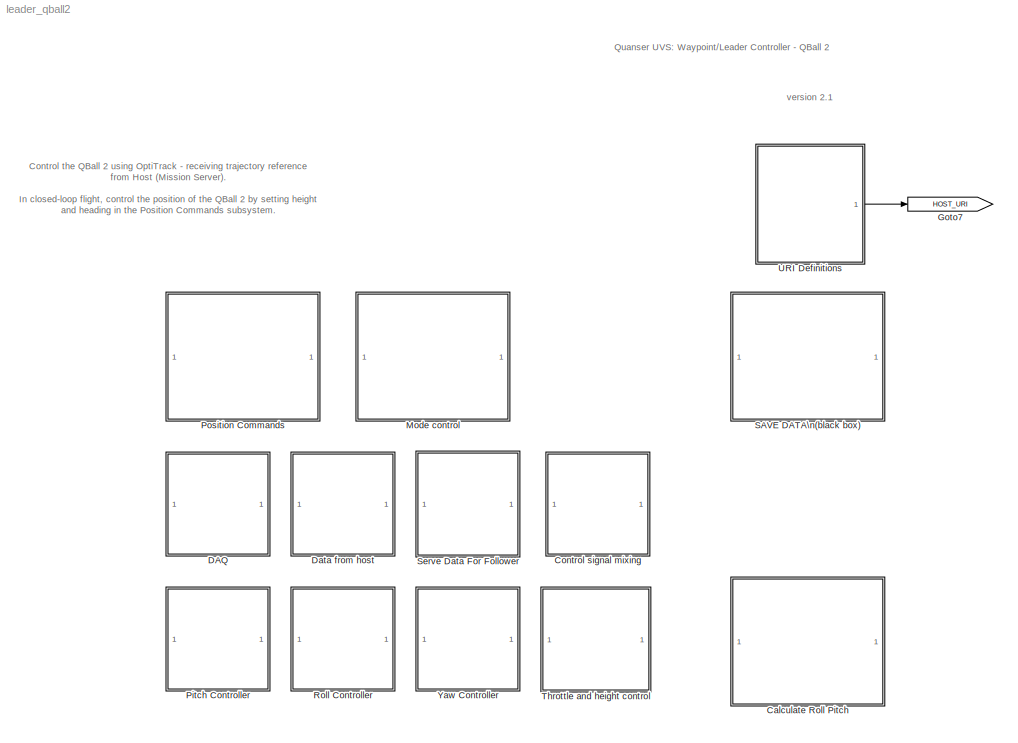
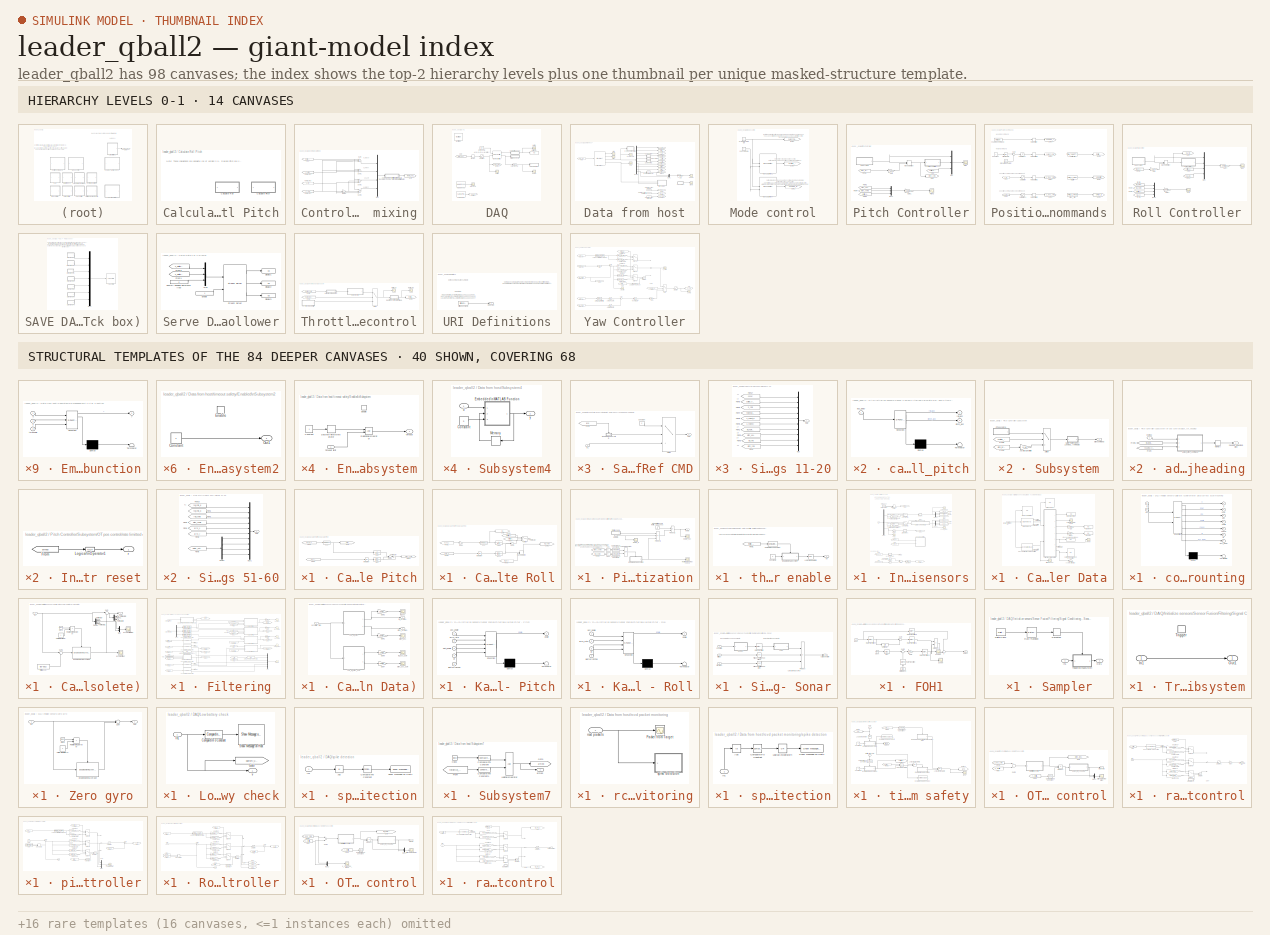
[diagram: thumbnail index - top-2 hierarchy levels (14 canvases) + 40 structural-template representatives of the remaining 84 canvases]
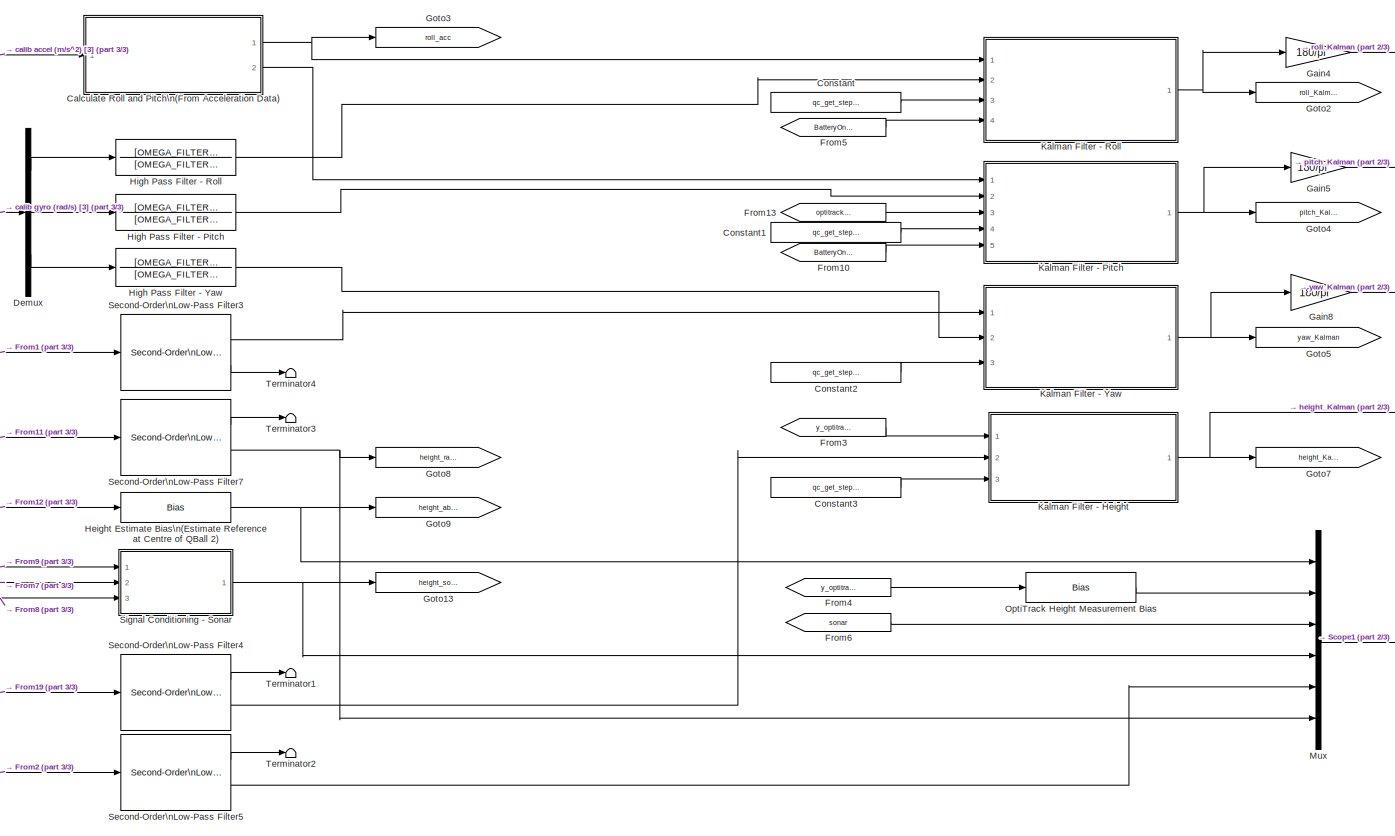
[diagram: DAQ/Initialize sensors/Sensor Fusion/Filtering - part 1/3, most of the canvas]
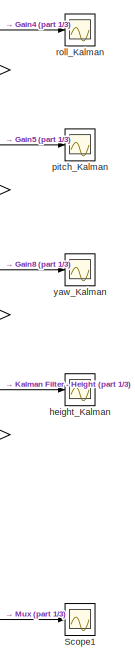
[diagram: DAQ/Initialize sensors/Sensor Fusion/Filtering - part 2/3, right side, full height]
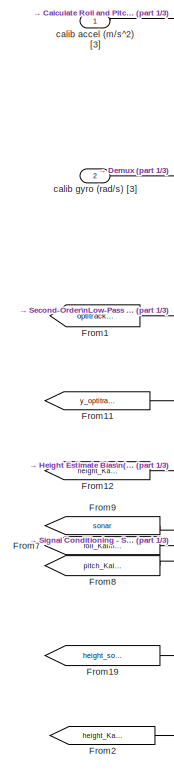
[diagram: DAQ/Initialize sensors/Sensor Fusion/Filtering - part 3/3, left side, full height]
MODEL leader_qball2
KIND model
CONFIG InitFcn = QBall_2_Setup
BLOCK [SubSystem] Calculate Roll Pitch
  Ports = []
  RequestExecContextInheritance = off
  SID = 1822
BLOCK [SubSystem] Calculate Roll Pitch/Calculate Pitch
  Ports = []
  RequestExecContextInheritance = off
  SID = 1823
BLOCK [Fcn] Calculate Roll Pitch/Calculate Pitch/Fcn
  Expr = asin(u/9.81)
  SID = 1824
BLOCK [From] Calculate Roll Pitch/Calculate Pitch/From3
  CloseFcn = tagdialog Close
  GotoTag = accel_x
  SID = 1825
  TagVisibility = global
BLOCK [From] Calculate Roll Pitch/Calculate Pitch/From4
  CloseFcn = tagdialog Close
  GotoTag = gyro_y
  SID = 1826
  TagVisibility = global
BLOCK [Goto] Calculate Roll Pitch/Calculate Pitch/Goto
  GotoTag = pitch
  SID = 1827
  TagVisibility = global
BLOCK [Goto] Calculate Roll Pitch/Calculate Pitch/Goto1
  GotoTag = pitch_comp
  SID = 1828
  TagVisibility = global
BLOCK [TransferFcn] Calculate Roll Pitch/Calculate Pitch/HPF
  Denominator = [2 1]
  Numerator = [2 0]
  SID = 1829
BLOCK [Integrator] Calculate Roll Pitch/Calculate Pitch/Integrator
  Ports = [1, 1]
  SID = 1830
BLOCK [TransferFcn] Calculate Roll Pitch/Calculate Pitch/LPF
  Denominator = [2 1]
  Numerator = 1
  SID = 1831
BLOCK [Sum] Calculate Roll Pitch/Calculate Pitch/Sum2
  InputSameDT = off
  OutDataTypeStr = Inherit: Inherit via internal rule
  Ports = [2, 1]
  SID = 1832
  SaturateOnIntegerOverflow = off
BLOCK [Terminator] Calculate Roll Pitch/Calculate Pitch/Terminator
  SID = 1833
BLOCK [SubSystem] Calculate Roll Pitch/Calculate Roll
  Ports = []
  RequestExecContextInheritance = off
  SID = 1834
BLOCK [Fcn] Calculate Roll Pitch/Calculate Roll/Fcn
  Expr = asin(u/9.81)
  SID = 1835
BLOCK [From] Calculate Roll Pitch/Calculate Roll/From1
  CloseFcn = tagdialog Close
  GotoTag = optitrack_roll
  SID = 1836
  TagVisibility = global
BLOCK [From] Calculate Roll Pitch/Calculate Roll/From2
  CloseFcn = tagdialog Close
  GotoTag = accel_y
  SID = 1837
  TagVisibility = global
BLOCK [From] Calculate Roll Pitch/Calculate Roll/From3
  CloseFcn = tagdialog Close
  GotoTag = gyro_x
  SID = 1838
  TagVisibility = global
BLOCK [From] Calculate Roll Pitch/Calculate Roll/From4
  CloseFcn = tagdialog Close
  GotoTag = optitrack_tracking
  SID = 1839
  TagVisibility = global
BLOCK [From] Calculate Roll Pitch/Calculate Roll/From5
  CloseFcn = tagdialog Close
  GotoTag = roll_acc
  SID = 1840
  TagVisibility = global
BLOCK [Gain] Calculate Roll Pitch/Calculate Roll/Gain1
  Gain = -1
  OutDataTypeStr = Inherit: Inherit via internal rule
  ParamDataTypeStr = Inherit: Inherit via internal rule
  SID = 1841
  SaturateOnIntegerOverflow = off
BLOCK [Goto] Calculate Roll Pitch/Calculate Roll/Goto
  GotoTag = roll
  SID = 1842
  TagVisibility = global
BLOCK [Goto] Calculate Roll Pitch/Calculate Roll/Goto1
  GotoTag = roll_comp
  SID = 1843
  TagVisibility = global
BLOCK [TransferFcn] Calculate Roll Pitch/Calculate Roll/HPF1
  Denominator = [2 1]
  Numerator = [2 0]
  SID = 1844
BLOCK [Integrator] Calculate Roll Pitch/Calculate Roll/Integrator
  Ports = [1, 1]
  SID = 1845
BLOCK [TransferFcn] Calculate Roll Pitch/Calculate Roll/LPF1
  Denominator = [2 1]
  Numerator = 1
  SID = 1846
BLOCK [ManualSwitch] Calculate Roll Pitch/Calculate Roll/Manual Switch
  SID = 1847
BLOCK [Sum] Calculate Roll Pitch/Calculate Roll/Sum3
  InputSameDT = off
  OutDataTypeStr = Inherit: Inherit via internal rule
  Ports = [2, 1]
  SID = 1848
  SaturateOnIntegerOverflow = off
BLOCK [Switch] Calculate Roll Pitch/Calculate Roll/Switch
  InputSameDT = off
  SID = 1849
  SaturateOnIntegerOverflow = off
  Threshold = 0.5
BLOCK [Terminator] Calculate Roll Pitch/Calculate Roll/Terminator
  SID = 1850
BLOCK [SubSystem] Control signal mixing
  Ports = []
  RequestExecContextInheritance = off
  SID = 1851
BLOCK [From] Control signal mixing/From
  CloseFcn = tagdialog Close
  GotoTag = throttle_cmd
  SID = 1853
  TagVisibility = global
BLOCK [Gain] Control signal mixing/Gain2
  Gain = -1
  OutDataTypeStr = Inherit: Inherit via internal rule
  ParamDataTypeStr = Inherit: Inherit via internal rule
  SID = 1855
  SaturateOnIntegerOverflow = off
BLOCK [Goto] Control signal mixing/Goto
  GotoTag = motor_outputs
  SID = 1856
  TagVisibility = global
BLOCK [Mux] Control signal mixing/Mux
  DisplayOption = bar
  Ports = [4, 1]
  SID = 1857
BLOCK [SubSystem] Control signal mixing/Safety - Motor Shutoff if:\n- Roll//Pitch Data Runaway (> 40 deg)\n- Initial 3 second of execution for motor initialization
  Ports = [1, 1]
  RequestExecContextInheritance = off
  SID = 1865
BLOCK [Abs] Control signal mixing/Safety - Motor Shutoff if:\n- Roll//Pitch Data Runaway (> 40 deg)\n- Initial 3 second of execution for motor initialization/Abs
  SID = 1867
  SaturateOnIntegerOverflow = off
BLOCK [Abs] Control signal mixing/Safety - Motor Shutoff if:\n- Roll//Pitch Data Runaway (> 40 deg)\n- Initial 3 second of execution for motor initialization/Abs1
  SID = 1868
  SaturateOnIntegerOverflow = off
BLOCK [Reference] Control signal mixing/Safety - Motor Shutoff if:\n- Roll//Pitch Data Runaway (> 40 deg)\n- Initial 3 second of execution for motor initialization/Compare\nTo Constant1  REF=simulink/Logic and Bit\nOperations/Compare\nTo Constant
  OutDataTypeStr = uint8
  Ports = [1, 1]
  SID = 1869
  SourceBlock = simulink/Logic and Bit\nOperations/Compare\nTo Constant
  SourceType = Compare To Constant
  ZeroCross = off
  const = 40*pi/180
  relop = >
BLOCK [Reference] Control signal mixing/Safety - Motor Shutoff if:\n- Roll//Pitch Data Runaway (> 40 deg)\n- Initial 3 second of execution for motor initialization/Compare\nTo Constant2  REF=simulink/Logic and Bit\nOperations/Compare\nTo Constant
  OutDataTypeStr = uint8
  Ports = [1, 1]
  SID = 1870
  SourceBlock = simulink/Logic and Bit\nOperations/Compare\nTo Constant
  SourceType = Compare To Constant
  ZeroCross = off
  const = 40*pi/180
  relop = >
BLOCK [SubSystem] Control signal mixing/Safety - Motor Shutoff if:\n- Roll//Pitch Data Runaway (> 40 deg)\n- Initial 3 second of execution for motor initialization/Enabled\nSubsystem
  Ports = [0, 1, 1]
  RequestExecContextInheritance = off
  SID = 1871
  TreatAsAtomicUnit = on
BLOCK [Constant] Control signal mixing/Safety - Motor Shutoff if:\n- Roll//Pitch Data Runaway (> 40 deg)\n- Initial 3 second of execution for motor initialization/Enabled\nSubsystem/Constant
  SID = 1873
  Value = 0
BLOCK [EnablePort] Control signal mixing/Safety - Motor Shutoff if:\n- Roll//Pitch Data Runaway (> 40 deg)\n- Initial 3 second of execution for motor initialization/Enabled\nSubsystem/Enable
  Ports = []
  SID = 1872
BLOCK [Outport] Control signal mixing/Safety - Motor Shutoff if:\n- Roll//Pitch Data Runaway (> 40 deg)\n- Initial 3 second of execution for motor initialization/Enabled\nSubsystem/Out1
  IconDisplay = Port number
  InitialOutput = 1
  SID = 1874
BLOCK [From] Control signal mixing/Safety - Motor Shutoff if:\n- Roll//Pitch Data Runaway (> 40 deg)\n- Initial 3 second of execution for motor initialization/From2
  CloseFcn = tagdialog Close
  GotoTag = pitch_comp
  SID = 1875
  TagVisibility = global
BLOCK [From] Control signal mixing/Safety - Motor Shutoff if:\n- Roll//Pitch Data Runaway (> 40 deg)\n- Initial 3 second of execution for motor initialization/From3
  CloseFcn = tagdialog Close
  GotoTag = roll_comp
  SID = 1876
  TagVisibility = global
BLOCK [Logic] Control signal mixing/Safety - Motor Shutoff if:\n- Roll//Pitch Data Runaway (> 40 deg)\n- Initial 3 second of execution for motor initialization/Logical\nOperator
  AllPortsSameDT = off
  Operator = OR
  OutDataTypeStr = boolean
  Ports = [2, 1]
  SID = 1877
BLOCK [Product] Control signal mixing/Safety - Motor Shutoff if:\n- Roll//Pitch Data Runaway (> 40 deg)\n- Initial 3 second of execution for motor initialization/Product1
  InputSameDT = off
  Inputs = 3
  OutDataTypeStr = double
  Ports = [3, 1]
  SID = 1878
  SaturateOnIntegerOverflow = off
BLOCK [Product] Control signal mixing/Safety - Motor Shutoff if:\n- Roll//Pitch Data Runaway (> 40 deg)\n- Initial 3 second of execution for motor initialization/Product2
  InputSameDT = off
  OutDataTypeStr = double
  Ports = [2, 1]
  SID = 1879
  SaturateOnIntegerOverflow = off
BLOCK [Scope] Control signal mixing/Safety - Motor Shutoff if:\n- Roll//Pitch Data Runaway (> 40 deg)\n- Initial 3 second of execution for motor initialization/Roll, Pitch runaway check
  DataFormat = StructureWithTime
  Floating = off
  NumInputPorts = 1
  Ports = [1]
  SID = 1880
  SampleTime = 0
  SaveName = ScopeData38
  ShowLegends = off
BLOCK [Step] Control signal mixing/Safety - Motor Shutoff if:\n- Roll//Pitch Data Runaway (> 40 deg)\n- Initial 3 second of execution for motor initialization/Step\nInitialize zero throttle for 3 seconds
  SID = 1881
  SampleTime = 0
  Time = 3
BLOCK [Outport] Control signal mixing/Safety - Motor Shutoff if:\n- Roll//Pitch Data Runaway (> 40 deg)\n- Initial 3 second of execution for motor initialization/motors
  IconDisplay = Port number
  SID = 1897
BLOCK [Inport] Control signal mixing/Safety - Motor Shutoff if:\n- Roll//Pitch Data Runaway (> 40 deg)\n- Initial 3 second of execution for motor initialization/motors in
  IconDisplay = Port number
  SID = 1866
BLOCK [Scope] Control signal mixing/Safety - Motor Shutoff if:\n- Roll//Pitch Data Runaway (> 40 deg)\n- Initial 3 second of execution for motor initialization/motors_in
  DataFormat = StructureWithTime
  Floating = off
  NumInputPorts = 1
  Ports = [1]
  SID = 1882
  SampleTime = 0
  SaveName = ScopeData50
  ShowLegends = off
BLOCK [Scope] Control signal mixing/Safety - Motor Shutoff if:\n- Roll//Pitch Data Runaway (> 40 deg)\n- Initial 3 second of execution for motor initialization/motors_out
  DataFormat = StructureWithTime
  Floating = off
  NumInputPorts = 1
  Ports = [1]
  SID = 1883
  SampleTime = 0
  SaveName = ScopeData51
  ShowLegends = off
BLOCK [SubSystem] Control signal mixing/Safety - Motor Shutoff if:\n- Roll//Pitch Data Runaway (> 40 deg)\n- Initial 3 second of execution for motor initialization/throttle enable
  Ports = [0, 1]
  RequestExecContextInheritance = off
  SID = 1884
BLOCK [Reference] Control signal mixing/Safety - Motor Shutoff if:\n- Roll//Pitch Data Runaway (> 40 deg)\n- Initial 3 second of execution for motor initialization/throttle enable/Compare\nTo Constant  REF=simulink/Logic and Bit\nOperations/Compare\nTo Constant
  OutDataTypeStr = uint8
  Ports = [1, 1]
  SID = 1885
  SourceBlock = simulink/Logic and Bit\nOperations/Compare\nTo Constant
  SourceType = Compare To Constant
  ZeroCross = off
  const = 0.0525
  relop = <=
BLOCK [Constant] Control signal mixing/Safety - Motor Shutoff if:\n- Roll//Pitch Data Runaway (> 40 deg)\n- Initial 3 second of execution for motor initialization/throttle enable/Constant2
  SID = 1886
  Value = 2
BLOCK [SubSystem] Control signal mixing/Safety - Motor Shutoff if:\n- Roll//Pitch Data Runaway (> 40 deg)\n- Initial 3 second of execution for motor initialization/throttle enable/Enabled\nSubsystem
  Ports = [1, 1, 1]
  RequestExecContextInheritance = off
  SID = 1887
  TreatAsAtomicUnit = on
BLOCK [Constant] Control signal mixing/Safety - Motor Shutoff if:\n- Roll//Pitch Data Runaway (> 40 deg)\n- Initial 3 second of execution for motor initialization/throttle enable/Enabled\nSubsystem/Constant
  SID = 1890
  SampleTime = qc_get_step_size
BLOCK [DiscreteIntegrator] Control signal mixing/Safety - Motor Shutoff if:\n- Roll//Pitch Data Runaway (> 40 deg)\n- Initial 3 second of execution for motor initialization/throttle enable/Enabled\nSubsystem/Discrete-Time\nIntegrator
  ICPrevOutput = DiscIntNeverNeededParam
  ICPrevScaledInput = DiscIntNeverNeededParam
  Ports = [1, 1]
  SID = 1891
  SampleTime = -1
BLOCK [EnablePort] Control signal mixing/Safety - Motor Shutoff if:\n- Roll//Pitch Data Runaway (> 40 deg)\n- Initial 3 second of execution for motor initialization/throttle enable/Enabled\nSubsystem/Enable
  Ports = []
  SID = 1889
  StatesWhenEnabling = reset
BLOCK [RelationalOperator] Control signal mixing/Safety - Motor Shutoff if:\n- Roll//Pitch Data Runaway (> 40 deg)\n- Initial 3 second of execution for motor initialization/throttle enable/Enabled\nSubsystem/Relational\nOperator
  InputSameDT = off
  OutDataTypeStr = boolean
  Ports = [2, 1]
  SID = 1892
BLOCK [Outport] Control signal mixing/Safety - Motor Shutoff if:\n- Roll//Pitch Data Runaway (> 40 deg)\n- Initial 3 second of execution for motor initialization/throttle enable/Enabled\nSubsystem/timeout
  IconDisplay = Port number
  InitialOutput = [0]
  OutputWhenDisabled = reset
  SID = 1893
BLOCK [Inport] Control signal mixing/Safety - Motor Shutoff if:\n- Roll//Pitch Data Runaway (> 40 deg)\n- Initial 3 second of execution for motor initialization/throttle enable/Enabled\nSubsystem/timeout limit
  IconDisplay = Port number
  SID = 1888
BLOCK [From] Control signal mixing/Safety - Motor Shutoff if:\n- Roll//Pitch Data Runaway (> 40 deg)\n- Initial 3 second of execution for motor initialization/throttle enable/From1
  CloseFcn = tagdialog Close
  GotoTag = throttle_cmd
  SID = 1894
  TagVisibility = global
BLOCK [Logic] Control signal mixing/Safety - Motor Shutoff if:\n- Roll//Pitch Data Runaway (> 40 deg)\n- Initial 3 second of execution for motor initialization/throttle enable/Logical\nOperator1
  AllPortsSameDT = off
  Operator = NOT
  OutDataTypeStr = boolean
  Ports = [1, 1]
  SID = 1895
BLOCK [Outport] Control signal mixing/Safety - Motor Shutoff if:\n- Roll//Pitch Data Runaway (> 40 deg)\n- Initial 3 second of execution for motor initialization/throttle enable/en
  IconDisplay = Port number
  SID = 1896
BLOCK [Sum] Control signal mixing/Sum
  InputSameDT = off
  Inputs = +++
  OutDataTypeStr = Inherit: Inherit via internal rule
  Ports = [3, 1]
  SID = 1858
  SaturateOnIntegerOverflow = off
BLOCK [Sum] Control signal mixing/Sum1
  InputSameDT = off
  Inputs = ++-
  OutDataTypeStr = Inherit: Inherit via internal rule
  Ports = [3, 1]
  SID = 1859
  SaturateOnIntegerOverflow = off
BLOCK [Sum] Control signal mixing/Sum2
  InputSameDT = off
  Inputs = +++
  OutDataTypeStr = Inherit: Inherit via internal rule
  Ports = [3, 1]
  SID = 1860
  SaturateOnIntegerOverflow = off
BLOCK [Sum] Control signal mixing/Sum3
  InputSameDT = off
  Inputs = ++-
  OutDataTypeStr = Inherit: Inherit via internal rule
  Ports = [3, 1]
  SID = 1861
  SaturateOnIntegerOverflow = off
BLOCK [From] Control signal mixing/Yaw gyro1
  CloseFcn = tagdialog Close
  GotoTag = u_yaw
  SID = 1862
  TagVisibility = global
BLOCK [From] Control signal mixing/Yaw gyro2
  CloseFcn = tagdialog Close
  GotoTag = u_pitch
  SID = 1863
  TagVisibility = global
BLOCK [From] Control signal mixing/Yaw gyro3
  CloseFcn = tagdialog Close
  GotoTag = u_roll
  SID = 1864
  TagVisibility = global
BLOCK [SubSystem] DAQ
  Ports = []
  RequestExecContextInheritance = off
  SID = 1899
BLOCK [Scope] DAQ/Battery
  DataFormat = StructureWithTime
  Floating = off
  LimitDataPoints = off
  NumInputPorts = 1
  Ports = [1]
  SID = 1900
  SampleTime = 0
  SaveName = ScopeData14
  ShowLegends = off
  TimeRange = 5
  YMax = 13
  YMin = 9.9
BLOCK [Display] DAQ/Battery (V)
  Decimation = 1
  Ports = [1]
  SID = 1901
BLOCK [From] DAQ/From
  CloseFcn = tagdialog Close
  GotoTag = motor_outputs
  SID = 1902
  TagVisibility = global
BLOCK [Goto] DAQ/Goto1
  GotoTag = sample_time
  SID = 1906
  TagVisibility = global
BLOCK [Goto] DAQ/Goto10
  GotoTag = pwm_output
  SID = 1907
  TagVisibility = global
BLOCK [Reference] DAQ/HIL Initialize  REF=quarc_library/Data Acquisition/Generic/Configuration/HIL Initialize
  AttributesFormatString = %<object_name> (%<board_type>-%<board_number>)
  Ports = []
  Priority = -99
  SID = 1908
  SourceBlock = quarc_library/Data Acquisition/Generic/Configuration/HIL Initialize
  SourceType = HIL Initialize
  UserData = DataTag0
  UserDataPersistent = on
  active = off
  analog_input_channels = [0:2]
  analog_input_maximums = [5 5 15]
  analog_input_minimums = [0 0 0]
  analog_output_channels = []
  analog_output_maximums = []
  analog_output_minimums = []
  board_number = 0
  board_options = gyro_fs=500;gyro_rate=800;gyro_bw=110;accel_rate=800;accel_fs=8
  board_type = qball2
  clock_modes = []
  digital_input_channels = []
  digital_output_channels = [8:9]
  digital_output_configuration = []
  encoder_channels = []
  encoder_filter_frequency = []
  exclusive = off
  final_analog_outputs = []
  final_digital_outputs = [1 1]
  final_other_outputs = [0]
  final_pwm_outputs = [0]
  hardware_clocks = []
  initial_analog_outputs = []
  initial_clock_frequencies = []
  initial_digital_outputs = [0]
  initial_encoder_counts = []
  initial_other_outputs = [0]
  initial_pwm_outputs = [0]
  object_name = QBall 2
  other_output_channels = [11000:11003]
  pwm_alignment = [0]
  pwm_channels = []
  pwm_configuration = [0]
  pwm_frequency = 20e6/1024
  pwm_leading_deadband = [0]
  pwm_modes = [0]
  pwm_polarity = [1]
  pwm_trailing_deadband = [0]
  quadrature = []
  set_analog_input_params_at_start = off
  set_analog_input_params_at_switch_in = off
  set_analog_output_params_at_start = off
  set_analog_output_params_at_switch_in = off
  set_analog_outputs_at_start = off
  set_analog_outputs_at_switch_in = off
  set_analog_outputs_at_switch_out = off
  set_analog_outputs_at_terminate = off
  set_analog_outputs_on_watchdog = off
  set_clock_frequencies_at_start = off
  set_clock_frequencies_at_switch_in = off
  set_clock_params_at_start = off
  set_clock_params_at_switch_in = off
  set_digital_output_params_at_start = off
  set_digital_output_params_at_switch_in = off
  set_digital_outputs_at_start = on
  set_digital_outputs_at_switch_in = off
  set_digital_outputs_at_switch_out = off
  set_digital_outputs_at_terminate = on
  set_digital_outputs_on_watchdog = on
  set_encoder_counts_at_start = off
  set_encoder_counts_at_switch_in = off
  set_encoder_params_at_start = off
  set_encoder_params_at_switch_in = off
  set_other_outputs_at_start = on
  set_other_outputs_at_switch_in = off
  set_other_outputs_at_switch_out = off
  set_other_outputs_at_terminate = on
  set_other_outputs_on_watchdog = on
  set_pwm_outputs_at_start = on
  set_pwm_outputs_at_switch_in = off
  set_pwm_outputs_at_switch_out = off
  set_pwm_outputs_at_terminate = on
  set_pwm_outputs_on_watchdog = on
  set_pwm_params_at_start = on
  set_pwm_params_at_switch_in = off
  watchdog_analog_outputs = []
  watchdog_digital_outputs = [0]
  watchdog_other_outputs = [0]
  watchdog_pwm_outputs = [0]
BLOCK [Reference] DAQ/HIL Read Write1  REF=quarc_library/Data Acquisition/Generic/Immediate I//O/HIL Read Write
  AttributesFormatString = (%<object_name>)
  Ports = [2, 2]
  SID = 1909
  SourceBlock = quarc_library/Data Acquisition/Generic/Immediate I//O/HIL Read Write
  SourceType = HIL Read Write
  UserData = DataTag1
  UserDataPersistent = on
  active = off
  analog_input_channels = [2]
  analog_output_channels = []
  data_type_mode = Inherit via back propagation
  digital_data_type = boolean
  digital_input_channels = []
  digital_output_channels = [8, 9]
  encoder_data_type = double
  encoder_input_channels = []
  object_name = QBall 2
  other_input_channels = [3000:3002 4000:4002 0]
  other_output_channels = [11003 11002 11000:11001]
  pwm_output_channels = []
  sample_time = qc_get_step_size
  vector_input = on
  vector_output = on
BLOCK [Reference] DAQ/HIL Watchdog  REF=quarc_library/Data Acquisition/Generic/Watchdog/HIL Watchdog
  AttributesFormatString = (%<object_name>)
  Ports = [0, 1]
  SID = 1910
  SourceBlock = quarc_library/Data Acquisition/Generic/Watchdog/HIL Watchdog
  SourceType = HIL Watchdog
  UserData = DataTag2
  UserDataPersistent = on
  active = off
  object_name = QBall 2
  sample_time = qc_get_step_size
  timeout = 0.1
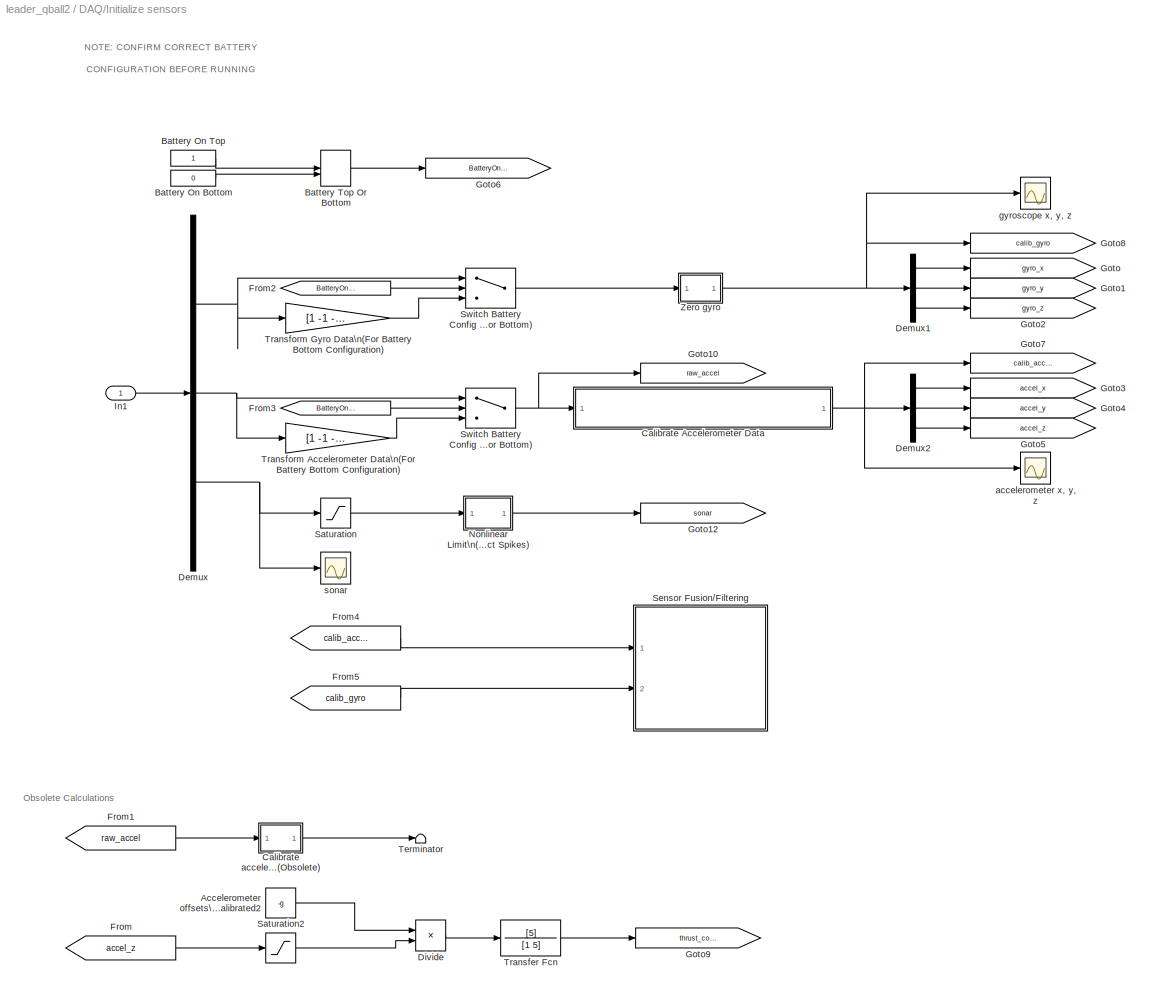
BLOCK [SubSystem] DAQ/Initialize sensors
  Ports = [1]
  RequestExecContextInheritance = off
  SID = 1911
BLOCK [Constant] DAQ/Initialize sensors/Accelerometer offsets\nmanually calibrated2
  SID = 1913
  Value = -g
BLOCK [Constant] DAQ/Initialize sensors/Battery On Bottom
  SID = 2834
  Value = 0
BLOCK [Constant] DAQ/Initialize sensors/Battery On Top
  SID = 2833
BLOCK [ManualSwitch] DAQ/Initialize sensors/Battery Top Or Bottom
  CurrentSetting = 0
  SID = 2832
BLOCK [SubSystem] DAQ/Initialize sensors/Calibrate Accelerometer Data
  Ports = [1, 1]
  RequestExecContextInheritance = off
  SID = 2847
BLOCK [Display] DAQ/Initialize sensors/Calibrate Accelerometer Data/Bias Magnitude
  Decimation = 100
  Ports = [1]
  SID = 2852
BLOCK [Display] DAQ/Initialize sensors/Calibrate Accelerometer Data/Bias Pitch
  Decimation = 100
  Ports = [1]
  SID = 2854
BLOCK [Reference] DAQ/Initialize sensors/Calibrate Accelerometer Data/Bias Removal  REF=quarc_library/Discrete/Bias Removal
  Ports = [1, 3]
  SID = 2851
  SourceBlock = quarc_library/Discrete/Bias Removal
  SourceType = Bias Removal
  end_time = TIMEOUT_CALIB
  sample_time = qc_get_step_size
  start_time = 0
  switch_id = 0
BLOCK [Display] DAQ/Initialize sensors/Calibrate Accelerometer Data/Bias Roll
  Decimation = 100
  Ports = [1]
  SID = 2853
BLOCK [Display] DAQ/Initialize sensors/Calibrate Accelerometer Data/Bias Vector
  Decimation = 100
  Ports = [1]
  SID = 2857
BLOCK [Outport] DAQ/Initialize sensors/Calibrate Accelerometer Data/Calibrated Accelerations (m//s^2) [3]
  IconDisplay = Port number
  SID = 2849
BLOCK [Display] DAQ/Initialize sensors/Calibrate Accelerometer Data/Calibrated Body-Fixed Acceleration
  Decimation = 100
  Ports = [1]
  SID = 2858
BLOCK [Display] DAQ/Initialize sensors/Calibrate Accelerometer Data/Check Value (Should be 1)
  Decimation = 100
  Ports = [1]
  SID = 2855
BLOCK [Scope] DAQ/Initialize sensors/Calibrate Accelerometer Data/Filtered Accel
  DataFormat = StructureWithTime
  Floating = off
  NumInputPorts = 1
  Ports = [1]
  SID = 2038
  SampleTime = 0
  SaveName = ScopeData42
  ShowLegends = off
  YMax = 200
  YMin = -200
BLOCK [Gain] DAQ/Initialize sensors/Calibrate Accelerometer Data/Gain
  Gain = 180/pi
  OutDataTypeStr = Inherit: Inherit via internal rule
  ParamDataTypeStr = Inherit: Inherit via internal rule
  SID = 2859
  SaturateOnIntegerOverflow = off
BLOCK [Gain] DAQ/Initialize sensors/Calibrate Accelerometer Data/Gain1
  Gain = 180/pi
  OutDataTypeStr = Inherit: Inherit via internal rule
  ParamDataTypeStr = Inherit: Inherit via internal rule
  SID = 2860
  SaturateOnIntegerOverflow = off
BLOCK [Scope] DAQ/Initialize sensors/Calibrate Accelerometer Data/Normalized Bias Vector
  DataFormat = StructureWithTime
  Floating = off
  NumInputPorts = 1
  Ports = [1]
  SID = 2861
  SampleTime = 0
  ShowLegends = off
BLOCK [Display] DAQ/Initialize sensors/Calibrate Accelerometer Data/Raw Accelerations
  Decimation = 100
  Ports = [1]
  SID = 2856
BLOCK [Reference] DAQ/Initialize sensors/Calibrate Accelerometer Data/Second-Order\nLow-Pass Filter2  REF=quarc_library/Continuous/Second-Order\nLow-Pass Filter
  Ports = [1, 2]
  SID = 2862
  SourceBlock = quarc_library/Continuous/Second-Order\nLow-Pass Filter
  SourceType = Second-Order Low-Pass Filter
  input_init = 0
  input_width = OMEGA_FILTER
  input_zeta = 1
  params_source = Internal (dialog parameters)
BLOCK [Terminator] DAQ/Initialize sensors/Calibrate Accelerometer Data/Terminator
  SID = 2863
BLOCK [Terminator] DAQ/Initialize sensors/Calibrate Accelerometer Data/Terminator1
  SID = 2864
BLOCK [Terminator] DAQ/Initialize sensors/Calibrate Accelerometer Data/Terminator2
  SID = 2868
BLOCK [Terminator] DAQ/Initialize sensors/Calibrate Accelerometer Data/Terminator7
  SID = 2865
BLOCK [Scope] DAQ/Initialize sensors/Calibrate Accelerometer Data/check
  DataFormat = StructureWithTime
  Floating = off
  NumInputPorts = 1
  Ports = [1]
  SID = 2866
  SampleTime = 0
  SaveName = ScopeData12
  ShowLegends = off
  YMax = 1.05
  YMin = 0.95
BLOCK [SubSystem] DAQ/Initialize sensors/Calibrate Accelerometer Data/correct accel mounting
  ErrorFcn = Stateflow.Translate.translate
  PermitHierarchicalResolution = ExplicitOnly
  Ports = [2, 7]
  RequestExecContextInheritance = off
  SFBlockType = MATLAB Function
  SID = 2867
  TreatAsAtomicUnit = on
BLOCK [Demux] DAQ/Initialize sensors/Calibrate Accelerometer Data/correct accel mounting/ Demux 
  Outputs = 1
  Ports = [1, 1]
  SID = 2867::3053
BLOCK [S-Function] DAQ/Initialize sensors/Calibrate Accelerometer Data/correct accel mounting/ SFunction 
  EnableBusSupport = off
  FunctionName = sf_sfun
  PortCounts = [2 8]
  Ports = [2, 8]
  SID = 2867::3052
  Tag = Stateflow S-Function leader_qball2 22
BLOCK [Terminator] DAQ/Initialize sensors/Calibrate Accelerometer Data/correct accel mounting/ Terminator 
  SID = 2867::3054
BLOCK [Outport] DAQ/Initialize sensors/Calibrate Accelerometer Data/correct accel mounting/Phi
  IconDisplay = Port number
  Port = 3
  SID = 2867::8
BLOCK [Outport] DAQ/Initialize sensors/Calibrate Accelerometer Data/correct accel mounting/R
  IconDisplay = Port number
  Port = 6
  SID = 2867::11
BLOCK [Outport] DAQ/Initialize sensors/Calibrate Accelerometer Data/correct accel mounting/Theta
  IconDisplay = Port number
  Port = 4
  SID = 2867::9
BLOCK [Inport] DAQ/Initialize sensors/Calibrate Accelerometer Data/correct accel mounting/acc
  IconDisplay = Port number
  Port = 2
  SID = 2867::2
BLOCK [Outport] DAQ/Initialize sensors/Calibrate Accelerometer Data/correct accel mounting/acc_body
  IconDisplay = Port number
  Port = 7
  SID = 2867::12
BLOCK [Outport] DAQ/Initialize sensors/Calibrate Accelerometer Data/correct accel mounting/check
  IconDisplay = Port number
  Port = 5
  SID = 2867::10
BLOCK [Outport] DAQ/Initialize sensors/Calibrate Accelerometer Data/correct accel mounting/n
  IconDisplay = Port number
  SID = 2867::6
BLOCK [Outport] DAQ/Initialize sensors/Calibrate Accelerometer Data/correct accel mounting/nhat
  IconDisplay = Port number
  Port = 2
  SID = 2867::7
BLOCK [Inport] DAQ/Initialize sensors/Calibrate Accelerometer Data/correct accel mounting/u
  IconDisplay = Port number
  SID = 2867::1
BLOCK [Inport] DAQ/Initialize sensors/Calibrate Accelerometer Data/raw accel (m//s^2) [3]
  IconDisplay = Port number
  SID = 2850
BLOCK [SubSystem] DAQ/Initialize sensors/Calibrate accelerometer\n(Obsolete)
  Ports = [1, 1]
  RequestExecContextInheritance = off
  SID = 1914
BLOCK [Constant] DAQ/Initialize sensors/Calibrate accelerometer\n(Obsolete)/Calibration time (s)
  SID = 1916
BLOCK [Clock] DAQ/Initialize sensors/Calibrate accelerometer\n(Obsolete)/Clock
  SID = 1917
BLOCK [Demux] DAQ/Initialize sensors/Calibrate accelerometer\n(Obsolete)/Demux
  DisplayOption = bar
  Outputs = 3
  Ports = [1, 3]
  SID = 1918
BLOCK [Demux] DAQ/Initialize sensors/Calibrate accelerometer\n(Obsolete)/Demux1
  DisplayOption = bar
  Outputs = 3
  Ports = [1, 3]
  SID = 1919
BLOCK [Reference] DAQ/Initialize sensors/Calibrate accelerometer\n(Obsolete)/Enabled Moving Average  REF=quarc_library/Discrete/Enabled Moving Average
  Ports = [1, 1, 1]
  SID = 1920
  SourceBlock = quarc_library/Discrete/Enabled Moving Average
  SourceType = Enabled Moving Average
  enable_state = reset
  sample_time = qc_get_step_size
BLOCK [Inport] DAQ/Initialize sensors/Calibrate accelerometer\n(Obsolete)/In1
  IconDisplay = Port number
  SID = 1915
BLOCK [Mux] DAQ/Initialize sensors/Calibrate accelerometer\n(Obsolete)/Mux
  DisplayOption = bar
  Inputs = 2
  Ports = [2, 1]
  SID = 1921
BLOCK [Outport] DAQ/Initialize sensors/Calibrate accelerometer\n(Obsolete)/Out1
  IconDisplay = Port number
  SID = 1932
BLOCK [RelationalOperator] DAQ/Initialize sensors/Calibrate accelerometer\n(Obsolete)/Relational\nOperator
  InputSameDT = off
  Operator = <
  OutDataTypeStr = boolean
  Ports = [2, 1]
  SID = 1922
BLOCK [Sum] DAQ/Initialize sensors/Calibrate accelerometer\n(Obsolete)/Sum
  IconShape = round
  InputSameDT = off
  Inputs = |+-
  OutDataTypeStr = Inherit: Inherit via internal rule
  Ports = [2, 1]
  SID = 1923
  SaturateOnIntegerOverflow = off
BLOCK [Sum] DAQ/Initialize sensors/Calibrate accelerometer\n(Obsolete)/Sum1
  IconShape = round
  InputSameDT = off
  Inputs = |+-
  OutDataTypeStr = Inherit: Inherit via internal rule
  Ports = [2, 1]
  SID = 1924
  SaturateOnIntegerOverflow = off
BLOCK [Terminator] DAQ/Initialize sensors/Calibrate accelerometer\n(Obsolete)/Terminator
  SID = 1925
BLOCK [Terminator] DAQ/Initialize sensors/Calibrate accelerometer\n(Obsolete)/Terminator1
  SID = 1926
BLOCK [Terminator] DAQ/Initialize sensors/Calibrate accelerometer\n(Obsolete)/Terminator2
  SID = 1927
BLOCK [Terminator] DAQ/Initialize sensors/Calibrate accelerometer\n(Obsolete)/Terminator3
  SID = 1928
BLOCK [Scope] DAQ/Initialize sensors/Calibrate accelerometer\n(Obsolete)/accel calibrated
  DataFormat = StructureWithTime
  Floating = off
  LimitDataPoints = off
  NumInputPorts = 1
  Ports = [1]
  SID = 1929
  SampleTime = 0
  SaveName = ScopeData17
  ShowLegends = off
  YMin = -13
BLOCK [Scope] DAQ/Initialize sensors/Calibrate accelerometer\n(Obsolete)/accels offset
  DataFormat = StructureWithTime
  Floating = off
  LimitDataPoints = off
  NumInputPorts = 1
  Ports = [1]
  SID = 1930
  SampleTime = 0
  SaveName = ScopeData16
  ShowLegends = off
  YMin = -13
BLOCK [Constant] DAQ/Initialize sensors/Calibrate accelerometer\n(Obsolete)/initial accel
  SID = 1931
  Value = [0 0 -9.81]
BLOCK [Demux] DAQ/Initialize sensors/Demux
  DisplayOption = bar
  Outputs = [3 3 1]
  Ports = [1, 3]
  SID = 2052
BLOCK [Demux] DAQ/Initialize sensors/Demux1
  DisplayOption = bar
  Outputs = 3
  Ports = [1, 3]
  SID = 2053
BLOCK [Demux] DAQ/Initialize sensors/Demux2
  DisplayOption = bar
  Outputs = 3
  Ports = [1, 3]
  SID = 2054
BLOCK [Product] DAQ/Initialize sensors/Divide
  InputSameDT = off
  Inputs = */
  OutDataTypeStr = Inherit: Inherit via internal rule
  Ports = [2, 1]
  RndMeth = Floor
  SID = 2055
  SaturateOnIntegerOverflow = off
BLOCK [From] DAQ/Initialize sensors/From
  CloseFcn = tagdialog Close
  GotoTag = accel_z
  SID = 2830
  TagVisibility = global
BLOCK [From] DAQ/Initialize sensors/From1
  CloseFcn = tagdialog Close
  GotoTag = raw_accel
  SID = 2836
  TagVisibility = global
BLOCK [From] DAQ/Initialize sensors/From2
  CloseFcn = tagdialog Close
  GotoTag = BatteryOnTop
  SID = 2840
  TagVisibility = global
BLOCK [From] DAQ/Initialize sensors/From3
  CloseFcn = tagdialog Close
  GotoTag = BatteryOnTop
  SID = 2841
  TagVisibility = global
BLOCK [From] DAQ/Initialize sensors/From4
  CloseFcn = tagdialog Close
  GotoTag = calib_accel
  SID = 2845
  TagVisibility = global
BLOCK [From] DAQ/Initialize sensors/From5
  CloseFcn = tagdialog Close
  GotoTag = calib_gyro
  SID = 2846
  TagVisibility = global
BLOCK [Goto] DAQ/Initialize sensors/Goto
  GotoTag = gyro_x
  SID = 2060
  TagVisibility = global
BLOCK [Goto] DAQ/Initialize sensors/Goto1
  GotoTag = gyro_y
  SID = 2061
  TagVisibility = global
BLOCK [Goto] DAQ/Initialize sensors/Goto10
  GotoTag = raw_accel
  SID = 3001
  TagVisibility = global
BLOCK [Goto] DAQ/Initialize sensors/Goto12
  GotoTag = sonar
  SID = 2062
  TagVisibility = global
BLOCK [Goto] DAQ/Initialize sensors/Goto2
  GotoTag = gyro_z
  SID = 2063
  TagVisibility = global
BLOCK [Goto] DAQ/Initialize sensors/Goto3
  GotoTag = accel_x
  SID = 2064
  TagVisibility = global
BLOCK [Goto] DAQ/Initialize sensors/Goto4
  GotoTag = accel_y
  SID = 2065
  TagVisibility = global
BLOCK [Goto] DAQ/Initialize sensors/Goto5
  GotoTag = accel_z
  SID = 2066
  TagVisibility = global
BLOCK [Goto] DAQ/Initialize sensors/Goto6
  GotoTag = BatteryOnTop
  SID = 2835
  TagVisibility = global
BLOCK [Goto] DAQ/Initialize sensors/Goto7
  GotoTag = calib_accel
  SID = 2838
  TagVisibility = global
BLOCK [Goto] DAQ/Initialize sensors/Goto8
  GotoTag = calib_gyro
  SID = 2844
  TagVisibility = global
BLOCK [Goto] DAQ/Initialize sensors/Goto9
  GotoTag = thrust_comp
  SID = 2067
  TagVisibility = global
BLOCK [Inport] DAQ/Initialize sensors/In1
  IconDisplay = Port number
  SID = 1912
BLOCK [SubSystem] DAQ/Initialize sensors/Nonlinear Limit\n(Reject Spikes)
  Ports = [1, 1]
  RequestExecContextInheritance = off
  SID = 2824
BLOCK [Constant] DAQ/Initialize sensors/Nonlinear Limit\n(Reject Spikes)/Constant
  SID = 2826
  Value = 0.5
BLOCK [SubSystem] DAQ/Initialize sensors/Nonlinear Limit\n(Reject Spikes)/Embedded\nMATLAB Function
  ErrorFcn = Stateflow.Translate.translate
  PermitHierarchicalResolution = ExplicitOnly
  Ports = [3, 1]
  RequestExecContextInheritance = off
  SFBlockType = MATLAB Function
  SID = 2827
  TreatAsAtomicUnit = on
BLOCK [Demux] DAQ/Initialize sensors/Nonlinear Limit\n(Reject Spikes)/Embedded\nMATLAB Function/ Demux 
  Outputs = 1
  Ports = [1, 1]
  SID = 2827::3053
BLOCK [S-Function] DAQ/Initialize sensors/Nonlinear Limit\n(Reject Spikes)/Embedded\nMATLAB Function/ SFunction 
  EnableBusSupport = off
  FunctionName = sf_sfun
  PortCounts = [3 2]
  Ports = [3, 2]
  SID = 2827::3052
  Tag = Stateflow S-Function leader_qball2 21
BLOCK [Terminator] DAQ/Initialize sensors/Nonlinear Limit\n(Reject Spikes)/Embedded\nMATLAB Function/ Terminator 
  SID = 2827::3054
BLOCK [Inport] DAQ/Initialize sensors/Nonlinear Limit\n(Reject Spikes)/Embedded\nMATLAB Function/threshold
  IconDisplay = Port number
  Port = 3
  SID = 2827::3
BLOCK [Inport] DAQ/Initialize sensors/Nonlinear Limit\n(Reject Spikes)/Embedded\nMATLAB Function/u
  IconDisplay = Port number
  SID = 2827::1
BLOCK [Inport] DAQ/Initialize sensors/Nonlinear Limit\n(Reject Spikes)/Embedded\nMATLAB Function/x
  IconDisplay = Port number
  Port = 2
  SID = 2827::2
BLOCK [Outport] DAQ/Initialize sensors/Nonlinear Limit\n(Reject Spikes)/Embedded\nMATLAB Function/y
  IconDisplay = Port number
  SID = 2827::7
BLOCK [Memory] DAQ/Initialize sensors/Nonlinear Limit\n(Reject Spikes)/Memory
  SID = 2828
BLOCK [Inport] DAQ/Initialize sensors/Nonlinear Limit\n(Reject Spikes)/u
  IconDisplay = Port number
  SID = 2825
BLOCK [Outport] DAQ/Initialize sensors/Nonlinear Limit\n(Reject Spikes)/y
  IconDisplay = Port number
  SID = 2829
BLOCK [Saturate] DAQ/Initialize sensors/Saturation
  InputPortMap = u0
  LowerLimit = 0
  Ports = [1, 1]
  SID = 2790
  UpperLimit = 3
BLOCK [Saturate] DAQ/Initialize sensors/Saturation2
  InputPortMap = u0
  LowerLimit = -9.8
  Ports = [1, 1]
  SID = 2068
  UpperLimit = -9.0
BLOCK [SubSystem] DAQ/Initialize sensors/Sensor Fusion//Filtering
  Ports = [2]
  RequestExecContextInheritance = off
  SID = 1933
BLOCK [SubSystem] DAQ/Initialize sensors/Sensor Fusion//Filtering/Calculate Roll and Pitch\n(From Acceleration Data)
  Ports = [1, 2]
  RequestExecContextInheritance = off
  SID = 2870
BLOCK [Gain] DAQ/Initialize sensors/Sensor Fusion//Filtering/Calculate Roll and Pitch\n(From Acceleration Data)/Gain1
  Gain = 180/pi
  OutDataTypeStr = Inherit: Inherit via internal rule
  ParamDataTypeStr = Inherit: Inherit via internal rule
  SID = 2880
  SaturateOnIntegerOverflow = off
BLOCK [Gain] DAQ/Initialize sensors/Sensor Fusion//Filtering/Calculate Roll and Pitch\n(From Acceleration Data)/Gain2
  Gain = 180/pi
  OutDataTypeStr = Inherit: Inherit via internal rule
  ParamDataTypeStr = Inherit: Inherit via internal rule
  SID = 2876
  SaturateOnIntegerOverflow = off
BLOCK [Gain] DAQ/Initialize sensors/Sensor Fusion//Filtering/Calculate Roll and Pitch\n(From Acceleration Data)/Gain6
  Gain = 180/pi
  OutDataTypeStr = Inherit: Inherit via internal rule
  ParamDataTypeStr = Inherit: Inherit via internal rule
  SID = 2881
  SaturateOnIntegerOverflow = off
BLOCK [Gain] DAQ/Initialize sensors/Sensor Fusion//Filtering/Calculate Roll and Pitch\n(From Acceleration Data)/Gain7
  Gain = 180/pi
  OutDataTypeStr = Inherit: Inherit via internal rule
  ParamDataTypeStr = Inherit: Inherit via internal rule
  SID = 2883
  SaturateOnIntegerOverflow = off
BLOCK [Inport] DAQ/Initialize sensors/Sensor Fusion//Filtering/Calculate Roll and Pitch\n(From Acceleration Data)/accel (m//s^2) [3]
  IconDisplay = Port number
  SID = 2871
BLOCK [SubSystem] DAQ/Initialize sensors/Sensor Fusion//Filtering/Calculate Roll and Pitch\n(From Acceleration Data)/calc_roll_pitch
  ErrorFcn = Stateflow.Translate.translate
  PermitHierarchicalResolution = ExplicitOnly
  Ports = [1, 2]
  RequestExecContextInheritance = off
  SFBlockType = MATLAB Function
  SID = 2874
  TreatAsAtomicUnit = on
BLOCK [Demux] DAQ/Initialize sensors/Sensor Fusion//Filtering/Calculate Roll and Pitch\n(From Acceleration Data)/calc_roll_pitch/ Demux 
  Outputs = 1
  Ports = [1, 1]
  SID = 2874::3053
BLOCK [S-Function] DAQ/Initialize sensors/Sensor Fusion//Filtering/Calculate Roll and Pitch\n(From Acceleration Data)/calc_roll_pitch/ SFunction 
  EnableBusSupport = off
  FunctionName = sf_sfun
  PortCounts = [1 3]
  Ports = [1, 3]
  SID = 2874::3052
  Tag = Stateflow S-Function leader_qball2 18
BLOCK [Terminator] DAQ/Initialize sensors/Sensor Fusion//Filtering/Calculate Roll and Pitch\n(From Acceleration Data)/calc_roll_pitch/ Terminator 
  SID = 2874::3054
BLOCK [Inport] DAQ/Initialize sensors/Sensor Fusion//Filtering/Calculate Roll and Pitch\n(From Acceleration Data)/calc_roll_pitch/acc_body
  IconDisplay = Port number
  SID = 2874::1
BLOCK [Outport] DAQ/Initialize sensors/Sensor Fusion//Filtering/Calculate Roll and Pitch\n(From Acceleration Data)/calc_roll_pitch/pitch_acc
  IconDisplay = Port number
  Port = 2
  SID = 2874::6
BLOCK [Outport] DAQ/Initialize sensors/Sensor Fusion//Filtering/Calculate Roll and Pitch\n(From Acceleration Data)/calc_roll_pitch/roll_acc
  IconDisplay = Port number
  SID = 2874::5
BLOCK [SubSystem] DAQ/Initialize sensors/Sensor Fusion//Filtering/Calculate Roll and Pitch\n(From Acceleration Data)/calc_roll_pitch_asin
  ErrorFcn = Stateflow.Translate.translate
  PermitHierarchicalResolution = ExplicitOnly
  Ports = [1, 2]
  RequestExecContextInheritance = off
  SFBlockType = MATLAB Function
  SID = 2875
  TreatAsAtomicUnit = on
BLOCK [Demux] DAQ/Initialize sensors/Sensor Fusion//Filtering/Calculate Roll and Pitch\n(From Acceleration Data)/calc_roll_pitch_asin/ Demux 
  Outputs = 1
  Ports = [1, 1]
  SID = 2875::3053
BLOCK [S-Function] DAQ/Initialize sensors/Sensor Fusion//Filtering/Calculate Roll and Pitch\n(From Acceleration Data)/calc_roll_pitch_asin/ SFunction 
  EnableBusSupport = off
  FunctionName = sf_sfun
  PortCounts = [1 3]
  Ports = [1, 3]
  SID = 2875::3052
  Tag = Stateflow S-Function leader_qball2 23
BLOCK [Terminator] DAQ/Initialize sensors/Sensor Fusion//Filtering/Calculate Roll and Pitch\n(From Acceleration Data)/calc_roll_pitch_asin/ Terminator 
  SID = 2875::3054
BLOCK [Inport] DAQ/Initialize sensors/Sensor Fusion//Filtering/Calculate Roll and Pitch\n(From Acceleration Data)/calc_roll_pitch_asin/acc_body
  IconDisplay = Port number
  SID = 2875::1
BLOCK [Outport] DAQ/Initialize sensors/Sensor Fusion//Filtering/Calculate Roll and Pitch\n(From Acceleration Data)/calc_roll_pitch_asin/pitch_acc
  IconDisplay = Port number
  Port = 2
  SID = 2875::6
BLOCK [Outport] DAQ/Initialize sensors/Sensor Fusion//Filtering/Calculate Roll and Pitch\n(From Acceleration Data)/calc_roll_pitch_asin/roll_acc
  IconDisplay = Port number
  SID = 2875::5
BLOCK [Scope] DAQ/Initialize sensors/Sensor Fusion//Filtering/Calculate Roll and Pitch\n(From Acceleration Data)/pitch_acc
  DataFormat = StructureWithTime
  Floating = off
  NumInputPorts = 1
  Ports = [1]
  SID = 2879
  SampleTime = 0
  SaveName = ScopeData28
  ShowLegends = off
  YMax = 45
  YMin = -60
BLOCK [Outport] DAQ/Initialize sensors/Sensor Fusion//Filtering/Calculate Roll and Pitch\n(From Acceleration Data)/pitch_acc (rad)
  IconDisplay = Port number
  Port = 2
  SID = 2873
BLOCK [Scope] DAQ/Initialize sensors/Sensor Fusion//Filtering/Calculate Roll and Pitch\n(From Acceleration Data)/pitch_acc_asin
  DataFormat = StructureWithTime
  Floating = off
  NumInputPorts = 1
  Ports = [1]
  SID = 2884
  SampleTime = 0
  SaveName = ScopeData43
  ShowLegends = off
  YMax = 27.5
  YMin = -10
BLOCK [Scope] DAQ/Initialize sensors/Sensor Fusion//Filtering/Calculate Roll and Pitch\n(From Acceleration Data)/roll_acc
  DataFormat = StructureWithTime
  Floating = off
  NumInputPorts = 1
  Ports = [1]
  SID = 2877
  SampleTime = 0
  SaveName = ScopeData20
  ShowLegends = off
  YMax = 200
  YMin = -200
BLOCK [Outport] DAQ/Initialize sensors/Sensor Fusion//Filtering/Calculate Roll and Pitch\n(From Acceleration Data)/roll_acc (rad)
  IconDisplay = Port number
  SID = 2872
BLOCK [Scope] DAQ/Initialize sensors/Sensor Fusion//Filtering/Calculate Roll and Pitch\n(From Acceleration Data)/roll_acc_asin
  DataFormat = StructureWithTime
  Floating = off
  NumInputPorts = 1
  Ports = [1]
  SID = 2882
  SampleTime = 0
  SaveName = ScopeData29
  ShowLegends = off
  TimeRange = 10
  YMax = 27.5
  YMin = -10
BLOCK [Constant] DAQ/Initialize sensors/Sensor Fusion//Filtering/Constant
  SID = 1939
  Value = qc_get_step_size
BLOCK [Constant] DAQ/Initialize sensors/Sensor Fusion//Filtering/Constant1
  SID = 1940
  Value = qc_get_step_size
BLOCK [Constant] DAQ/Initialize sensors/Sensor Fusion//Filtering/Constant2
  SID = 1941
  Value = qc_get_step_size
BLOCK [Constant] DAQ/Initialize sensors/Sensor Fusion//Filtering/Constant3
  SID = 1942
  Value = qc_get_step_size
BLOCK [Demux] DAQ/Initialize sensors/Sensor Fusion//Filtering/Demux
  DisplayOption = bar
  Outputs = 3
  Ports = [1, 3]
  SID = 1943
BLOCK [From] DAQ/Initialize sensors/Sensor Fusion//Filtering/From1
  GotoTag = optitrack_yaw
  SID = 1970
  TagVisibility = global
BLOCK [From] DAQ/Initialize sensors/Sensor Fusion//Filtering/From10
  GotoTag = BatteryOnTop
  SID = 3008
  TagVisibility = global
BLOCK [From] DAQ/Initialize sensors/Sensor Fusion//Filtering/From11
  GotoTag = y_optitrack
  SID = 1972
  TagVisibility = global
BLOCK [From] DAQ/Initialize sensors/Sensor Fusion//Filtering/From12
  GotoTag = height_Kalman
  SID = 1973
  TagVisibility = global
BLOCK [From] DAQ/Initialize sensors/Sensor Fusion//Filtering/From13
  GotoTag = optitrack_pitch
  SID = 3051
  TagVisibility = global
BLOCK [From] DAQ/Initialize sensors/Sensor Fusion//Filtering/From19
  CloseFcn = tagdialog Close
  GotoTag = height_sonar
  SID = 2937
  TagVisibility = global
BLOCK [From] DAQ/Initialize sensors/Sensor Fusion//Filtering/From2
  GotoTag = height_Kalman
  SID = 1974
  TagVisibility = global
BLOCK [From] DAQ/Initialize sensors/Sensor Fusion//Filtering/From3
  GotoTag = y_optitrack
  SID = 1975
  TagVisibility = global
BLOCK [From] DAQ/Initialize sensors/Sensor Fusion//Filtering/From4
  GotoTag = y_optitrack
  SID = 1976
  TagVisibility = global
BLOCK [From] DAQ/Initialize sensors/Sensor Fusion//Filtering/From5
  GotoTag = BatteryOnTop
  SID = 3007
  TagVisibility = global
BLOCK [From] DAQ/Initialize sensors/Sensor Fusion//Filtering/From6
  GotoTag = sonar
  SID = 1978
  TagVisibility = global
BLOCK [From] DAQ/Initialize sensors/Sensor Fusion//Filtering/From7
  CloseFcn = tagdialog Close
  GotoTag = roll_Kalman
  SID = 1979
  TagVisibility = global
BLOCK [From] DAQ/Initialize sensors/Sensor Fusion//Filtering/From8
  CloseFcn = tagdialog Close
  GotoTag = pitch_Kalman
  SID = 1980
  TagVisibility = global
BLOCK [From] DAQ/Initialize sensors/Sensor Fusion//Filtering/From9
  GotoTag = sonar
  SID = 1981
  TagVisibility = global
BLOCK [Gain] DAQ/Initialize sensors/Sensor Fusion//Filtering/Gain4
  Gain = 180/pi
  OutDataTypeStr = Inherit: Inherit via internal rule
  ParamDataTypeStr = Inherit: Inherit via internal rule
  SID = 1986
  SaturateOnIntegerOverflow = off
BLOCK [Gain] DAQ/Initialize sensors/Sensor Fusion//Filtering/Gain5
  Gain = 180/pi
  OutDataTypeStr = Inherit: Inherit via internal rule
  ParamDataTypeStr = Inherit: Inherit via internal rule
  SID = 1987
  SaturateOnIntegerOverflow = off
BLOCK [Gain] DAQ/Initialize sensors/Sensor Fusion//Filtering/Gain8
  Gain = 180/pi
  OutDataTypeStr = Inherit: Inherit via internal rule
  ParamDataTypeStr = Inherit: Inherit via internal rule
  SID = 1990
  SaturateOnIntegerOverflow = off
BLOCK [Goto] DAQ/Initialize sensors/Sensor Fusion//Filtering/Goto13
  GotoTag = height_sonar
  SID = 2936
  TagVisibility = global
BLOCK [Goto] DAQ/Initialize sensors/Sensor Fusion//Filtering/Goto2
  GotoTag = roll_Kalman
  SID = 1993
  TagVisibility = global
BLOCK [Goto] DAQ/Initialize sensors/Sensor Fusion//Filtering/Goto3
  GotoTag = roll_acc
  SID = 1994
  TagVisibility = global
BLOCK [Goto] DAQ/Initialize sensors/Sensor Fusion//Filtering/Goto4
  GotoTag = pitch_Kalman
  SID = 1995
  TagVisibility = global
BLOCK [Goto] DAQ/Initialize sensors/Sensor Fusion//Filtering/Goto5
  GotoTag = yaw_Kalman
  SID = 1996
  TagVisibility = global
BLOCK [Goto] DAQ/Initialize sensors/Sensor Fusion//Filtering/Goto7
  GotoTag = height_Kalman
  SID = 1998
  TagVisibility = global
BLOCK [Goto] DAQ/Initialize sensors/Sensor Fusion//Filtering/Goto8
  GotoTag = height_rate_estimate
  SID = 1999
  TagVisibility = global
BLOCK [Goto] DAQ/Initialize sensors/Sensor Fusion//Filtering/Goto9
  GotoTag = height_above_ground
  SID = 2000
  TagVisibility = global
BLOCK [Bias] DAQ/Initialize sensors/Sensor Fusion//Filtering/Height Estimate Bias\n(Estimate Reference at Centre of QBall 2) 
  Bias = -OFFSET_HEIGHT
  SID = 1938
  SaturateOnIntegerOverflow = off
BLOCK [TransferFcn] DAQ/Initialize sensors/Sensor Fusion//Filtering/High Pass Filter - Pitch
  Denominator = [OMEGA_FILTER 1]
  Numerator = [OMEGA_FILTER 0]
  SID = 2001
BLOCK [TransferFcn] DAQ/Initialize sensors/Sensor Fusion//Filtering/High Pass Filter - Roll
  Denominator = [OMEGA_FILTER 1]
  Numerator = [OMEGA_FILTER 0]
  SID = 2002
BLOCK [TransferFcn] DAQ/Initialize sensors/Sensor Fusion//Filtering/High Pass Filter - Yaw
  Denominator = [OMEGA_FILTER 1]
  Numerator = [OMEGA_FILTER 0]
  SID = 2003
BLOCK [SubSystem] DAQ/Initialize sensors/Sensor Fusion//Filtering/Kalman Filter - Height
  ErrorFcn = Stateflow.Translate.translate
  PermitHierarchicalResolution = ExplicitOnly
  Ports = [3, 1]
  RequestExecContextInheritance = off
  SFBlockType = MATLAB Function
  SID = 2007
  TreatAsAtomicUnit = on
BLOCK [Demux] DAQ/Initialize sensors/Sensor Fusion//Filtering/Kalman Filter - Height/ Demux 
  Outputs = 1
  Ports = [1, 1]
  SID = 2007::3053
BLOCK [S-Function] DAQ/Initialize sensors/Sensor Fusion//Filtering/Kalman Filter - Height/ SFunction 
  EnableBusSupport = off
  FunctionName = sf_sfun
  PortCounts = [3 2]
  Ports = [3, 2]
  SID = 2007::3052
  Tag = Stateflow S-Function leader_qball2 19
BLOCK [Terminator] DAQ/Initialize sensors/Sensor Fusion//Filtering/Kalman Filter - Height/ Terminator 
  SID = 2007::3054
BLOCK [Inport] DAQ/Initialize sensors/Sensor Fusion//Filtering/Kalman Filter - Height/dt
  IconDisplay = Port number
  Port = 3
  SID = 2007::3
BLOCK [Outport] DAQ/Initialize sensors/Sensor Fusion//Filtering/Kalman Filter - Height/height
  IconDisplay = Port number
  SID = 2007::7
BLOCK [Inport] DAQ/Initialize sensors/Sensor Fusion//Filtering/Kalman Filter - Height/optitrack
  IconDisplay = Port number
  SID = 2007::1
BLOCK [Inport] DAQ/Initialize sensors/Sensor Fusion//Filtering/Kalman Filter - Height/sonar_d
  IconDisplay = Port number
  Port = 2
  SID = 2007::2
BLOCK [SubSystem] DAQ/Initialize sensors/Sensor Fusion//Filtering/Kalman Filter - Pitch
  ErrorFcn = Stateflow.Translate.translate
  PermitHierarchicalResolution = ExplicitOnly
  Ports = [5, 1]
  RequestExecContextInheritance = off
  SFBlockType = MATLAB Function
  SID = 2005
  TreatAsAtomicUnit = on
BLOCK [Demux] DAQ/Initialize sensors/Sensor Fusion//Filtering/Kalman Filter - Pitch/ Demux 
  Outputs = 1
  Ports = [1, 1]
  SID = 2005::3053
BLOCK [S-Function] DAQ/Initialize sensors/Sensor Fusion//Filtering/Kalman Filter - Pitch/ SFunction 
  EnableBusSupport = off
  FunctionName = sf_sfun
  PortCounts = [5 2]
  Ports = [5, 2]
  SID = 2005::3052
  Tag = Stateflow S-Function leader_qball2 4
BLOCK [Terminator] DAQ/Initialize sensors/Sensor Fusion//Filtering/Kalman Filter - Pitch/ Terminator 
  SID = 2005::3054
BLOCK [Inport] DAQ/Initialize sensors/Sensor Fusion//Filtering/Kalman Filter - Pitch/BatteryOnTop
  IconDisplay = Port number
  Port = 5
  SID = 2005::11
BLOCK [Inport] DAQ/Initialize sensors/Sensor Fusion//Filtering/Kalman Filter - Pitch/acc_angle
  IconDisplay = Port number
  SID = 2005::1
BLOCK [Outport] DAQ/Initialize sensors/Sensor Fusion//Filtering/Kalman Filter - Pitch/angle
  IconDisplay = Port number
  SID = 2005::7
BLOCK [Inport] DAQ/Initialize sensors/Sensor Fusion//Filtering/Kalman Filter - Pitch/dt
  IconDisplay = Port number
  Port = 4
  SID = 2005::3
BLOCK [Inport] DAQ/Initialize sensors/Sensor Fusion//Filtering/Kalman Filter - Pitch/gyro_rate
  IconDisplay = Port number
  Port = 2
  SID = 2005::2
BLOCK [Inport] DAQ/Initialize sensors/Sensor Fusion//Filtering/Kalman Filter - Pitch/opti_angle
  IconDisplay = Port number
  Port = 3
  SID = 2005::12
BLOCK [SubSystem] DAQ/Initialize sensors/Sensor Fusion//Filtering/Kalman Filter - Roll
  ErrorFcn = Stateflow.Translate.translate
  PermitHierarchicalResolution = ExplicitOnly
  Ports = [4, 1]
  RequestExecContextInheritance = off
  SFBlockType = MATLAB Function
  SID = 2004
  TreatAsAtomicUnit = on
BLOCK [Demux] DAQ/Initialize sensors/Sensor Fusion//Filtering/Kalman Filter - Roll/ Demux 
  Outputs = 1
  Ports = [1, 1]
  SID = 2004::3053
BLOCK [S-Function] DAQ/Initialize sensors/Sensor Fusion//Filtering/Kalman Filter - Roll/ SFunction 
  EnableBusSupport = off
  FunctionName = sf_sfun
  PortCounts = [4 2]
  Ports = [4, 2]
  SID = 2004::3052
  Tag = Stateflow S-Function leader_qball2 13
BLOCK [Terminator] DAQ/Initialize sensors/Sensor Fusion//Filtering/Kalman Filter - Roll/ Terminator 
  SID = 2004::3054
BLOCK [Inport] DAQ/Initialize sensors/Sensor Fusion//Filtering/Kalman Filter - Roll/BatteryOnTop
  IconDisplay = Port number
  Port = 4
  SID = 2004::11
BLOCK [Inport] DAQ/Initialize sensors/Sensor Fusion//Filtering/Kalman Filter - Roll/acc_angle
  IconDisplay = Port number
  SID = 2004::1
BLOCK [Outport] DAQ/Initialize sensors/Sensor Fusion//Filtering/Kalman Filter - Roll/angle
  IconDisplay = Port number
  SID = 2004::7
BLOCK [Inport] DAQ/Initialize sensors/Sensor Fusion//Filtering/Kalman Filter - Roll/dt
  IconDisplay = Port number
  Port = 3
  SID = 2004::3
BLOCK [Inport] DAQ/Initialize sensors/Sensor Fusion//Filtering/Kalman Filter - Roll/gyro_rate
  IconDisplay = Port number
  Port = 2
  SID = 2004::2
BLOCK [SubSystem] DAQ/Initialize sensors/Sensor Fusion//Filtering/Kalman Filter - Yaw
  ErrorFcn = Stateflow.Translate.translate
  PermitHierarchicalResolution = ExplicitOnly
  Ports = [3, 1]
  RequestExecContextInheritance = off
  SFBlockType = MATLAB Function
  SID = 2006
  TreatAsAtomicUnit = on
BLOCK [Demux] DAQ/Initialize sensors/Sensor Fusion//Filtering/Kalman Filter - Yaw/ Demux 
  Outputs = 1
  Ports = [1, 1]
  SID = 2006::3053
BLOCK [S-Function] DAQ/Initialize sensors/Sensor Fusion//Filtering/Kalman Filter - Yaw/ SFunction 
  EnableBusSupport = off
  FunctionName = sf_sfun
  PortCounts = [3 2]
  Ports = [3, 2]
  SID = 2006::3052
  Tag = Stateflow S-Function leader_qball2 16
BLOCK [Terminator] DAQ/Initialize sensors/Sensor Fusion//Filtering/Kalman Filter - Yaw/ Terminator 
  SID = 2006::3054
BLOCK [Inport] DAQ/Initialize sensors/Sensor Fusion//Filtering/Kalman Filter - Yaw/acc_angle
  IconDisplay = Port number
  SID = 2006::1
BLOCK [Outport] DAQ/Initialize sensors/Sensor Fusion//Filtering/Kalman Filter - Yaw/angle
  IconDisplay = Port number
  SID = 2006::7
BLOCK [Inport] DAQ/Initialize sensors/Sensor Fusion//Filtering/Kalman Filter - Yaw/dt
  IconDisplay = Port number
  Port = 3
  SID = 2006::3
BLOCK [Inport] DAQ/Initialize sensors/Sensor Fusion//Filtering/Kalman Filter - Yaw/gyro_rate
  IconDisplay = Port number
  Port = 2
  SID = 2006::2
BLOCK [Mux] DAQ/Initialize sensors/Sensor Fusion//Filtering/Mux
  DisplayOption = bar
  Inputs = 6
  Ports = [6, 1]
  SID = 2008
BLOCK [Bias] DAQ/Initialize sensors/Sensor Fusion//Filtering/OptiTrack Height Measurement Bias
  Bias = -OFFSET_HEIGHT
  SID = 2942
  SaturateOnIntegerOverflow = off
BLOCK [Scope] DAQ/Initialize sensors/Sensor Fusion//Filtering/Scope1
  DataFormat = StructureWithTime
  Floating = off
  NumInputPorts = 1
  Ports = [1]
  SID = 2022
  SampleTime = 0
  SaveName = ScopeData53
  ShowLegends = off
  YMax = 1.5
  YMin = -1.5
BLOCK [Reference] DAQ/Initialize sensors/Sensor Fusion//Filtering/Second-Order\nLow-Pass Filter3  REF=quarc_library/Continuous/Second-Order\nLow-Pass Filter
  Ports = [1, 2]
  SID = 2026
  SourceBlock = quarc_library/Continuous/Second-Order\nLow-Pass Filter
  SourceType = Second-Order Low-Pass Filter
  input_init = 0
  input_width = OMEGA_FILTER
  input_zeta = 1
  params_source = Internal (dialog parameters)
BLOCK [Reference] DAQ/Initialize sensors/Sensor Fusion//Filtering/Second-Order\nLow-Pass Filter4  REF=quarc_library/Continuous/Second-Order\nLow-Pass Filter
  Ports = [1, 2]
  SID = 2027
  SourceBlock = quarc_library/Continuous/Second-Order\nLow-Pass Filter
  SourceType = Second-Order Low-Pass Filter
  input_init = 0
  input_width = OMEGA_DIFF
  input_zeta = 1
  params_source = Internal (dialog parameters)
BLOCK [Reference] DAQ/Initialize sensors/Sensor Fusion//Filtering/Second-Order\nLow-Pass Filter5  REF=quarc_library/Continuous/Second-Order\nLow-Pass Filter
  Ports = [1, 2]
  SID = 2028
  SourceBlock = quarc_library/Continuous/Second-Order\nLow-Pass Filter
  SourceType = Second-Order Low-Pass Filter
  input_init = 0
  input_width = OMEGA_DIFF
  input_zeta = 1
  params_source = Internal (dialog parameters)
BLOCK [Reference] DAQ/Initialize sensors/Sensor Fusion//Filtering/Second-Order\nLow-Pass Filter7  REF=quarc_library/Continuous/Second-Order\nLow-Pass Filter
  Ports = [1, 2]
  SID = 2030
  SourceBlock = quarc_library/Continuous/Second-Order\nLow-Pass Filter
  SourceType = Second-Order Low-Pass Filter
  input_init = 0
  input_width = OMEGA_DIFF
  input_zeta = 1
  params_source = Internal (dialog parameters)
BLOCK [SubSystem] DAQ/Initialize sensors/Sensor Fusion//Filtering/Signal Conditioning - Sonar
  Ports = [3, 1]
  RequestExecContextInheritance = off
  SID = 2895
BLOCK [SubSystem] DAQ/Initialize sensors/Sensor Fusion//Filtering/Signal Conditioning - Sonar/FOH1
  Ports = [1, 1]
  RequestExecContextInheritance = off
  SID = 2900
BLOCK [Bias] DAQ/Initialize sensors/Sensor Fusion//Filtering/Signal Conditioning - Sonar/FOH1/Bias
  Bias = -Ts
  SID = 2902
  SaturateOnIntegerOverflow = off
BLOCK [Clock] DAQ/Initialize sensors/Sensor Fusion//Filtering/Signal Conditioning - Sonar/FOH1/Clock
  Decimation = 1
  DisableCoverage = on
  SID = 2903
BLOCK [DigitalClock] DAQ/Initialize sensors/Sensor Fusion//Filtering/Signal Conditioning - Sonar/FOH1/Digital Clock
  DisableCoverage = on
  SID = 2904
  SampleTime = Ts
BLOCK [Gain] DAQ/Initialize sensors/Sensor Fusion//Filtering/Signal Conditioning - Sonar/FOH1/Gain
  DisableCoverage = on
  Gain = 1/Ts
  SID = 2905
BLOCK [Inport] DAQ/Initialize sensors/Sensor Fusion//Filtering/Signal Conditioning - Sonar/FOH1/Input
  IconDisplay = Port number
  SID = 2901
BLOCK [Outport] DAQ/Initialize sensors/Sensor Fusion//Filtering/Signal Conditioning - Sonar/FOH1/Output
  IconDisplay = Port number
  SID = 2918
BLOCK [Product] DAQ/Initialize sensors/Sensor Fusion//Filtering/Signal Conditioning - Sonar/FOH1/Product
  InputSameDT = off
  OutDataTypeStr = Inherit: Inherit via internal rule
  Ports = [2, 1]
  SID = 2906
  SaturateOnIntegerOverflow = off
BLOCK [RateTransition] DAQ/Initialize sensors/Sensor Fusion//Filtering/Signal Conditioning - Sonar/FOH1/Rate Transition
  SID = 2907
BLOCK [RateTransition] DAQ/Initialize sensors/Sensor Fusion//Filtering/Signal Conditioning - Sonar/FOH1/Rate Transition1
  OutPortSampleTime = qc_get_step_size
  SID = 2908
BLOCK [RateTransition] DAQ/Initialize sensors/Sensor Fusion//Filtering/Signal Conditioning - Sonar/FOH1/Rate Transition3
  OutPortSampleTime = qc_get_step_size
  SID = 2909
BLOCK [RateTransition] DAQ/Initialize sensors/Sensor Fusion//Filtering/Signal Conditioning - Sonar/FOH1/Rate Transition4
  OutPortSampleTime = Ts
  SID = 2910
BLOCK [RateTransition] DAQ/Initialize sensors/Sensor Fusion//Filtering/Signal Conditioning - Sonar/FOH1/Rate Transition5
  OutPortSampleTime = qc_get_step_size
  SID = 2911
BLOCK [Scope] DAQ/Initialize sensors/Sensor Fusion//Filtering/Signal Conditioning - Sonar/FOH1/Scope
  DataFormat = StructureWithTime
  Floating = off
  NumInputPorts = 1
  Ports = [1]
  SID = 2912
  SampleTime = 0
  SaveName = ScopeData1
  ShowLegends = off
BLOCK [Scope] DAQ/Initialize sensors/Sensor Fusion//Filtering/Signal Conditioning - Sonar/FOH1/Scope1
  DataFormat = StructureWithTime
  Floating = off
  NumInputPorts = 1
  Ports = [1]
  SID = 2913
  SampleTime = 0
  SaveName = ScopeData2
  ShowLegends = off
BLOCK [Sum] DAQ/Initialize sensors/Sensor Fusion//Filtering/Signal Conditioning - Sonar/FOH1/Sum
  DisableCoverage = on
  IconShape = round
  Inputs = |+-
  Ports = [2, 1]
  SID = 2914
BLOCK [Sum] DAQ/Initialize sensors/Sensor Fusion//Filtering/Signal Conditioning - Sonar/FOH1/Sum2
  DisableCoverage = on
  IconShape = round
  Inputs = |+-
  Ports = [2, 1]
  SID = 2915
BLOCK [UnitDelay] DAQ/Initialize sensors/Sensor Fusion//Filtering/Signal Conditioning - Sonar/FOH1/Unit Delay
  DisableCoverage = on
  SID = 2916
  SampleTime = Ts
BLOCK [Sum] DAQ/Initialize sensors/Sensor Fusion//Filtering/Signal Conditioning - Sonar/FOH1/s
  IconShape = round
  Inputs = ++|
  Ports = [2, 1]
  SID = 2917
BLOCK [Product] DAQ/Initialize sensors/Sensor Fusion//Filtering/Signal Conditioning - Sonar/Product
  InputSameDT = off
  Inputs = 3
  OutDataTypeStr = Inherit: Inherit via internal rule
  Ports = [3, 1]
  SID = 2919
  SaturateOnIntegerOverflow = off
BLOCK [RateTransition] DAQ/Initialize sensors/Sensor Fusion//Filtering/Signal Conditioning - Sonar/Rate Transition
  SID = 2920
BLOCK [SubSystem] DAQ/Initialize sensors/Sensor Fusion//Filtering/Signal Conditioning - Sonar/Sampler
  Ports = [1, 1]
  RequestExecContextInheritance = off
  SID = 2921
BLOCK [Derivative] DAQ/Initialize sensors/Sensor Fusion//Filtering/Signal Conditioning - Sonar/Sampler/Derivative
  SID = 2923
BLOCK [DigitalClock] DAQ/Initialize sensors/Sensor Fusion//Filtering/Signal Conditioning - Sonar/Sampler/Digital Clock
  DisableCoverage = on
  SID = 2924
  SampleTime = 0.1
BLOCK [Inport] DAQ/Initialize sensors/Sensor Fusion//Filtering/Signal Conditioning - Sonar/Sampler/In1
  IconDisplay = Port number
  SID = 2922
BLOCK [Outport] DAQ/Initialize sensors/Sensor Fusion//Filtering/Signal Conditioning - Sonar/Sampler/Out1
  IconDisplay = Port number
  SID = 2930
BLOCK [RateTransition] DAQ/Initialize sensors/Sensor Fusion//Filtering/Signal Conditioning - Sonar/Sampler/Rate Transition
  SID = 2925
BLOCK [SubSystem] DAQ/Initialize sensors/Sensor Fusion//Filtering/Signal Conditioning - Sonar/Sampler/Triggered\nSubsystem
  Ports = [1, 1, 0, 1]
  RequestExecContextInheritance = off
  SID = 2926
  TreatAsAtomicUnit = on
BLOCK [Inport] DAQ/Initialize sensors/Sensor Fusion//Filtering/Signal Conditioning - Sonar/Sampler/Triggered\nSubsystem/In1
  IconDisplay = Port number
  SID = 2927
BLOCK [Outport] DAQ/Initialize sensors/Sensor Fusion//Filtering/Signal Conditioning - Sonar/Sampler/Triggered\nSubsystem/Out1
  IconDisplay = Port number
  SID = 2929
BLOCK [TriggerPort] DAQ/Initialize sensors/Sensor Fusion//Filtering/Signal Conditioning - Sonar/Sampler/Triggered\nSubsystem/Trigger
  Ports = []
  SID = 2928
  StatesWhenEnabling = held
BLOCK [Trigonometry] DAQ/Initialize sensors/Sensor Fusion//Filtering/Signal Conditioning - Sonar/Trigonometric\nFunction
  Operator = cos
  Ports = [1, 1]
  SID = 2931
BLOCK [Trigonometry] DAQ/Initialize sensors/Sensor Fusion//Filtering/Signal Conditioning - Sonar/Trigonometric\nFunction2
  Operator = cos
  Ports = [1, 1]
  SID = 2932
BLOCK [Outport] DAQ/Initialize sensors/Sensor Fusion//Filtering/Signal Conditioning - Sonar/calib sonar (m)
  IconDisplay = Port number
  SID = 2897
BLOCK [Inport] DAQ/Initialize sensors/Sensor Fusion//Filtering/Signal Conditioning - Sonar/pitch (rad)
  IconDisplay = Port number
  Port = 3
  SID = 2899
BLOCK [Inport] DAQ/Initialize sensors/Sensor Fusion//Filtering/Signal Conditioning - Sonar/roll (rad)
  IconDisplay = Port number
  Port = 2
  SID = 2898
BLOCK [Inport] DAQ/Initialize sensors/Sensor Fusion//Filtering/Signal Conditioning - Sonar/sonar (m)
  IconDisplay = Port number
  SID = 2896
BLOCK [Terminator] DAQ/Initialize sensors/Sensor Fusion//Filtering/Terminator1
  SID = 2938
BLOCK [Terminator] DAQ/Initialize sensors/Sensor Fusion//Filtering/Terminator2
  SID = 2940
BLOCK [Terminator] DAQ/Initialize sensors/Sensor Fusion//Filtering/Terminator3
  SID = 2033
BLOCK [Terminator] DAQ/Initialize sensors/Sensor Fusion//Filtering/Terminator4
  SID = 2034
BLOCK [Inport] DAQ/Initialize sensors/Sensor Fusion//Filtering/calib accel (m//s^2) [3]
  IconDisplay = Port number
  SID = 1934
BLOCK [Inport] DAQ/Initialize sensors/Sensor Fusion//Filtering/calib gyro (rad//s) [3]
  IconDisplay = Port number
  Port = 2
  SID = 1935
BLOCK [Scope] DAQ/Initialize sensors/Sensor Fusion//Filtering/height_Kalman
  DataFormat = StructureWithTime
  Floating = off
  NumInputPorts = 1
  Ports = [1]
  SID = 2043
  SampleTime = 0
  SaveName = ScopeData52
  ShowLegends = off
  YMax = 17.292
  YMin = 17.282
BLOCK [Scope] DAQ/Initialize sensors/Sensor Fusion//Filtering/pitch_Kalman
  DataFormat = StructureWithTime
  Floating = off
  NumInputPorts = 1
  Ports = [1]
  SID = 2044
  SampleTime = 0
  SaveName = ScopeData39
  ShowLegends = off
  TimeRange = 10
  YMax = 60
  YMin = -45
BLOCK [Scope] DAQ/Initialize sensors/Sensor Fusion//Filtering/roll_Kalman
  DataFormat = StructureWithTime
  Floating = off
  NumInputPorts = 1
  Ports = [1]
  SID = 2047
  SampleTime = 0
  SaveName = ScopeData36
  ShowLegends = off
  YMax = 100
  YMin = -100
BLOCK [Scope] DAQ/Initialize sensors/Sensor Fusion//Filtering/yaw_Kalman
  DataFormat = StructureWithTime
  Floating = off
  NumInputPorts = 1
  Ports = [1]
  SID = 2050
  SampleTime = 0
  SaveName = ScopeData47
  ShowLegends = off
  YMax = 110
  YMin = -70
BLOCK [Switch] DAQ/Initialize sensors/Switch Battery Config - Acceleromter\n(Top or Bottom)
  Criteria = u2 > Threshold
  InputSameDT = off
  SID = 2842
  SaturateOnIntegerOverflow = off
  Threshold = 0.5
BLOCK [Switch] DAQ/Initialize sensors/Switch Battery Config - Gyro\n(Top or Bottom)
  Criteria = u2 > Threshold
  InputSameDT = off
  SID = 2839
  SaturateOnIntegerOverflow = off
  Threshold = 0.5
BLOCK [Terminator] DAQ/Initialize sensors/Terminator
  SID = 2837
BLOCK [TransferFcn] DAQ/Initialize sensors/Transfer Fcn
  Denominator = [1 5]
  Numerator = [5]
  SID = 2069
BLOCK [Gain] DAQ/Initialize sensors/Transform Accelerometer Data\n(For Battery Bottom Configuration)
  Gain = [1 -1 -1]
  OutDataTypeStr = Inherit: Inherit via internal rule
  ParamDataTypeStr = Inherit: Inherit via internal rule
  SID = 2843
  SaturateOnIntegerOverflow = off
BLOCK [Gain] DAQ/Initialize sensors/Transform Gyro Data\n(For Battery Bottom Configuration)
  Gain = [1 -1 -1]
  OutDataTypeStr = Inherit: Inherit via internal rule
  ParamDataTypeStr = Inherit: Inherit via internal rule
  SID = 2059
  SaturateOnIntegerOverflow = off
BLOCK [SubSystem] DAQ/Initialize sensors/Zero gyro
  Ports = [1, 1]
  RequestExecContextInheritance = off
  SID = 2070
BLOCK [Constant] DAQ/Initialize sensors/Zero gyro/Calibration time (s)
  SID = 2072
BLOCK [Clock] DAQ/Initialize sensors/Zero gyro/Clock
  SID = 2073
BLOCK [Reference] DAQ/Initialize sensors/Zero gyro/Enabled Moving Average  REF=quarc_library/Discrete/Enabled Moving Average
  Ports = [1, 1, 1]
  SID = 2074
  SourceBlock = quarc_library/Discrete/Enabled Moving Average
  SourceType = Enabled Moving Average
  enable_state = reset
  sample_time = qc_get_step_size
BLOCK [Inport] DAQ/Initialize sensors/Zero gyro/In1
  IconDisplay = Port number
  SID = 2071
BLOCK [Outport] DAQ/Initialize sensors/Zero gyro/Out1
  IconDisplay = Port number
  SID = 2077
BLOCK [RelationalOperator] DAQ/Initialize sensors/Zero gyro/Relational\nOperator
  InputSameDT = off
  Operator = <
  OutDataTypeStr = boolean
  Ports = [2, 1]
  SID = 2075
BLOCK [Sum] DAQ/Initialize sensors/Zero gyro/Sum
  IconShape = round
  InputSameDT = off
  Inputs = |+-
  OutDataTypeStr = Inherit: Inherit via internal rule
  Ports = [2, 1]
  SID = 2076
  SaturateOnIntegerOverflow = off
BLOCK [Scope] DAQ/Initialize sensors/accelerometer x, y, z
  DataFormat = StructureWithTime
  Floating = off
  LimitDataPoints = off
  NumInputPorts = 1
  Ports = [1]
  SID = 2095
  SampleTime = 0
  SaveName = ScopeData31
  ShowLegends = off
  TimeRange = 5
  YMax = 3
  YMin = -10
BLOCK [Scope] DAQ/Initialize sensors/gyroscope x, y, z
  DataFormat = StructureWithTime
  Floating = off
  LimitDataPoints = off
  NumInputPorts = 1
  Ports = [1]
  SID = 2096
  SampleTime = 0
  SaveName = ScopeData30
  ShowLegends = off
  TimeRange = 5
  YMax = 0.425
  YMin = -0.125
BLOCK [Scope] DAQ/Initialize sensors/sonar
  DataFormat = StructureWithTime
  Floating = off
  LimitDataPoints = off
  NumInputPorts = 1
  Ports = [1]
  SID = 2080
  SampleTime = 0
  SaveName = ScopeData15
  ShowLegends = off
  YMax = 1.9
  YMin = 0.1
BLOCK [SubSystem] DAQ/Low battery check
  Ports = [1, 1]
  RequestExecContextInheritance = off
  SID = 2081
BLOCK [Reference] DAQ/Low battery check/Compare\nTo Constant  REF=simulink/Logic and Bit\nOperations/Compare\nTo Constant
  OutDataTypeStr = uint8
  Ports = [1, 1]
  SID = 2083
  SourceBlock = simulink/Logic and Bit\nOperations/Compare\nTo Constant
  SourceType = Compare To Constant
  ZeroCross = off
  const = 10.5
  relop = <=
BLOCK [Goto] DAQ/Low battery check/Goto
  GotoTag = battery_voltage
  SID = 2084
  TagVisibility = global
BLOCK [Inport] DAQ/Low battery check/In1
  IconDisplay = Port number
  SID = 2082
BLOCK [Reference] DAQ/Low battery check/Show Message on Host  REF=quarc_library/Sinks/Error Handling/Show Message on Host
  AttributesFormatString = \"%<message>\"
  Ports = [1]
  SID = 2085
  SourceBlock = quarc_library/Sinks/Error Handling/Show Message on Host
  SourceType = Host Show Message
  message = Low battery!
  message_icon = Warning
  message_type = Fixed error message
BLOCK [Outport] DAQ/Low battery check/v
  IconDisplay = Port number
  SID = 2086
BLOCK [Memory] DAQ/Memory
  SID = 2087
  X0 = [0 0 0 0]
BLOCK [Constant] DAQ/Motor enable
  SID = 2088
  Value = [1 1]
BLOCK [Scope] DAQ/PWM
  DataFormat = StructureWithTime
  Floating = off
  LimitDataPoints = off
  NumInputPorts = 1
  Ports = [1]
  SID = 2089
  SampleTime = 0
  SaveName = ScopeData8
  ShowLegends = off
  TimeRange = 5
  YMax = 0.68
  YMin = 0.46
BLOCK [Reference] DAQ/Sample Time  REF=quarc_library/Sources/Time/Sample Time
  Ports = [0, 1]
  Priority = -99
  SID = 2090
  SourceBlock = quarc_library/Sources/Time/Sample Time
  SourceType = Sample Time
  sample_time = qc_get_step_size
BLOCK [Saturate] DAQ/Saturation
  InputPortMap = u0
  LowerLimit = 0
  Ports = [1, 1]
  SID = 2091
  UpperLimit = 1
BLOCK [Selector] DAQ/Select sonar
  Indices = 7
  InputPortWidth = 7
  Ports = [1, 1]
  SID = 2094
BLOCK [Scope] DAQ/sonar
  DataFormat = StructureWithTime
  Floating = off
  LimitDataPoints = off
  NumInputPorts = 1
  Ports = [1]
  SID = 2097
  SampleTime = 0
  SaveName = ScopeData34
  ShowLegends = off
  TimeRange = 5
  YMax = 1.4
  YMin = 0.8
BLOCK [SubSystem] DAQ/spike detection
  Ports = [1]
  RequestExecContextInheritance = off
  SID = 2802
BLOCK [Abs] DAQ/spike detection/Abs
  SID = 2804
  SaturateOnIntegerOverflow = off
BLOCK [Reference] DAQ/spike detection/Compare\nTo Constant  REF=simulink/Logic and Bit\nOperations/Compare\nTo Constant
  OutDataTypeStr = boolean
  Ports = [1, 1]
  SID = 2805
  SourceBlock = simulink/Logic and Bit\nOperations/Compare\nTo Constant
  SourceType = Compare To Constant
  ZeroCross = off
  const = 3
  relop = >=
BLOCK [Inport] DAQ/spike detection/In1
  IconDisplay = Port number
  SID = 2803
BLOCK [Reference] DAQ/spike detection/Show Message on Host1  REF=quarc_library/Sinks/Error Handling/Show Message on Host
  AttributesFormatString = \"%<message>\"
  Ports = [1]
  SID = 2807
  SourceBlock = quarc_library/Sinks/Error Handling/Show Message on Host
  SourceType = Host Show Message
  message = Spike detected on Sonar data!
  message_icon = Warning
  message_type = Fixed error message
BLOCK [Scope] DAQ/watchdog
  DataFormat = StructureWithTime
  Floating = off
  LimitDataPoints = off
  NumInputPorts = 1
  Ports = [1]
  SID = 2098
  SampleTime = 0
  SaveName = ScopeData32
  ShowLegends = off
  TimeRange = 5
  YMax = 6.5
  YMin = 0
BLOCK [SubSystem] Data from host
  Ports = []
  RequestExecContextInheritance = off
  SID = 2100
BLOCK [Constant] Data from host/Default Joystick CMD - Pitch
  SID = 2983
  Value = 0
BLOCK [Constant] Data from host/Default Joystick CMD - Roll
  SID = 2982
  Value = 0
BLOCK [Constant] Data from host/Default Joystick CMD - Yaw
  SID = 2984
  Value = 0
BLOCK [Demux] Data from host/Demux
  DisplayOption = bar
  Outputs = 10
  Ports = [1, 10]
  SID = 2101
BLOCK [From] Data from host/From
  GotoTag = HOST_URI
  SID = 2981
  TagVisibility = global
BLOCK [Gain] Data from host/Gain
  Gain = 180/pi
  OutDataTypeStr = Inherit: Inherit via internal rule
  ParamDataTypeStr = Inherit: Inherit via internal rule
  SID = 2102
  SaturateOnIntegerOverflow = off
BLOCK [Goto] Data from host/Goto1
  GotoTag = x_optitrack
  SID = 2103
  TagVisibility = global
BLOCK [Goto] Data from host/Goto10
  GotoTag = optitrack_yaw
  SID = 2104
  TagVisibility = global
BLOCK [Goto] Data from host/Goto11
  GotoTag = optitrack_roll
  SID = 2105
  TagVisibility = global
BLOCK [Goto] Data from host/Goto13
  GotoTag = x_ref
  SID = 2985
  TagVisibility = global
BLOCK [Goto] Data from host/Goto14
  GotoTag = z_ref
  SID = 2986
  TagVisibility = global
BLOCK [Goto] Data from host/Goto2
  GotoTag = y_optitrack
  SID = 2107
  TagVisibility = global
BLOCK [Goto] Data from host/Goto3
  GotoTag = z_optitrack
  SID = 2108
  TagVisibility = global
BLOCK [Goto] Data from host/Goto4
  GotoTag = roll_joystick
  SID = 2109
  TagVisibility = global
BLOCK [Goto] Data from host/Goto5
  GotoTag = pitch_joystick
  SID = 2110
  TagVisibility = global
BLOCK [Goto] Data from host/Goto6
  GotoTag = throttle_joystick
  SID = 2111
  TagVisibility = global
BLOCK [Goto] Data from host/Goto7
  GotoTag = yaw_command
  SID = 2112
  TagVisibility = global
BLOCK [Goto] Data from host/Goto8
  GotoTag = optitrack_tracking
  SID = 2113
  TagVisibility = global
BLOCK [Goto] Data from host/Goto9
  GotoTag = optitrack_pitch
  SID = 2114
  TagVisibility = global
BLOCK [Reference] Data from host/Inverse\nModulus  REF=quarc_library/Discontinuities/Inverse\nModulus
  Ports = [1, 1]
  SID = 2115
  SourceBlock = quarc_library/Discontinuities/Inverse\nModulus
  SourceType = Inverse Modulus
  max_x = Inf
  min_x = -Inf
  modulus = 2*pi
  output_derivative = off
  output_revolutions = off
BLOCK [Mux] Data from host/Mux1
  DisplayOption = bar
  Inputs = 2
  Ports = [2, 1]
  SID = 2116
BLOCK [Scope] Data from host/Scope1
  Floating = off
  LimitDataPoints = off
  NumInputPorts = 1
  Ports = [1]
  SID = 2117
  SampleTime = 0
  SaveName = InvModData1
  SaveToWorkspace = on
  ShowLegends = off
  YMax = -0.405
  YMin = -0.48
BLOCK [Reference] Data from host/Stream Client  REF=quarc_library/Communications/Basic/Stream Client
  Ports = [1, 4]
  SID = 2118
  SourceBlock = quarc_library/Communications/Basic/Stream Client
  SourceType = Stream Client
  active = off
  apply_uri_to_all_configs = on
  byte_order = little endian (Intel - LSB first)
  data_type = Inherited via back propagation
  default_value = zeros(10,1)
  implementation = Use non-blocking I/O
  max_dimensions = -1
  optimization = Minimum latency
  receive_buffer_size = 1460
  receive_dimensions = off
  receive_fifo_size = 1000
  receive_options = Receive most recent data
  receive_priority = 0
  sample_time = qc_get_step_size
  send_buffer_size = 1460
  send_dimensions = off
  send_fifo_size = 1000
  send_options = Do not send data
  send_priority = 0
  type_expr = BusObject
  uri = tcpip://192.168.2.15:18005
  uri_source = External input port
BLOCK [SubSystem] Data from host/Subsystem4
  Ports = [1, 1]
  RequestExecContextInheritance = off
  SID = 2143
BLOCK [Constant] Data from host/Subsystem4/Constant
  SID = 2145
  Value = 3
BLOCK [SubSystem] Data from host/Subsystem4/Embedded\nMATLAB Function
  ErrorFcn = Stateflow.Translate.translate
  PermitHierarchicalResolution = ExplicitOnly
  Ports = [3, 1]
  RequestExecContextInheritance = off
  SFBlockType = MATLAB Function
  SID = 2146
  TreatAsAtomicUnit = on
BLOCK [Demux] Data from host/Subsystem4/Embedded\nMATLAB Function/ Demux 
  Outputs = 1
  Ports = [1, 1]
  SID = 2146::3053
BLOCK [S-Function] Data from host/Subsystem4/Embedded\nMATLAB Function/ SFunction 
  EnableBusSupport = off
  FunctionName = sf_sfun
  PortCounts = [3 2]
  Ports = [3, 2]
  SID = 2146::3052
  Tag = Stateflow S-Function leader_qball2 10
BLOCK [Terminator] Data from host/Subsystem4/Embedded\nMATLAB Function/ Terminator 
  SID = 2146::3054
BLOCK [Inport] Data from host/Subsystem4/Embedded\nMATLAB Function/threshold
  IconDisplay = Port number
  Port = 3
  SID = 2146::3
BLOCK [Inport] Data from host/Subsystem4/Embedded\nMATLAB Function/u
  IconDisplay = Port number
  SID = 2146::1
BLOCK [Inport] Data from host/Subsystem4/Embedded\nMATLAB Function/x
  IconDisplay = Port number
  Port = 2
  SID = 2146::2
BLOCK [Outport] Data from host/Subsystem4/Embedded\nMATLAB Function/y
  IconDisplay = Port number
  SID = 2146::7
BLOCK [Memory] Data from host/Subsystem4/Memory
  SID = 2147
BLOCK [Inport] Data from host/Subsystem4/u
  IconDisplay = Port number
  SID = 2144
BLOCK [Outport] Data from host/Subsystem4/y
  IconDisplay = Port number
  SID = 2148
BLOCK [SubSystem] Data from host/Subsystem5
  Ports = [1, 1]
  RequestExecContextInheritance = off
  SID = 2149
BLOCK [Constant] Data from host/Subsystem5/Constant
  SID = 2151
  Value = 3
BLOCK [SubSystem] Data from host/Subsystem5/Embedded\nMATLAB Function
  ErrorFcn = Stateflow.Translate.translate
  PermitHierarchicalResolution = ExplicitOnly
  Ports = [3, 1]
  RequestExecContextInheritance = off
  SFBlockType = MATLAB Function
  SID = 2152
  TreatAsAtomicUnit = on
BLOCK [Demux] Data from host/Subsystem5/Embedded\nMATLAB Function/ Demux 
  Outputs = 1
  Ports = [1, 1]
  SID = 2152::3053
BLOCK [S-Function] Data from host/Subsystem5/Embedded\nMATLAB Function/ SFunction 
  EnableBusSupport = off
  FunctionName = sf_sfun
  PortCounts = [3 2]
  Ports = [3, 2]
  SID = 2152::3052
  Tag = Stateflow S-Function leader_qball2 11
BLOCK [Terminator] Data from host/Subsystem5/Embedded\nMATLAB Function/ Terminator 
  SID = 2152::3054
BLOCK [Inport] Data from host/Subsystem5/Embedded\nMATLAB Function/threshold
  IconDisplay = Port number
  Port = 3
  SID = 2152::3
BLOCK [Inport] Data from host/Subsystem5/Embedded\nMATLAB Function/u
  IconDisplay = Port number
  SID = 2152::1
BLOCK [Inport] Data from host/Subsystem5/Embedded\nMATLAB Function/x
  IconDisplay = Port number
  Port = 2
  SID = 2152::2
BLOCK [Outport] Data from host/Subsystem5/Embedded\nMATLAB Function/y
  IconDisplay = Port number
  SID = 2152::7
BLOCK [Memory] Data from host/Subsystem5/Memory
  SID = 2153
BLOCK [Inport] Data from host/Subsystem5/u
  IconDisplay = Port number
  SID = 2150
BLOCK [Outport] Data from host/Subsystem5/y
  IconDisplay = Port number
  SID = 2154
BLOCK [SubSystem] Data from host/Subsystem6
  Ports = [1, 1]
  RequestExecContextInheritance = off
  SID = 2155
BLOCK [Constant] Data from host/Subsystem6/Constant
  SID = 2157
  Value = 3
BLOCK [SubSystem] Data from host/Subsystem6/Embedded\nMATLAB Function
  ErrorFcn = Stateflow.Translate.translate
  PermitHierarchicalResolution = ExplicitOnly
  Ports = [3, 1]
  RequestExecContextInheritance = off
  SFBlockType = MATLAB Function
  SID = 2158
  TreatAsAtomicUnit = on
BLOCK [Demux] Data from host/Subsystem6/Embedded\nMATLAB Function/ Demux 
  Outputs = 1
  Ports = [1, 1]
  SID = 2158::3053
BLOCK [S-Function] Data from host/Subsystem6/Embedded\nMATLAB Function/ SFunction 
  EnableBusSupport = off
  FunctionName = sf_sfun
  PortCounts = [3 2]
  Ports = [3, 2]
  SID = 2158::3052
  Tag = Stateflow S-Function leader_qball2 12
BLOCK [Terminator] Data from host/Subsystem6/Embedded\nMATLAB Function/ Terminator 
  SID = 2158::3054
BLOCK [Inport] Data from host/Subsystem6/Embedded\nMATLAB Function/threshold
  IconDisplay = Port number
  Port = 3
  SID = 2158::3
BLOCK [Inport] Data from host/Subsystem6/Embedded\nMATLAB Function/u
  IconDisplay = Port number
  SID = 2158::1
BLOCK [Inport] Data from host/Subsystem6/Embedded\nMATLAB Function/x
  IconDisplay = Port number
  Port = 2
  SID = 2158::2
BLOCK [Outport] Data from host/Subsystem6/Embedded\nMATLAB Function/y
  IconDisplay = Port number
  SID = 2158::7
BLOCK [Memory] Data from host/Subsystem6/Memory
  SID = 2159
BLOCK [Inport] Data from host/Subsystem6/u
  IconDisplay = Port number
  SID = 2156
BLOCK [Outport] Data from host/Subsystem6/y
  IconDisplay = Port number
  SID = 2160
BLOCK [SubSystem] Data from host/Subsystem7
  Ports = [0, 1]
  RequestExecContextInheritance = off
  SID = 2161
BLOCK [Clock] Data from host/Subsystem7/Clock
  SID = 2162
BLOCK [Reference] Data from host/Subsystem7/Compare\nTo Constant  REF=simulink/Logic and Bit\nOperations/Compare\nTo Constant
  OutDataTypeStr = boolean
  Ports = [1, 1]
  SID = 2163
  SourceBlock = simulink/Logic and Bit\nOperations/Compare\nTo Constant
  SourceType = Compare To Constant
  ZeroCross = off
  const = 5
  relop = >
BLOCK [Reference] Data from host/Subsystem7/Compare\nTo Constant1  REF=simulink/Logic and Bit\nOperations/Compare\nTo Constant
  OutDataTypeStr = boolean
  Ports = [1, 1]
  SID = 2164
  SourceBlock = simulink/Logic and Bit\nOperations/Compare\nTo Constant
  SourceType = Compare To Constant
  ZeroCross = off
  const = 0.1
  relop = >
BLOCK [From] Data from host/Subsystem7/From
  CloseFcn = tagdialog Close
  GotoTag = throttle_joystick
  SID = 2165
  TagVisibility = global
BLOCK [Goto] Data from host/Subsystem7/Goto
  GotoTag = armed
  SID = 2166
  TagVisibility = global
BLOCK [Logic] Data from host/Subsystem7/Logical\nOperator
  AllPortsSameDT = off
  OutDataTypeStr = boolean
  Ports = [2, 1]
  SID = 2167
BLOCK [Outport] Data from host/Subsystem7/armed
  IconDisplay = Port number
  SID = 2168
BLOCK [Scope] Data from host/armed
  DataFormat = StructureWithTime
  Floating = off
  NumInputPorts = 1
  Ports = [1]
  SID = 2169
  SampleTime = 0
  SaveName = ScopeData7
  ShowLegends = off
BLOCK [Scope] Data from host/error
  DataFormat = StructureWithTime
  Floating = off
  NumInputPorts = 1
  Ports = [1]
  SID = 2170
  SampleTime = 0
  SaveName = ScopeData45
  ShowLegends = off
  TimeRange = 10
  YMax = 1
  YMin = -1
BLOCK [Scope] Data from host/new
  DataFormat = StructureWithTime
  Floating = off
  NumInputPorts = 1
  Ports = [1]
  SID = 2171
  SampleTime = 0
  SaveName = ScopeData10
  ShowLegends = off
BLOCK [SubSystem] Data from host/rcvd packet monitoring
  Ports = [1]
  RequestExecContextInheritance = off
  SID = 2172
BLOCK [Scope] Data from host/rcvd packet monitoring/Packet from Target
  DataFormat = StructureWithTime
  Floating = off
  NumInputPorts = 1
  Ports = [1]
  SID = 2174
  SampleTime = 0
  SaveName = ScopeData18
  ShowLegends = off
  TimeRange = 10
  YMax = 1
  YMin = -0.05
BLOCK [Inport] Data from host/rcvd packet monitoring/rcvd packets
  IconDisplay = Port number
  SID = 2173
BLOCK [SubSystem] Data from host/rcvd packet monitoring/spike detection
  Ports = [1]
  RequestExecContextInheritance = off
  SID = 2175
BLOCK [Abs] Data from host/rcvd packet monitoring/spike detection/Abs
  SID = 2177
  SaturateOnIntegerOverflow = off
BLOCK [Reference] Data from host/rcvd packet monitoring/spike detection/Compare\nTo Constant  REF=simulink/Logic and Bit\nOperations/Compare\nTo Constant
  OutDataTypeStr = boolean
  Ports = [1, 1]
  SID = 2178
  SourceBlock = simulink/Logic and Bit\nOperations/Compare\nTo Constant
  SourceType = Compare To Constant
  ZeroCross = off
  const = 100
  relop = >=
BLOCK [Inport] Data from host/rcvd packet monitoring/spike detection/In1
  IconDisplay = Port number
  SID = 2176
BLOCK [Logic] Data from host/rcvd packet monitoring/spike detection/Logical\nOperator4
  AllPortsSameDT = off
  Inputs = 1
  Operator = OR
  OutDataTypeStr = boolean
  Ports = [1, 1]
  SID = 2179
BLOCK [Reference] Data from host/rcvd packet monitoring/spike detection/Show Message on Host1  REF=quarc_library/Sinks/Error Handling/Show Message on Host
  AttributesFormatString = \"%<message>\"
  Ports = [1]
  SID = 2180
  SourceBlock = quarc_library/Sinks/Error Handling/Show Message on Host
  SourceType = Host Show Message
  message = Spike detected!
  message_icon = Warning
  message_type = Fixed error message
BLOCK [Scope] Data from host/rcvd packets
  DataFormat = StructureWithTime
  Floating = off
  LimitDataPoints = off
  NumInputPorts = 1
  Ports = [1]
  SID = 2181
  SampleTime = 0
  SaveName = ScopeData5
  ShowLegends = off
  YMax = 1
  YMin = -1
BLOCK [Scope] Data from host/state
  DataFormat = StructureWithTime
  Floating = off
  NumInputPorts = 1
  Ports = [1]
  SID = 2182
  SampleTime = 0
  SaveName = ScopeData13
  ShowLegends = off
  TimeRange = 10
  YMax = 2.1
  YMin = 1.9
BLOCK [SubSystem] Data from host/timeout safety
  Ports = [2]
  RequestExecContextInheritance = off
  SID = 2183
BLOCK [Reference] Data from host/timeout safety/Compare\nTo Constant  REF=simulink/Logic and Bit\nOperations/Compare\nTo Constant
  OutDataTypeStr = uint8
  Ports = [1, 1]
  SID = 2186
  SourceBlock = simulink/Logic and Bit\nOperations/Compare\nTo Constant
  SourceType = Compare To Constant
  ZeroCross = on
  const = 10.2
  relop = <=
BLOCK [Reference] Data from host/timeout safety/Compare\nTo Constant1  REF=simulink/Logic and Bit\nOperations/Compare\nTo Constant
  OutDataTypeStr = boolean
  Ports = [1, 1]
  SID = 2739
  SourceBlock = simulink/Logic and Bit\nOperations/Compare\nTo Constant
  SourceType = Compare To Constant
  ZeroCross = on
  const = 0.9
  relop = <
BLOCK [Constant] Data from host/timeout safety/Constant1
  SID = 2187
BLOCK [Constant] Data from host/timeout safety/Constant2
  SID = 2188
BLOCK [SubSystem] Data from host/timeout safety/Enabled Subsystem\nLatch Output High
  Ports = [0, 1, 1]
  RequestExecContextInheritance = off
  SID = 3003
  TreatAsAtomicUnit = on
BLOCK [Constant] Data from host/timeout safety/Enabled Subsystem\nLatch Output High/Constant
  SID = 3005
BLOCK [EnablePort] Data from host/timeout safety/Enabled Subsystem\nLatch Output High/Enable
  Ports = []
  SID = 3004
BLOCK [Outport] Data from host/timeout safety/Enabled Subsystem\nLatch Output High/Out1
  IconDisplay = Port number
  InitialOutput = 0
  SID = 3006
BLOCK [SubSystem] Data from host/timeout safety/Enabled\nSubsystem
  Ports = [1, 1, 1]
  RequestExecContextInheritance = off
  SID = 2189
  TreatAsAtomicUnit = on
BLOCK [Constant] Data from host/timeout safety/Enabled\nSubsystem/Constant
  SID = 2192
  SampleTime = qc_get_step_size
BLOCK [DiscreteIntegrator] Data from host/timeout safety/Enabled\nSubsystem/Discrete-Time\nIntegrator
  ICPrevOutput = DiscIntNeverNeededParam
  ICPrevScaledInput = DiscIntNeverNeededParam
  Ports = [1, 1]
  SID = 2193
  SampleTime = -1
BLOCK [EnablePort] Data from host/timeout safety/Enabled\nSubsystem/Enable
  Ports = []
  SID = 2191
  StatesWhenEnabling = reset
BLOCK [RelationalOperator] Data from host/timeout safety/Enabled\nSubsystem/Relational\nOperator
  InputSameDT = off
  OutDataTypeStr = boolean
  Ports = [2, 1]
  SID = 2194
BLOCK [Outport] Data from host/timeout safety/Enabled\nSubsystem/timeout
  IconDisplay = Port number
  InitialOutput = [0]
  OutputWhenDisabled = reset
  SID = 2195
BLOCK [Inport] Data from host/timeout safety/Enabled\nSubsystem/timeout limit
  IconDisplay = Port number
  SID = 2190
BLOCK [SubSystem] Data from host/timeout safety/Enabled\nSubsystem1
  Ports = [1, 1, 1]
  RequestExecContextInheritance = off
  SID = 2196
  TreatAsAtomicUnit = on
BLOCK [Constant] Data from host/timeout safety/Enabled\nSubsystem1/Constant
  SID = 2199
  SampleTime = qc_get_step_size
BLOCK [DiscreteIntegrator] Data from host/timeout safety/Enabled\nSubsystem1/Discrete-Time\nIntegrator
  ICPrevOutput = DiscIntNeverNeededParam
  ICPrevScaledInput = DiscIntNeverNeededParam
  Ports = [1, 1]
  SID = 2200
  SampleTime = -1
BLOCK [EnablePort] Data from host/timeout safety/Enabled\nSubsystem1/Enable
  Ports = []
  SID = 2198
  StatesWhenEnabling = reset
BLOCK [RelationalOperator] Data from host/timeout safety/Enabled\nSubsystem1/Relational\nOperator
  InputSameDT = off
  OutDataTypeStr = boolean
  Ports = [2, 1]
  SID = 2201
BLOCK [Outport] Data from host/timeout safety/Enabled\nSubsystem1/timeout
  IconDisplay = Port number
  InitialOutput = [0]
  OutputWhenDisabled = reset
  SID = 2202
BLOCK [Inport] Data from host/timeout safety/Enabled\nSubsystem1/timeout limit
  IconDisplay = Port number
  SID = 2197
BLOCK [SubSystem] Data from host/timeout safety/Enabled\nSubsystem2
  Ports = [0, 1, 1]
  RequestExecContextInheritance = off
  SID = 2203
  TreatAsAtomicUnit = on
BLOCK [Constant] Data from host/timeout safety/Enabled\nSubsystem2/Constant
  SID = 2205
BLOCK [EnablePort] Data from host/timeout safety/Enabled\nSubsystem2/Enable
  Ports = []
  SID = 2204
BLOCK [Outport] Data from host/timeout safety/Enabled\nSubsystem2/Out1
  IconDisplay = Port number
  InitialOutput = 0
  SID = 2206
BLOCK [From] Data from host/timeout safety/From1
  CloseFcn = tagdialog Close
  GotoTag = position_mode
  SID = 2207
  TagVisibility = global
BLOCK [From] Data from host/timeout safety/From2
  CloseFcn = tagdialog Close
  GotoTag = battery_voltage
  SID = 2208
  TagVisibility = global
BLOCK [Goto] Data from host/timeout safety/Goto10
  GotoTag = timeout
  SID = 2209
  TagVisibility = global
BLOCK [Goto] Data from host/timeout safety/Goto11
  GotoTag = optitrack_timeout
  SID = 2210
  TagVisibility = global
BLOCK [Goto] Data from host/timeout safety/Goto12
  GotoTag = land
  SID = 2211
  TagVisibility = global
BLOCK [Goto] Data from host/timeout safety/Goto9
  GotoTag = new
  SID = 2212
  TagVisibility = global
BLOCK [Logic] Data from host/timeout safety/Logical\nOperator
  AllPortsSameDT = off
  Operator = NOT
  OutDataTypeStr = boolean
  Ports = [1, 1]
  SID = 2213
BLOCK [Logic] Data from host/timeout safety/Logical\nOperator1
  AllPortsSameDT = off
  Operator = OR
  OutDataTypeStr = boolean
  Ports = [2, 1]
  SID = 2214
BLOCK [Logic] Data from host/timeout safety/Logical\nOperator2
  AllPortsSameDT = off
  Operator = OR
  OutDataTypeStr = boolean
  Ports = [2, 1]
  SID = 2215
BLOCK [Logic] Data from host/timeout safety/Logical\nOperator5
  AllPortsSameDT = off
  OutDataTypeStr = boolean
  Ports = [2, 1]
  SID = 2217
BLOCK [Reference] Data from host/timeout safety/Show Message on Host  REF=quarc_library/Sinks/Error Handling/Show Message on Host
  AttributesFormatString = \"%<message>\"
  Ports = [1]
  SID = 2218
  SourceBlock = quarc_library/Sinks/Error Handling/Show Message on Host
  SourceType = Host Show Message
  message = OptiTrack is not tracking the marker!
  message_icon = Warning
  message_type = Fixed error message
BLOCK [Reference] Data from host/timeout safety/Show Message on Host1  REF=quarc_library/Sinks/Error Handling/Show Message on Host
  AttributesFormatString = \"%<message>\"
  Ports = [1]
  SID = 2219
  SourceBlock = quarc_library/Sinks/Error Handling/Show Message on Host
  SourceType = Host Show Message
  message = Host connection timeout detected!
  message_icon = Warning
  message_type = Fixed error message
BLOCK [Scope] Data from host/timeout safety/land
  DataFormat = StructureWithTime
  Floating = off
  LimitDataPoints = off
  NumInputPorts = 1
  Ports = [1]
  SID = 2220
  SampleTime = 0
  SaveName = ScopeData6
  ShowLegends = off
BLOCK [Inport] Data from host/timeout safety/new
  IconDisplay = Port number
  SID = 2184
BLOCK [Inport] Data from host/timeout safety/optitrack tracking
  IconDisplay = Port number
  Port = 2
  SID = 2185
BLOCK [Goto] Goto7
  GotoTag = HOST_URI
  SID = 2972
  TagVisibility = global
BLOCK [SubSystem] Mode control
  Ports = []
  RequestExecContextInheritance = off
  SID = 2222
BLOCK [Constant] Mode control/CLOSED-LOOP ON
  SID = 2223
BLOCK [Goto] Mode control/Goto2
  GotoTag = heading_mode
  SID = 2224
  TagVisibility = global
BLOCK [Goto] Mode control/Goto3
  GotoTag = height_mode
  SID = 2225
  TagVisibility = global
BLOCK [Goto] Mode control/Goto8
  GotoTag = position_mode
  SID = 2226
  TagVisibility = global
BLOCK [Constant] Mode control/JOYSTICK ON
  SID = 2227
  Value = 0
BLOCK [ManualSwitch] Mode control/Manual Switch2
  SID = 2228
BLOCK [ManualSwitch] Mode control/Manual Switch4
  SID = 2229
BLOCK [SubSystem] Pitch Controller
  Ports = []
  RequestExecContextInheritance = off
  SID = 2234
BLOCK [From] Pitch Controller/From
  GotoTag = optitrack_pitch
  SID = 2235
  TagVisibility = global
BLOCK [From] Pitch Controller/From2
  GotoTag = pitch_Kalman
  SID = 2236
  TagVisibility = global
BLOCK [From] Pitch Controller/From3
  GotoTag = optitrack_pitch
  SID = 2237
  TagVisibility = global
BLOCK [From] Pitch Controller/From4
  CloseFcn = tagdialog Close
  GotoTag = pitch_comp
  SID = 2238
  TagVisibility = global
BLOCK [From] Pitch Controller/From6
  GotoTag = pitch_joystick
  SID = 2799
  TagVisibility = global
BLOCK [Gain] Pitch Controller/Gain
  Gain = 0.15
  OutDataTypeStr = Inherit: Inherit via internal rule
  ParamDataTypeStr = Inherit: Inherit via internal rule
  SID = 2800
  SaturateOnIntegerOverflow = off
BLOCK [Gain] Pitch Controller/Gain1
  Gain = 180/pi
  OutDataTypeStr = Inherit: Inherit via internal rule
  ParamDataTypeStr = Inherit: Inherit via internal rule
  SID = 2239
  SaturateOnIntegerOverflow = off
BLOCK [Goto] Pitch Controller/Goto
  GotoTag = pitch_cmd
  SID = 2247
  TagVisibility = global
BLOCK [ManualSwitch] Pitch Controller/Manual Switch
  SID = 2801
BLOCK [Mux] Pitch Controller/Mux
  DisplayOption = bar
  Inputs = 3
  Ports = [3, 1]
  SID = 2240
BLOCK [Mux] Pitch Controller/Mux1
  DisplayOption = bar
  Inputs = 3
  Ports = [3, 1]
  SID = 2241
BLOCK [Scope] Pitch Controller/Pitch
  DataFormat = StructureWithTime
  Floating = off
  NumInputPorts = 1
  Ports = [1]
  SID = 2242
  SampleTime = 0
  SaveName = ScopeData3
  ShowLegends = off
  YMax = 1
  YMin = -0.8
BLOCK [Scope] Pitch Controller/Pitch1
  DataFormat = StructureWithTime
  Floating = off
  NumInputPorts = 1
  Ports = [1]
  SID = 2243
  SampleTime = 0
  SaveName = ScopeData41
  ShowLegends = off
  TimeRange = 40
  YMax = 100
  YMin = -70
BLOCK [SubSystem] Pitch Controller/Subsystem
  Ports = [0, 1]
  RequestExecContextInheritance = off
  SID = 2244
BLOCK [From] Pitch Controller/Subsystem/From2
  CloseFcn = tagdialog Close
  GotoTag = position_mode
  SID = 2245
  TagVisibility = global
BLOCK [From] Pitch Controller/Subsystem/From4
  CloseFcn = tagdialog Close
  GotoTag = pitch_joystick
  SID = 2246
  TagVisibility = global
BLOCK [Gain] Pitch Controller/Subsystem/Joystick Sensitivity
  Gain = 0.15
  OutDataTypeStr = Inherit: Inherit via internal rule
  ParamDataTypeStr = Inherit: Inherit via internal rule
  SID = 2248
  SaturateOnIntegerOverflow = off
BLOCK [SubSystem] Pitch Controller/Subsystem/OT pos control
  Ports = [0, 1]
  RequestExecContextInheritance = off
  SID = 2249
BLOCK [Reference] Pitch Controller/Subsystem/OT pos control/Compare\nTo Constant  REF=simulink/Logic and Bit\nOperations/Compare\nTo Constant
  OutDataTypeStr = uint8
  Ports = [1, 1]
  SID = 2250
  SourceBlock = simulink/Logic and Bit\nOperations/Compare\nTo Constant
  SourceType = Compare To Constant
  ZeroCross = off
  const = 0.4*0
  relop = >
BLOCK [From] Pitch Controller/Subsystem/OT pos control/From
  CloseFcn = tagdialog Close
  GotoTag = z_optitrack
  SID = 2251
  TagVisibility = global
BLOCK [From] Pitch Controller/Subsystem/OT pos control/From3
  CloseFcn = tagdialog Close
  GotoTag = y_optitrack
  SID = 2252
  TagVisibility = global
BLOCK [From] Pitch Controller/Subsystem/OT pos control/From6
  CloseFcn = tagdialog Close
  GotoTag = z_pos_cmd
  SID = 2253
  TagVisibility = global
BLOCK [Goto] Pitch Controller/Subsystem/OT pos control/Goto
  GotoTag = pitch_workspace_frame
  SID = 2254
  TagVisibility = global
BLOCK [Mux] Pitch Controller/Subsystem/OT pos control/Mux1
  DisplayOption = bar
  Inputs = 2
  Ports = [2, 1]
  SID = 2255
BLOCK [Scope] Pitch Controller/Subsystem/OT pos control/Orig v. adjusted pitch
  DataFormat = StructureWithTime
  Floating = off
  NumInputPorts = 1
  Ports = [1]
  SID = 2256
  SampleTime = 0
  SaveName = ScopeData21
  ShowLegends = off
  YMax = 0.12
  YMin = -0.1
BLOCK [Product] Pitch Controller/Subsystem/OT pos control/Product
  InputSameDT = off
  OutDataTypeStr = Inherit: Inherit via internal rule
  Ports = [2, 1]
  SID = 2257
  SaturateOnIntegerOverflow = off
BLOCK [Sum] Pitch Controller/Subsystem/OT pos control/Sum2
  InputSameDT = off
  Inputs = +-
  OutDataTypeStr = Inherit: Inherit via internal rule
  Ports = [2, 1]
  SID = 2258
  SaturateOnIntegerOverflow = off
BLOCK [SubSystem] Pitch Controller/Subsystem/OT pos control/adjust_for_heading
  Ports = [1, 1]
  RequestExecContextInheritance = off
  SID = 2259
BLOCK [From] Pitch Controller/Subsystem/OT pos control/adjust_for_heading/From
  GotoTag = heading_obs
  SID = 2261
  TagVisibility = global
BLOCK [From] Pitch Controller/Subsystem/OT pos control/adjust_for_heading/From1
  GotoTag = roll_workspace_frame
  SID = 2262
  TagVisibility = global
BLOCK [Memory] Pitch Controller/Subsystem/OT pos control/adjust_for_heading/Memory
  SID = 2263
BLOCK [SubSystem] Pitch Controller/Subsystem/OT pos control/adjust_for_heading/adjust_pitch_command
  ErrorFcn = Stateflow.Translate.translate
  PermitHierarchicalResolution = ExplicitOnly
  Ports = [3, 1]
  RequestExecContextInheritance = off
  SFBlockType = MATLAB Function
  SID = 2264
  TreatAsAtomicUnit = on
BLOCK [Demux] Pitch Controller/Subsystem/OT pos control/adjust_for_heading/adjust_pitch_command/ Demux 
  Outputs = 1
  Ports = [1, 1]
  SID = 2264::3053
BLOCK [S-Function] Pitch Controller/Subsystem/OT pos control/adjust_for_heading/adjust_pitch_command/ SFunction 
  EnableBusSupport = off
  FunctionName = sf_sfun
  PortCounts = [3 2]
  Ports = [3, 2]
  SID = 2264::3052
  Tag = Stateflow S-Function leader_qball2 15
BLOCK [Terminator] Pitch Controller/Subsystem/OT pos control/adjust_for_heading/adjust_pitch_command/ Terminator 
  SID = 2264::3054
BLOCK [Outport] Pitch Controller/Subsystem/OT pos control/adjust_for_heading/adjust_pitch_command/adj_pitch_cmd
  IconDisplay = Port number
  SID = 2264::7
BLOCK [Inport] Pitch Controller/Subsystem/OT pos control/adjust_for_heading/adjust_pitch_command/heading
  IconDisplay = Port number
  Port = 3
  SID = 2264::3
BLOCK [Inport] Pitch Controller/Subsystem/OT pos control/adjust_for_heading/adjust_pitch_command/pitch_cmd
  IconDisplay = Port number
  SID = 2264::1
BLOCK [Inport] Pitch Controller/Subsystem/OT pos control/adjust_for_heading/adjust_pitch_command/roll_cmd
  IconDisplay = Port number
  Port = 2
  SID = 2264::2
BLOCK [Outport] Pitch Controller/Subsystem/OT pos control/adjust_for_heading/heading_adjusted\npitch
  IconDisplay = Port number
  SID = 2265
BLOCK [Inport] Pitch Controller/Subsystem/OT pos control/adjust_for_heading/original
  IconDisplay = Port number
  SID = 2260
BLOCK [Outport] Pitch Controller/Subsystem/OT pos control/pitch cmd
  IconDisplay = Port number
  SID = 2280
BLOCK [SubSystem] Pitch Controller/Subsystem/OT pos control/rate limitted control
  Ports = [1, 1]
  RequestExecContextInheritance = off
  SID = 2266
BLOCK [From] Pitch Controller/Subsystem/OT pos control/rate limitted control/From
  CloseFcn = tagdialog Close
  GotoTag = z_optitrack
  SID = 2269
  TagVisibility = global
BLOCK [From] Pitch Controller/Subsystem/OT pos control/rate limitted control/From1
  CloseFcn = tagdialog Close
  GotoTag = BatteryOnTop
  SID = 3048
  TagVisibility = global
BLOCK [Gain] Pitch Controller/Subsystem/OT pos control/rate limitted control/Gain4
  Gain = -1
  OutDataTypeStr = Inherit: Inherit via internal rule
  ParamDataTypeStr = Inherit: Inherit via internal rule
  SID = 2271
  SaturateOnIntegerOverflow = off
BLOCK [Integrator] Pitch Controller/Subsystem/OT pos control/rate limitted control/Integrator
  ExternalReset = level
  Ports = [2, 1]
  SID = 2272
BLOCK [SubSystem] Pitch Controller/Subsystem/OT pos control/rate limitted control/Integrator reset
  Ports = [0, 1]
  RequestExecContextInheritance = off
  SID = 2748
BLOCK [From] Pitch Controller/Subsystem/OT pos control/rate limitted control/Integrator reset/From
  CloseFcn = tagdialog Close
  GotoTag = armed
  SID = 2749
  TagVisibility = global
BLOCK [Logic] Pitch Controller/Subsystem/OT pos control/rate limitted control/Integrator reset/Logical\nOperator1
  AllPortsSameDT = off
  Operator = NOT
  OutDataTypeStr = boolean
  Ports = [1, 1]
  SID = 2751
BLOCK [Outport] Pitch Controller/Subsystem/OT pos control/rate limitted control/Integrator reset/r
  IconDisplay = Port number
  SID = 2754
BLOCK [Gain] Pitch Controller/Subsystem/OT pos control/rate limitted control/Ki - Battery DOWN
  Gain = KiOUTER_PITCH_DOWN
  OutDataTypeStr = Inherit: Inherit via internal rule
  ParamDataTypeStr = Inherit: Inherit via internal rule
  SID = 2273
  SaturateOnIntegerOverflow = off
BLOCK [Gain] Pitch Controller/Subsystem/OT pos control/rate limitted control/Ki - Battery UP
  Gain = KiOUTER_PITCH_UP
  OutDataTypeStr = Inherit: Inherit via internal rule
  ParamDataTypeStr = Inherit: Inherit via internal rule
  SID = 3050
  SaturateOnIntegerOverflow = off
BLOCK [Gain] Pitch Controller/Subsystem/OT pos control/rate limitted control/Kp - Battery DOWN
  Gain = KpOUTER_PITCH_DOWN
  OutDataTypeStr = Inherit: Inherit via internal rule
  ParamDataTypeStr = Inherit: Inherit via internal rule
  SID = 2274
  SaturateOnIntegerOverflow = off
BLOCK [Gain] Pitch Controller/Subsystem/OT pos control/rate limitted control/Kp - Battery UP
  Gain = KpOUTER_PITCH_UP
  OutDataTypeStr = Inherit: Inherit via internal rule
  ParamDataTypeStr = Inherit: Inherit via internal rule
  SID = 3049
  SaturateOnIntegerOverflow = off
BLOCK [Gain] Pitch Controller/Subsystem/OT pos control/rate limitted control/Kv - Battery DOWN
  Gain = KdOUTER_PITCH_DOWN
  OutDataTypeStr = Inherit: Inherit via internal rule
  ParamDataTypeStr = Inherit: Inherit via internal rule
  SID = 2275
  SaturateOnIntegerOverflow = off
BLOCK [Gain] Pitch Controller/Subsystem/OT pos control/rate limitted control/Kv - Battery UP
  Gain = KdOUTER_PITCH_UP
  OutDataTypeStr = Inherit: Inherit via internal rule
  ParamDataTypeStr = Inherit: Inherit via internal rule
  SID = 3047
  SaturateOnIntegerOverflow = off
BLOCK [Outport] Pitch Controller/Subsystem/OT pos control/rate limitted control/Pitch Ref CMD (rad)
  IconDisplay = Port number
  SID = 2279
BLOCK [Saturate] Pitch Controller/Subsystem/OT pos control/rate limitted control/Saturation1
  InputPortMap = u0
  LowerLimit = -LIMIT_CMD_PITCH
  Ports = [1, 1]
  SID = 2276
  UpperLimit = LIMIT_CMD_PITCH
BLOCK [Reference] Pitch Controller/Subsystem/OT pos control/rate limitted control/Second-Order\nLow-Pass Filter1  REF=quarc_library/Continuous/Second-Order\nLow-Pass Filter
  Ports = [1, 2]
  SID = 2277
  SourceBlock = quarc_library/Continuous/Second-Order\nLow-Pass Filter
  SourceType = Second-Order Low-Pass Filter
  input_init = 0
  input_width = OMEGA_DIFF
  input_zeta = 1
  params_source = Internal (dialog parameters)
BLOCK [Sum] Pitch Controller/Subsystem/OT pos control/rate limitted control/Sum4
  InputSameDT = off
  Inputs = -++
  OutDataTypeStr = Inherit: Inherit via internal rule
  Ports = [3, 1]
  SID = 2278
  SaturateOnIntegerOverflow = off
BLOCK [Switch] Pitch Controller/Subsystem/OT pos control/rate limitted control/Switch - Kd
  Criteria = u2 > Threshold
  InputSameDT = off
  SID = 3044
  SaturateOnIntegerOverflow = off
  Threshold = 0.5
BLOCK [Switch] Pitch Controller/Subsystem/OT pos control/rate limitted control/Switch - Ki
  Criteria = u2 > Threshold
  InputSameDT = off
  SID = 3045
  SaturateOnIntegerOverflow = off
  Threshold = 0.5
BLOCK [Switch] Pitch Controller/Subsystem/OT pos control/rate limitted control/Switch - Kp
  Criteria = u2 > Threshold
  InputSameDT = off
  SID = 3046
  SaturateOnIntegerOverflow = off
  Threshold = 0.5
BLOCK [Terminator] Pitch Controller/Subsystem/OT pos control/rate limitted control/Terminator4
  SID = 2948
BLOCK [Inport] Pitch Controller/Subsystem/OT pos control/rate limitted control/error
  IconDisplay = Port number
  SID = 2267
BLOCK [SubSystem] Pitch Controller/Subsystem/Safety - Emergency Landing\nZero Ref CMD
  Ports = [1, 1]
  RequestExecContextInheritance = off
  SID = 2771
BLOCK [Constant] Pitch Controller/Subsystem/Safety - Emergency Landing\nZero Ref CMD/Constant
  SID = 2773
  Value = 0
BLOCK [SubSystem] Pitch Controller/Subsystem/Safety - Emergency Landing\nZero Ref CMD/Enabled\nSubsystem
  Ports = [0, 1, 1]
  RequestExecContextInheritance = off
  SID = 2774
  TreatAsAtomicUnit = on
BLOCK [Constant] Pitch Controller/Subsystem/Safety - Emergency Landing\nZero Ref CMD/Enabled\nSubsystem/Constant
  SID = 2776
BLOCK [EnablePort] Pitch Controller/Subsystem/Safety - Emergency Landing\nZero Ref CMD/Enabled\nSubsystem/Enable
  Ports = []
  SID = 2775
BLOCK [Outport] Pitch Controller/Subsystem/Safety - Emergency Landing\nZero Ref CMD/Enabled\nSubsystem/Out1
  IconDisplay = Port number
  InitialOutput = 0
  SID = 2777
BLOCK [From] Pitch Controller/Subsystem/Safety - Emergency Landing\nZero Ref CMD/From5
  CloseFcn = tagdialog Close
  GotoTag = land
  SID = 2778
  TagVisibility = global
BLOCK [Inport] Pitch Controller/Subsystem/Safety - Emergency Landing\nZero Ref CMD/In1
  IconDisplay = Port number
  SID = 2772
BLOCK [Outport] Pitch Controller/Subsystem/Safety - Emergency Landing\nZero Ref CMD/Out1
  IconDisplay = Port number
  SID = 2780
BLOCK [Switch] Pitch Controller/Subsystem/Safety - Emergency Landing\nZero Ref CMD/Switch
  InputSameDT = off
  SID = 2779
  SaturateOnIntegerOverflow = off
  Threshold = 0.5
BLOCK [Switch] Pitch Controller/Subsystem/Switch
  InputSameDT = off
  SID = 2281
  SaturateOnIntegerOverflow = off
  Threshold = 0.5
BLOCK [Outport] Pitch Controller/Subsystem/pitch command
  IconDisplay = Port number
  SID = 2292
BLOCK [SubSystem] Pitch Controller/pitch controller
  Ports = [1, 1]
  RequestExecContextInheritance = off
  SID = 2293
BLOCK [Reference] Pitch Controller/pitch controller/Compare\nTo Constant  REF=simulink/Logic and Bit\nOperations/Compare\nTo Constant
  OutDataTypeStr = boolean
  Ports = [1, 1]
  SID = 2295
  SourceBlock = simulink/Logic and Bit\nOperations/Compare\nTo Constant
  SourceType = Compare To Constant
  ZeroCross = off
  const = 0.07
  relop = <
BLOCK [From] Pitch Controller/pitch controller/From1
  CloseFcn = tagdialog Close
  GotoTag = pitch_Kalman
  SID = 2296
  TagVisibility = global
BLOCK [From] Pitch Controller/pitch controller/From2
  CloseFcn = tagdialog Close
  GotoTag = uPitch_trim
  SID = 2297
  TagVisibility = global
BLOCK [From] Pitch Controller/pitch controller/From3
  CloseFcn = tagdialog Close
  GotoTag = gyro_y
  SID = 2298
  TagVisibility = global
BLOCK [From] Pitch Controller/pitch controller/From4
  CloseFcn = tagdialog Close
  GotoTag = pitch_comp
  SID = 2299
  TagVisibility = global
BLOCK [From] Pitch Controller/pitch controller/From5
  CloseFcn = tagdialog Close
  GotoTag = throttle_cmd
  SID = 2300
  TagVisibility = global
BLOCK [From] Pitch Controller/pitch controller/From6
  CloseFcn = tagdialog Close
  GotoTag = BatteryOnTop
  SID = 3034
  TagVisibility = global
BLOCK [Goto] Pitch Controller/pitch controller/Goto5
  GotoTag = u_pitch
  SID = 2303
  TagVisibility = global
BLOCK [Integrator] Pitch Controller/pitch controller/Integrator1
  ExternalReset = level
  Ports = [2, 1]
  SID = 2304
BLOCK [Gain] Pitch Controller/pitch controller/Kd - Battery DOWN
  Gain = KdPITCH_DOWN
  OutDataTypeStr = Inherit: Inherit via internal rule
  ParamDataTypeStr = Inherit: Inherit via internal rule
  SID = 2952
  SaturateOnIntegerOverflow = off
BLOCK [Gain] Pitch Controller/pitch controller/Kd - Battery UP
  Gain = KdPITCH_UP
  OutDataTypeStr = Inherit: Inherit via internal rule
  ParamDataTypeStr = Inherit: Inherit via internal rule
  SID = 3033
  SaturateOnIntegerOverflow = off
BLOCK [Gain] Pitch Controller/pitch controller/Ki - Battery DOWN
  Gain = KiPITCH_DOWN
  OutDataTypeStr = Inherit: Inherit via internal rule
  ParamDataTypeStr = Inherit: Inherit via internal rule
  SID = 2954
  SaturateOnIntegerOverflow = off
BLOCK [Gain] Pitch Controller/pitch controller/Ki - Battery UP
  Gain = KiPITCH_UP
  OutDataTypeStr = Inherit: Inherit via internal rule
  ParamDataTypeStr = Inherit: Inherit via internal rule
  SID = 3036
  SaturateOnIntegerOverflow = off
BLOCK [Gain] Pitch Controller/pitch controller/Kp - Battery DOWN
  Gain = KpPITCH_DOWN
  OutDataTypeStr = Inherit: Inherit via internal rule
  ParamDataTypeStr = Inherit: Inherit via internal rule
  SID = 2953
  SaturateOnIntegerOverflow = off
BLOCK [Gain] Pitch Controller/pitch controller/Kp - Battery UP
  Gain = KpPITCH_UP
  OutDataTypeStr = Inherit: Inherit via internal rule
  ParamDataTypeStr = Inherit: Inherit via internal rule
  SID = 3035
  SaturateOnIntegerOverflow = off
BLOCK [TransferFcn] Pitch Controller/pitch controller/Low Pass Filter\n(Filtered Pitch Rate)
  Denominator = [1 OMEGA_FILTER]
  Numerator = [OMEGA_FILTER]
  SID = 2310
BLOCK [ManualSwitch] Pitch Controller/pitch controller/Manual Switch
  SID = 2305
BLOCK [Mux] Pitch Controller/pitch controller/Mux1
  DisplayOption = bar
  Inputs = 3
  Ports = [3, 1]
  SID = 2306
BLOCK [Outport] Pitch Controller/pitch controller/Pitch
  IconDisplay = Port number
  SID = 2312
BLOCK [Saturate] Pitch Controller/pitch controller/Saturation1
  InputPortMap = u0
  LowerLimit = -LIMIT_uCMD_PITCH
  Ports = [1, 1]
  SID = 2307
  UpperLimit = LIMIT_uCMD_PITCH
BLOCK [Sum] Pitch Controller/pitch controller/Sum
  IconShape = round
  InputSameDT = off
  Inputs = |++
  OutDataTypeStr = Inherit: Inherit via internal rule
  Ports = [2, 1]
  SID = 2308
  SaturateOnIntegerOverflow = off
BLOCK [Sum] Pitch Controller/pitch controller/Sum2
  IconShape = round
  InputSameDT = off
  Inputs = |+-
  OutDataTypeStr = Inherit: Inherit via internal rule
  Ports = [2, 1]
  SID = 2309
  SaturateOnIntegerOverflow = off
BLOCK [Sum] Pitch Controller/pitch controller/Sum4
  InputSameDT = off
  Inputs = -++
  OutDataTypeStr = Inherit: Inherit via internal rule
  Ports = [3, 1]
  SID = 2951
  SaturateOnIntegerOverflow = off
BLOCK [Switch] Pitch Controller/pitch controller/Switch - Kd
  Criteria = u2 > Threshold
  InputSameDT = off
  SID = 3030
  SaturateOnIntegerOverflow = off
  Threshold = 0.5
BLOCK [Switch] Pitch Controller/pitch controller/Switch - Ki
  Criteria = u2 > Threshold
  InputSameDT = off
  SID = 3031
  SaturateOnIntegerOverflow = off
  Threshold = 0.5
BLOCK [Switch] Pitch Controller/pitch controller/Switch - Kp
  Criteria = u2 > Threshold
  InputSameDT = off
  SID = 3032
  SaturateOnIntegerOverflow = off
  Threshold = 0.5
BLOCK [Inport] Pitch Controller/pitch controller/cmd
  IconDisplay = Port number
  SID = 2294
BLOCK [Scope] Pitch Controller/pitch controller/pitch control signal components
  DataFormat = StructureWithTime
  Floating = off
  NumInputPorts = 1
  Ports = [1]
  SID = 2311
  SampleTime = 0
  SaveName = ScopeData2
  ShowLegends = off
BLOCK [SubSystem] Position Commands
  Ports = []
  RequestExecContextInheritance = off
  SID = 2313
BLOCK [Constant] Position Commands/Constant
  SID = 2316
BLOCK [From] Position Commands/From
  GotoTag = x_ref
  SID = 2987
  TagVisibility = global
BLOCK [From] Position Commands/From1
  GotoTag = z_ref
  SID = 2988
  TagVisibility = global
BLOCK [Goto] Position Commands/Goto1
  GotoTag = uRoll_trim
  SID = 2320
  TagVisibility = global
BLOCK [Goto] Position Commands/Goto2
  GotoTag = uPitch_trim
  SID = 2321
  TagVisibility = global
BLOCK [Goto] Position Commands/Goto3
  GotoTag = throttle_trim
  SID = 2322
  TagVisibility = global
BLOCK [Goto] Position Commands/Goto4
  GotoTag = x_pos_cmd
  SID = 2323
  TagVisibility = global
BLOCK [Goto] Position Commands/Goto5
  GotoTag = z_pos_cmd
  SID = 2324
  TagVisibility = global
BLOCK [Goto] Position Commands/Goto6
  GotoTag = heading_cmd
  SID = 2325
  TagVisibility = global
BLOCK [Goto] Position Commands/Goto9
  GotoTag = height_cmd
  SID = 2326
  TagVisibility = global
BLOCK [Constant] Position Commands/Pitch_Trim
  SID = 2328
  Value = TRIM_U_PITCH
BLOCK [RateLimiter] Position Commands/Rate Limiter
  FallingSlewLimit = -LIMIT_RATE_YAW
  RisingSlewLimit = LIMIT_RATE_YAW
  SID = 2329
  SampleTimeMode = inherited
BLOCK [RateLimiter] Position Commands/Rate Limiter1
  FallingSlewLimit = -LIMIT_RATE_X
  RisingSlewLimit = LIMIT_RATE_X
  SID = 2330
  SampleTimeMode = inherited
BLOCK [RateLimiter] Position Commands/Rate Limiter2
  FallingSlewLimit = -LIMIT_RATE_Z
  RisingSlewLimit = LIMIT_RATE_Z
  SID = 2331
  SampleTimeMode = inherited
BLOCK [RateLimiter] Position Commands/Rate Limiter3
  FallingSlewLimit = -LIMIT_RATE_HEIGHT
  RisingSlewLimit = LIMIT_RATE_HEIGHT
  SID = 2332
  SampleTimeMode = inherited
BLOCK [Saturate] Position Commands/Saturation
  InputPortMap = u0
  LowerLimit = LIMIT_MIN_X
  Ports = [1, 1]
  SID = 2333
  UpperLimit = LIMIT_MAX_X
BLOCK [Saturate] Position Commands/Saturation1
  InputPortMap = u0
  LowerLimit = LIMIT_MIN_Z
  Ports = [1, 1]
  SID = 2334
  UpperLimit = LIMIT_MAX_Z
BLOCK [Saturate] Position Commands/Saturation2
  InputPortMap = u0
  LowerLimit = LIMIT_MIN_HEIGHT
  Ports = [1, 1]
  SID = 2335
  UpperLimit = LIMIT_MAX_HEIGHT
BLOCK [SignalGenerator] Position Commands/Signal\nGenerator
  Amplitude = 0
  Frequency = 0.0125
  Ports = [0, 1]
  SID = 2336
  WaveForm = square
BLOCK [Reference] Position Commands/Slider\nGain  REF=simulink/Math\nOperations/Slider\nGain
  Ports = [1, 1]
  SID = 2338
  SourceBlock = simulink/Math\nOperations/Slider\nGain
  SourceType = Slider Gain
  gain = 0.7
  high = 1
  low = 0
BLOCK [Sum] Position Commands/Sum
  IconShape = round
  InputSameDT = off
  Inputs = |++
  OutDataTypeStr = Inherit: Inherit via internal rule
  Ports = [2, 1]
  SID = 2345
  SaturateOnIntegerOverflow = off
BLOCK [Constant] Position Commands/Throttle Trim
  SID = 2327
  Value = TRIM_THROTTLE
BLOCK [Constant] Position Commands/heading command
  SID = 2348
  Value = 0*pi/180
BLOCK [Constant] Position Commands/roll_trim
  SID = 2350
  Value = TRIM_U_ROLL
BLOCK [SubSystem] Roll Controller
  Ports = []
  RequestExecContextInheritance = off
  SID = 2356
BLOCK [From] Roll Controller/From
  GotoTag = optitrack_roll
  SID = 2357
  TagVisibility = global
BLOCK [From] Roll Controller/From1
  GotoTag = roll_Kalman
  SID = 2358
  TagVisibility = global
BLOCK [From] Roll Controller/From2
  GotoTag = roll_Kalman
  SID = 2359
  TagVisibility = global
BLOCK [From] Roll Controller/From3
  GotoTag = optitrack_roll
  SID = 2360
  TagVisibility = global
BLOCK [From] Roll Controller/From4
  CloseFcn = tagdialog Close
  GotoTag = roll_comp
  SID = 2361
  TagVisibility = global
BLOCK [From] Roll Controller/From5
  GotoTag = roll_acc
  SID = 2362
  TagVisibility = global
BLOCK [From] Roll Controller/From6
  GotoTag = roll_joystick
  SID = 2794
  TagVisibility = global
BLOCK [Gain] Roll Controller/Gain
  Gain = 0.15
  OutDataTypeStr = Inherit: Inherit via internal rule
  ParamDataTypeStr = Inherit: Inherit via internal rule
  SID = 2796
  SaturateOnIntegerOverflow = off
BLOCK [Gain] Roll Controller/Gain1
  Gain = 180/pi
  OutDataTypeStr = Inherit: Inherit via internal rule
  ParamDataTypeStr = Inherit: Inherit via internal rule
  SID = 2363
  SaturateOnIntegerOverflow = off
BLOCK [Gain] Roll Controller/Gain4
  Gain = 180/pi
  OutDataTypeStr = Inherit: Inherit via internal rule
  ParamDataTypeStr = Inherit: Inherit via internal rule
  SID = 2364
  SaturateOnIntegerOverflow = off
BLOCK [Goto] Roll Controller/Goto
  GotoTag = roll_cmd
  SID = 2391
  TagVisibility = global
BLOCK [ManualSwitch] Roll Controller/Manual Switch
  SID = 2793
BLOCK [Mux] Roll Controller/Mux
  DisplayOption = bar
  Ports = [4, 1]
  SID = 2366
BLOCK [Mux] Roll Controller/Mux1
  DisplayOption = bar
  Ports = [4, 1]
  SID = 2367
BLOCK [Scope] Roll Controller/Roll
  DataFormat = StructureWithTime
  Floating = off
  NumInputPorts = 1
  Ports = [1]
  SID = 2368
  SampleTime = 0
  SaveName = ScopeData9
  ShowLegends = off
  TimeRange = 40
  YMax = 47.5
  YMin = 0
BLOCK [SubSystem] Roll Controller/Roll Controller
  Ports = [1, 1]
  RequestExecContextInheritance = off
  SID = 2369
BLOCK [Reference] Roll Controller/Roll Controller/Compare\nTo Constant  REF=simulink/Logic and Bit\nOperations/Compare\nTo Constant
  OutDataTypeStr = boolean
  Ports = [1, 1]
  SID = 2371
  SourceBlock = simulink/Logic and Bit\nOperations/Compare\nTo Constant
  SourceType = Compare To Constant
  ZeroCross = off
  const = 0.07
  relop = <
BLOCK [From] Roll Controller/Roll Controller/From1
  CloseFcn = tagdialog Close
  GotoTag = roll_Kalman
  SID = 2372
  TagVisibility = global
BLOCK [From] Roll Controller/Roll Controller/From2
  CloseFcn = tagdialog Close
  GotoTag = uRoll_trim
  SID = 2373
  TagVisibility = global
BLOCK [From] Roll Controller/Roll Controller/From3
  CloseFcn = tagdialog Close
  GotoTag = gyro_x
  SID = 2374
  TagVisibility = global
BLOCK [From] Roll Controller/Roll Controller/From4
  CloseFcn = tagdialog Close
  GotoTag = roll_comp
  SID = 2375
  TagVisibility = global
BLOCK [From] Roll Controller/Roll Controller/From5
  CloseFcn = tagdialog Close
  GotoTag = throttle_cmd
  SID = 2376
  TagVisibility = global
BLOCK [From] Roll Controller/Roll Controller/From6
  CloseFcn = tagdialog Close
  GotoTag = BatteryOnTop
  SID = 3026
  TagVisibility = global
BLOCK [Goto] Roll Controller/Roll Controller/Goto1
  GotoTag = u_roll_p
  SID = 2808
  TagVisibility = global
BLOCK [Goto] Roll Controller/Roll Controller/Goto2
  GotoTag = u_roll_d
  SID = 2809
  TagVisibility = global
BLOCK [Goto] Roll Controller/Roll Controller/Goto3
  GotoTag = u_roll_i
  SID = 2810
  TagVisibility = global
BLOCK [Goto] Roll Controller/Roll Controller/Goto5
  GotoTag = u_roll
  SID = 2378
  TagVisibility = global
BLOCK [Integrator] Roll Controller/Roll Controller/Integrator1
  ExternalReset = level
  Ports = [2, 1]
  SID = 2379
BLOCK [Gain] Roll Controller/Roll Controller/Kd - Battery DOWN
  Gain = KdROLL_DOWN
  OutDataTypeStr = Inherit: Inherit via internal rule
  ParamDataTypeStr = Inherit: Inherit via internal rule
  SID = 3027
  SaturateOnIntegerOverflow = off
BLOCK [Gain] Roll Controller/Roll Controller/Kd - Battery UP
  Gain = KdROLL_UP
  OutDataTypeStr = Inherit: Inherit via internal rule
  ParamDataTypeStr = Inherit: Inherit via internal rule
  SID = 2956
  SaturateOnIntegerOverflow = off
BLOCK [Gain] Roll Controller/Roll Controller/Ki - Battery DOWN
  Gain = KiROLL_DOWN
  OutDataTypeStr = Inherit: Inherit via internal rule
  ParamDataTypeStr = Inherit: Inherit via internal rule
  SID = 2957
  SaturateOnIntegerOverflow = off
BLOCK [Gain] Roll Controller/Roll Controller/Ki - Battery UP
  Gain = KiROLL_UP
  OutDataTypeStr = Inherit: Inherit via internal rule
  ParamDataTypeStr = Inherit: Inherit via internal rule
  SID = 3029
  SaturateOnIntegerOverflow = off
BLOCK [Gain] Roll Controller/Roll Controller/Kp - Battery DOWN
  Gain = KpROLL_DOWN
  OutDataTypeStr = Inherit: Inherit via internal rule
  ParamDataTypeStr = Inherit: Inherit via internal rule
  SID = 3028
  SaturateOnIntegerOverflow = off
BLOCK [Gain] Roll Controller/Roll Controller/Kp - Battery UP
  Gain = KpROLL_UP
  OutDataTypeStr = Inherit: Inherit via internal rule
  ParamDataTypeStr = Inherit: Inherit via internal rule
  SID = 2958
  SaturateOnIntegerOverflow = off
BLOCK [TransferFcn] Roll Controller/Roll Controller/Low Pass Filter\n(Filtered Roll Rate)
  Denominator = [1 OMEGA_FILTER]
  Numerator = [OMEGA_FILTER]
  SID = 2385
BLOCK [ManualSwitch] Roll Controller/Roll Controller/Manual Switch
  SID = 2380
BLOCK [Outport] Roll Controller/Roll Controller/Roll
  IconDisplay = Port number
  SID = 2386
BLOCK [Saturate] Roll Controller/Roll Controller/Saturation
  InputPortMap = u0
  LowerLimit = -LIMIT_uCMD_ROLL
  Ports = [1, 1]
  SID = 2382
  UpperLimit = LIMIT_uCMD_ROLL
BLOCK [Sum] Roll Controller/Roll Controller/Sum
  IconShape = round
  InputSameDT = off
  Inputs = |++
  OutDataTypeStr = Inherit: Inherit via internal rule
  Ports = [2, 1]
  SID = 2383
  SaturateOnIntegerOverflow = off
BLOCK [Sum] Roll Controller/Roll Controller/Sum2
  IconShape = round
  InputSameDT = off
  Inputs = |+-
  OutDataTypeStr = Inherit: Inherit via internal rule
  Ports = [2, 1]
  SID = 2384
  SaturateOnIntegerOverflow = off
BLOCK [Sum] Roll Controller/Roll Controller/Sum4
  InputSameDT = off
  Inputs = -++
  OutDataTypeStr = Inherit: Inherit via internal rule
  Ports = [3, 1]
  SID = 2955
  SaturateOnIntegerOverflow = off
BLOCK [Switch] Roll Controller/Roll Controller/Switch - Kd
  Criteria = u2 > Threshold
  InputSameDT = off
  SID = 3023
  SaturateOnIntegerOverflow = off
  Threshold = 0.5
BLOCK [Switch] Roll Controller/Roll Controller/Switch - Ki
  Criteria = u2 > Threshold
  InputSameDT = off
  SID = 3024
  SaturateOnIntegerOverflow = off
  Threshold = 0.5
BLOCK [Switch] Roll Controller/Roll Controller/Switch - Kp
  Criteria = u2 > Threshold
  InputSameDT = off
  SID = 3025
  SaturateOnIntegerOverflow = off
  Threshold = 0.5
BLOCK [Inport] Roll Controller/Roll Controller/cmd
  IconDisplay = Port number
  SID = 2370
BLOCK [Scope] Roll Controller/Roll1
  DataFormat = StructureWithTime
  Floating = off
  NumInputPorts = 1
  Ports = [1]
  SID = 2387
  SampleTime = 0
  SaveName = ScopeData40
  ShowLegends = off
  TimeRange = 40
  YMax = 100
  YMin = -60
BLOCK [SubSystem] Roll Controller/Subsystem
  Ports = [0, 1]
  RequestExecContextInheritance = off
  SID = 2388
BLOCK [From] Roll Controller/Subsystem/From2
  CloseFcn = tagdialog Close
  GotoTag = position_mode
  SID = 2389
  TagVisibility = global
BLOCK [From] Roll Controller/Subsystem/From4
  CloseFcn = tagdialog Close
  GotoTag = roll_joystick
  SID = 2390
  TagVisibility = global
BLOCK [Gain] Roll Controller/Subsystem/Joystick Sensitivity
  Gain = 0.15
  OutDataTypeStr = Inherit: Inherit via internal rule
  ParamDataTypeStr = Inherit: Inherit via internal rule
  SID = 2392
  SaturateOnIntegerOverflow = off
BLOCK [SubSystem] Roll Controller/Subsystem/OT pos control
  Ports = [0, 1]
  RequestExecContextInheritance = off
  SID = 2393
BLOCK [Reference] Roll Controller/Subsystem/OT pos control/Compare\nTo Constant  REF=simulink/Logic and Bit\nOperations/Compare\nTo Constant
  OutDataTypeStr = uint8
  Ports = [1, 1]
  SID = 2394
  SourceBlock = simulink/Logic and Bit\nOperations/Compare\nTo Constant
  SourceType = Compare To Constant
  ZeroCross = off
  const = 0.4*0
  relop = >
BLOCK [From] Roll Controller/Subsystem/OT pos control/From
  CloseFcn = tagdialog Close
  GotoTag = x_optitrack
  SID = 2395
  TagVisibility = global
BLOCK [From] Roll Controller/Subsystem/OT pos control/From3
  CloseFcn = tagdialog Close
  GotoTag = y_optitrack
  SID = 2396
  TagVisibility = global
BLOCK [From] Roll Controller/Subsystem/OT pos control/From4
  CloseFcn = tagdialog Close
  GotoTag = x_pos_cmd
  SID = 2397
  TagVisibility = global
BLOCK [Goto] Roll Controller/Subsystem/OT pos control/Goto
  GotoTag = roll_workspace_frame
  SID = 2398
  TagVisibility = global
BLOCK [Mux] Roll Controller/Subsystem/OT pos control/Mux1
  DisplayOption = bar
  Inputs = 2
  Ports = [2, 1]
  SID = 2399
BLOCK [Mux] Roll Controller/Subsystem/OT pos control/Mux2
  DisplayOption = bar
  Inputs = 2
  Ports = [2, 1]
  SID = 2400
BLOCK [Scope] Roll Controller/Subsystem/OT pos control/Orig v. adjusted roll
  DataFormat = StructureWithTime
  Floating = off
  NumInputPorts = 1
  Ports = [1]
  SID = 2401
  SampleTime = 0
  SaveName = ScopeData22
  ShowLegends = off
  YMax = 0.09
  YMin = -0.12
BLOCK [Product] Roll Controller/Subsystem/OT pos control/Product
  InputSameDT = off
  OutDataTypeStr = Inherit: Inherit via internal rule
  Ports = [2, 1]
  SID = 2402
  SaturateOnIntegerOverflow = off
BLOCK [Sum] Roll Controller/Subsystem/OT pos control/Sum1
  InputSameDT = off
  Inputs = +-
  OutDataTypeStr = Inherit: Inherit via internal rule
  Ports = [2, 1]
  SID = 2403
  SaturateOnIntegerOverflow = off
BLOCK [Scope] Roll Controller/Subsystem/OT pos control/X_cmd and X_meas
  DataFormat = StructureWithTime
  Floating = off
  NumInputPorts = 1
  Ports = [1]
  SID = 2404
  SampleTime = 0
  SaveName = ScopeData11
  ShowLegends = off
  YMax = 0.11
  YMin = 0
BLOCK [SubSystem] Roll Controller/Subsystem/OT pos control/adjust_for_heading
  Ports = [1, 1]
  RequestExecContextInheritance = off
  SID = 2405
BLOCK [From] Roll Controller/Subsystem/OT pos control/adjust_for_heading/From
  GotoTag = heading_obs
  SID = 2407
  TagVisibility = global
BLOCK [From] Roll Controller/Subsystem/OT pos control/adjust_for_heading/From1
  GotoTag = pitch_workspace_frame
  SID = 2408
  TagVisibility = global
BLOCK [Memory] Roll Controller/Subsystem/OT pos control/adjust_for_heading/Memory
  SID = 2409
BLOCK [SubSystem] Roll Controller/Subsystem/OT pos control/adjust_for_heading/adjust_roll_command
  ErrorFcn = Stateflow.Translate.translate
  PermitHierarchicalResolution = ExplicitOnly
  Ports = [3, 1]
  RequestExecContextInheritance = off
  SFBlockType = MATLAB Function
  SID = 2410
  TreatAsAtomicUnit = on
BLOCK [Demux] Roll Controller/Subsystem/OT pos control/adjust_for_heading/adjust_roll_command/ Demux 
  Outputs = 1
  Ports = [1, 1]
  SID = 2410::3053
BLOCK [S-Function] Roll Controller/Subsystem/OT pos control/adjust_for_heading/adjust_roll_command/ SFunction 
  EnableBusSupport = off
  FunctionName = sf_sfun
  PortCounts = [3 2]
  Ports = [3, 2]
  SID = 2410::3052
  Tag = Stateflow S-Function leader_qball2 14
BLOCK [Terminator] Roll Controller/Subsystem/OT pos control/adjust_for_heading/adjust_roll_command/ Terminator 
  SID = 2410::3054
BLOCK [Outport] Roll Controller/Subsystem/OT pos control/adjust_for_heading/adjust_roll_command/adj_roll_cmd
  IconDisplay = Port number
  SID = 2410::7
BLOCK [Inport] Roll Controller/Subsystem/OT pos control/adjust_for_heading/adjust_roll_command/heading
  IconDisplay = Port number
  Port = 3
  SID = 2410::3
BLOCK [Inport] Roll Controller/Subsystem/OT pos control/adjust_for_heading/adjust_roll_command/pitch_cmd
  IconDisplay = Port number
  Port = 2
  SID = 2410::2
BLOCK [Inport] Roll Controller/Subsystem/OT pos control/adjust_for_heading/adjust_roll_command/roll_cmd
  IconDisplay = Port number
  SID = 2410::1
BLOCK [Outport] Roll Controller/Subsystem/OT pos control/adjust_for_heading/heading_adjusted\nroll
  IconDisplay = Port number
  SID = 2411
BLOCK [Inport] Roll Controller/Subsystem/OT pos control/adjust_for_heading/original
  IconDisplay = Port number
  SID = 2406
BLOCK [SubSystem] Roll Controller/Subsystem/OT pos control/rate limitted control
  Ports = [1, 1]
  RequestExecContextInheritance = off
  SID = 2412
BLOCK [From] Roll Controller/Subsystem/OT pos control/rate limitted control/From
  CloseFcn = tagdialog Close
  GotoTag = x_optitrack
  SID = 2415
  TagVisibility = global
BLOCK [From] Roll Controller/Subsystem/OT pos control/rate limitted control/From1
  CloseFcn = tagdialog Close
  GotoTag = BatteryOnTop
  SID = 3041
  TagVisibility = global
BLOCK [Goto] Roll Controller/Subsystem/OT pos control/rate limitted control/Goto
  GotoTag = roll_cmd_d
  SID = 2417
  TagVisibility = global
BLOCK [Goto] Roll Controller/Subsystem/OT pos control/rate limitted control/Goto1
  GotoTag = roll_cmd_p
  SID = 2418
  TagVisibility = global
BLOCK [SubSystem] Roll Controller/Subsystem/OT pos control/rate limitted control/Integrator reset
  Ports = [0, 1]
  RequestExecContextInheritance = off
  SID = 2741
BLOCK [From] Roll Controller/Subsystem/OT pos control/rate limitted control/Integrator reset/From
  CloseFcn = tagdialog Close
  GotoTag = armed
  SID = 2742
  TagVisibility = global
BLOCK [Logic] Roll Controller/Subsystem/OT pos control/rate limitted control/Integrator reset/Logical\nOperator1
  AllPortsSameDT = off
  Operator = NOT
  OutDataTypeStr = boolean
  Ports = [1, 1]
  SID = 2744
BLOCK [Outport] Roll Controller/Subsystem/OT pos control/rate limitted control/Integrator reset/r
  IconDisplay = Port number
  SID = 2747
BLOCK [Integrator] Roll Controller/Subsystem/OT pos control/rate limitted control/Integrator1
  ExternalReset = level
  Ports = [2, 1]
  SID = 2419
BLOCK [Gain] Roll Controller/Subsystem/OT pos control/rate limitted control/Ki - Battery DOWN
  Gain = KiOUTER_ROLL_DOWN
  OutDataTypeStr = Inherit: Inherit via internal rule
  ParamDataTypeStr = Inherit: Inherit via internal rule
  SID = 2420
  SaturateOnIntegerOverflow = off
BLOCK [Gain] Roll Controller/Subsystem/OT pos control/rate limitted control/Ki - Battery UP
  Gain = KiOUTER_ROLL_UP
  OutDataTypeStr = Inherit: Inherit via internal rule
  ParamDataTypeStr = Inherit: Inherit via internal rule
  SID = 3043
  SaturateOnIntegerOverflow = off
BLOCK [Gain] Roll Controller/Subsystem/OT pos control/rate limitted control/Kp - Battery DOWN
  Gain = KpOUTER_ROLL_DOWN
  OutDataTypeStr = Inherit: Inherit via internal rule
  ParamDataTypeStr = Inherit: Inherit via internal rule
  SID = 2421
  SaturateOnIntegerOverflow = off
BLOCK [Gain] Roll Controller/Subsystem/OT pos control/rate limitted control/Kp - Battery UP
  Gain = KpOUTER_ROLL_UP
  OutDataTypeStr = Inherit: Inherit via internal rule
  ParamDataTypeStr = Inherit: Inherit via internal rule
  SID = 3042
  SaturateOnIntegerOverflow = off
BLOCK [Gain] Roll Controller/Subsystem/OT pos control/rate limitted control/Kv - DOWN
  Gain = KdOUTER_ROLL_DOWN
  OutDataTypeStr = Inherit: Inherit via internal rule
  ParamDataTypeStr = Inherit: Inherit via internal rule
  SID = 2422
  SaturateOnIntegerOverflow = off
BLOCK [Gain] Roll Controller/Subsystem/OT pos control/rate limitted control/Kv - UP
  Gain = KdOUTER_ROLL_UP
  OutDataTypeStr = Inherit: Inherit via internal rule
  ParamDataTypeStr = Inherit: Inherit via internal rule
  SID = 3040
  SaturateOnIntegerOverflow = off
BLOCK [Outport] Roll Controller/Subsystem/OT pos control/rate limitted control/Roll Ref CMD (rad)
  IconDisplay = Port number
  SID = 2426
BLOCK [Saturate] Roll Controller/Subsystem/OT pos control/rate limitted control/Saturation1
  InputPortMap = u0
  LowerLimit = -LIMIT_CMD_ROLL
  Ports = [1, 1]
  SID = 2423
  UpperLimit = LIMIT_CMD_ROLL
BLOCK [Reference] Roll Controller/Subsystem/OT pos control/rate limitted control/Second-Order\nLow-Pass Filter1  REF=quarc_library/Continuous/Second-Order\nLow-Pass Filter
  Ports = [1, 2]
  SID = 2424
  SourceBlock = quarc_library/Continuous/Second-Order\nLow-Pass Filter
  SourceType = Second-Order Low-Pass Filter
  input_init = 0
  input_width = OMEGA_DIFF
  input_zeta = 1
  params_source = Internal (dialog parameters)
BLOCK [Sum] Roll Controller/Subsystem/OT pos control/rate limitted control/Sum4
  InputSameDT = off
  Inputs = -++
  OutDataTypeStr = Inherit: Inherit via internal rule
  Ports = [3, 1]
  SID = 2425
  SaturateOnIntegerOverflow = off
BLOCK [Switch] Roll Controller/Subsystem/OT pos control/rate limitted control/Switch - Kd
  Criteria = u2 > Threshold
  InputSameDT = off
  SID = 3037
  SaturateOnIntegerOverflow = off
  Threshold = 0.5
BLOCK [Switch] Roll Controller/Subsystem/OT pos control/rate limitted control/Switch - Ki
  Criteria = u2 > Threshold
  InputSameDT = off
  SID = 3038
  SaturateOnIntegerOverflow = off
  Threshold = 0.5
BLOCK [Switch] Roll Controller/Subsystem/OT pos control/rate limitted control/Switch - Kp
  Criteria = u2 > Threshold
  InputSameDT = off
  SID = 3039
  SaturateOnIntegerOverflow = off
  Threshold = 0.5
BLOCK [Terminator] Roll Controller/Subsystem/OT pos control/rate limitted control/Terminator4
  SID = 2950
BLOCK [Inport] Roll Controller/Subsystem/OT pos control/rate limitted control/error
  IconDisplay = Port number
  SID = 2413
BLOCK [Outport] Roll Controller/Subsystem/OT pos control/roll cmd
  IconDisplay = Port number
  SID = 2427
BLOCK [SubSystem] Roll Controller/Subsystem/Safety - Emergency Landing\nZero Ref CMD
  Ports = [1, 1]
  RequestExecContextInheritance = off
  SID = 2429
BLOCK [Constant] Roll Controller/Subsystem/Safety - Emergency Landing\nZero Ref CMD/Constant
  SID = 2431
  Value = 0
BLOCK [SubSystem] Roll Controller/Subsystem/Safety - Emergency Landing\nZero Ref CMD/Enabled\nSubsystem
  Ports = [0, 1, 1]
  RequestExecContextInheritance = off
  SID = 2432
  TreatAsAtomicUnit = on
BLOCK [Constant] Roll Controller/Subsystem/Safety - Emergency Landing\nZero Ref CMD/Enabled\nSubsystem/Constant
  SID = 2434
BLOCK [EnablePort] Roll Controller/Subsystem/Safety - Emergency Landing\nZero Ref CMD/Enabled\nSubsystem/Enable
  Ports = []
  SID = 2433
BLOCK [Outport] Roll Controller/Subsystem/Safety - Emergency Landing\nZero Ref CMD/Enabled\nSubsystem/Out1
  IconDisplay = Port number
  InitialOutput = 0
  SID = 2435
BLOCK [From] Roll Controller/Subsystem/Safety - Emergency Landing\nZero Ref CMD/From5
  CloseFcn = tagdialog Close
  GotoTag = land
  SID = 2436
  TagVisibility = global
BLOCK [Inport] Roll Controller/Subsystem/Safety - Emergency Landing\nZero Ref CMD/In1
  IconDisplay = Port number
  SID = 2430
BLOCK [Outport] Roll Controller/Subsystem/Safety - Emergency Landing\nZero Ref CMD/Out1
  IconDisplay = Port number
  SID = 2438
BLOCK [Switch] Roll Controller/Subsystem/Safety - Emergency Landing\nZero Ref CMD/Switch
  InputSameDT = off
  SID = 2437
  SaturateOnIntegerOverflow = off
  Threshold = 0.5
BLOCK [Switch] Roll Controller/Subsystem/Switch
  InputSameDT = off
  SID = 2428
  SaturateOnIntegerOverflow = off
  Threshold = 0.5
BLOCK [Outport] Roll Controller/Subsystem/roll command
  IconDisplay = Port number
  SID = 2439
BLOCK [SubSystem] SAVE DATA\n(black box)
  Ports = []
  RequestExecContextInheritance = off
  SID = 2440
BLOCK [Mux] SAVE DATA\n(black box)/Mux1
  DisplayOption = bar
  Inputs = 7
  Ports = [7, 1]
  SID = 2441
BLOCK [SubSystem] SAVE DATA\n(black box)/Signals 1-10
  Ports = [0, 1]
  RequestExecContextInheritance = off
  SID = 2442
BLOCK [From] SAVE DATA\n(black box)/Signals 1-10/From1
  CloseFcn = tagdialog Close
  GotoTag = gyro_y
  SID = 2443
  TagVisibility = global
BLOCK [From] SAVE DATA\n(black box)/Signals 1-10/From17
  CloseFcn = tagdialog Close
  GotoTag = pwm_output
  SID = 2444
  TagVisibility = global
BLOCK [From] SAVE DATA\n(black box)/Signals 1-10/From18
  CloseFcn = tagdialog Close
  GotoTag = gyro_x
  SID = 2445
  TagVisibility = global
BLOCK [From] SAVE DATA\n(black box)/Signals 1-10/From2
  CloseFcn = tagdialog Close
  GotoTag = gyro_z
  SID = 2446
  TagVisibility = global
BLOCK [From] SAVE DATA\n(black box)/Signals 1-10/From3
  CloseFcn = tagdialog Close
  GotoTag = accel_x
  SID = 2447
  TagVisibility = global
BLOCK [From] SAVE DATA\n(black box)/Signals 1-10/From4
  CloseFcn = tagdialog Close
  GotoTag = accel_y
  SID = 2448
  TagVisibility = global
BLOCK [From] SAVE DATA\n(black box)/Signals 1-10/From5
  CloseFcn = tagdialog Close
  GotoTag = accel_z
  SID = 2449
  TagVisibility = global
BLOCK [Mux] SAVE DATA\n(black box)/Signals 1-10/Mux
  DisplayOption = bar
  Inputs = 7
  Ports = [7, 1]
  SID = 2450
BLOCK [Outport] SAVE DATA\n(black box)/Signals 1-10/Out1
  IconDisplay = Port number
  SID = 2451
BLOCK [SubSystem] SAVE DATA\n(black box)/Signals 11-20
  Ports = [0, 1]
  RequestExecContextInheritance = off
  SID = 2459
BLOCK [From] SAVE DATA\n(black box)/Signals 11-20/From1
  CloseFcn = tagdialog Close
  GotoTag = roll_Kalman
  SID = 2460
  TagVisibility = global
BLOCK [From] SAVE DATA\n(black box)/Signals 11-20/From17
  CloseFcn = tagdialog Close
  GotoTag = sonar
  SID = 2461
  TagVisibility = global
BLOCK [From] SAVE DATA\n(black box)/Signals 11-20/From2
  CloseFcn = tagdialog Close
  GotoTag = pitch_Kalman
  SID = 2462
  TagVisibility = global
BLOCK [From] SAVE DATA\n(black box)/Signals 11-20/From3
  CloseFcn = tagdialog Close
  GotoTag = roll_cmd
  SID = 2463
  TagVisibility = global
BLOCK [From] SAVE DATA\n(black box)/Signals 11-20/From4
  CloseFcn = tagdialog Close
  GotoTag = pitch_cmd
  SID = 2464
  TagVisibility = global
BLOCK [From] SAVE DATA\n(black box)/Signals 11-20/From5
  CloseFcn = tagdialog Close
  GotoTag = battery_voltage
  SID = 2465
  TagVisibility = global
BLOCK [From] SAVE DATA\n(black box)/Signals 11-20/From6
  CloseFcn = tagdialog Close
  GotoTag = h_cmd
  SID = 2466
  TagVisibility = global
BLOCK [From] SAVE DATA\n(black box)/Signals 11-20/From7
  CloseFcn = tagdialog Close
  GotoTag = height_rate_estimate
  SID = 2467
  TagVisibility = global
BLOCK [From] SAVE DATA\n(black box)/Signals 11-20/From8
  CloseFcn = tagdialog Close
  GotoTag = u_height_d
  SID = 2468
  TagVisibility = global
BLOCK [From] SAVE DATA\n(black box)/Signals 11-20/From9
  CloseFcn = tagdialog Close
  GotoTag = u_height_i
  SID = 2469
  TagVisibility = global
BLOCK [Mux] SAVE DATA\n(black box)/Signals 11-20/Mux
  DisplayOption = bar
  Inputs = 10
  Ports = [10, 1]
  SID = 2470
BLOCK [Outport] SAVE DATA\n(black box)/Signals 11-20/Out1
  IconDisplay = Port number
  SID = 2471
BLOCK [SubSystem] SAVE DATA\n(black box)/Signals 21-30
  Ports = [0, 1]
  RequestExecContextInheritance = off
  SID = 2478
BLOCK [From] SAVE DATA\n(black box)/Signals 21-30/From1
  CloseFcn = tagdialog Close
  GotoTag = yaw_Kalman
  SID = 2479
  TagVisibility = global
BLOCK [From] SAVE DATA\n(black box)/Signals 21-30/From10
  CloseFcn = tagdialog Close
  GotoTag = x_pos_cmd
  SID = 2480
  TagVisibility = global
BLOCK [From] SAVE DATA\n(black box)/Signals 21-30/From11
  CloseFcn = tagdialog Close
  GotoTag = z_pos_cmd
  SID = 2481
  TagVisibility = global
BLOCK [From] SAVE DATA\n(black box)/Signals 21-30/From12
  CloseFcn = tagdialog Close
  GotoTag = height_cmd
  SID = 2482
  TagVisibility = global
BLOCK [From] SAVE DATA\n(black box)/Signals 21-30/From13
  CloseFcn = tagdialog Close
  GotoTag = x_optitrack
  SID = 2483
  TagVisibility = global
BLOCK [From] SAVE DATA\n(black box)/Signals 21-30/From14
  CloseFcn = tagdialog Close
  GotoTag = y_optitrack
  SID = 2484
  TagVisibility = global
BLOCK [From] SAVE DATA\n(black box)/Signals 21-30/From5
  CloseFcn = tagdialog Close
  GotoTag = roll
  SID = 2485
  TagVisibility = global
BLOCK [From] SAVE DATA\n(black box)/Signals 21-30/From6
  CloseFcn = tagdialog Close
  GotoTag = pitch
  SID = 2486
  TagVisibility = global
BLOCK [From] SAVE DATA\n(black box)/Signals 21-30/From7
  CloseFcn = tagdialog Close
  GotoTag = heading_obs
  SID = 2487
  TagVisibility = global
BLOCK [From] SAVE DATA\n(black box)/Signals 21-30/From9
  CloseFcn = tagdialog Close
  GotoTag = throttle_joystick
  SID = 2488
  TagVisibility = global
BLOCK [Mux] SAVE DATA\n(black box)/Signals 21-30/Mux1
  DisplayOption = bar
  Inputs = 10
  Ports = [10, 1]
  SID = 2489
BLOCK [Outport] SAVE DATA\n(black box)/Signals 21-30/Out1
  IconDisplay = Port number
  SID = 2490
BLOCK [SubSystem] SAVE DATA\n(black box)/Signals 31-40
  Ports = [0, 1]
  RequestExecContextInheritance = off
  SID = 2493
BLOCK [DataTypeConversion] SAVE DATA\n(black box)/Signals 31-40/Data Type Conversion
  RndMeth = Floor
  SID = 2494
  SaturateOnIntegerOverflow = off
BLOCK [DataTypeConversion] SAVE DATA\n(black box)/Signals 31-40/Data Type Conversion1
  RndMeth = Floor
  SID = 2495
  SaturateOnIntegerOverflow = off
BLOCK [DataTypeConversion] SAVE DATA\n(black box)/Signals 31-40/Data Type Conversion2
  RndMeth = Floor
  SID = 2496
  SaturateOnIntegerOverflow = off
BLOCK [DataTypeConversion] SAVE DATA\n(black box)/Signals 31-40/Data Type Conversion3
  RndMeth = Floor
  SID = 2497
  SaturateOnIntegerOverflow = off
BLOCK [From] SAVE DATA\n(black box)/Signals 31-40/From1
  GotoTag = height_Kalman
  SID = 2498
  TagVisibility = global
BLOCK [From] SAVE DATA\n(black box)/Signals 31-40/From15
  CloseFcn = tagdialog Close
  GotoTag = z_optitrack
  SID = 2499
  TagVisibility = global
BLOCK [From] SAVE DATA\n(black box)/Signals 31-40/From16
  CloseFcn = tagdialog Close
  GotoTag = optitrack_tracking
  SID = 2500
  TagVisibility = global
BLOCK [From] SAVE DATA\n(black box)/Signals 31-40/From19
  CloseFcn = tagdialog Close
  GotoTag = new
  SID = 2501
  TagVisibility = global
BLOCK [From] SAVE DATA\n(black box)/Signals 31-40/From22
  CloseFcn = tagdialog Close
  GotoTag = optitrack_timeout
  SID = 2502
  TagVisibility = global
BLOCK [From] SAVE DATA\n(black box)/Signals 31-40/From23
  CloseFcn = tagdialog Close
  GotoTag = sonar
  SID = 2503
  TagVisibility = global
BLOCK [From] SAVE DATA\n(black box)/Signals 31-40/From25
  CloseFcn = tagdialog Close
  GotoTag = land
  SID = 2504
  TagVisibility = global
BLOCK [From] SAVE DATA\n(black box)/Signals 31-40/From26
  CloseFcn = tagdialog Close
  GotoTag = throttle_cmd
  SID = 2505
  TagVisibility = global
BLOCK [From] SAVE DATA\n(black box)/Signals 31-40/From5
  GotoTag = height_above_ground
  SID = 2506
  TagVisibility = global
BLOCK [From] SAVE DATA\n(black box)/Signals 31-40/From8
  CloseFcn = tagdialog Close
  GotoTag = timeout
  SID = 2507
  TagVisibility = global
BLOCK [Mux] SAVE DATA\n(black box)/Signals 31-40/Mux1
  DisplayOption = bar
  Inputs = 10
  Ports = [10, 1]
  SID = 2508
BLOCK [Outport] SAVE DATA\n(black box)/Signals 31-40/Out1
  IconDisplay = Port number
  SID = 2509
BLOCK [SubSystem] SAVE DATA\n(black box)/Signals 41-50
  Ports = [0, 1]
  RequestExecContextInheritance = off
  SID = 2512
BLOCK [From] SAVE DATA\n(black box)/Signals 41-50/From1
  CloseFcn = tagdialog Close
  GotoTag = heading_mode
  SID = 2513
  TagVisibility = global
BLOCK [From] SAVE DATA\n(black box)/Signals 41-50/From15
  CloseFcn = tagdialog Close
  GotoTag = height_mode
  SID = 2514
  TagVisibility = global
BLOCK [From] SAVE DATA\n(black box)/Signals 41-50/From2
  CloseFcn = tagdialog Close
  GotoTag = position_mode
  SID = 2515
  TagVisibility = global
BLOCK [From] SAVE DATA\n(black box)/Signals 41-50/From3
  CloseFcn = tagdialog Close
  GotoTag = u_roll
  SID = 2516
  TagVisibility = global
BLOCK [From] SAVE DATA\n(black box)/Signals 41-50/From4
  CloseFcn = tagdialog Close
  GotoTag = u_pitch
  SID = 2517
  TagVisibility = global
BLOCK [From] SAVE DATA\n(black box)/Signals 41-50/From5
  CloseFcn = tagdialog Close
  GotoTag = u_yaw
  SID = 2518
  TagVisibility = global
BLOCK [From] SAVE DATA\n(black box)/Signals 41-50/From6
  CloseFcn = tagdialog Close
  GotoTag = optitrack_roll
  SID = 2519
  TagVisibility = global
BLOCK [From] SAVE DATA\n(black box)/Signals 41-50/From7
  CloseFcn = tagdialog Close
  GotoTag = optitrack_pitch
  SID = 2520
  TagVisibility = global
BLOCK [From] SAVE DATA\n(black box)/Signals 41-50/From8
  CloseFcn = tagdialog Close
  GotoTag = optitrack_yaw
  SID = 2521
  TagVisibility = global
BLOCK [From] SAVE DATA\n(black box)/Signals 41-50/From9
  CloseFcn = tagdialog Close
  GotoTag = sample_time
  SID = 2522
  TagVisibility = global
BLOCK [Mux] SAVE DATA\n(black box)/Signals 41-50/Mux1
  DisplayOption = bar
  Inputs = 10
  Ports = [10, 1]
  SID = 2523
BLOCK [Outport] SAVE DATA\n(black box)/Signals 41-50/Out1
  IconDisplay = Port number
  SID = 2524
BLOCK [SubSystem] SAVE DATA\n(black box)/Signals 51-60
  Ports = [0, 1]
  RequestExecContextInheritance = off
  SID = 2526
BLOCK [Demux] SAVE DATA\n(black box)/Signals 51-60/Demux
  DisplayOption = bar
  Ports = [1, 4]
  SID = 2740
BLOCK [From] SAVE DATA\n(black box)/Signals 51-60/From1
  CloseFcn = tagdialog Close
  GotoTag = roll_cmd_d
  SID = 2527
  TagVisibility = global
BLOCK [From] SAVE DATA\n(black box)/Signals 51-60/From15
  CloseFcn = tagdialog Close
  GotoTag = roll_cmd_p
  SID = 2528
  TagVisibility = global
BLOCK [From] SAVE DATA\n(black box)/Signals 51-60/From2
  CloseFcn = tagdialog Close
  GotoTag = roll_comp
  SID = 2529
  TagVisibility = global
BLOCK [From] SAVE DATA\n(black box)/Signals 51-60/From3
  CloseFcn = tagdialog Close
  GotoTag = pitch_comp
  SID = 2530
  TagVisibility = global
BLOCK [From] SAVE DATA\n(black box)/Signals 51-60/From4
  CloseFcn = tagdialog Close
  GotoTag = gyro_x
  SID = 2531
  TagVisibility = global
BLOCK [From] SAVE DATA\n(black box)/Signals 51-60/From5
  CloseFcn = tagdialog Close
  GotoTag = gyro_y
  SID = 2532
  TagVisibility = global
BLOCK [From] SAVE DATA\n(black box)/Signals 51-60/From6
  CloseFcn = tagdialog Close
  GotoTag = motor_outputs
  SID = 2533
  TagVisibility = global
BLOCK [Mux] SAVE DATA\n(black box)/Signals 51-60/Mux1
  DisplayOption = bar
  Inputs = 10
  Ports = [10, 1]
  SID = 2537
BLOCK [Outport] SAVE DATA\n(black box)/Signals 51-60/Out1
  IconDisplay = Port number
  SID = 2538
BLOCK [SubSystem] SAVE DATA\n(black box)/Signals 61-70
  Ports = [0, 1]
  RequestExecContextInheritance = off
  SID = 2811
BLOCK [Demux] SAVE DATA\n(black box)/Signals 61-70/Demux
  DisplayOption = bar
  Ports = [1, 4]
  SID = 2812
BLOCK [From] SAVE DATA\n(black box)/Signals 61-70/From1
  CloseFcn = tagdialog Close
  GotoTag = u_roll_d
  SID = 2813
  TagVisibility = global
BLOCK [From] SAVE DATA\n(black box)/Signals 61-70/From15
  CloseFcn = tagdialog Close
  GotoTag = u_roll_p
  SID = 2814
  TagVisibility = global
BLOCK [From] SAVE DATA\n(black box)/Signals 61-70/From2
  CloseFcn = tagdialog Close
  GotoTag = u_roll_i
  SID = 2815
  TagVisibility = global
BLOCK [From] SAVE DATA\n(black box)/Signals 61-70/From3
  CloseFcn = tagdialog Close
  GotoTag = x_ref
  SID = 2816
  TagVisibility = global
BLOCK [From] SAVE DATA\n(black box)/Signals 61-70/From4
  CloseFcn = tagdialog Close
  GotoTag = z_ref
  SID = 2817
  TagVisibility = global
BLOCK [From] SAVE DATA\n(black box)/Signals 61-70/From5
  CloseFcn = tagdialog Close
  GotoTag = gyro_y
  SID = 2818
  TagVisibility = global
BLOCK [From] SAVE DATA\n(black box)/Signals 61-70/From6
  CloseFcn = tagdialog Close
  GotoTag = motor_outputs
  SID = 2819
  TagVisibility = global
BLOCK [Mux] SAVE DATA\n(black box)/Signals 61-70/Mux1
  DisplayOption = bar
  Inputs = 10
  Ports = [10, 1]
  SID = 2820
BLOCK [Outport] SAVE DATA\n(black box)/Signals 61-70/Out1
  IconDisplay = Port number
  SID = 2821
BLOCK [Reference] SAVE DATA\n(black box)/To Host File  REF=quarc_library/Sinks/To Host/To Host File
  AttributesFormatString = %<file_name>
  Ports = [1]
  SID = 2540
  SourceBlock = quarc_library/Sinks/To Host/To Host File
  SourceType = To Host File
  append = off
  decimation = 1
  file_format = MAT-file v.4
  file_name = qball_flight_data_%{date}_%{time}.mat
  final_file_name = qball_flight_data_20-Aug-2015_16-55-50.mat
  options = No header or footer
  sample_time = -1
  variable_name = qball_data
BLOCK [SubSystem] Serve Data For Follower
  Ports = []
  RequestExecContextInheritance = off
  SID = 2989
BLOCK [Display] Serve Data For Follower/Display1
  Decimation = 100
  Ports = [1]
  SID = 2992
BLOCK [Display] Serve Data For Follower/Display2
  Decimation = 100
  Ports = [1]
  SID = 2993
BLOCK [Display] Serve Data For Follower/Display3
  Decimation = 100
  Ports = [1]
  SID = 2994
BLOCK [Constant] Serve Data For Follower/Dummy Heading Reference (rad)
  SID = 3000
  Value = 0
BLOCK [Constant] Serve Data For Follower/Enable
  SID = 2995
BLOCK [From] Serve Data For Follower/From1
  GotoTag = z_optitrack
  SID = 2999
  TagVisibility = global
BLOCK [From] Serve Data For Follower/From6
  GotoTag = x_optitrack
  SID = 2998
  TagVisibility = global
BLOCK [Mux] Serve Data For Follower/Mux
  DisplayOption = bar
  Inputs = 3
  Ports = [3, 1]
  SID = 2996
BLOCK [Reference] Serve Data For Follower/Stream Server  REF=quarc_library/Communications/Basic/Stream Server
  AttributesFormatString = \"tcpip://localhost:18007\"
  Ports = [2, 3]
  SID = 2997
  SourceBlock = quarc_library/Communications/Basic/Stream Server
  SourceType = Stream Server
  active = off
  apply_uri_to_all_configs = on
  byte_order = little endian (Intel - LSB first)
  data_type = Inherited via back propagation
  default_value = [0]
  implementation = Use non-blocking I/O
  max_dimensions = -1
  optimization = Minimum latency
  receive_buffer_size = 1460
  receive_dimensions = off
  receive_fifo_size = 1000
  receive_options = Do not receive data
  receive_priority = 0
  sample_time = qc_get_step_size
  send_buffer_size = 1460
  send_dimensions = off
  send_fifo_size = 1000
  send_options = Send most recent data
  send_priority = 0
  type_expr = BusObject
  uri = tcpip://localhost:18007
  uri_source = Specify via dialog (do not evaluate)
BLOCK [SubSystem] Throttle and height control
  Ports = []
  RequestExecContextInheritance = off
  SID = 2542
BLOCK [From] Throttle and height control/From1
  CloseFcn = tagdialog Close
  GotoTag = height_mode
  SID = 2543
  TagVisibility = global
BLOCK [From] Throttle and height control/From2
  CloseFcn = tagdialog Close
  GotoTag = height_cmd
  SID = 2544
  TagVisibility = global
BLOCK [Goto] Throttle and height control/Goto1
  GotoTag = throttle_cmd
  SID = 2545
  TagVisibility = global
BLOCK [SubSystem] Throttle and height control/Height joystick adjust
  Ports = [1, 1]
  RequestExecContextInheritance = off
  SID = 2546
BLOCK [Constant] Throttle and height control/Height joystick adjust/Constant
  SID = 2548
  Value = 0
BLOCK [Constant] Throttle and height control/Height joystick adjust/Constant1
  SID = 2549
  Value = qc_get_step_size
BLOCK [From] Throttle and height control/Height joystick adjust/From
  CloseFcn = tagdialog Close
  GotoTag = throttle_joystick
  SID = 2550
  TagVisibility = global
BLOCK [SubSystem] Throttle and height control/Height joystick adjust/MATLAB Function
  ErrorFcn = Stateflow.Translate.translate
  PermitHierarchicalResolution = ExplicitOnly
  Ports = [2, 1]
  RequestExecContextInheritance = off
  SFBlockType = MATLAB Function
  SID = 2551
  TreatAsAtomicUnit = on
BLOCK [Demux] Throttle and height control/Height joystick adjust/MATLAB Function/ Demux 
  Outputs = 1
  Ports = [1, 1]
  SID = 2551::3053
BLOCK [S-Function] Throttle and height control/Height joystick adjust/MATLAB Function/ SFunction 
  EnableBusSupport = off
  FunctionName = sf_sfun
  PortCounts = [2 2]
  Ports = [2, 2]
  SID = 2551::3052
  Tag = Stateflow S-Function leader_qball2 6
BLOCK [Terminator] Throttle and height control/Height joystick adjust/MATLAB Function/ Terminator 
  SID = 2551::3054
BLOCK [Outport] Throttle and height control/Height joystick adjust/MATLAB Function/enable
  IconDisplay = Port number
  SID = 2551::6
BLOCK [Inport] Throttle and height control/Height joystick adjust/MATLAB Function/step_size
  IconDisplay = Port number
  Port = 2
  SID = 2551::2
BLOCK [Inport] Throttle and height control/Height joystick adjust/MATLAB Function/throttle
  IconDisplay = Port number
  SID = 2551::1
BLOCK [Switch] Throttle and height control/Height joystick adjust/Switch
  InputSameDT = off
  SID = 2552
  SaturateOnIntegerOverflow = off
  Threshold = 0.5
BLOCK [Inport] Throttle and height control/Height joystick adjust/cmd
  IconDisplay = Port number
  SID = 2547
BLOCK [Outport] Throttle and height control/Height joystick adjust/cmd out
  IconDisplay = Port number
  SID = 2553
BLOCK [SubSystem] Throttle and height control/Joystick mode throttle
  Ports = [0, 1]
  RequestExecContextInheritance = off
  SID = 2554
BLOCK [Product] Throttle and height control/Joystick mode throttle/Divide
  InputSameDT = off
  Inputs = **
  OutDataTypeStr = Inherit: Inherit via internal rule
  Ports = [2, 1]
  RndMeth = Floor
  SID = 2555
  SaturateOnIntegerOverflow = off
BLOCK [From] Throttle and height control/Joystick mode throttle/From
  CloseFcn = tagdialog Close
  GotoTag = throttle_joystick
  SID = 2556
  TagVisibility = global
BLOCK [From] Throttle and height control/Joystick mode throttle/From2
  CloseFcn = tagdialog Close
  GotoTag = thrust_comp
  SID = 2557
  TagVisibility = global
BLOCK [Gain] Throttle and height control/Joystick mode throttle/Joystick throttle scaling
  Gain = 0.8
  OutDataTypeStr = Inherit: Inherit via internal rule
  ParamDataTypeStr = Inherit: Inherit via internal rule
  SID = 2558
  SaturateOnIntegerOverflow = off
BLOCK [SubSystem] Throttle and height control/Joystick mode throttle/Joystick to Throttle \nMapping
  ErrorFcn = Stateflow.Translate.translate
  PermitHierarchicalResolution = ExplicitOnly
  Ports = [3, 1]
  RequestExecContextInheritance = off
  SFBlockType = MATLAB Function
  SID = 2559
  TreatAsAtomicUnit = on
BLOCK [Demux] Throttle and height control/Joystick mode throttle/Joystick to Throttle \nMapping/ Demux 
  Outputs = 1
  Ports = [1, 1]
  SID = 2559::3053
BLOCK [S-Function] Throttle and height control/Joystick mode throttle/Joystick to Throttle \nMapping/ SFunction 
  EnableBusSupport = off
  FunctionName = sf_sfun
  PortCounts = [3 2]
  Ports = [3, 2]
  SID = 2559::3052
  Tag = Stateflow S-Function leader_qball2 2
BLOCK [Terminator] Throttle and height control/Joystick mode throttle/Joystick to Throttle \nMapping/ Terminator 
  SID = 2559::3054
BLOCK [Inport] Throttle and height control/Joystick mode throttle/Joystick to Throttle \nMapping/l1
  IconDisplay = Port number
  Port = 2
  SID = 2559::2
BLOCK [Inport] Throttle and height control/Joystick mode throttle/Joystick to Throttle \nMapping/l2
  IconDisplay = Port number
  Port = 3
  SID = 2559::3
BLOCK [Inport] Throttle and height control/Joystick mode throttle/Joystick to Throttle \nMapping/u
  IconDisplay = Port number
  SID = 2559::1
BLOCK [Outport] Throttle and height control/Joystick mode throttle/Joystick to Throttle \nMapping/y
  IconDisplay = Port number
  SID = 2559::7
BLOCK [Constant] Throttle and height control/Joystick mode throttle/height command1
  SID = 2560
  Value = joystick_range_min
BLOCK [Constant] Throttle and height control/Joystick mode throttle/height command2
  SID = 2561
  Value = joystick_range_max
BLOCK [Outport] Throttle and height control/Joystick mode throttle/throttle
  IconDisplay = Port number
  SID = 2563
BLOCK [Scope] Throttle and height control/Joystick mode throttle/throttle joystick
  DataFormat = StructureWithTime
  Floating = off
  NumInputPorts = 1
  Ports = [1]
  SID = 2562
  SampleTime = 0
  SaveName = ScopeData26
  ShowLegends = off
  YMax = 1
  YMin = 0.45
BLOCK [SubSystem] Throttle and height control/Safety - Active During Emergency Landing:\nRamp Throttle CMD down to zero if Sonar Failed\n
  Ports = [1, 1]
  RequestExecContextInheritance = off
  SID = 2664
BLOCK [From] Throttle and height control/Safety - Active During Emergency Landing:\nRamp Throttle CMD down to zero if Sonar Failed\n/From5
  CloseFcn = tagdialog Close
  GotoTag = land
  SID = 2666
  TagVisibility = global
BLOCK [SubSystem] Throttle and height control/Safety - Active During Emergency Landing:\nRamp Throttle CMD down to zero if Sonar Failed\n/Limit descent rate
  Ports = [2, 1]
  RequestExecContextInheritance = off
  SID = 2667
BLOCK [Constant] Throttle and height control/Safety - Active During Emergency Landing:\nRamp Throttle CMD down to zero if Sonar Failed\n/Limit descent rate/Constant1
  SID = 2670
  Value = 0
BLOCK [Terminator] Throttle and height control/Safety - Active During Emergency Landing:\nRamp Throttle CMD down to zero if Sonar Failed\n/Limit descent rate/Terminator
  SID = 2671
BLOCK [Terminator] Throttle and height control/Safety - Active During Emergency Landing:\nRamp Throttle CMD down to zero if Sonar Failed\n/Limit descent rate/Terminator1
  SID = 2672
BLOCK [Terminator] Throttle and height control/Safety - Active During Emergency Landing:\nRamp Throttle CMD down to zero if Sonar Failed\n/Limit descent rate/Terminator2
  SID = 2673
BLOCK [Reference] Throttle and height control/Safety - Active During Emergency Landing:\nRamp Throttle CMD down to zero if Sonar Failed\n/Limit descent rate/Triggered Sigmoid  REF=quarc_library/Sources/Sigmoids/Triggered Sigmoid
  Ports = [4, 4]
  SID = 2674
  SourceBlock = quarc_library/Sources/Sigmoids/Triggered Sigmoid
  SourceType = Triggered Sigmoid
  hold_off = 0.5
  max_acceleration = 1000*20
  max_velocity = 0.04
  output_sample_time = qc_get_step_size
  params_source = Internal (dialog parameters)
  trigger = rising
BLOCK [Inport] Throttle and height control/Safety - Active During Emergency Landing:\nRamp Throttle CMD down to zero if Sonar Failed\n/Limit descent rate/land
  IconDisplay = Port number
  Port = 2
  SID = 2669
BLOCK [Constant] Throttle and height control/Safety - Active During Emergency Landing:\nRamp Throttle CMD down to zero if Sonar Failed\n/Limit descent rate/land throttle target
  SID = 2675
  Value = 0
BLOCK [Inport] Throttle and height control/Safety - Active During Emergency Landing:\nRamp Throttle CMD down to zero if Sonar Failed\n/Limit descent rate/throttle
  IconDisplay = Port number
  SID = 2668
BLOCK [Outport] Throttle and height control/Safety - Active During Emergency Landing:\nRamp Throttle CMD down to zero if Sonar Failed\n/Limit descent rate/throttle wind down
  IconDisplay = Port number
  SID = 2676
BLOCK [Logic] Throttle and height control/Safety - Active During Emergency Landing:\nRamp Throttle CMD down to zero if Sonar Failed\n/Logical\nOperator
  AllPortsSameDT = off
  OutDataTypeStr = boolean
  Ports = [2, 1]
  SID = 2677
BLOCK [Logic] Throttle and height control/Safety - Active During Emergency Landing:\nRamp Throttle CMD down to zero if Sonar Failed\n/Logical\nOperator1
  AllPortsSameDT = off
  Operator = NOT
  OutDataTypeStr = boolean
  Ports = [1, 1]
  SID = 2678
BLOCK [Outport] Throttle and height control/Safety - Active During Emergency Landing:\nRamp Throttle CMD down to zero if Sonar Failed\n/Out1
  IconDisplay = Port number
  SID = 2700
BLOCK [SubSystem] Throttle and height control/Safety - Active During Emergency Landing:\nRamp Throttle CMD down to zero if Sonar Failed\n/Subsystem
  Ports = [0, 1]
  RequestExecContextInheritance = off
  SID = 2679
BLOCK [Reference] Throttle and height control/Safety - Active During Emergency Landing:\nRamp Throttle CMD down to zero if Sonar Failed\n/Subsystem/Compare\nTo Constant  REF=simulink/Logic and Bit\nOperations/Compare\nTo Constant
  OutDataTypeStr = uint8
  Ports = [1, 1]
  SID = 2680
  SourceBlock = simulink/Logic and Bit\nOperations/Compare\nTo Constant
  SourceType = Compare To Constant
  ZeroCross = on
  const = 1
  relop = ==
BLOCK [Reference] Throttle and height control/Safety - Active During Emergency Landing:\nRamp Throttle CMD down to zero if Sonar Failed\n/Subsystem/Compare\nTo Zero  REF=simulink/Logic and Bit\nOperations/Compare\nTo Zero
  OutDataTypeStr = boolean
  Ports = [1, 1]
  SID = 2681
  SourceBlock = simulink/Logic and Bit\nOperations/Compare\nTo Zero
  SourceType = Compare To Zero
  ZeroCross = off
  relop = ==
BLOCK [Constant] Throttle and height control/Safety - Active During Emergency Landing:\nRamp Throttle CMD down to zero if Sonar Failed\n/Subsystem/Constant1
  SID = 2682
  Value = 0
BLOCK [Constant] Throttle and height control/Safety - Active During Emergency Landing:\nRamp Throttle CMD down to zero if Sonar Failed\n/Subsystem/Constant2
  SID = 2683
  Value = 5
BLOCK [Derivative] Throttle and height control/Safety - Active During Emergency Landing:\nRamp Throttle CMD down to zero if Sonar Failed\n/Subsystem/Derivative
  SID = 2684
BLOCK [SubSystem] Throttle and height control/Safety - Active During Emergency Landing:\nRamp Throttle CMD down to zero if Sonar Failed\n/Subsystem/Enabled\nSubsystem1
  Ports = [1, 1, 1]
  RequestExecContextInheritance = off
  SID = 2685
  TreatAsAtomicUnit = on
BLOCK [Constant] Throttle and height control/Safety - Active During Emergency Landing:\nRamp Throttle CMD down to zero if Sonar Failed\n/Subsystem/Enabled\nSubsystem1/Constant
  SID = 2688
  SampleTime = qc_get_step_size
BLOCK [DiscreteIntegrator] Throttle and height control/Safety - Active During Emergency Landing:\nRamp Throttle CMD down to zero if Sonar Failed\n/Subsystem/Enabled\nSubsystem1/Discrete-Time\nIntegrator
  ICPrevOutput = DiscIntNeverNeededParam
  ICPrevScaledInput = DiscIntNeverNeededParam
  Ports = [1, 1]
  SID = 2689
  SampleTime = -1
BLOCK [EnablePort] Throttle and height control/Safety - Active During Emergency Landing:\nRamp Throttle CMD down to zero if Sonar Failed\n/Subsystem/Enabled\nSubsystem1/Enable
  Ports = []
  SID = 2687
  StatesWhenEnabling = reset
BLOCK [RelationalOperator] Throttle and height control/Safety - Active During Emergency Landing:\nRamp Throttle CMD down to zero if Sonar Failed\n/Subsystem/Enabled\nSubsystem1/Relational\nOperator
  InputSameDT = off
  OutDataTypeStr = boolean
  Ports = [2, 1]
  SID = 2690
BLOCK [Outport] Throttle and height control/Safety - Active During Emergency Landing:\nRamp Throttle CMD down to zero if Sonar Failed\n/Subsystem/Enabled\nSubsystem1/timeout
  IconDisplay = Port number
  InitialOutput = [0]
  OutputWhenDisabled = reset
  SID = 2691
BLOCK [Inport] Throttle and height control/Safety - Active During Emergency Landing:\nRamp Throttle CMD down to zero if Sonar Failed\n/Subsystem/Enabled\nSubsystem1/timeout limit
  IconDisplay = Port number
  SID = 2686
BLOCK [From] Throttle and height control/Safety - Active During Emergency Landing:\nRamp Throttle CMD down to zero if Sonar Failed\n/Subsystem/From1
  CloseFcn = tagdialog Close
  GotoTag = sonar
  SID = 2692
  TagVisibility = global
BLOCK [From] Throttle and height control/Safety - Active During Emergency Landing:\nRamp Throttle CMD down to zero if Sonar Failed\n/Subsystem/From2
  CloseFcn = tagdialog Close
  GotoTag = height_mode
  SID = 2693
  TagVisibility = global
BLOCK [Logic] Throttle and height control/Safety - Active During Emergency Landing:\nRamp Throttle CMD down to zero if Sonar Failed\n/Subsystem/Logical\nOperator
  AllPortsSameDT = off
  OutDataTypeStr = boolean
  Ports = [2, 1]
  SID = 2694
BLOCK [Logic] Throttle and height control/Safety - Active During Emergency Landing:\nRamp Throttle CMD down to zero if Sonar Failed\n/Subsystem/Logical\nOperator3
  AllPortsSameDT = off
  Operator = NOT
  OutDataTypeStr = boolean
  Ports = [1, 1]
  SID = 2695
BLOCK [ManualSwitch] Throttle and height control/Safety - Active During Emergency Landing:\nRamp Throttle CMD down to zero if Sonar Failed\n/Subsystem/Manual Switch
  SID = 2696
BLOCK [Outport] Throttle and height control/Safety - Active During Emergency Landing:\nRamp Throttle CMD down to zero if Sonar Failed\n/Subsystem/land with sonar
  IconDisplay = Port number
  SID = 2697
BLOCK [Switch] Throttle and height control/Safety - Active During Emergency Landing:\nRamp Throttle CMD down to zero if Sonar Failed\n/Switch
  InputSameDT = off
  SID = 2698
  SaturateOnIntegerOverflow = off
  Threshold = 0.5
BLOCK [Scope] Throttle and height control/Safety - Active During Emergency Landing:\nRamp Throttle CMD down to zero if Sonar Failed\n/land w// sonar
  DataFormat = StructureWithTime
  Floating = off
  NumInputPorts = 1
  Ports = [1]
  SID = 2699
  SampleTime = 0
  SaveName = ScopeData25
  ShowLegends = off
  YMax = 1.2
  YMin = -0.2
BLOCK [Inport] Throttle and height control/Safety - Active During Emergency Landing:\nRamp Throttle CMD down to zero if Sonar Failed\n/throttle
  IconDisplay = Port number
  SID = 2665
BLOCK [Switch] Throttle and height control/Switch
  InputSameDT = off
  SID = 2564
  SaturateOnIntegerOverflow = off
  Threshold = 0.5
BLOCK [SubSystem] Throttle and height control/height control
  Ports = [1, 1]
  RequestExecContextInheritance = off
  SID = 2565
BLOCK [From] Throttle and height control/height control/From2
  CloseFcn = tagdialog Close
  GotoTag = height_above_ground
  SID = 2567
  TagVisibility = global
BLOCK [Goto] Throttle and height control/height control/Goto1
  GotoTag = h_cmd
  SID = 2568
  TagVisibility = global
BLOCK [ManualSwitch] Throttle and height control/height control/Manual Switch
  CurrentSetting = 0
  SID = 2569
BLOCK [SubSystem] Throttle and height control/height control/Safety - Emergency Landing\n(Set Height Ref CMD to zero)
  Ports = [1, 1]
  RequestExecContextInheritance = off
  SID = 2571
BLOCK [Constant] Throttle and height control/height control/Safety - Emergency Landing\n(Set Height Ref CMD to zero)/Constant
  SID = 2573
  Value = 0
BLOCK [SubSystem] Throttle and height control/height control/Safety - Emergency Landing\n(Set Height Ref CMD to zero)/Enabled\nSubsystem
  Ports = [0, 1, 1]
  RequestExecContextInheritance = off
  SID = 2574
  TreatAsAtomicUnit = on
BLOCK [Constant] Throttle and height control/height control/Safety - Emergency Landing\n(Set Height Ref CMD to zero)/Enabled\nSubsystem/Constant
  SID = 2576
BLOCK [EnablePort] Throttle and height control/height control/Safety - Emergency Landing\n(Set Height Ref CMD to zero)/Enabled\nSubsystem/Enable
  Ports = []
  SID = 2575
BLOCK [Outport] Throttle and height control/height control/Safety - Emergency Landing\n(Set Height Ref CMD to zero)/Enabled\nSubsystem/Out1
  IconDisplay = Port number
  InitialOutput = 0
  SID = 2577
BLOCK [From] Throttle and height control/height control/Safety - Emergency Landing\n(Set Height Ref CMD to zero)/From5
  CloseFcn = tagdialog Close
  GotoTag = land
  SID = 2578
  TagVisibility = global
BLOCK [Inport] Throttle and height control/height control/Safety - Emergency Landing\n(Set Height Ref CMD to zero)/In1
  IconDisplay = Port number
  SID = 2572
BLOCK [Outport] Throttle and height control/height control/Safety - Emergency Landing\n(Set Height Ref CMD to zero)/Out1
  IconDisplay = Port number
  SID = 2580
BLOCK [Switch] Throttle and height control/height control/Safety - Emergency Landing\n(Set Height Ref CMD to zero)/Switch
  InputSameDT = off
  SID = 2579
  SaturateOnIntegerOverflow = off
  Threshold = 0.5
BLOCK [Saturate] Throttle and height control/height control/Saturation3
  InputPortMap = u0
  LowerLimit = 0
  Ports = [1, 1]
  SID = 2570
  UpperLimit = 2
BLOCK [Inport] Throttle and height control/height control/height command
  IconDisplay = Port number
  SID = 2566
BLOCK [SubSystem] Throttle and height control/height control/sigmoid1
  Ports = [2, 1]
  RequestExecContextInheritance = off
  SID = 2581
BLOCK [Reference] Throttle and height control/height control/sigmoid1/Continuous Sigmoid  REF=quarc_library/Sources/Sigmoids/Continuous Sigmoid
  Ports = [3, 4]
  SID = 2584
  SourceBlock = quarc_library/Sources/Sigmoids/Continuous Sigmoid
  SourceType = Continuous Sigmoid
  hold_off = 0.5
  initial_position = 0
  initial_velocity = 0
  input_sample_time = -1
  max_acceleration = 10
  max_velocity = 2
  output_sample_time = qc_get_step_size
  params_source = External (input ports)
BLOCK [From] Throttle and height control/height control/sigmoid1/From
  CloseFcn = tagdialog Close
  GotoTag = armed
  SID = 2585
  TagVisibility = global
BLOCK [Terminator] Throttle and height control/height control/sigmoid1/Terminator
  SID = 2586
BLOCK [Terminator] Throttle and height control/height control/sigmoid1/Terminator1
  SID = 2587
BLOCK [Terminator] Throttle and height control/height control/sigmoid1/Terminator2
  SID = 2588
BLOCK [SubSystem] Throttle and height control/height control/sigmoid1/arm height\ncommand
  Ports = [1, 1, 1]
  RequestExecContextInheritance = off
  SID = 2589
  TreatAsAtomicUnit = on
BLOCK [EnablePort] Throttle and height control/height control/sigmoid1/arm height\ncommand/Enable
  Ports = []
  SID = 2591
BLOCK [Inport] Throttle and height control/height control/sigmoid1/arm height\ncommand/In1
  IconDisplay = Port number
  SID = 2590
BLOCK [Outport] Throttle and height control/height control/sigmoid1/arm height\ncommand/Out1
  IconDisplay = Port number
  InitialOutput = 0
  OutputWhenDisabled = reset
  SID = 2592
BLOCK [Inport] Throttle and height control/height control/sigmoid1/cmd
  IconDisplay = Port number
  SID = 2582
BLOCK [Inport] Throttle and height control/height control/sigmoid1/height
  IconDisplay = Port number
  Port = 2
  SID = 2583
BLOCK [Outport] Throttle and height control/height control/sigmoid1/height_cmd
  IconDisplay = Port number
  SID = 2611
BLOCK [SubSystem] Throttle and height control/height control/sigmoid1/sigmoid limits
  Ports = [2, 2]
  RequestExecContextInheritance = off
  SID = 2593
BLOCK [Reference] Throttle and height control/height control/sigmoid1/sigmoid limits/Compare\nTo Constant  REF=simulink/Logic and Bit\nOperations/Compare\nTo Constant
  OutDataTypeStr = uint8
  Ports = [1, 1]
  SID = 2596
  SourceBlock = simulink/Logic and Bit\nOperations/Compare\nTo Constant
  SourceType = Compare To Constant
  ZeroCross = off
  const = 0.5
  relop = <=
BLOCK [Reference] Throttle and height control/height control/sigmoid1/sigmoid limits/Compare\nTo Constant1  REF=simulink/Logic and Bit\nOperations/Compare\nTo Constant
  OutDataTypeStr = uint8
  Ports = [1, 1]
  SID = 2597
  SourceBlock = simulink/Logic and Bit\nOperations/Compare\nTo Constant
  SourceType = Compare To Constant
  ZeroCross = off
  const = 0.2
  relop = <=
BLOCK [Demux] Throttle and height control/height control/sigmoid1/sigmoid limits/Demux
  DisplayOption = bar
  Outputs = 2
  Ports = [1, 2]
  SID = 2598
BLOCK [Logic] Throttle and height control/height control/sigmoid1/sigmoid limits/Logical\nOperator
  AllPortsSameDT = off
  Operator = OR
  OutDataTypeStr = boolean
  Ports = [2, 1]
  SID = 2599
BLOCK [Mux] Throttle and height control/height control/sigmoid1/sigmoid limits/Mux
  DisplayOption = bar
  Inputs = 2
  Ports = [2, 1]
  SID = 2600
BLOCK [Mux] Throttle and height control/height control/sigmoid1/sigmoid limits/Mux1
  DisplayOption = bar
  Inputs = 2
  Ports = [2, 1]
  SID = 2601
BLOCK [Switch] Throttle and height control/height control/sigmoid1/sigmoid limits/Switch
  InputSameDT = off
  SID = 2602
  SaturateOnIntegerOverflow = off
  Threshold = 0.5
BLOCK [Outport] Throttle and height control/height control/sigmoid1/sigmoid limits/amax
  IconDisplay = Port number
  Port = 2
  SID = 2608
BLOCK [Constant] Throttle and height control/height control/sigmoid1/sigmoid limits/amax flight
  SID = 2603
  Value = 10
BLOCK [Constant] Throttle and height control/height control/sigmoid1/sigmoid limits/amax takeoff
  SID = 2604
  Value = 0.2
BLOCK [Inport] Throttle and height control/height control/sigmoid1/sigmoid limits/height
  IconDisplay = Port number
  Port = 2
  SID = 2595
BLOCK [Inport] Throttle and height control/height control/sigmoid1/sigmoid limits/height cmd
  IconDisplay = Port number
  SID = 2594
BLOCK [Outport] Throttle and height control/height control/sigmoid1/sigmoid limits/vmax
  IconDisplay = Port number
  SID = 2607
BLOCK [Constant] Throttle and height control/height control/sigmoid1/sigmoid limits/vmax flight
  SID = 2605
  Value = 2
BLOCK [Constant] Throttle and height control/height control/sigmoid1/sigmoid limits/vmax takeoff
  SID = 2606
  Value = 2
BLOCK [SubSystem] Throttle and height control/height control/sonar controller
  Ports = [2, 1]
  RequestExecContextInheritance = off
  SID = 2612
BLOCK [Constant] Throttle and height control/height control/sonar controller/Constant
  SID = 2615
  Value = 1.65e-4*20*0.5
BLOCK [Constant] Throttle and height control/height control/sonar controller/Constant1
  SID = 2616
  Value = 0
BLOCK [Display] Throttle and height control/height control/sonar controller/Display
  Decimation = 100
  Ports = [1]
  SID = 2617
BLOCK [Display] Throttle and height control/height control/sonar controller/Display1
  Decimation = 100
  Ports = [1]
  SID = 2618
BLOCK [From] Throttle and height control/height control/sonar controller/From
  CloseFcn = tagdialog Close
  GotoTag = armed
  SID = 2619
  TagVisibility = global
BLOCK [From] Throttle and height control/height control/sonar controller/From1
  CloseFcn = tagdialog Close
  GotoTag = height
  SID = 2620
BLOCK [From] Throttle and height control/height control/sonar controller/From2
  CloseFcn = tagdialog Close
  GotoTag = throttle_trim
  SID = 2621
  TagVisibility = global
BLOCK [From] Throttle and height control/height control/sonar controller/From3
  CloseFcn = tagdialog Close
  GotoTag = height_rate_estimate
  SID = 2622
  TagVisibility = global
BLOCK [From] Throttle and height control/height control/sonar controller/From4
  CloseFcn = tagdialog Close
  GotoTag = BatteryOnTop
  SID = 3011
  TagVisibility = global
BLOCK [Goto] Throttle and height control/height control/sonar controller/Goto
  GotoTag = soft_land
  SID = 2623
  TagVisibility = global
BLOCK [Goto] Throttle and height control/height control/sonar controller/Goto2
  GotoTag = height
  SID = 2625
BLOCK [Goto] Throttle and height control/height control/sonar controller/Goto4
  GotoTag = u_height_d
  SID = 2626
  TagVisibility = global
BLOCK [Goto] Throttle and height control/height control/sonar controller/Goto5
  GotoTag = u_height_i
  SID = 2627
  TagVisibility = global
BLOCK [Scope] Throttle and height control/height control/sonar controller/Height P I D
  DataFormat = StructureWithTime
  Floating = off
  NumInputPorts = 1
  Ports = [1]
  SID = 2628
  SampleTime = 0
  SaveName = ScopeData37
  ShowLegends = off
  YMax = 0.04
  YMin = -0.065
BLOCK [Integrator] Throttle and height control/height control/sonar controller/Integrator
  ExternalReset = level
  LimitOutput = on
  LowerSaturationLimit = 0
  Ports = [2, 1]
  SID = 2636
  UpperSaturationLimit = 1
BLOCK [SubSystem] Throttle and height control/height control/sonar controller/Integrator reset
  Ports = [0, 1]
  RequestExecContextInheritance = off
  SID = 2629
BLOCK [From] Throttle and height control/height control/sonar controller/Integrator reset/From
  CloseFcn = tagdialog Close
  GotoTag = armed
  SID = 2630
  TagVisibility = global
BLOCK [From] Throttle and height control/height control/sonar controller/Integrator reset/From1
  CloseFcn = tagdialog Close
  GotoTag = soft_land
  SID = 2631
  TagVisibility = global
BLOCK [Logic] Throttle and height control/height control/sonar controller/Integrator reset/Logical\nOperator1
  AllPortsSameDT = off
  Operator = NOT
  OutDataTypeStr = boolean
  Ports = [1, 1]
  SID = 2632
BLOCK [Logic] Throttle and height control/height control/sonar controller/Integrator reset/Logical\nOperator2
  AllPortsSameDT = off
  OutDataTypeStr = boolean
  Ports = [2, 1]
  SID = 2633
BLOCK [Memory] Throttle and height control/height control/sonar controller/Integrator reset/Memory
  InheritSampleTime = on
  LinearizeAsDelay = on
  LinearizeMemory = on
  SID = 2634
BLOCK [Outport] Throttle and height control/height control/sonar controller/Integrator reset/r
  IconDisplay = Port number
  SID = 2635
BLOCK [Gain] Throttle and height control/height control/sonar controller/Kd - Battery DOWN
  Gain = KdHEIGHT_DOWN
  OutDataTypeStr = Inherit: Inherit via internal rule
  ParamDataTypeStr = Inherit: Inherit via internal rule
  SID = 3009
  SaturateOnIntegerOverflow = off
BLOCK [Gain] Throttle and height control/height control/sonar controller/Kd - Battery UP
  Gain = KdHEIGHT_UP
  OutDataTypeStr = Inherit: Inherit via internal rule
  ParamDataTypeStr = Inherit: Inherit via internal rule
  SID = 2639
  SaturateOnIntegerOverflow = off
BLOCK [Gain] Throttle and height control/height control/sonar controller/Ki - Battery DOWN
  Gain = KiHEIGHT_DOWN
  OutDataTypeStr = Inherit: Inherit via internal rule
  ParamDataTypeStr = Inherit: Inherit via internal rule
  SID = 2637
  SaturateOnIntegerOverflow = off
BLOCK [Gain] Throttle and height control/height control/sonar controller/Ki - Battery UP
  Gain = KiHEIGHT_UP
  OutDataTypeStr = Inherit: Inherit via internal rule
  ParamDataTypeStr = Inherit: Inherit via internal rule
  SID = 3015
  SaturateOnIntegerOverflow = off
BLOCK [Gain] Throttle and height control/height control/sonar controller/Kp - Battery DOWN
  Gain = KpHEIGHT_DOWN
  OutDataTypeStr = Inherit: Inherit via internal rule
  ParamDataTypeStr = Inherit: Inherit via internal rule
  SID = 2638
  SaturateOnIntegerOverflow = off
BLOCK [Gain] Throttle and height control/height control/sonar controller/Kp - Battery UP
  Gain = KpHEIGHT_UP
  OutDataTypeStr = Inherit: Inherit via internal rule
  ParamDataTypeStr = Inherit: Inherit via internal rule
  SID = 3012
  SaturateOnIntegerOverflow = off
BLOCK [ManualSwitch] Throttle and height control/height control/sonar controller/Manual Switch
  SID = 2640
BLOCK [Mux] Throttle and height control/height control/sonar controller/Mux1
  DisplayOption = bar
  Inputs = 3
  Ports = [3, 1]
  SID = 2641
BLOCK [Reference] Throttle and height control/height control/sonar controller/Second-Order\nLow-Pass Filter  REF=quarc_library/Continuous/Second-Order\nLow-Pass Filter
  Ports = [1, 2]
  SID = 2642
  SourceBlock = quarc_library/Continuous/Second-Order\nLow-Pass Filter
  SourceType = Second-Order Low-Pass Filter
  input_init = 0
  input_width = OMEGA_DIFF
  input_zeta = 1
  params_source = Internal (dialog parameters)
BLOCK [Sum] Throttle and height control/height control/sonar controller/Sum1
  IconShape = round
  InputSameDT = off
  Inputs = -+|
  OutDataTypeStr = Inherit: Inherit via internal rule
  Ports = [2, 1]
  SID = 2643
  SaturateOnIntegerOverflow = off
BLOCK [Sum] Throttle and height control/height control/sonar controller/Sum2
  IconShape = round
  InputSameDT = off
  Inputs = |++
  OutDataTypeStr = Inherit: Inherit via internal rule
  Ports = [2, 1]
  SID = 2644
  SaturateOnIntegerOverflow = off
BLOCK [Sum] Throttle and height control/height control/sonar controller/Sum3
  IconShape = round
  InputSameDT = off
  Inputs = |+-
  OutDataTypeStr = Inherit: Inherit via internal rule
  Ports = [2, 1]
  SID = 2645
  SaturateOnIntegerOverflow = off
BLOCK [Sum] Throttle and height control/height control/sonar controller/Sum4
  InputSameDT = off
  Inputs = +++
  OutDataTypeStr = Inherit: Inherit via internal rule
  Ports = [3, 1]
  SID = 2646
  SaturateOnIntegerOverflow = off
BLOCK [Switch] Throttle and height control/height control/sonar controller/Switch - Kd
  Criteria = u2 > Threshold
  InputSameDT = off
  SID = 3010
  SaturateOnIntegerOverflow = off
  Threshold = 0.5
BLOCK [Switch] Throttle and height control/height control/sonar controller/Switch - Ki
  Criteria = u2 > Threshold
  InputSameDT = off
  SID = 3014
  SaturateOnIntegerOverflow = off
  Threshold = 0.5
BLOCK [Switch] Throttle and height control/height control/sonar controller/Switch - Kp
  Criteria = u2 > Threshold
  InputSameDT = off
  SID = 3013
  SaturateOnIntegerOverflow = off
  Threshold = 0.5
BLOCK [Terminator] Throttle and height control/height control/sonar controller/Terminator4
  SID = 2963
BLOCK [SubSystem] Throttle and height control/height control/sonar controller/User-controller landing\nstate machine
  ErrorFcn = Stateflow.Translate.translate
  PermitHierarchicalResolution = ExplicitOnly
  Ports = [4, 2]
  RequestExecContextInheritance = off
  SFBlockType = MATLAB Function
  SID = 2647
  TreatAsAtomicUnit = on
BLOCK [Demux] Throttle and height control/height control/sonar controller/User-controller landing\nstate machine/ Demux 
  Outputs = 1
  Ports = [1, 1]
  SID = 2647::3053
BLOCK [S-Function] Throttle and height control/height control/sonar controller/User-controller landing\nstate machine/ SFunction 
  EnableBusSupport = off
  FunctionName = sf_sfun
  PortCounts = [4 3]
  Ports = [4, 3]
  SID = 2647::3052
  Tag = Stateflow S-Function leader_qball2 5
BLOCK [Terminator] Throttle and height control/height control/sonar controller/User-controller landing\nstate machine/ Terminator 
  SID = 2647::3054
BLOCK [Inport] Throttle and height control/height control/sonar controller/User-controller landing\nstate machine/cmd
  IconDisplay = Port number
  SID = 2647::1
BLOCK [Inport] Throttle and height control/height control/sonar controller/User-controller landing\nstate machine/height
  IconDisplay = Port number
  Port = 2
  SID = 2647::2
BLOCK [Outport] Throttle and height control/height control/sonar controller/User-controller landing\nstate machine/land
  IconDisplay = Port number
  Port = 2
  SID = 2647::9
BLOCK [Inport] Throttle and height control/height control/sonar controller/User-controller landing\nstate machine/rate
  IconDisplay = Port number
  Port = 4
  SID = 2647::4
BLOCK [Inport] Throttle and height control/height control/sonar controller/User-controller landing\nstate machine/u
  IconDisplay = Port number
  Port = 3
  SID = 2647::3
BLOCK [Outport] Throttle and height control/height control/sonar controller/User-controller landing\nstate machine/y
  IconDisplay = Port number
  SID = 2647::8
BLOCK [Inport] Throttle and height control/height control/sonar controller/cmd
  IconDisplay = Port number
  SID = 2613
BLOCK [Outport] Throttle and height control/height control/sonar controller/control_action
  IconDisplay = Port number
  SID = 2654
BLOCK [Inport] Throttle and height control/height control/sonar controller/height
  IconDisplay = Port number
  Port = 2
  SID = 2614
BLOCK [SubSystem] Throttle and height control/height control/sonar height
  Ports = [0, 1]
  RequestExecContextInheritance = off
  SID = 2655
BLOCK [From] Throttle and height control/height control/sonar height/From1
  CloseFcn = tagdialog Close
  GotoTag = roll_Kalman
  SID = 2656
  TagVisibility = global
BLOCK [From] Throttle and height control/height control/sonar height/From2
  CloseFcn = tagdialog Close
  GotoTag = sonar
  SID = 2657
  TagVisibility = global
BLOCK [From] Throttle and height control/height control/sonar height/From3
  CloseFcn = tagdialog Close
  GotoTag = pitch_Kalman
  SID = 2658
  TagVisibility = global
BLOCK [Product] Throttle and height control/height control/sonar height/Product
  InputSameDT = off
  Inputs = 3
  OutDataTypeStr = Inherit: Inherit via internal rule
  Ports = [3, 1]
  SID = 2659
  SaturateOnIntegerOverflow = off
BLOCK [Trigonometry] Throttle and height control/height control/sonar height/Trigonometric\nFunction
  Operator = cos
  Ports = [1, 1]
  SID = 2660
BLOCK [Trigonometry] Throttle and height control/height control/sonar height/Trigonometric\nFunction2
  Operator = cos
  Ports = [1, 1]
  SID = 2661
BLOCK [Outport] Throttle and height control/height control/sonar height/sonar\n(adjusted)
  IconDisplay = Port number
  SID = 2662
BLOCK [Outport] Throttle and height control/height control/throttle
  IconDisplay = Port number
  SID = 2663
BLOCK [Scope] Throttle and height control/throttle cmd
  DataFormat = StructureWithTime
  Floating = off
  NumInputPorts = 1
  Ports = [1]
  SID = 2703
  SampleTime = 0
  SaveName = ScopeData19
  ShowLegends = off
  YMax = 1.1
  YMin = 0
BLOCK [Scope] Throttle and height control/throttle sw
  DataFormat = StructureWithTime
  Floating = off
  NumInputPorts = 1
  Ports = [1]
  SID = 2704
  SampleTime = 0
  SaveName = ScopeData27
  ShowLegends = off
  YMax = 0.1
  YMin = 0.05
BLOCK [SubSystem] URI Definitions
  Ports = [0, 1]
  RequestExecContextInheritance = off
  SID = 2973
BLOCK [Outport] URI Definitions/HOST URI
  IconDisplay = Port number
  SID = 2976
BLOCK [Reference] URI Definitions/String Constant1  REF=quarc_library/Strings/String Constant
  AttributesFormatString = \"tcpip://192.168.2.10:18006\"
  Ports = [0, 1]
  SID = 2974
  SourceBlock = quarc_library/Strings/String Constant
  SourceType = String Constant
  evaluate_string = off
  max_length = 80
  sample_time = inf
  string_type = text
  string_value = tcpip://192.168.2.10:18006
  variable_size = off
BLOCK [SubSystem] Yaw Controller
  Ports = []
  RequestExecContextInheritance = off
  SID = 2705
BLOCK [Bias] Yaw Controller/Bias
  SID = 2706
  SaturateOnIntegerOverflow = off
BLOCK [Reference] Yaw Controller/Compare\nTo Constant  REF=simulink/Logic and Bit\nOperations/Compare\nTo Constant
  OutDataTypeStr = boolean
  Ports = [1, 1]
  SID = 2707
  SourceBlock = simulink/Logic and Bit\nOperations/Compare\nTo Constant
  SourceType = Compare To Constant
  ZeroCross = off
  const = 0.07
  relop = <
BLOCK [From] Yaw Controller/From1
  CloseFcn = tagdialog Close
  GotoTag = heading_mode
  SID = 2708
  TagVisibility = global
BLOCK [From] Yaw Controller/From2
  CloseFcn = tagdialog Close
  GotoTag = BatteryOnTop
  SID = 3020
  TagVisibility = global
BLOCK [From] Yaw Controller/From5
  CloseFcn = tagdialog Close
  GotoTag = throttle_cmd
  SID = 2709
  TagVisibility = global
BLOCK [Gain] Yaw Controller/Gain1
  Gain = 5e-4
  OutDataTypeStr = Inherit: Inherit via internal rule
  ParamDataTypeStr = Inherit: Inherit via internal rule
  SID = 2710
  SaturateOnIntegerOverflow = off
BLOCK [Goto] Yaw Controller/Goto
  GotoTag = u_yaw
  SID = 2711
  TagVisibility = global
BLOCK [Goto] Yaw Controller/Goto1
  GotoTag = heading_obs
  SID = 2712
  TagVisibility = global
BLOCK [Integrator] Yaw Controller/Integrator
  ExternalReset = level
  Ports = [2, 1]
  SID = 2713
BLOCK [Reference] Yaw Controller/Joystick yaw \ncontrol gain  REF=simulink/Math\nOperations/Slider\nGain
  Ports = [1, 1]
  SID = 2714
  SourceBlock = simulink/Math\nOperations/Slider\nGain
  SourceType = Slider Gain
  gain = -44
  high = 0
  low = -100
BLOCK [Reference] Yaw Controller/Joystick yaw command gain  REF=simulink/Math\nOperations/Slider\nGain
  Ports = [1, 1]
  SID = 2715
  SourceBlock = simulink/Math\nOperations/Slider\nGain
  SourceType = Slider Gain
  gain = 0.39
  high = 0.6
  low = 0
BLOCK [Reference] Yaw Controller/Joystick yaw command gain1  REF=simulink/Math\nOperations/Slider\nGain
  Ports = [1, 1]
  SID = 2716
  SourceBlock = simulink/Math\nOperations/Slider\nGain
  SourceType = Slider Gain
  gain = 0.8
  high = 1
  low = -1
BLOCK [Gain] Yaw Controller/Kd - Battery DOWN
  Gain = KdYAW_DOWN
  OutDataTypeStr = Inherit: Inherit via internal rule
  ParamDataTypeStr = Inherit: Inherit via internal rule
  SID = 2717
  SaturateOnIntegerOverflow = off
BLOCK [Gain] Yaw Controller/Kd - Battery UP
  Gain = KdYAW_UP
  OutDataTypeStr = Inherit: Inherit via internal rule
  ParamDataTypeStr = Inherit: Inherit via internal rule
  SID = 3019
  SaturateOnIntegerOverflow = off
BLOCK [Gain] Yaw Controller/Ki - Battery DOWN
  Gain = KiYAW_DOWN
  OutDataTypeStr = Inherit: Inherit via internal rule
  ParamDataTypeStr = Inherit: Inherit via internal rule
  SID = 2718
  SaturateOnIntegerOverflow = off
BLOCK [Gain] Yaw Controller/Ki - Battery UP
  Gain = KiYAW_UP
  OutDataTypeStr = Inherit: Inherit via internal rule
  ParamDataTypeStr = Inherit: Inherit via internal rule
  SID = 3022
  SaturateOnIntegerOverflow = off
BLOCK [Gain] Yaw Controller/Kp - Battery DOWN
  Gain = KpYAW_DOWN
  OutDataTypeStr = Inherit: Inherit via internal rule
  ParamDataTypeStr = Inherit: Inherit via internal rule
  SID = 3021
  SaturateOnIntegerOverflow = off
BLOCK [Gain] Yaw Controller/Kp - Battery UP
  Gain = KpYAW_UP
  OutDataTypeStr = Inherit: Inherit via internal rule
  ParamDataTypeStr = Inherit: Inherit via internal rule
  SID = 2719
  SaturateOnIntegerOverflow = off
BLOCK [TransferFcn] Yaw Controller/Low Pass Filter\n(Filtered Yaw Rate)
  Denominator = [1 OMEGA_FILTER]
  Numerator = [OMEGA_FILTER]
  SID = 2726
BLOCK [TransferFcn] Yaw Controller/Low Pass Filter\n(Filtered Yaw Rate)\n(For Joytstick Control)
  Denominator = [1 40]
  Numerator = [40]
  SID = 2725
BLOCK [Saturate] Yaw Controller/Saturation
  InputPortMap = u0
  LowerLimit = -LIMIT_uCMD_YAW
  Ports = [1, 1]
  SID = 2720
  UpperLimit = LIMIT_uCMD_YAW
BLOCK [Sum] Yaw Controller/Sum1
  IconShape = round
  InputSameDT = off
  Inputs = |+-
  OutDataTypeStr = Inherit: Inherit via internal rule
  Ports = [2, 1]
  SID = 2721
  SaturateOnIntegerOverflow = off
BLOCK [Sum] Yaw Controller/Sum4
  IconShape = round
  InputSameDT = off
  Inputs = |+-
  OutDataTypeStr = Inherit: Inherit via internal rule
  Ports = [2, 1]
  SID = 2722
  SaturateOnIntegerOverflow = off
BLOCK [Sum] Yaw Controller/Sum5
  InputSameDT = off
  Inputs = -++
  OutDataTypeStr = Inherit: Inherit via internal rule
  Ports = [3, 1]
  SID = 2723
  SaturateOnIntegerOverflow = off
BLOCK [Switch] Yaw Controller/Switch
  InputSameDT = off
  SID = 2724
  SaturateOnIntegerOverflow = off
  Threshold = 0.5
BLOCK [Switch] Yaw Controller/Switch - Kd
  Criteria = u2 > Threshold
  InputSameDT = off
  SID = 3016
  SaturateOnIntegerOverflow = off
  Threshold = 0.5
BLOCK [Switch] Yaw Controller/Switch - Ki
  Criteria = u2 > Threshold
  InputSameDT = off
  SID = 3017
  SaturateOnIntegerOverflow = off
  Threshold = 0.5
BLOCK [Switch] Yaw Controller/Switch - Kp
  Criteria = u2 > Threshold
  InputSameDT = off
  SID = 3018
  SaturateOnIntegerOverflow = off
  Threshold = 0.5
BLOCK [From] Yaw Controller/Yaw gyro1
  CloseFcn = tagdialog Close
  GotoTag = yaw_Kalman
  SID = 2727
  TagVisibility = global
BLOCK [From] Yaw Controller/Yaw gyro2
  CloseFcn = tagdialog Close
  GotoTag = yaw_command
  SID = 2728
  TagVisibility = global
BLOCK [From] Yaw Controller/Yaw gyro3
  CloseFcn = tagdialog Close
  GotoTag = gyro_z
  SID = 2729
  TagVisibility = global
BLOCK [From] Yaw Controller/Yaw gyro4
  CloseFcn = tagdialog Close
  GotoTag = gyro_z
  SID = 2730
  TagVisibility = global
BLOCK [From] Yaw Controller/Yaw gyro5
  CloseFcn = tagdialog Close
  GotoTag = heading_cmd
  SID = 2731
  TagVisibility = global
BLOCK [Scope] Yaw Controller/u_yaw
  DataFormat = StructureWithTime
  Floating = off
  NumInputPorts = 1
  Ports = [1]
  SID = 2732
  SampleTime = 0
  SaveName = ScopeData4
  ShowLegends = off
  YMax = 0.02
  YMin = -0.0225
BLOCK [Scope] Yaw Controller/u_yaw1
  DataFormat = StructureWithTime
  Floating = off
  NumInputPorts = 1
  Ports = [1]
  SID = 2733
  SampleTime = 0
  SaveName = ScopeData23
  ShowLegends = off
  YMax = 3.15e-05
  YMin = 2.93e-05
BLOCK [Scope] Yaw Controller/yaw_error
  DataFormat = StructureWithTime
  Floating = off
  NumInputPorts = 1
  Ports = [1]
  SID = 2734
  SampleTime = 0
  SaveName = ScopeData24
  ShowLegends = off
  YMax = -0.091
  YMin = -0.1005
ANNOTATION (root): Control the QBall 2 using OptiTrack - receiving trajectory reference \nfrom Host (Mission Server).\n\nIn closed-loop flight, control the position of the QBall 2 by setting height \nand heading in the Position Commands subsystem.\n\nView IMU data and motor output signals in the DAQ subsystem.\nData is logged to a host MAT-file in SAVE DATA (black box)
ANNOTATION (root): Quanser UVS: Waypoint/Leader Controller - QBall 2
ANNOTATION (root): version 2.1
ANNOTATION Calculate Roll Pitch: Note: These calculations are obsolete (as of version 2.1). Roll and Pitch are calculated in the DAQ subsystem.
ANNOTATION Control signal mixing: u1 - Back
ANNOTATION Control signal mixing: u2 - Front
ANNOTATION Control signal mixing: u3 - Left
ANNOTATION Control signal mixing: u4 - Right
ANNOTATION Control signal mixing/Safety - Motor Shutoff if:\n- Roll//Pitch Data Runaway (> 40 deg)\n- Initial 3 second of execution for motor initialization: Check that pitch and roll are always less than 40 degrees.\nIf pitch or roll exceeds 40 degrees it is a runaway condition\nand the motors should be stopped.
ANNOTATION Control signal mixing/Safety - Motor Shutoff if:\n- Roll//Pitch Data Runaway (> 40 deg)\n- Initial 3 second of execution for motor initialization/throttle enable: This check is obsolete - originally for protecting against invalid PWM command to ESC (for QBall-X4).
ANNOTATION DAQ: Motor outputs: back, front, left, right
ANNOTATION DAQ/Initialize sensors: \n \n NOTE: CONFIRM CORRECT BATTERY \n CONFIGURATION BEFORE RUNNING \n THIS MODEL!!!
ANNOTATION DAQ/Initialize sensors: Obsolete Calculations
ANNOTATION DAQ/Initialize sensors/Sensor Fusion//Filtering/Signal Conditioning - Sonar: Correct for Roll and Pitch
ANNOTATION DAQ/Initialize sensors/Sensor Fusion//Filtering/Signal Conditioning - Sonar: Resample the 10Hz Sonar Data
ANNOTATION DAQ/Initialize sensors/Sensor Fusion//Filtering/Signal Conditioning - Sonar: \"Smooth\" out the Sonar data
ANNOTATION Mode control: Note: the height is set to closed-loop mode using the sonar sensor.\nYou can override the height mode and use manual throttle control \nat your own risk.
ANNOTATION Mode control: Set to 0 for joystick roll and pitch control.\nSet to 1 for autonomous position control using OptiTrack.
ANNOTATION Mode control: Set to 1 for autonomous heading control using magnetometer.\nSet to 0 for joystick yaw control.\nNOTE: first make sure the magnetometer is calibrated and the offset is set in the field \nHiQ\\Calculate Roll Pitch Heading Height\\Calculate Heading\\camera frame heading offset
ANNOTATION Position Commands: Heading command
ANNOTATION Position Commands: Height command
ANNOTATION Position Commands: X position command (Received from Host)
ANNOTATION Position Commands: Z position command (Received from Host)
ANNOTATION SAVE DATA\n(black box): Saves the data to a MAT file on the host PC. Note that the model must be connected\nin external mode and stopped correctly for the MAT file to be saved.\nAppend signals to the end of the mux block to save additional signals.\nEach time the model is run it saves a new file with the data and time appended \nto the file name.\n\nSignals can be read after stopping the model by first loading the MAT fi...<+279ch>
ANNOTATION SAVE DATA\n(black box)/Signals 1-10: 1-4
ANNOTATION SAVE DATA\n(black box)/Signals 1-10: 10
ANNOTATION SAVE DATA\n(black box)/Signals 1-10: 5
ANNOTATION SAVE DATA\n(black box)/Signals 1-10: 6
ANNOTATION SAVE DATA\n(black box)/Signals 1-10: 7
ANNOTATION SAVE DATA\n(black box)/Signals 1-10: 8
ANNOTATION SAVE DATA\n(black box)/Signals 1-10: 9
ANNOTATION SAVE DATA\n(black box)/Signals 11-20: 11
ANNOTATION SAVE DATA\n(black box)/Signals 11-20: 12
ANNOTATION SAVE DATA\n(black box)/Signals 11-20: 17
ANNOTATION SAVE DATA\n(black box)/Signals 11-20: 18
ANNOTATION SAVE DATA\n(black box)/Signals 11-20: 19
ANNOTATION SAVE DATA\n(black box)/Signals 11-20: 20
ANNOTATION SAVE DATA\n(black box)/Signals 21-30: 21
ANNOTATION SAVE DATA\n(black box)/Signals 21-30: 30
ANNOTATION SAVE DATA\n(black box)/Signals 31-40: 31
ANNOTATION SAVE DATA\n(black box)/Signals 31-40: 40
ANNOTATION SAVE DATA\n(black box)/Signals 41-50: 41
ANNOTATION SAVE DATA\n(black box)/Signals 51-60: 51
ANNOTATION SAVE DATA\n(black box)/Signals 61-70: 61
ANNOTATION Throttle and height control/Safety - Active During Emergency Landing:\nRamp Throttle CMD down to zero if Sonar Failed\n: Check if the sonar value is changing. \nIf the sonar value does not change for 1 second\nwe assume the sonar is not connected or is malfunctioning,\nin which case we want to reduce throttle quickly.
ANNOTATION Throttle and height control/Safety - Active During Emergency Landing:\nRamp Throttle CMD down to zero if Sonar Failed\n: The sonar is only used for an emergency landing if\nthe height mode is set to closed-loop. In joystick\nheight mode, the throttle wind down subsystem is\nused to reduce the throttle to 0%.
ANNOTATION Throttle and height control/height control/sigmoid1/sigmoid limits: 0.2
ANNOTATION Throttle and height control/height control/sigmoid1/sigmoid limits: 1
ANNOTATION Throttle and height control/height control/sonar controller: Compute Rate of Change of Ref CMD
ANNOTATION URI Definitions: Default URI:\n\nHOST Server to LEADER: tcpip://192.168.2.222:18006\nHOST Server to FOLLOWER: tcpip://192.168.2.222:18005\nLEADER Server to FOLLOWER: tcpip://192.168.30:18007\n\nLeader/Waypoint Control Model URI: \ntcpip://192.168.2.22:17001?nagle=no,keep_alive=1\n
ANNOTATION URI Definitions: Define Communications URI Here
ANNOTATION URI Definitions: Note: Make sure QBall 2 IP address match the intended active unit in the following places:\n- Under Simulation->Model Configuration Parameters->Code Generation->Interface->MEX-file arguments
NET Calculate Roll Pitch/Calculate Pitch/Fcn:1 -> Calculate Roll Pitch/Calculate Pitch/Goto:1, Calculate Roll Pitch/Calculate Pitch/LPF:1
LINE Calculate Roll Pitch/Calculate Pitch/From3:1 -> Calculate Roll Pitch/Calculate Pitch/Fcn:1
LINE Calculate Roll Pitch/Calculate Pitch/From4:1 -> Calculate Roll Pitch/Calculate Pitch/Integrator:1
NET Calculate Roll Pitch/Calculate Pitch/HPF:1 -> Calculate Roll Pitch/Calculate Pitch/Goto1:1, Calculate Roll Pitch/Calculate Pitch/Sum2:2
LINE Calculate Roll Pitch/Calculate Pitch/Integrator:1 -> Calculate Roll Pitch/Calculate Pitch/HPF:1
LINE Calculate Roll Pitch/Calculate Pitch/LPF:1 -> Calculate Roll Pitch/Calculate Pitch/Sum2:1
LINE Calculate Roll Pitch/Calculate Pitch/Sum2:1 -> Calculate Roll Pitch/Calculate Pitch/Terminator:1
NET Calculate Roll Pitch/Calculate Roll/Fcn:1 -> Calculate Roll Pitch/Calculate Roll/Goto:1, Calculate Roll Pitch/Calculate Roll/LPF1:1
LINE Calculate Roll Pitch/Calculate Roll/From1:1 -> Calculate Roll Pitch/Calculate Roll/Switch:1
LINE Calculate Roll Pitch/Calculate Roll/From2:1 -> Calculate Roll Pitch/Calculate Roll/Gain1:1
LINE Calculate Roll Pitch/Calculate Roll/From3:1 -> Calculate Roll Pitch/Calculate Roll/Integrator:1
LINE Calculate Roll Pitch/Calculate Roll/From4:1 -> Calculate Roll Pitch/Calculate Roll/Switch:2
LINE Calculate Roll Pitch/Calculate Roll/From5:1 -> Calculate Roll Pitch/Calculate Roll/Manual Switch:2
LINE Calculate Roll Pitch/Calculate Roll/Gain1:1 -> Calculate Roll Pitch/Calculate Roll/Fcn:1
NET Calculate Roll Pitch/Calculate Roll/HPF1:1 -> Calculate Roll Pitch/Calculate Roll/Manual Switch:1, Calculate Roll Pitch/Calculate Roll/Sum3:2
LINE Calculate Roll Pitch/Calculate Roll/Integrator:1 -> Calculate Roll Pitch/Calculate Roll/HPF1:1
LINE Calculate Roll Pitch/Calculate Roll/LPF1:1 -> Calculate Roll Pitch/Calculate Roll/Sum3:1
LINE Calculate Roll Pitch/Calculate Roll/Manual Switch:1 -> Calculate Roll Pitch/Calculate Roll/Goto1:1
LINE Calculate Roll Pitch/Calculate Roll/Sum3:1 -> Calculate Roll Pitch/Calculate Roll/Switch:3
LINE Calculate Roll Pitch/Calculate Roll/Switch:1 -> Calculate Roll Pitch/Calculate Roll/Terminator:1
NET Control signal mixing/From:1 -> Control signal mixing/Sum1:1, Control signal mixing/Sum2:1, Control signal mixing/Sum3:1, Control signal mixing/Sum:1
NET Control signal mixing/Gain2:1 -> Control signal mixing/Sum2:2, Control signal mixing/Sum3:2
LINE Control signal mixing/Mux:1 -> Control signal mixing/Safety - Motor Shutoff if:\n- Roll//Pitch Data Runaway (> 40 deg)\n- Initial 3 second of execution for motor initialization:1
LINE Control signal mixing/Safety - Motor Shutoff if:\n- Roll//Pitch Data Runaway (> 40 deg)\n- Initial 3 second of execution for motor initialization/Abs1:1 -> Control signal mixing/Safety - Motor Shutoff if:\n- Roll//Pitch Data Runaway (> 40 deg)\n- Initial 3 second of execution for motor initialization/Compare\nTo Constant2:1
LINE Control signal mixing/Safety - Motor Shutoff if:\n- Roll//Pitch Data Runaway (> 40 deg)\n- Initial 3 second of execution for motor initialization/Abs:1 -> Control signal mixing/Safety - Motor Shutoff if:\n- Roll//Pitch Data Runaway (> 40 deg)\n- Initial 3 second of execution for motor initialization/Compare\nTo Constant1:1
LINE Control signal mixing/Safety - Motor Shutoff if:\n- Roll//Pitch Data Runaway (> 40 deg)\n- Initial 3 second of execution for motor initialization/Compare\nTo Constant1:1 -> Control signal mixing/Safety - Motor Shutoff if:\n- Roll//Pitch Data Runaway (> 40 deg)\n- Initial 3 second of execution for motor initialization/Logical\nOperator:1
LINE Control signal mixing/Safety - Motor Shutoff if:\n- Roll//Pitch Data Runaway (> 40 deg)\n- Initial 3 second of execution for motor initialization/Compare\nTo Constant2:1 -> Control signal mixing/Safety - Motor Shutoff if:\n- Roll//Pitch Data Runaway (> 40 deg)\n- Initial 3 second of execution for motor initialization/Logical\nOperator:2
LINE Control signal mixing/Safety - Motor Shutoff if:\n- Roll//Pitch Data Runaway (> 40 deg)\n- Initial 3 second of execution for motor initialization/Enabled\nSubsystem/Constant:1 -> Control signal mixing/Safety - Motor Shutoff if:\n- Roll//Pitch Data Runaway (> 40 deg)\n- Initial 3 second of execution for motor initialization/Enabled\nSubsystem/Out1:1
NET Control signal mixing/Safety - Motor Shutoff if:\n- Roll//Pitch Data Runaway (> 40 deg)\n- Initial 3 second of execution for motor initialization/Enabled\nSubsystem:1 -> Control signal mixing/Safety - Motor Shutoff if:\n- Roll//Pitch Data Runaway (> 40 deg)\n- Initial 3 second of execution for motor initialization/Product1:3, Control signal mixing/Safety - Motor Shutoff if:\n- Roll//Pitch Data Runaway (> 40 deg)\n- Initial 3 second of execution for motor initialization/Roll, Pitch runaway check:1
LINE Control signal mixing/Safety - Motor Shutoff if:\n- Roll//Pitch Data Runaway (> 40 deg)\n- Initial 3 second of execution for motor initialization/From2:1 -> Control signal mixing/Safety - Motor Shutoff if:\n- Roll//Pitch Data Runaway (> 40 deg)\n- Initial 3 second of execution for motor initialization/Abs:1
LINE Control signal mixing/Safety - Motor Shutoff if:\n- Roll//Pitch Data Runaway (> 40 deg)\n- Initial 3 second of execution for motor initialization/From3:1 -> Control signal mixing/Safety - Motor Shutoff if:\n- Roll//Pitch Data Runaway (> 40 deg)\n- Initial 3 second of execution for motor initialization/Abs1:1
LINE Control signal mixing/Safety - Motor Shutoff if:\n- Roll//Pitch Data Runaway (> 40 deg)\n- Initial 3 second of execution for motor initialization/Logical\nOperator:1 -> Control signal mixing/Safety - Motor Shutoff if:\n- Roll//Pitch Data Runaway (> 40 deg)\n- Initial 3 second of execution for motor initialization/Enabled\nSubsystem:enable
LINE Control signal mixing/Safety - Motor Shutoff if:\n- Roll//Pitch Data Runaway (> 40 deg)\n- Initial 3 second of execution for motor initialization/Product1:1 -> Control signal mixing/Safety - Motor Shutoff if:\n- Roll//Pitch Data Runaway (> 40 deg)\n- Initial 3 second of execution for motor initialization/Product2:2
NET Control signal mixing/Safety - Motor Shutoff if:\n- Roll//Pitch Data Runaway (> 40 deg)\n- Initial 3 second of execution for motor initialization/Product2:1 -> Control signal mixing/Safety - Motor Shutoff if:\n- Roll//Pitch Data Runaway (> 40 deg)\n- Initial 3 second of execution for motor initialization/motors:1, Control signal mixing/Safety - Motor Shutoff if:\n- Roll//Pitch Data Runaway (> 40 deg)\n- Initial 3 second of execution for motor initialization/motors_out:1
LINE Control signal mixing/Safety - Motor Shutoff if:\n- Roll//Pitch Data Runaway (> 40 deg)\n- Initial 3 second of execution for motor initialization/Step\nInitialize zero throttle for 3 seconds:1 -> Control signal mixing/Safety - Motor Shutoff if:\n- Roll//Pitch Data Runaway (> 40 deg)\n- Initial 3 second of execution for motor initialization/Product2:1
NET Control signal mixing/Safety - Motor Shutoff if:\n- Roll//Pitch Data Runaway (> 40 deg)\n- Initial 3 second of execution for motor initialization/motors in:1 -> Control signal mixing/Safety - Motor Shutoff if:\n- Roll//Pitch Data Runaway (> 40 deg)\n- Initial 3 second of execution for motor initialization/Product1:2, Control signal mixing/Safety - Motor Shutoff if:\n- Roll//Pitch Data Runaway (> 40 deg)\n- Initial 3 second of execution for motor initialization/motors_in:1
LINE Control signal mixing/Safety - Motor Shutoff if:\n- Roll//Pitch Data Runaway (> 40 deg)\n- Initial 3 second of execution for motor initialization/throttle enable/Compare\nTo Constant:1 -> Control signal mixing/Safety - Motor Shutoff if:\n- Roll//Pitch Data Runaway (> 40 deg)\n- Initial 3 second of execution for motor initialization/throttle enable/Enabled\nSubsystem:enable
LINE Control signal mixing/Safety - Motor Shutoff if:\n- Roll//Pitch Data Runaway (> 40 deg)\n- Initial 3 second of execution for motor initialization/throttle enable/Constant2:1 -> Control signal mixing/Safety - Motor Shutoff if:\n- Roll//Pitch Data Runaway (> 40 deg)\n- Initial 3 second of execution for motor initialization/throttle enable/Enabled\nSubsystem:1
LINE Control signal mixing/Safety - Motor Shutoff if:\n- Roll//Pitch Data Runaway (> 40 deg)\n- Initial 3 second of execution for motor initialization/throttle enable/Enabled\nSubsystem/Constant:1 -> Control signal mixing/Safety - Motor Shutoff if:\n- Roll//Pitch Data Runaway (> 40 deg)\n- Initial 3 second of execution for motor initialization/throttle enable/Enabled\nSubsystem/Discrete-Time\nIntegrator:1
LINE Control signal mixing/Safety - Motor Shutoff if:\n- Roll//Pitch Data Runaway (> 40 deg)\n- Initial 3 second of execution for motor initialization/throttle enable/Enabled\nSubsystem/Discrete-Time\nIntegrator:1 -> Control signal mixing/Safety - Motor Shutoff if:\n- Roll//Pitch Data Runaway (> 40 deg)\n- Initial 3 second of execution for motor initialization/throttle enable/Enabled\nSubsystem/Relational\nOperator:1
LINE Control signal mixing/Safety - Motor Shutoff if:\n- Roll//Pitch Data Runaway (> 40 deg)\n- Initial 3 second of execution for motor initialization/throttle enable/Enabled\nSubsystem/Relational\nOperator:1 -> Control signal mixing/Safety - Motor Shutoff if:\n- Roll//Pitch Data Runaway (> 40 deg)\n- Initial 3 second of execution for motor initialization/throttle enable/Enabled\nSubsystem/timeout:1
LINE Control signal mixing/Safety - Motor Shutoff if:\n- Roll//Pitch Data Runaway (> 40 deg)\n- Initial 3 second of execution for motor initialization/throttle enable/Enabled\nSubsystem/timeout limit:1 -> Control signal mixing/Safety - Motor Shutoff if:\n- Roll//Pitch Data Runaway (> 40 deg)\n- Initial 3 second of execution for motor initialization/throttle enable/Enabled\nSubsystem/Relational\nOperator:2
LINE Control signal mixing/Safety - Motor Shutoff if:\n- Roll//Pitch Data Runaway (> 40 deg)\n- Initial 3 second of execution for motor initialization/throttle enable/Enabled\nSubsystem:1 -> Control signal mixing/Safety - Motor Shutoff if:\n- Roll//Pitch Data Runaway (> 40 deg)\n- Initial 3 second of execution for motor initialization/throttle enable/Logical\nOperator1:1
LINE Control signal mixing/Safety - Motor Shutoff if:\n- Roll//Pitch Data Runaway (> 40 deg)\n- Initial 3 second of execution for motor initialization/throttle enable/From1:1 -> Control signal mixing/Safety - Motor Shutoff if:\n- Roll//Pitch Data Runaway (> 40 deg)\n- Initial 3 second of execution for motor initialization/throttle enable/Compare\nTo Constant:1
LINE Control signal mixing/Safety - Motor Shutoff if:\n- Roll//Pitch Data Runaway (> 40 deg)\n- Initial 3 second of execution for motor initialization/throttle enable/Logical\nOperator1:1 -> Control signal mixing/Safety - Motor Shutoff if:\n- Roll//Pitch Data Runaway (> 40 deg)\n- Initial 3 second of execution for motor initialization/throttle enable/en:1
LINE Control signal mixing/Safety - Motor Shutoff if:\n- Roll//Pitch Data Runaway (> 40 deg)\n- Initial 3 second of execution for motor initialization/throttle enable:1 -> Control signal mixing/Safety - Motor Shutoff if:\n- Roll//Pitch Data Runaway (> 40 deg)\n- Initial 3 second of execution for motor initialization/Product1:1
LINE Control signal mixing/Safety - Motor Shutoff if:\n- Roll//Pitch Data Runaway (> 40 deg)\n- Initial 3 second of execution for motor initialization:1 -> Control signal mixing/Goto:1
LINE Control signal mixing/Sum1:1 -> Control signal mixing/Mux:2
LINE Control signal mixing/Sum2:1 -> Control signal mixing/Mux:3
LINE Control signal mixing/Sum3:1 -> Control signal mixing/Mux:4
LINE Control signal mixing/Sum:1 -> Control signal mixing/Mux:1
NET Control signal mixing/Yaw gyro1:1 -> Control signal mixing/Gain2:1, Control signal mixing/Sum1:2, Control signal mixing/Sum:2
NET Control signal mixing/Yaw gyro2:1 -> Control signal mixing/Sum1:3, Control signal mixing/Sum:3
NET Control signal mixing/Yaw gyro3:1 -> Control signal mixing/Sum2:3, Control signal mixing/Sum3:3
LINE DAQ/From:1 -> DAQ/Memory:1
LINE DAQ/HIL Read Write1:1 -> DAQ/Low battery check:1
NET DAQ/HIL Read Write1:2 -> DAQ/Initialize sensors:1, DAQ/Select sonar:1
LINE DAQ/HIL Watchdog:1 -> DAQ/watchdog:1
LINE DAQ/Initialize sensors/Accelerometer offsets\nmanually calibrated2:1 -> DAQ/Initialize sensors/Divide:1
LINE DAQ/Initialize sensors/Battery On Bottom:1 -> DAQ/Initialize sensors/Battery Top Or Bottom:2
LINE DAQ/Initialize sensors/Battery On Top:1 -> DAQ/Initialize sensors/Battery Top Or Bottom:1
LINE DAQ/Initialize sensors/Battery Top Or Bottom:1 -> DAQ/Initialize sensors/Goto6:1
LINE DAQ/Initialize sensors/Calibrate Accelerometer Data/Bias Removal:1 -> DAQ/Initialize sensors/Calibrate Accelerometer Data/Terminator:1
NET DAQ/Initialize sensors/Calibrate Accelerometer Data/Bias Removal:2 -> DAQ/Initialize sensors/Calibrate Accelerometer Data/Bias Vector:1, DAQ/Initialize sensors/Calibrate Accelerometer Data/correct accel mounting:1
LINE DAQ/Initialize sensors/Calibrate Accelerometer Data/Bias Removal:3 -> DAQ/Initialize sensors/Calibrate Accelerometer Data/Terminator1:1
LINE DAQ/Initialize sensors/Calibrate Accelerometer Data/Gain1:1 -> DAQ/Initialize sensors/Calibrate Accelerometer Data/Bias Pitch:1
LINE DAQ/Initialize sensors/Calibrate Accelerometer Data/Gain:1 -> DAQ/Initialize sensors/Calibrate Accelerometer Data/Bias Roll:1
NET DAQ/Initialize sensors/Calibrate Accelerometer Data/Second-Order\nLow-Pass Filter2:1 -> DAQ/Initialize sensors/Calibrate Accelerometer Data/Filtered Accel:1, DAQ/Initialize sensors/Calibrate Accelerometer Data/correct accel mounting:2
LINE DAQ/Initialize sensors/Calibrate Accelerometer Data/Second-Order\nLow-Pass Filter2:2 -> DAQ/Initialize sensors/Calibrate Accelerometer Data/Terminator2:1
LINE DAQ/Initialize sensors/Calibrate Accelerometer Data/correct accel mounting/ Demux :1 -> DAQ/Initialize sensors/Calibrate Accelerometer Data/correct accel mounting/ Terminator :1
LINE DAQ/Initialize sensors/Calibrate Accelerometer Data/correct accel mounting/ SFunction :1 -> DAQ/Initialize sensors/Calibrate Accelerometer Data/correct accel mounting/ Demux :1
LINE DAQ/Initialize sensors/Calibrate Accelerometer Data/correct accel mounting/ SFunction :2 -> DAQ/Initialize sensors/Calibrate Accelerometer Data/correct accel mounting/n:1
LINE DAQ/Initialize sensors/Calibrate Accelerometer Data/correct accel mounting/ SFunction :3 -> DAQ/Initialize sensors/Calibrate Accelerometer Data/correct accel mounting/nhat:1
LINE DAQ/Initialize sensors/Calibrate Accelerometer Data/correct accel mounting/ SFunction :4 -> DAQ/Initialize sensors/Calibrate Accelerometer Data/correct accel mounting/Phi:1
LINE DAQ/Initialize sensors/Calibrate Accelerometer Data/correct accel mounting/ SFunction :5 -> DAQ/Initialize sensors/Calibrate Accelerometer Data/correct accel mounting/Theta:1
LINE DAQ/Initialize sensors/Calibrate Accelerometer Data/correct accel mounting/ SFunction :6 -> DAQ/Initialize sensors/Calibrate Accelerometer Data/correct accel mounting/check:1
LINE DAQ/Initialize sensors/Calibrate Accelerometer Data/correct accel mounting/ SFunction :7 -> DAQ/Initialize sensors/Calibrate Accelerometer Data/correct accel mounting/R:1
LINE DAQ/Initialize sensors/Calibrate Accelerometer Data/correct accel mounting/ SFunction :8 -> DAQ/Initialize sensors/Calibrate Accelerometer Data/correct accel mounting/acc_body:1
LINE DAQ/Initialize sensors/Calibrate Accelerometer Data/correct accel mounting/acc:1 -> DAQ/Initialize sensors/Calibrate Accelerometer Data/correct accel mounting/ SFunction :2
LINE DAQ/Initialize sensors/Calibrate Accelerometer Data/correct accel mounting/u:1 -> DAQ/Initialize sensors/Calibrate Accelerometer Data/correct accel mounting/ SFunction :1
LINE DAQ/Initialize sensors/Calibrate Accelerometer Data/correct accel mounting:1 -> DAQ/Initialize sensors/Calibrate Accelerometer Data/Bias Magnitude:1
LINE DAQ/Initialize sensors/Calibrate Accelerometer Data/correct accel mounting:2 -> DAQ/Initialize sensors/Calibrate Accelerometer Data/Normalized Bias Vector:1
LINE DAQ/Initialize sensors/Calibrate Accelerometer Data/correct accel mounting:3 -> DAQ/Initialize sensors/Calibrate Accelerometer Data/Gain:1
LINE DAQ/Initialize sensors/Calibrate Accelerometer Data/correct accel mounting:4 -> DAQ/Initialize sensors/Calibrate Accelerometer Data/Gain1:1
NET DAQ/Initialize sensors/Calibrate Accelerometer Data/correct accel mounting:5 -> DAQ/Initialize sensors/Calibrate Accelerometer Data/Check Value (Should be 1):1, DAQ/Initialize sensors/Calibrate Accelerometer Data/check:1
LINE DAQ/Initialize sensors/Calibrate Accelerometer Data/correct accel mounting:6 -> DAQ/Initialize sensors/Calibrate Accelerometer Data/Terminator7:1
NET DAQ/Initialize sensors/Calibrate Accelerometer Data/correct accel mounting:7 -> DAQ/Initialize sensors/Calibrate Accelerometer Data/Calibrated Accelerations (m//s^2) [3]:1, DAQ/Initialize sensors/Calibrate Accelerometer Data/Calibrated Body-Fixed Acceleration:1
NET DAQ/Initialize sensors/Calibrate Accelerometer Data/raw accel (m//s^2) [3]:1 -> DAQ/Initialize sensors/Calibrate Accelerometer Data/Bias Removal:1, DAQ/Initialize sensors/Calibrate Accelerometer Data/Raw Accelerations:1, DAQ/Initialize sensors/Calibrate Accelerometer Data/Second-Order\nLow-Pass Filter2:1
NET DAQ/Initialize sensors/Calibrate Accelerometer Data:1 -> DAQ/Initialize sensors/Demux2:1, DAQ/Initialize sensors/Goto7:1, DAQ/Initialize sensors/accelerometer x, y, z:1
LINE DAQ/Initialize sensors/Calibrate accelerometer\n(Obsolete)/Calibration time (s):1 -> DAQ/Initialize sensors/Calibrate accelerometer\n(Obsolete)/Relational\nOperator:2
LINE DAQ/Initialize sensors/Calibrate accelerometer\n(Obsolete)/Clock:1 -> DAQ/Initialize sensors/Calibrate accelerometer\n(Obsolete)/Relational\nOperator:1
LINE DAQ/Initialize sensors/Calibrate accelerometer\n(Obsolete)/Demux1:1 -> DAQ/Initialize sensors/Calibrate accelerometer\n(Obsolete)/Terminator2:1
LINE DAQ/Initialize sensors/Calibrate accelerometer\n(Obsolete)/Demux1:2 -> DAQ/Initialize sensors/Calibrate accelerometer\n(Obsolete)/Mux:2
LINE DAQ/Initialize sensors/Calibrate accelerometer\n(Obsolete)/Demux1:3 -> DAQ/Initialize sensors/Calibrate accelerometer\n(Obsolete)/Terminator3:1
LINE DAQ/Initialize sensors/Calibrate accelerometer\n(Obsolete)/Demux:1 -> DAQ/Initialize sensors/Calibrate accelerometer\n(Obsolete)/Terminator:1
LINE DAQ/Initialize sensors/Calibrate accelerometer\n(Obsolete)/Demux:2 -> DAQ/Initialize sensors/Calibrate accelerometer\n(Obsolete)/Mux:1
LINE DAQ/Initialize sensors/Calibrate accelerometer\n(Obsolete)/Demux:3 -> DAQ/Initialize sensors/Calibrate accelerometer\n(Obsolete)/Terminator1:1
NET DAQ/Initialize sensors/Calibrate accelerometer\n(Obsolete)/Enabled Moving Average:1 -> DAQ/Initialize sensors/Calibrate accelerometer\n(Obsolete)/Sum:2, DAQ/Initialize sensors/Calibrate accelerometer\n(Obsolete)/accels offset:1
NET DAQ/Initialize sensors/Calibrate accelerometer\n(Obsolete)/In1:1 -> DAQ/Initialize sensors/Calibrate accelerometer\n(Obsolete)/Demux:1, DAQ/Initialize sensors/Calibrate accelerometer\n(Obsolete)/Sum1:1, DAQ/Initialize sensors/Calibrate accelerometer\n(Obsolete)/Sum:1
LINE DAQ/Initialize sensors/Calibrate accelerometer\n(Obsolete)/Mux:1 -> DAQ/Initialize sensors/Calibrate accelerometer\n(Obsolete)/accel calibrated:1
LINE DAQ/Initialize sensors/Calibrate accelerometer\n(Obsolete)/Relational\nOperator:1 -> DAQ/Initialize sensors/Calibrate accelerometer\n(Obsolete)/Enabled Moving Average:enable
LINE DAQ/Initialize sensors/Calibrate accelerometer\n(Obsolete)/Sum1:1 -> DAQ/Initialize sensors/Calibrate accelerometer\n(Obsolete)/Enabled Moving Average:1
NET DAQ/Initialize sensors/Calibrate accelerometer\n(Obsolete)/Sum:1 -> DAQ/Initialize sensors/Calibrate accelerometer\n(Obsolete)/Demux1:1, DAQ/Initialize sensors/Calibrate accelerometer\n(Obsolete)/Out1:1
LINE DAQ/Initialize sensors/Calibrate accelerometer\n(Obsolete)/initial accel:1 -> DAQ/Initialize sensors/Calibrate accelerometer\n(Obsolete)/Sum1:2
LINE DAQ/Initialize sensors/Calibrate accelerometer\n(Obsolete):1 -> DAQ/Initialize sensors/Terminator:1
LINE DAQ/Initialize sensors/Demux1:1 -> DAQ/Initialize sensors/Goto:1
LINE DAQ/Initialize sensors/Demux1:2 -> DAQ/Initialize sensors/Goto1:1
LINE DAQ/Initialize sensors/Demux1:3 -> DAQ/Initialize sensors/Goto2:1
LINE DAQ/Initialize sensors/Demux2:1 -> DAQ/Initialize sensors/Goto3:1
LINE DAQ/Initialize sensors/Demux2:2 -> DAQ/Initialize sensors/Goto4:1
LINE DAQ/Initialize sensors/Demux2:3 -> DAQ/Initialize sensors/Goto5:1
NET DAQ/Initialize sensors/Demux:1 -> DAQ/Initialize sensors/Switch Battery Config - Gyro\n(Top or Bottom):1, DAQ/Initialize sensors/Transform Gyro Data\n(For Battery Bottom Configuration):1
NET DAQ/Initialize sensors/Demux:2 -> DAQ/Initialize sensors/Switch Battery Config - Acceleromter\n(Top or Bottom):1, DAQ/Initialize sensors/Transform Accelerometer Data\n(For Battery Bottom Configuration):1
NET DAQ/Initialize sensors/Demux:3 -> DAQ/Initialize sensors/Saturation:1, DAQ/Initialize sensors/sonar:1
LINE DAQ/Initialize sensors/Divide:1 -> DAQ/Initialize sensors/Transfer Fcn:1
LINE DAQ/Initialize sensors/From1:1 -> DAQ/Initialize sensors/Calibrate accelerometer\n(Obsolete):1
LINE DAQ/Initialize sensors/From2:1 -> DAQ/Initialize sensors/Switch Battery Config - Gyro\n(Top or Bottom):2
LINE DAQ/Initialize sensors/From3:1 -> DAQ/Initialize sensors/Switch Battery Config - Acceleromter\n(Top or Bottom):2
LINE DAQ/Initialize sensors/From4:1 -> DAQ/Initialize sensors/Sensor Fusion//Filtering:1
LINE DAQ/Initialize sensors/From5:1 -> DAQ/Initialize sensors/Sensor Fusion//Filtering:2
LINE DAQ/Initialize sensors/From:1 -> DAQ/Initialize sensors/Saturation2:1
LINE DAQ/Initialize sensors/In1:1 -> DAQ/Initialize sensors/Demux:1
LINE DAQ/Initialize sensors/Nonlinear Limit\n(Reject Spikes)/Constant:1 -> DAQ/Initialize sensors/Nonlinear Limit\n(Reject Spikes)/Embedded\nMATLAB Function:3
LINE DAQ/Initialize sensors/Nonlinear Limit\n(Reject Spikes)/Embedded\nMATLAB Function/ Demux :1 -> DAQ/Initialize sensors/Nonlinear Limit\n(Reject Spikes)/Embedded\nMATLAB Function/ Terminator :1
LINE DAQ/Initialize sensors/Nonlinear Limit\n(Reject Spikes)/Embedded\nMATLAB Function/ SFunction :1 -> DAQ/Initialize sensors/Nonlinear Limit\n(Reject Spikes)/Embedded\nMATLAB Function/ Demux :1
LINE DAQ/Initialize sensors/Nonlinear Limit\n(Reject Spikes)/Embedded\nMATLAB Function/ SFunction :2 -> DAQ/Initialize sensors/Nonlinear Limit\n(Reject Spikes)/Embedded\nMATLAB Function/y:1
LINE DAQ/Initialize sensors/Nonlinear Limit\n(Reject Spikes)/Embedded\nMATLAB Function/threshold:1 -> DAQ/Initialize sensors/Nonlinear Limit\n(Reject Spikes)/Embedded\nMATLAB Function/ SFunction :3
LINE DAQ/Initialize sensors/Nonlinear Limit\n(Reject Spikes)/Embedded\nMATLAB Function/u:1 -> DAQ/Initialize sensors/Nonlinear Limit\n(Reject Spikes)/Embedded\nMATLAB Function/ SFunction :1
LINE DAQ/Initialize sensors/Nonlinear Limit\n(Reject Spikes)/Embedded\nMATLAB Function/x:1 -> DAQ/Initialize sensors/Nonlinear Limit\n(Reject Spikes)/Embedded\nMATLAB Function/ SFunction :2
NET DAQ/Initialize sensors/Nonlinear Limit\n(Reject Spikes)/Embedded\nMATLAB Function:1 -> DAQ/Initialize sensors/Nonlinear Limit\n(Reject Spikes)/Memory:1, DAQ/Initialize sensors/Nonlinear Limit\n(Reject Spikes)/y:1
LINE DAQ/Initialize sensors/Nonlinear Limit\n(Reject Spikes)/Memory:1 -> DAQ/Initialize sensors/Nonlinear Limit\n(Reject Spikes)/Embedded\nMATLAB Function:2
LINE DAQ/Initialize sensors/Nonlinear Limit\n(Reject Spikes)/u:1 -> DAQ/Initialize sensors/Nonlinear Limit\n(Reject Spikes)/Embedded\nMATLAB Function:1
LINE DAQ/Initialize sensors/Nonlinear Limit\n(Reject Spikes):1 -> DAQ/Initialize sensors/Goto12:1
LINE DAQ/Initialize sensors/Saturation2:1 -> DAQ/Initialize sensors/Divide:2
LINE DAQ/Initialize sensors/Saturation:1 -> DAQ/Initialize sensors/Nonlinear Limit\n(Reject Spikes):1
LINE DAQ/Initialize sensors/Sensor Fusion//Filtering/Calculate Roll and Pitch\n(From Acceleration Data)/Gain1:1 -> DAQ/Initialize sensors/Sensor Fusion//Filtering/Calculate Roll and Pitch\n(From Acceleration Data)/pitch_acc:1
LINE DAQ/Initialize sensors/Sensor Fusion//Filtering/Calculate Roll and Pitch\n(From Acceleration Data)/Gain2:1 -> DAQ/Initialize sensors/Sensor Fusion//Filtering/Calculate Roll and Pitch\n(From Acceleration Data)/roll_acc:1
LINE DAQ/Initialize sensors/Sensor Fusion//Filtering/Calculate Roll and Pitch\n(From Acceleration Data)/Gain6:1 -> DAQ/Initialize sensors/Sensor Fusion//Filtering/Calculate Roll and Pitch\n(From Acceleration Data)/roll_acc_asin:1
LINE DAQ/Initialize sensors/Sensor Fusion//Filtering/Calculate Roll and Pitch\n(From Acceleration Data)/Gain7:1 -> DAQ/Initialize sensors/Sensor Fusion//Filtering/Calculate Roll and Pitch\n(From Acceleration Data)/pitch_acc_asin:1
NET DAQ/Initialize sensors/Sensor Fusion//Filtering/Calculate Roll and Pitch\n(From Acceleration Data)/accel (m//s^2) [3]:1 -> DAQ/Initialize sensors/Sensor Fusion//Filtering/Calculate Roll and Pitch\n(From Acceleration Data)/calc_roll_pitch:1, DAQ/Initialize sensors/Sensor Fusion//Filtering/Calculate Roll and Pitch\n(From Acceleration Data)/calc_roll_pitch_asin:1
LINE DAQ/Initialize sensors/Sensor Fusion//Filtering/Calculate Roll and Pitch\n(From Acceleration Data)/calc_roll_pitch/ Demux :1 -> DAQ/Initialize sensors/Sensor Fusion//Filtering/Calculate Roll and Pitch\n(From Acceleration Data)/calc_roll_pitch/ Terminator :1
LINE DAQ/Initialize sensors/Sensor Fusion//Filtering/Calculate Roll and Pitch\n(From Acceleration Data)/calc_roll_pitch/ SFunction :1 -> DAQ/Initialize sensors/Sensor Fusion//Filtering/Calculate Roll and Pitch\n(From Acceleration Data)/calc_roll_pitch/ Demux :1
LINE DAQ/Initialize sensors/Sensor Fusion//Filtering/Calculate Roll and Pitch\n(From Acceleration Data)/calc_roll_pitch/ SFunction :2 -> DAQ/Initialize sensors/Sensor Fusion//Filtering/Calculate Roll and Pitch\n(From Acceleration Data)/calc_roll_pitch/roll_acc:1
LINE DAQ/Initialize sensors/Sensor Fusion//Filtering/Calculate Roll and Pitch\n(From Acceleration Data)/calc_roll_pitch/ SFunction :3 -> DAQ/Initialize sensors/Sensor Fusion//Filtering/Calculate Roll and Pitch\n(From Acceleration Data)/calc_roll_pitch/pitch_acc:1
LINE DAQ/Initialize sensors/Sensor Fusion//Filtering/Calculate Roll and Pitch\n(From Acceleration Data)/calc_roll_pitch/acc_body:1 -> DAQ/Initialize sensors/Sensor Fusion//Filtering/Calculate Roll and Pitch\n(From Acceleration Data)/calc_roll_pitch/ SFunction :1
NET DAQ/Initialize sensors/Sensor Fusion//Filtering/Calculate Roll and Pitch\n(From Acceleration Data)/calc_roll_pitch:1 -> DAQ/Initialize sensors/Sensor Fusion//Filtering/Calculate Roll and Pitch\n(From Acceleration Data)/Gain2:1, DAQ/Initialize sensors/Sensor Fusion//Filtering/Calculate Roll and Pitch\n(From Acceleration Data)/roll_acc (rad):1
NET DAQ/Initialize sensors/Sensor Fusion//Filtering/Calculate Roll and Pitch\n(From Acceleration Data)/calc_roll_pitch:2 -> DAQ/Initialize sensors/Sensor Fusion//Filtering/Calculate Roll and Pitch\n(From Acceleration Data)/Gain1:1, DAQ/Initialize sensors/Sensor Fusion//Filtering/Calculate Roll and Pitch\n(From Acceleration Data)/pitch_acc (rad):1
LINE DAQ/Initialize sensors/Sensor Fusion//Filtering/Calculate Roll and Pitch\n(From Acceleration Data)/calc_roll_pitch_asin/ Demux :1 -> DAQ/Initialize sensors/Sensor Fusion//Filtering/Calculate Roll and Pitch\n(From Acceleration Data)/calc_roll_pitch_asin/ Terminator :1
LINE DAQ/Initialize sensors/Sensor Fusion//Filtering/Calculate Roll and Pitch\n(From Acceleration Data)/calc_roll_pitch_asin/ SFunction :1 -> DAQ/Initialize sensors/Sensor Fusion//Filtering/Calculate Roll and Pitch\n(From Acceleration Data)/calc_roll_pitch_asin/ Demux :1
LINE DAQ/Initialize sensors/Sensor Fusion//Filtering/Calculate Roll and Pitch\n(From Acceleration Data)/calc_roll_pitch_asin/ SFunction :2 -> DAQ/Initialize sensors/Sensor Fusion//Filtering/Calculate Roll and Pitch\n(From Acceleration Data)/calc_roll_pitch_asin/roll_acc:1
LINE DAQ/Initialize sensors/Sensor Fusion//Filtering/Calculate Roll and Pitch\n(From Acceleration Data)/calc_roll_pitch_asin/ SFunction :3 -> DAQ/Initialize sensors/Sensor Fusion//Filtering/Calculate Roll and Pitch\n(From Acceleration Data)/calc_roll_pitch_asin/pitch_acc:1
LINE DAQ/Initialize sensors/Sensor Fusion//Filtering/Calculate Roll and Pitch\n(From Acceleration Data)/calc_roll_pitch_asin/acc_body:1 -> DAQ/Initialize sensors/Sensor Fusion//Filtering/Calculate Roll and Pitch\n(From Acceleration Data)/calc_roll_pitch_asin/ SFunction :1
LINE DAQ/Initialize sensors/Sensor Fusion//Filtering/Calculate Roll and Pitch\n(From Acceleration Data)/calc_roll_pitch_asin:1 -> DAQ/Initialize sensors/Sensor Fusion//Filtering/Calculate Roll and Pitch\n(From Acceleration Data)/Gain6:1
LINE DAQ/Initialize sensors/Sensor Fusion//Filtering/Calculate Roll and Pitch\n(From Acceleration Data)/calc_roll_pitch_asin:2 -> DAQ/Initialize sensors/Sensor Fusion//Filtering/Calculate Roll and Pitch\n(From Acceleration Data)/Gain7:1
NET DAQ/Initialize sensors/Sensor Fusion//Filtering/Calculate Roll and Pitch\n(From Acceleration Data):1 -> DAQ/Initialize sensors/Sensor Fusion//Filtering/Goto3:1, DAQ/Initialize sensors/Sensor Fusion//Filtering/Kalman Filter - Roll:1
LINE DAQ/Initialize sensors/Sensor Fusion//Filtering/Calculate Roll and Pitch\n(From Acceleration Data):2 -> DAQ/Initialize sensors/Sensor Fusion//Filtering/Kalman Filter - Pitch:1
LINE DAQ/Initialize sensors/Sensor Fusion//Filtering/Constant1:1 -> DAQ/Initialize sensors/Sensor Fusion//Filtering/Kalman Filter - Pitch:4
LINE DAQ/Initialize sensors/Sensor Fusion//Filtering/Constant2:1 -> DAQ/Initialize sensors/Sensor Fusion//Filtering/Kalman Filter - Yaw:3
LINE DAQ/Initialize sensors/Sensor Fusion//Filtering/Constant3:1 -> DAQ/Initialize sensors/Sensor Fusion//Filtering/Kalman Filter - Height:3
LINE DAQ/Initialize sensors/Sensor Fusion//Filtering/Constant:1 -> DAQ/Initialize sensors/Sensor Fusion//Filtering/Kalman Filter - Roll:3
LINE DAQ/Initialize sensors/Sensor Fusion//Filtering/Demux:1 -> DAQ/Initialize sensors/Sensor Fusion//Filtering/High Pass Filter - Roll:1
LINE DAQ/Initialize sensors/Sensor Fusion//Filtering/Demux:2 -> DAQ/Initialize sensors/Sensor Fusion//Filtering/High Pass Filter - Pitch:1
LINE DAQ/Initialize sensors/Sensor Fusion//Filtering/Demux:3 -> DAQ/Initialize sensors/Sensor Fusion//Filtering/High Pass Filter - Yaw:1
LINE DAQ/Initialize sensors/Sensor Fusion//Filtering/From10:1 -> DAQ/Initialize sensors/Sensor Fusion//Filtering/Kalman Filter - Pitch:5
LINE DAQ/Initialize sensors/Sensor Fusion//Filtering/From11:1 -> DAQ/Initialize sensors/Sensor Fusion//Filtering/Second-Order\nLow-Pass Filter7:1
LINE DAQ/Initialize sensors/Sensor Fusion//Filtering/From12:1 -> DAQ/Initialize sensors/Sensor Fusion//Filtering/Height Estimate Bias\n(Estimate Reference at Centre of QBall 2) :1
LINE DAQ/Initialize sensors/Sensor Fusion//Filtering/From13:1 -> DAQ/Initialize sensors/Sensor Fusion//Filtering/Kalman Filter - Pitch:3
LINE DAQ/Initialize sensors/Sensor Fusion//Filtering/From19:1 -> DAQ/Initialize sensors/Sensor Fusion//Filtering/Second-Order\nLow-Pass Filter4:1
LINE DAQ/Initialize sensors/Sensor Fusion//Filtering/From1:1 -> DAQ/Initialize sensors/Sensor Fusion//Filtering/Second-Order\nLow-Pass Filter3:1
LINE DAQ/Initialize sensors/Sensor Fusion//Filtering/From2:1 -> DAQ/Initialize sensors/Sensor Fusion//Filtering/Second-Order\nLow-Pass Filter5:1
LINE DAQ/Initialize sensors/Sensor Fusion//Filtering/From3:1 -> DAQ/Initialize sensors/Sensor Fusion//Filtering/Kalman Filter - Height:1
LINE DAQ/Initialize sensors/Sensor Fusion//Filtering/From4:1 -> DAQ/Initialize sensors/Sensor Fusion//Filtering/OptiTrack Height Measurement Bias:1
LINE DAQ/Initialize sensors/Sensor Fusion//Filtering/From5:1 -> DAQ/Initialize sensors/Sensor Fusion//Filtering/Kalman Filter - Roll:4
LINE DAQ/Initialize sensors/Sensor Fusion//Filtering/From6:1 -> DAQ/Initialize sensors/Sensor Fusion//Filtering/Mux:3
LINE DAQ/Initialize sensors/Sensor Fusion//Filtering/From7:1 -> DAQ/Initialize sensors/Sensor Fusion//Filtering/Signal Conditioning - Sonar:2
LINE DAQ/Initialize sensors/Sensor Fusion//Filtering/From8:1 -> DAQ/Initialize sensors/Sensor Fusion//Filtering/Signal Conditioning - Sonar:3
LINE DAQ/Initialize sensors/Sensor Fusion//Filtering/From9:1 -> DAQ/Initialize sensors/Sensor Fusion//Filtering/Signal Conditioning - Sonar:1
LINE DAQ/Initialize sensors/Sensor Fusion//Filtering/Gain4:1 -> DAQ/Initialize sensors/Sensor Fusion//Filtering/roll_Kalman:1
LINE DAQ/Initialize sensors/Sensor Fusion//Filtering/Gain5:1 -> DAQ/Initialize sensors/Sensor Fusion//Filtering/pitch_Kalman:1
LINE DAQ/Initialize sensors/Sensor Fusion//Filtering/Gain8:1 -> DAQ/Initialize sensors/Sensor Fusion//Filtering/yaw_Kalman:1
NET DAQ/Initialize sensors/Sensor Fusion//Filtering/Height Estimate Bias\n(Estimate Reference at Centre of QBall 2) :1 -> DAQ/Initialize sensors/Sensor Fusion//Filtering/Goto9:1, DAQ/Initialize sensors/Sensor Fusion//Filtering/Mux:1
LINE DAQ/Initialize sensors/Sensor Fusion//Filtering/High Pass Filter - Pitch:1 -> DAQ/Initialize sensors/Sensor Fusion//Filtering/Kalman Filter - Pitch:2
LINE DAQ/Initialize sensors/Sensor Fusion//Filtering/High Pass Filter - Roll:1 -> DAQ/Initialize sensors/Sensor Fusion//Filtering/Kalman Filter - Roll:2
LINE DAQ/Initialize sensors/Sensor Fusion//Filtering/High Pass Filter - Yaw:1 -> DAQ/Initialize sensors/Sensor Fusion//Filtering/Kalman Filter - Yaw:2
LINE DAQ/Initialize sensors/Sensor Fusion//Filtering/Kalman Filter - Height/ Demux :1 -> DAQ/Initialize sensors/Sensor Fusion//Filtering/Kalman Filter - Height/ Terminator :1
LINE DAQ/Initialize sensors/Sensor Fusion//Filtering/Kalman Filter - Height/ SFunction :1 -> DAQ/Initialize sensors/Sensor Fusion//Filtering/Kalman Filter - Height/ Demux :1
LINE DAQ/Initialize sensors/Sensor Fusion//Filtering/Kalman Filter - Height/ SFunction :2 -> DAQ/Initialize sensors/Sensor Fusion//Filtering/Kalman Filter - Height/height:1
LINE DAQ/Initialize sensors/Sensor Fusion//Filtering/Kalman Filter - Height/dt:1 -> DAQ/Initialize sensors/Sensor Fusion//Filtering/Kalman Filter - Height/ SFunction :3
LINE DAQ/Initialize sensors/Sensor Fusion//Filtering/Kalman Filter - Height/optitrack:1 -> DAQ/Initialize sensors/Sensor Fusion//Filtering/Kalman Filter - Height/ SFunction :1
LINE DAQ/Initialize sensors/Sensor Fusion//Filtering/Kalman Filter - Height/sonar_d:1 -> DAQ/Initialize sensors/Sensor Fusion//Filtering/Kalman Filter - Height/ SFunction :2
NET DAQ/Initialize sensors/Sensor Fusion//Filtering/Kalman Filter - Height:1 -> DAQ/Initialize sensors/Sensor Fusion//Filtering/Goto7:1, DAQ/Initialize sensors/Sensor Fusion//Filtering/height_Kalman:1
LINE DAQ/Initialize sensors/Sensor Fusion//Filtering/Kalman Filter - Pitch/ Demux :1 -> DAQ/Initialize sensors/Sensor Fusion//Filtering/Kalman Filter - Pitch/ Terminator :1
LINE DAQ/Initialize sensors/Sensor Fusion//Filtering/Kalman Filter - Pitch/ SFunction :1 -> DAQ/Initialize sensors/Sensor Fusion//Filtering/Kalman Filter - Pitch/ Demux :1
LINE DAQ/Initialize sensors/Sensor Fusion//Filtering/Kalman Filter - Pitch/ SFunction :2 -> DAQ/Initialize sensors/Sensor Fusion//Filtering/Kalman Filter - Pitch/angle:1
LINE DAQ/Initialize sensors/Sensor Fusion//Filtering/Kalman Filter - Pitch/BatteryOnTop:1 -> DAQ/Initialize sensors/Sensor Fusion//Filtering/Kalman Filter - Pitch/ SFunction :5
LINE DAQ/Initialize sensors/Sensor Fusion//Filtering/Kalman Filter - Pitch/acc_angle:1 -> DAQ/Initialize sensors/Sensor Fusion//Filtering/Kalman Filter - Pitch/ SFunction :1
LINE DAQ/Initialize sensors/Sensor Fusion//Filtering/Kalman Filter - Pitch/dt:1 -> DAQ/Initialize sensors/Sensor Fusion//Filtering/Kalman Filter - Pitch/ SFunction :4
LINE DAQ/Initialize sensors/Sensor Fusion//Filtering/Kalman Filter - Pitch/gyro_rate:1 -> DAQ/Initialize sensors/Sensor Fusion//Filtering/Kalman Filter - Pitch/ SFunction :2
LINE DAQ/Initialize sensors/Sensor Fusion//Filtering/Kalman Filter - Pitch/opti_angle:1 -> DAQ/Initialize sensors/Sensor Fusion//Filtering/Kalman Filter - Pitch/ SFunction :3
NET DAQ/Initialize sensors/Sensor Fusion//Filtering/Kalman Filter - Pitch:1 -> DAQ/Initialize sensors/Sensor Fusion//Filtering/Gain5:1, DAQ/Initialize sensors/Sensor Fusion//Filtering/Goto4:1
LINE DAQ/Initialize sensors/Sensor Fusion//Filtering/Kalman Filter - Roll/ Demux :1 -> DAQ/Initialize sensors/Sensor Fusion//Filtering/Kalman Filter - Roll/ Terminator :1
LINE DAQ/Initialize sensors/Sensor Fusion//Filtering/Kalman Filter - Roll/ SFunction :1 -> DAQ/Initialize sensors/Sensor Fusion//Filtering/Kalman Filter - Roll/ Demux :1
LINE DAQ/Initialize sensors/Sensor Fusion//Filtering/Kalman Filter - Roll/ SFunction :2 -> DAQ/Initialize sensors/Sensor Fusion//Filtering/Kalman Filter - Roll/angle:1
LINE DAQ/Initialize sensors/Sensor Fusion//Filtering/Kalman Filter - Roll/BatteryOnTop:1 -> DAQ/Initialize sensors/Sensor Fusion//Filtering/Kalman Filter - Roll/ SFunction :4
LINE DAQ/Initialize sensors/Sensor Fusion//Filtering/Kalman Filter - Roll/acc_angle:1 -> DAQ/Initialize sensors/Sensor Fusion//Filtering/Kalman Filter - Roll/ SFunction :1
LINE DAQ/Initialize sensors/Sensor Fusion//Filtering/Kalman Filter - Roll/dt:1 -> DAQ/Initialize sensors/Sensor Fusion//Filtering/Kalman Filter - Roll/ SFunction :3
LINE DAQ/Initialize sensors/Sensor Fusion//Filtering/Kalman Filter - Roll/gyro_rate:1 -> DAQ/Initialize sensors/Sensor Fusion//Filtering/Kalman Filter - Roll/ SFunction :2
NET DAQ/Initialize sensors/Sensor Fusion//Filtering/Kalman Filter - Roll:1 -> DAQ/Initialize sensors/Sensor Fusion//Filtering/Gain4:1, DAQ/Initialize sensors/Sensor Fusion//Filtering/Goto2:1
LINE DAQ/Initialize sensors/Sensor Fusion//Filtering/Kalman Filter - Yaw/ Demux :1 -> DAQ/Initialize sensors/Sensor Fusion//Filtering/Kalman Filter - Yaw/ Terminator :1
LINE DAQ/Initialize sensors/Sensor Fusion//Filtering/Kalman Filter - Yaw/ SFunction :1 -> DAQ/Initialize sensors/Sensor Fusion//Filtering/Kalman Filter - Yaw/ Demux :1
LINE DAQ/Initialize sensors/Sensor Fusion//Filtering/Kalman Filter - Yaw/ SFunction :2 -> DAQ/Initialize sensors/Sensor Fusion//Filtering/Kalman Filter - Yaw/angle:1
LINE DAQ/Initialize sensors/Sensor Fusion//Filtering/Kalman Filter - Yaw/acc_angle:1 -> DAQ/Initialize sensors/Sensor Fusion//Filtering/Kalman Filter - Yaw/ SFunction :1
LINE DAQ/Initialize sensors/Sensor Fusion//Filtering/Kalman Filter - Yaw/dt:1 -> DAQ/Initialize sensors/Sensor Fusion//Filtering/Kalman Filter - Yaw/ SFunction :3
LINE DAQ/Initialize sensors/Sensor Fusion//Filtering/Kalman Filter - Yaw/gyro_rate:1 -> DAQ/Initialize sensors/Sensor Fusion//Filtering/Kalman Filter - Yaw/ SFunction :2
NET DAQ/Initialize sensors/Sensor Fusion//Filtering/Kalman Filter - Yaw:1 -> DAQ/Initialize sensors/Sensor Fusion//Filtering/Gain8:1, DAQ/Initialize sensors/Sensor Fusion//Filtering/Goto5:1
LINE DAQ/Initialize sensors/Sensor Fusion//Filtering/Mux:1 -> DAQ/Initialize sensors/Sensor Fusion//Filtering/Scope1:1
LINE DAQ/Initialize sensors/Sensor Fusion//Filtering/OptiTrack Height Measurement Bias:1 -> DAQ/Initialize sensors/Sensor Fusion//Filtering/Mux:2
LINE DAQ/Initialize sensors/Sensor Fusion//Filtering/Second-Order\nLow-Pass Filter3:1 -> DAQ/Initialize sensors/Sensor Fusion//Filtering/Kalman Filter - Yaw:1
LINE DAQ/Initialize sensors/Sensor Fusion//Filtering/Second-Order\nLow-Pass Filter3:2 -> DAQ/Initialize sensors/Sensor Fusion//Filtering/Terminator4:1
LINE DAQ/Initialize sensors/Sensor Fusion//Filtering/Second-Order\nLow-Pass Filter4:1 -> DAQ/Initialize sensors/Sensor Fusion//Filtering/Terminator1:1
LINE DAQ/Initialize sensors/Sensor Fusion//Filtering/Second-Order\nLow-Pass Filter4:2 -> DAQ/Initialize sensors/Sensor Fusion//Filtering/Kalman Filter - Height:2
LINE DAQ/Initialize sensors/Sensor Fusion//Filtering/Second-Order\nLow-Pass Filter5:1 -> DAQ/Initialize sensors/Sensor Fusion//Filtering/Terminator2:1
LINE DAQ/Initialize sensors/Sensor Fusion//Filtering/Second-Order\nLow-Pass Filter5:2 -> DAQ/Initialize sensors/Sensor Fusion//Filtering/Mux:5
LINE DAQ/Initialize sensors/Sensor Fusion//Filtering/Second-Order\nLow-Pass Filter7:1 -> DAQ/Initialize sensors/Sensor Fusion//Filtering/Terminator3:1
NET DAQ/Initialize sensors/Sensor Fusion//Filtering/Second-Order\nLow-Pass Filter7:2 -> DAQ/Initialize sensors/Sensor Fusion//Filtering/Goto8:1, DAQ/Initialize sensors/Sensor Fusion//Filtering/Mux:6
LINE DAQ/Initialize sensors/Sensor Fusion//Filtering/Signal Conditioning - Sonar/FOH1/Bias:1 -> DAQ/Initialize sensors/Sensor Fusion//Filtering/Signal Conditioning - Sonar/FOH1/Sum2:1
LINE DAQ/Initialize sensors/Sensor Fusion//Filtering/Signal Conditioning - Sonar/FOH1/Clock:1 -> DAQ/Initialize sensors/Sensor Fusion//Filtering/Signal Conditioning - Sonar/FOH1/Bias:1
LINE DAQ/Initialize sensors/Sensor Fusion//Filtering/Signal Conditioning - Sonar/FOH1/Digital Clock:1 -> DAQ/Initialize sensors/Sensor Fusion//Filtering/Signal Conditioning - Sonar/FOH1/Rate Transition:1
LINE DAQ/Initialize sensors/Sensor Fusion//Filtering/Signal Conditioning - Sonar/FOH1/Gain:1 -> DAQ/Initialize sensors/Sensor Fusion//Filtering/Signal Conditioning - Sonar/FOH1/Rate Transition3:1
NET DAQ/Initialize sensors/Sensor Fusion//Filtering/Signal Conditioning - Sonar/FOH1/Input:1 -> DAQ/Initialize sensors/Sensor Fusion//Filtering/Signal Conditioning - Sonar/FOH1/Rate Transition4:1, DAQ/Initialize sensors/Sensor Fusion//Filtering/Signal Conditioning - Sonar/FOH1/Rate Transition5:1
LINE DAQ/Initialize sensors/Sensor Fusion//Filtering/Signal Conditioning - Sonar/FOH1/Product:1 -> DAQ/Initialize sensors/Sensor Fusion//Filtering/Signal Conditioning - Sonar/FOH1/s:2
NET DAQ/Initialize sensors/Sensor Fusion//Filtering/Signal Conditioning - Sonar/FOH1/Rate Transition1:1 -> DAQ/Initialize sensors/Sensor Fusion//Filtering/Signal Conditioning - Sonar/FOH1/Product:1, DAQ/Initialize sensors/Sensor Fusion//Filtering/Signal Conditioning - Sonar/FOH1/Scope1:1
NET DAQ/Initialize sensors/Sensor Fusion//Filtering/Signal Conditioning - Sonar/FOH1/Rate Transition3:1 -> DAQ/Initialize sensors/Sensor Fusion//Filtering/Signal Conditioning - Sonar/FOH1/Product:2, DAQ/Initialize sensors/Sensor Fusion//Filtering/Signal Conditioning - Sonar/FOH1/Scope:1
NET DAQ/Initialize sensors/Sensor Fusion//Filtering/Signal Conditioning - Sonar/FOH1/Rate Transition4:1 -> DAQ/Initialize sensors/Sensor Fusion//Filtering/Signal Conditioning - Sonar/FOH1/Sum:1, DAQ/Initialize sensors/Sensor Fusion//Filtering/Signal Conditioning - Sonar/FOH1/Unit Delay:1
LINE DAQ/Initialize sensors/Sensor Fusion//Filtering/Signal Conditioning - Sonar/FOH1/Rate Transition5:1 -> DAQ/Initialize sensors/Sensor Fusion//Filtering/Signal Conditioning - Sonar/FOH1/s:1
LINE DAQ/Initialize sensors/Sensor Fusion//Filtering/Signal Conditioning - Sonar/FOH1/Rate Transition:1 -> DAQ/Initialize sensors/Sensor Fusion//Filtering/Signal Conditioning - Sonar/FOH1/Sum2:2
LINE DAQ/Initialize sensors/Sensor Fusion//Filtering/Signal Conditioning - Sonar/FOH1/Sum2:1 -> DAQ/Initialize sensors/Sensor Fusion//Filtering/Signal Conditioning - Sonar/FOH1/Gain:1
LINE DAQ/Initialize sensors/Sensor Fusion//Filtering/Signal Conditioning - Sonar/FOH1/Sum:1 -> DAQ/Initialize sensors/Sensor Fusion//Filtering/Signal Conditioning - Sonar/FOH1/Rate Transition1:1
LINE DAQ/Initialize sensors/Sensor Fusion//Filtering/Signal Conditioning - Sonar/FOH1/Unit Delay:1 -> DAQ/Initialize sensors/Sensor Fusion//Filtering/Signal Conditioning - Sonar/FOH1/Sum:2
LINE DAQ/Initialize sensors/Sensor Fusion//Filtering/Signal Conditioning - Sonar/FOH1/s:1 -> DAQ/Initialize sensors/Sensor Fusion//Filtering/Signal Conditioning - Sonar/FOH1/Output:1
LINE DAQ/Initialize sensors/Sensor Fusion//Filtering/Signal Conditioning - Sonar/FOH1:1 -> DAQ/Initialize sensors/Sensor Fusion//Filtering/Signal Conditioning - Sonar/Product:1
LINE DAQ/Initialize sensors/Sensor Fusion//Filtering/Signal Conditioning - Sonar/Product:1 -> DAQ/Initialize sensors/Sensor Fusion//Filtering/Signal Conditioning - Sonar/calib sonar (m):1
LINE DAQ/Initialize sensors/Sensor Fusion//Filtering/Signal Conditioning - Sonar/Rate Transition:1 -> DAQ/Initialize sensors/Sensor Fusion//Filtering/Signal Conditioning - Sonar/FOH1:1
LINE DAQ/Initialize sensors/Sensor Fusion//Filtering/Signal Conditioning - Sonar/Sampler/Derivative:1 -> DAQ/Initialize sensors/Sensor Fusion//Filtering/Signal Conditioning - Sonar/Sampler/Triggered\nSubsystem:trigger
LINE DAQ/Initialize sensors/Sensor Fusion//Filtering/Signal Conditioning - Sonar/Sampler/Digital Clock:1 -> DAQ/Initialize sensors/Sensor Fusion//Filtering/Signal Conditioning - Sonar/Sampler/Rate Transition:1
LINE DAQ/Initialize sensors/Sensor Fusion//Filtering/Signal Conditioning - Sonar/Sampler/In1:1 -> DAQ/Initialize sensors/Sensor Fusion//Filtering/Signal Conditioning - Sonar/Sampler/Triggered\nSubsystem:1
LINE DAQ/Initialize sensors/Sensor Fusion//Filtering/Signal Conditioning - Sonar/Sampler/Rate Transition:1 -> DAQ/Initialize sensors/Sensor Fusion//Filtering/Signal Conditioning - Sonar/Sampler/Derivative:1
LINE DAQ/Initialize sensors/Sensor Fusion//Filtering/Signal Conditioning - Sonar/Sampler/Triggered\nSubsystem/In1:1 -> DAQ/Initialize sensors/Sensor Fusion//Filtering/Signal Conditioning - Sonar/Sampler/Triggered\nSubsystem/Out1:1
LINE DAQ/Initialize sensors/Sensor Fusion//Filtering/Signal Conditioning - Sonar/Sampler/Triggered\nSubsystem:1 -> DAQ/Initialize sensors/Sensor Fusion//Filtering/Signal Conditioning - Sonar/Sampler/Out1:1
LINE DAQ/Initialize sensors/Sensor Fusion//Filtering/Signal Conditioning - Sonar/Sampler:1 -> DAQ/Initialize sensors/Sensor Fusion//Filtering/Signal Conditioning - Sonar/Rate Transition:1
LINE DAQ/Initialize sensors/Sensor Fusion//Filtering/Signal Conditioning - Sonar/Trigonometric\nFunction2:1 -> DAQ/Initialize sensors/Sensor Fusion//Filtering/Signal Conditioning - Sonar/Product:2
LINE DAQ/Initialize sensors/Sensor Fusion//Filtering/Signal Conditioning - Sonar/Trigonometric\nFunction:1 -> DAQ/Initialize sensors/Sensor Fusion//Filtering/Signal Conditioning - Sonar/Product:3
LINE DAQ/Initialize sensors/Sensor Fusion//Filtering/Signal Conditioning - Sonar/pitch (rad):1 -> DAQ/Initialize sensors/Sensor Fusion//Filtering/Signal Conditioning - Sonar/Trigonometric\nFunction:1
LINE DAQ/Initialize sensors/Sensor Fusion//Filtering/Signal Conditioning - Sonar/roll (rad):1 -> DAQ/Initialize sensors/Sensor Fusion//Filtering/Signal Conditioning - Sonar/Trigonometric\nFunction2:1
LINE DAQ/Initialize sensors/Sensor Fusion//Filtering/Signal Conditioning - Sonar/sonar (m):1 -> DAQ/Initialize sensors/Sensor Fusion//Filtering/Signal Conditioning - Sonar/Sampler:1
NET DAQ/Initialize sensors/Sensor Fusion//Filtering/Signal Conditioning - Sonar:1 -> DAQ/Initialize sensors/Sensor Fusion//Filtering/Goto13:1, DAQ/Initialize sensors/Sensor Fusion//Filtering/Mux:4
LINE DAQ/Initialize sensors/Sensor Fusion//Filtering/calib accel (m//s^2) [3]:1 -> DAQ/Initialize sensors/Sensor Fusion//Filtering/Calculate Roll and Pitch\n(From Acceleration Data):1
LINE DAQ/Initialize sensors/Sensor Fusion//Filtering/calib gyro (rad//s) [3]:1 -> DAQ/Initialize sensors/Sensor Fusion//Filtering/Demux:1
NET DAQ/Initialize sensors/Switch Battery Config - Acceleromter\n(Top or Bottom):1 -> DAQ/Initialize sensors/Calibrate Accelerometer Data:1, DAQ/Initialize sensors/Goto10:1
LINE DAQ/Initialize sensors/Switch Battery Config - Gyro\n(Top or Bottom):1 -> DAQ/Initialize sensors/Zero gyro:1
LINE DAQ/Initialize sensors/Transfer Fcn:1 -> DAQ/Initialize sensors/Goto9:1
LINE DAQ/Initialize sensors/Transform Accelerometer Data\n(For Battery Bottom Configuration):1 -> DAQ/Initialize sensors/Switch Battery Config - Acceleromter\n(Top or Bottom):3
LINE DAQ/Initialize sensors/Transform Gyro Data\n(For Battery Bottom Configuration):1 -> DAQ/Initialize sensors/Switch Battery Config - Gyro\n(Top or Bottom):3
LINE DAQ/Initialize sensors/Zero gyro/Calibration time (s):1 -> DAQ/Initialize sensors/Zero gyro/Relational\nOperator:2
LINE DAQ/Initialize sensors/Zero gyro/Clock:1 -> DAQ/Initialize sensors/Zero gyro/Relational\nOperator:1
LINE DAQ/Initialize sensors/Zero gyro/Enabled Moving Average:1 -> DAQ/Initialize sensors/Zero gyro/Sum:2
NET DAQ/Initialize sensors/Zero gyro/In1:1 -> DAQ/Initialize sensors/Zero gyro/Enabled Moving Average:1, DAQ/Initialize sensors/Zero gyro/Sum:1
LINE DAQ/Initialize sensors/Zero gyro/Relational\nOperator:1 -> DAQ/Initialize sensors/Zero gyro/Enabled Moving Average:enable
LINE DAQ/Initialize sensors/Zero gyro/Sum:1 -> DAQ/Initialize sensors/Zero gyro/Out1:1
NET DAQ/Initialize sensors/Zero gyro:1 -> DAQ/Initialize sensors/Demux1:1, DAQ/Initialize sensors/Goto8:1, DAQ/Initialize sensors/gyroscope x, y, z:1
LINE DAQ/Low battery check/Compare\nTo Constant:1 -> DAQ/Low battery check/Show Message on Host:1
NET DAQ/Low battery check/In1:1 -> DAQ/Low battery check/Compare\nTo Constant:1, DAQ/Low battery check/Goto:1, DAQ/Low battery check/v:1
NET DAQ/Low battery check:1 -> DAQ/Battery (V):1, DAQ/Battery:1
LINE DAQ/Memory:1 -> DAQ/Saturation:1
LINE DAQ/Motor enable:1 -> DAQ/HIL Read Write1:1
LINE DAQ/Sample Time:1 -> DAQ/Goto1:1
NET DAQ/Saturation:1 -> DAQ/Goto10:1, DAQ/HIL Read Write1:2, DAQ/PWM:1
NET DAQ/Select sonar:1 -> DAQ/sonar:1, DAQ/spike detection:1
LINE DAQ/spike detection/Abs:1 -> DAQ/spike detection/Compare\nTo Constant:1
LINE DAQ/spike detection/Compare\nTo Constant:1 -> DAQ/spike detection/Show Message on Host1:1
LINE DAQ/spike detection/In1:1 -> DAQ/spike detection/Abs:1
LINE Data from host/Default Joystick CMD - Pitch:1 -> Data from host/Goto5:1
LINE Data from host/Default Joystick CMD - Roll:1 -> Data from host/Goto4:1
LINE Data from host/Default Joystick CMD - Yaw:1 -> Data from host/Goto7:1
LINE Data from host/Demux:1 -> Data from host/Goto13:1
NET Data from host/Demux:10 -> Data from host/Inverse\nModulus:1, Data from host/Mux1:2
LINE Data from host/Demux:2 -> Data from host/Goto6:1
LINE Data from host/Demux:3 -> Data from host/Goto14:1
LINE Data from host/Demux:4 -> Data from host/Subsystem4:1
LINE Data from host/Demux:5 -> Data from host/Subsystem5:1
LINE Data from host/Demux:6 -> Data from host/Subsystem6:1
NET Data from host/Demux:7 -> Data from host/Goto8:1, Data from host/timeout safety:2
LINE Data from host/Demux:8 -> Data from host/Goto11:1
LINE Data from host/Demux:9 -> Data from host/Goto9:1
LINE Data from host/From:1 -> Data from host/Stream Client:1
LINE Data from host/Gain:1 -> Data from host/Scope1:1
NET Data from host/Inverse\nModulus:1 -> Data from host/Goto10:1, Data from host/Mux1:1
LINE Data from host/Mux1:1 -> Data from host/Gain:1
LINE Data from host/Stream Client:1 -> Data from host/state:1
LINE Data from host/Stream Client:2 -> Data from host/error:1
NET Data from host/Stream Client:3 -> Data from host/Demux:1, Data from host/rcvd packet monitoring:1, Data from host/rcvd packets:1
NET Data from host/Stream Client:4 -> Data from host/new:1, Data from host/timeout safety:1
LINE Data from host/Subsystem4/Constant:1 -> Data from host/Subsystem4/Embedded\nMATLAB Function:3
LINE Data from host/Subsystem4/Embedded\nMATLAB Function/ Demux :1 -> Data from host/Subsystem4/Embedded\nMATLAB Function/ Terminator :1
LINE Data from host/Subsystem4/Embedded\nMATLAB Function/ SFunction :1 -> Data from host/Subsystem4/Embedded\nMATLAB Function/ Demux :1
LINE Data from host/Subsystem4/Embedded\nMATLAB Function/ SFunction :2 -> Data from host/Subsystem4/Embedded\nMATLAB Function/y:1
LINE Data from host/Subsystem4/Embedded\nMATLAB Function/threshold:1 -> Data from host/Subsystem4/Embedded\nMATLAB Function/ SFunction :3
LINE Data from host/Subsystem4/Embedded\nMATLAB Function/u:1 -> Data from host/Subsystem4/Embedded\nMATLAB Function/ SFunction :1
LINE Data from host/Subsystem4/Embedded\nMATLAB Function/x:1 -> Data from host/Subsystem4/Embedded\nMATLAB Function/ SFunction :2
NET Data from host/Subsystem4/Embedded\nMATLAB Function:1 -> Data from host/Subsystem4/Memory:1, Data from host/Subsystem4/y:1
LINE Data from host/Subsystem4/Memory:1 -> Data from host/Subsystem4/Embedded\nMATLAB Function:2
LINE Data from host/Subsystem4/u:1 -> Data from host/Subsystem4/Embedded\nMATLAB Function:1
LINE Data from host/Subsystem4:1 -> Data from host/Goto1:1
LINE Data from host/Subsystem5/Constant:1 -> Data from host/Subsystem5/Embedded\nMATLAB Function:3
LINE Data from host/Subsystem5/Embedded\nMATLAB Function/ Demux :1 -> Data from host/Subsystem5/Embedded\nMATLAB Function/ Terminator :1
LINE Data from host/Subsystem5/Embedded\nMATLAB Function/ SFunction :1 -> Data from host/Subsystem5/Embedded\nMATLAB Function/ Demux :1
LINE Data from host/Subsystem5/Embedded\nMATLAB Function/ SFunction :2 -> Data from host/Subsystem5/Embedded\nMATLAB Function/y:1
LINE Data from host/Subsystem5/Embedded\nMATLAB Function/threshold:1 -> Data from host/Subsystem5/Embedded\nMATLAB Function/ SFunction :3
LINE Data from host/Subsystem5/Embedded\nMATLAB Function/u:1 -> Data from host/Subsystem5/Embedded\nMATLAB Function/ SFunction :1
LINE Data from host/Subsystem5/Embedded\nMATLAB Function/x:1 -> Data from host/Subsystem5/Embedded\nMATLAB Function/ SFunction :2
NET Data from host/Subsystem5/Embedded\nMATLAB Function:1 -> Data from host/Subsystem5/Memory:1, Data from host/Subsystem5/y:1
LINE Data from host/Subsystem5/Memory:1 -> Data from host/Subsystem5/Embedded\nMATLAB Function:2
LINE Data from host/Subsystem5/u:1 -> Data from host/Subsystem5/Embedded\nMATLAB Function:1
LINE Data from host/Subsystem5:1 -> Data from host/Goto2:1
LINE Data from host/Subsystem6/Constant:1 -> Data from host/Subsystem6/Embedded\nMATLAB Function:3
LINE Data from host/Subsystem6/Embedded\nMATLAB Function/ Demux :1 -> Data from host/Subsystem6/Embedded\nMATLAB Function/ Terminator :1
LINE Data from host/Subsystem6/Embedded\nMATLAB Function/ SFunction :1 -> Data from host/Subsystem6/Embedded\nMATLAB Function/ Demux :1
LINE Data from host/Subsystem6/Embedded\nMATLAB Function/ SFunction :2 -> Data from host/Subsystem6/Embedded\nMATLAB Function/y:1
LINE Data from host/Subsystem6/Embedded\nMATLAB Function/threshold:1 -> Data from host/Subsystem6/Embedded\nMATLAB Function/ SFunction :3
LINE Data from host/Subsystem6/Embedded\nMATLAB Function/u:1 -> Data from host/Subsystem6/Embedded\nMATLAB Function/ SFunction :1
LINE Data from host/Subsystem6/Embedded\nMATLAB Function/x:1 -> Data from host/Subsystem6/Embedded\nMATLAB Function/ SFunction :2
NET Data from host/Subsystem6/Embedded\nMATLAB Function:1 -> Data from host/Subsystem6/Memory:1, Data from host/Subsystem6/y:1
LINE Data from host/Subsystem6/Memory:1 -> Data from host/Subsystem6/Embedded\nMATLAB Function:2
LINE Data from host/Subsystem6/u:1 -> Data from host/Subsystem6/Embedded\nMATLAB Function:1
LINE Data from host/Subsystem6:1 -> Data from host/Goto3:1
LINE Data from host/Subsystem7/Clock:1 -> Data from host/Subsystem7/Compare\nTo Constant:1
LINE Data from host/Subsystem7/Compare\nTo Constant1:1 -> Data from host/Subsystem7/Logical\nOperator:2
LINE Data from host/Subsystem7/Compare\nTo Constant:1 -> Data from host/Subsystem7/Logical\nOperator:1
LINE Data from host/Subsystem7/From:1 -> Data from host/Subsystem7/Compare\nTo Constant1:1
NET Data from host/Subsystem7/Logical\nOperator:1 -> Data from host/Subsystem7/Goto:1, Data from host/Subsystem7/armed:1
LINE Data from host/Subsystem7:1 -> Data from host/armed:1
NET Data from host/rcvd packet monitoring/rcvd packets:1 -> Data from host/rcvd packet monitoring/Packet from Target:1, Data from host/rcvd packet monitoring/spike detection:1
LINE Data from host/rcvd packet monitoring/spike detection/Abs:1 -> Data from host/rcvd packet monitoring/spike detection/Compare\nTo Constant:1
LINE Data from host/rcvd packet monitoring/spike detection/Compare\nTo Constant:1 -> Data from host/rcvd packet monitoring/spike detection/Logical\nOperator4:1
LINE Data from host/rcvd packet monitoring/spike detection/In1:1 -> Data from host/rcvd packet monitoring/spike detection/Abs:1
LINE Data from host/rcvd packet monitoring/spike detection/Logical\nOperator4:1 -> Data from host/rcvd packet monitoring/spike detection/Show Message on Host1:1
LINE Data from host/timeout safety/Compare\nTo Constant1:1 -> Data from host/timeout safety/Enabled\nSubsystem1:enable
LINE Data from host/timeout safety/Compare\nTo Constant:1 -> Data from host/timeout safety/Enabled Subsystem\nLatch Output High:enable
LINE Data from host/timeout safety/Constant1:1 -> Data from host/timeout safety/Enabled\nSubsystem1:1
LINE Data from host/timeout safety/Constant2:1 -> Data from host/timeout safety/Enabled\nSubsystem:1
LINE Data from host/timeout safety/Enabled Subsystem\nLatch Output High/Constant:1 -> Data from host/timeout safety/Enabled Subsystem\nLatch Output High/Out1:1
LINE Data from host/timeout safety/Enabled Subsystem\nLatch Output High:1 -> Data from host/timeout safety/Logical\nOperator2:1
LINE Data from host/timeout safety/Enabled\nSubsystem/Constant:1 -> Data from host/timeout safety/Enabled\nSubsystem/Discrete-Time\nIntegrator:1
LINE Data from host/timeout safety/Enabled\nSubsystem/Discrete-Time\nIntegrator:1 -> Data from host/timeout safety/Enabled\nSubsystem/Relational\nOperator:1
LINE Data from host/timeout safety/Enabled\nSubsystem/Relational\nOperator:1 -> Data from host/timeout safety/Enabled\nSubsystem/timeout:1
LINE Data from host/timeout safety/Enabled\nSubsystem/timeout limit:1 -> Data from host/timeout safety/Enabled\nSubsystem/Relational\nOperator:2
LINE Data from host/timeout safety/Enabled\nSubsystem1/Constant:1 -> Data from host/timeout safety/Enabled\nSubsystem1/Discrete-Time\nIntegrator:1
LINE Data from host/timeout safety/Enabled\nSubsystem1/Discrete-Time\nIntegrator:1 -> Data from host/timeout safety/Enabled\nSubsystem1/Relational\nOperator:1
LINE Data from host/timeout safety/Enabled\nSubsystem1/Relational\nOperator:1 -> Data from host/timeout safety/Enabled\nSubsystem1/timeout:1
LINE Data from host/timeout safety/Enabled\nSubsystem1/timeout limit:1 -> Data from host/timeout safety/Enabled\nSubsystem1/Relational\nOperator:2
NET Data from host/timeout safety/Enabled\nSubsystem1:1 -> Data from host/timeout safety/Goto11:1, Data from host/timeout safety/Logical\nOperator5:2
LINE Data from host/timeout safety/Enabled\nSubsystem2/Constant:1 -> Data from host/timeout safety/Enabled\nSubsystem2/Out1:1
LINE Data from host/timeout safety/Enabled\nSubsystem2:1 -> Data from host/timeout safety/Logical\nOperator2:2
NET Data from host/timeout safety/Enabled\nSubsystem:1 -> Data from host/timeout safety/Goto10:1, Data from host/timeout safety/Logical\nOperator1:1, Data from host/timeout safety/Show Message on Host1:1
LINE Data from host/timeout safety/From1:1 -> Data from host/timeout safety/Logical\nOperator5:1
LINE Data from host/timeout safety/From2:1 -> Data from host/timeout safety/Compare\nTo Constant:1
LINE Data from host/timeout safety/Logical\nOperator1:1 -> Data from host/timeout safety/Enabled\nSubsystem2:enable
NET Data from host/timeout safety/Logical\nOperator2:1 -> Data from host/timeout safety/Goto12:1, Data from host/timeout safety/land:1
NET Data from host/timeout safety/Logical\nOperator5:1 -> Data from host/timeout safety/Logical\nOperator1:2, Data from host/timeout safety/Show Message on Host:1
LINE Data from host/timeout safety/Logical\nOperator:1 -> Data from host/timeout safety/Enabled\nSubsystem:enable
NET Data from host/timeout safety/new:1 -> Data from host/timeout safety/Goto9:1, Data from host/timeout safety/Logical\nOperator:1
LINE Data from host/timeout safety/optitrack tracking:1 -> Data from host/timeout safety/Compare\nTo Constant1:1
NET Mode control/CLOSED-LOOP ON:1 -> Mode control/Goto3:1, Mode control/Manual Switch2:1, Mode control/Manual Switch4:1
NET Mode control/JOYSTICK ON:1 -> Mode control/Manual Switch2:2, Mode control/Manual Switch4:2
LINE Mode control/Manual Switch2:1 -> Mode control/Goto8:1
LINE Mode control/Manual Switch4:1 -> Mode control/Goto2:1
LINE Pitch Controller/From2:1 -> Pitch Controller/Mux1:1
LINE Pitch Controller/From3:1 -> Pitch Controller/Mux1:3
LINE Pitch Controller/From4:1 -> Pitch Controller/Mux1:2
LINE Pitch Controller/From6:1 -> Pitch Controller/Gain:1
LINE Pitch Controller/From:1 -> Pitch Controller/Mux:3
LINE Pitch Controller/Gain1:1 -> Pitch Controller/Pitch1:1
LINE Pitch Controller/Gain:1 -> Pitch Controller/Manual Switch:2
NET Pitch Controller/Manual Switch:1 -> Pitch Controller/Goto:1, Pitch Controller/pitch controller:1
LINE Pitch Controller/Mux1:1 -> Pitch Controller/Gain1:1
LINE Pitch Controller/Mux:1 -> Pitch Controller/Pitch:1
LINE Pitch Controller/Subsystem/From2:1 -> Pitch Controller/Subsystem/Switch:2
LINE Pitch Controller/Subsystem/From4:1 -> Pitch Controller/Subsystem/Joystick Sensitivity:1
LINE Pitch Controller/Subsystem/Joystick Sensitivity:1 -> Pitch Controller/Subsystem/Switch:3
LINE Pitch Controller/Subsystem/OT pos control/Compare\nTo Constant:1 -> Pitch Controller/Subsystem/OT pos control/Product:2
LINE Pitch Controller/Subsystem/OT pos control/From3:1 -> Pitch Controller/Subsystem/OT pos control/Compare\nTo Constant:1
LINE Pitch Controller/Subsystem/OT pos control/From6:1 -> Pitch Controller/Subsystem/OT pos control/Sum2:1
LINE Pitch Controller/Subsystem/OT pos control/From:1 -> Pitch Controller/Subsystem/OT pos control/Sum2:2
LINE Pitch Controller/Subsystem/OT pos control/Mux1:1 -> Pitch Controller/Subsystem/OT pos control/Orig v. adjusted pitch:1
NET Pitch Controller/Subsystem/OT pos control/Product:1 -> Pitch Controller/Subsystem/OT pos control/Mux1:1, Pitch Controller/Subsystem/OT pos control/adjust_for_heading:1
LINE Pitch Controller/Subsystem/OT pos control/Sum2:1 -> Pitch Controller/Subsystem/OT pos control/rate limitted control:1
LINE Pitch Controller/Subsystem/OT pos control/adjust_for_heading/From1:1 -> Pitch Controller/Subsystem/OT pos control/adjust_for_heading/adjust_pitch_command:2
LINE Pitch Controller/Subsystem/OT pos control/adjust_for_heading/From:1 -> Pitch Controller/Subsystem/OT pos control/adjust_for_heading/adjust_pitch_command:3
LINE Pitch Controller/Subsystem/OT pos control/adjust_for_heading/Memory:1 -> Pitch Controller/Subsystem/OT pos control/adjust_for_heading/heading_adjusted\npitch:1
LINE Pitch Controller/Subsystem/OT pos control/adjust_for_heading/adjust_pitch_command/ Demux :1 -> Pitch Controller/Subsystem/OT pos control/adjust_for_heading/adjust_pitch_command/ Terminator :1
LINE Pitch Controller/Subsystem/OT pos control/adjust_for_heading/adjust_pitch_command/ SFunction :1 -> Pitch Controller/Subsystem/OT pos control/adjust_for_heading/adjust_pitch_command/ Demux :1
LINE Pitch Controller/Subsystem/OT pos control/adjust_for_heading/adjust_pitch_command/ SFunction :2 -> Pitch Controller/Subsystem/OT pos control/adjust_for_heading/adjust_pitch_command/adj_pitch_cmd:1
LINE Pitch Controller/Subsystem/OT pos control/adjust_for_heading/adjust_pitch_command/heading:1 -> Pitch Controller/Subsystem/OT pos control/adjust_for_heading/adjust_pitch_command/ SFunction :3
LINE Pitch Controller/Subsystem/OT pos control/adjust_for_heading/adjust_pitch_command/pitch_cmd:1 -> Pitch Controller/Subsystem/OT pos control/adjust_for_heading/adjust_pitch_command/ SFunction :1
LINE Pitch Controller/Subsystem/OT pos control/adjust_for_heading/adjust_pitch_command/roll_cmd:1 -> Pitch Controller/Subsystem/OT pos control/adjust_for_heading/adjust_pitch_command/ SFunction :2
LINE Pitch Controller/Subsystem/OT pos control/adjust_for_heading/adjust_pitch_command:1 -> Pitch Controller/Subsystem/OT pos control/adjust_for_heading/Memory:1
LINE Pitch Controller/Subsystem/OT pos control/adjust_for_heading/original:1 -> Pitch Controller/Subsystem/OT pos control/adjust_for_heading/adjust_pitch_command:1
NET Pitch Controller/Subsystem/OT pos control/adjust_for_heading:1 -> Pitch Controller/Subsystem/OT pos control/Mux1:2, Pitch Controller/Subsystem/OT pos control/pitch cmd:1
NET Pitch Controller/Subsystem/OT pos control/rate limitted control/From1:1 -> Pitch Controller/Subsystem/OT pos control/rate limitted control/Switch - Kd:2, Pitch Controller/Subsystem/OT pos control/rate limitted control/Switch - Ki:2, Pitch Controller/Subsystem/OT pos control/rate limitted control/Switch - Kp:2
LINE Pitch Controller/Subsystem/OT pos control/rate limitted control/From:1 -> Pitch Controller/Subsystem/OT pos control/rate limitted control/Second-Order\nLow-Pass Filter1:1
LINE Pitch Controller/Subsystem/OT pos control/rate limitted control/Gain4:1 -> Pitch Controller/Subsystem/OT pos control/rate limitted control/Pitch Ref CMD (rad):1
LINE Pitch Controller/Subsystem/OT pos control/rate limitted control/Integrator reset/From:1 -> Pitch Controller/Subsystem/OT pos control/rate limitted control/Integrator reset/Logical\nOperator1:1
LINE Pitch Controller/Subsystem/OT pos control/rate limitted control/Integrator reset/Logical\nOperator1:1 -> Pitch Controller/Subsystem/OT pos control/rate limitted control/Integrator reset/r:1
LINE Pitch Controller/Subsystem/OT pos control/rate limitted control/Integrator reset:1 -> Pitch Controller/Subsystem/OT pos control/rate limitted control/Integrator:2
LINE Pitch Controller/Subsystem/OT pos control/rate limitted control/Integrator:1 -> Pitch Controller/Subsystem/OT pos control/rate limitted control/Sum4:3
LINE Pitch Controller/Subsystem/OT pos control/rate limitted control/Ki - Battery DOWN:1 -> Pitch Controller/Subsystem/OT pos control/rate limitted control/Switch - Ki:3
LINE Pitch Controller/Subsystem/OT pos control/rate limitted control/Ki - Battery UP:1 -> Pitch Controller/Subsystem/OT pos control/rate limitted control/Switch - Ki:1
LINE Pitch Controller/Subsystem/OT pos control/rate limitted control/Kp - Battery DOWN:1 -> Pitch Controller/Subsystem/OT pos control/rate limitted control/Switch - Kp:3
LINE Pitch Controller/Subsystem/OT pos control/rate limitted control/Kp - Battery UP:1 -> Pitch Controller/Subsystem/OT pos control/rate limitted control/Switch - Kp:1
LINE Pitch Controller/Subsystem/OT pos control/rate limitted control/Kv - Battery DOWN:1 -> Pitch Controller/Subsystem/OT pos control/rate limitted control/Switch - Kd:3
LINE Pitch Controller/Subsystem/OT pos control/rate limitted control/Kv - Battery UP:1 -> Pitch Controller/Subsystem/OT pos control/rate limitted control/Switch - Kd:1
LINE Pitch Controller/Subsystem/OT pos control/rate limitted control/Saturation1:1 -> Pitch Controller/Subsystem/OT pos control/rate limitted control/Gain4:1
LINE Pitch Controller/Subsystem/OT pos control/rate limitted control/Second-Order\nLow-Pass Filter1:1 -> Pitch Controller/Subsystem/OT pos control/rate limitted control/Terminator4:1
NET Pitch Controller/Subsystem/OT pos control/rate limitted control/Second-Order\nLow-Pass Filter1:2 -> Pitch Controller/Subsystem/OT pos control/rate limitted control/Kv - Battery DOWN:1, Pitch Controller/Subsystem/OT pos control/rate limitted control/Kv - Battery UP:1
LINE Pitch Controller/Subsystem/OT pos control/rate limitted control/Sum4:1 -> Pitch Controller/Subsystem/OT pos control/rate limitted control/Saturation1:1
LINE Pitch Controller/Subsystem/OT pos control/rate limitted control/Switch - Kd:1 -> Pitch Controller/Subsystem/OT pos control/rate limitted control/Sum4:1
LINE Pitch Controller/Subsystem/OT pos control/rate limitted control/Switch - Ki:1 -> Pitch Controller/Subsystem/OT pos control/rate limitted control/Integrator:1
LINE Pitch Controller/Subsystem/OT pos control/rate limitted control/Switch - Kp:1 -> Pitch Controller/Subsystem/OT pos control/rate limitted control/Sum4:2
NET Pitch Controller/Subsystem/OT pos control/rate limitted control/error:1 -> Pitch Controller/Subsystem/OT pos control/rate limitted control/Ki - Battery DOWN:1, Pitch Controller/Subsystem/OT pos control/rate limitted control/Ki - Battery UP:1, Pitch Controller/Subsystem/OT pos control/rate limitted control/Kp - Battery DOWN:1, Pitch Controller/Subsystem/OT pos control/rate limitted control/Kp - Battery UP:1
NET Pitch Controller/Subsystem/OT pos control/rate limitted control:1 -> Pitch Controller/Subsystem/OT pos control/Goto:1, Pitch Controller/Subsystem/OT pos control/Product:1
LINE Pitch Controller/Subsystem/OT pos control:1 -> Pitch Controller/Subsystem/Switch:1
LINE Pitch Controller/Subsystem/Safety - Emergency Landing\nZero Ref CMD/Constant:1 -> Pitch Controller/Subsystem/Safety - Emergency Landing\nZero Ref CMD/Switch:1
LINE Pitch Controller/Subsystem/Safety - Emergency Landing\nZero Ref CMD/Enabled\nSubsystem/Constant:1 -> Pitch Controller/Subsystem/Safety - Emergency Landing\nZero Ref CMD/Enabled\nSubsystem/Out1:1
LINE Pitch Controller/Subsystem/Safety - Emergency Landing\nZero Ref CMD/Enabled\nSubsystem:1 -> Pitch Controller/Subsystem/Safety - Emergency Landing\nZero Ref CMD/Switch:2
LINE Pitch Controller/Subsystem/Safety - Emergency Landing\nZero Ref CMD/From5:1 -> Pitch Controller/Subsystem/Safety - Emergency Landing\nZero Ref CMD/Enabled\nSubsystem:enable
LINE Pitch Controller/Subsystem/Safety - Emergency Landing\nZero Ref CMD/In1:1 -> Pitch Controller/Subsystem/Safety - Emergency Landing\nZero Ref CMD/Switch:3
LINE Pitch Controller/Subsystem/Safety - Emergency Landing\nZero Ref CMD/Switch:1 -> Pitch Controller/Subsystem/Safety - Emergency Landing\nZero Ref CMD/Out1:1
LINE Pitch Controller/Subsystem/Safety - Emergency Landing\nZero Ref CMD:1 -> Pitch Controller/Subsystem/pitch command:1
LINE Pitch Controller/Subsystem/Switch:1 -> Pitch Controller/Subsystem/Safety - Emergency Landing\nZero Ref CMD:1
NET Pitch Controller/Subsystem:1 -> Pitch Controller/Manual Switch:1, Pitch Controller/Mux:1
LINE Pitch Controller/pitch controller/Compare\nTo Constant:1 -> Pitch Controller/pitch controller/Integrator1:2
LINE Pitch Controller/pitch controller/From1:1 -> Pitch Controller/pitch controller/Manual Switch:1
LINE Pitch Controller/pitch controller/From2:1 -> Pitch Controller/pitch controller/Sum:2
LINE Pitch Controller/pitch controller/From3:1 -> Pitch Controller/pitch controller/Low Pass Filter\n(Filtered Pitch Rate):1
LINE Pitch Controller/pitch controller/From4:1 -> Pitch Controller/pitch controller/Manual Switch:2
LINE Pitch Controller/pitch controller/From5:1 -> Pitch Controller/pitch controller/Compare\nTo Constant:1
NET Pitch Controller/pitch controller/From6:1 -> Pitch Controller/pitch controller/Switch - Kd:2, Pitch Controller/pitch controller/Switch - Ki:2, Pitch Controller/pitch controller/Switch - Kp:2
NET Pitch Controller/pitch controller/Integrator1:1 -> Pitch Controller/pitch controller/Mux1:2, Pitch Controller/pitch controller/Sum4:3
LINE Pitch Controller/pitch controller/Kd - Battery DOWN:1 -> Pitch Controller/pitch controller/Switch - Kd:3
LINE Pitch Controller/pitch controller/Kd - Battery UP:1 -> Pitch Controller/pitch controller/Switch - Kd:1
LINE Pitch Controller/pitch controller/Ki - Battery DOWN:1 -> Pitch Controller/pitch controller/Switch - Ki:3
LINE Pitch Controller/pitch controller/Ki - Battery UP:1 -> Pitch Controller/pitch controller/Switch - Ki:1
LINE Pitch Controller/pitch controller/Kp - Battery DOWN:1 -> Pitch Controller/pitch controller/Switch - Kp:3
LINE Pitch Controller/pitch controller/Kp - Battery UP:1 -> Pitch Controller/pitch controller/Switch - Kp:1
NET Pitch Controller/pitch controller/Low Pass Filter\n(Filtered Pitch Rate):1 -> Pitch Controller/pitch controller/Kd - Battery DOWN:1, Pitch Controller/pitch controller/Kd - Battery UP:1
NET Pitch Controller/pitch controller/Manual Switch:1 -> Pitch Controller/pitch controller/Pitch:1, Pitch Controller/pitch controller/Sum2:2
LINE Pitch Controller/pitch controller/Mux1:1 -> Pitch Controller/pitch controller/pitch control signal components:1
LINE Pitch Controller/pitch controller/Saturation1:1 -> Pitch Controller/pitch controller/Sum:1
NET Pitch Controller/pitch controller/Sum2:1 -> Pitch Controller/pitch controller/Ki - Battery DOWN:1, Pitch Controller/pitch controller/Ki - Battery UP:1, Pitch Controller/pitch controller/Kp - Battery DOWN:1, Pitch Controller/pitch controller/Kp - Battery UP:1
LINE Pitch Controller/pitch controller/Sum4:1 -> Pitch Controller/pitch controller/Saturation1:1
LINE Pitch Controller/pitch controller/Sum:1 -> Pitch Controller/pitch controller/Goto5:1
NET Pitch Controller/pitch controller/Switch - Kd:1 -> Pitch Controller/pitch controller/Mux1:3, Pitch Controller/pitch controller/Sum4:1
LINE Pitch Controller/pitch controller/Switch - Ki:1 -> Pitch Controller/pitch controller/Integrator1:1
NET Pitch Controller/pitch controller/Switch - Kp:1 -> Pitch Controller/pitch controller/Mux1:1, Pitch Controller/pitch controller/Sum4:2
LINE Pitch Controller/pitch controller/cmd:1 -> Pitch Controller/pitch controller/Sum2:1
LINE Pitch Controller/pitch controller:1 -> Pitch Controller/Mux:2
LINE Position Commands/Constant:1 -> Position Commands/Slider\nGain:1
LINE Position Commands/From1:1 -> Position Commands/Saturation1:1
LINE Position Commands/From:1 -> Position Commands/Saturation:1
LINE Position Commands/Pitch_Trim:1 -> Position Commands/Goto2:1
LINE Position Commands/Rate Limiter1:1 -> Position Commands/Goto4:1
LINE Position Commands/Rate Limiter2:1 -> Position Commands/Goto5:1
LINE Position Commands/Rate Limiter3:1 -> Position Commands/Goto9:1
LINE Position Commands/Rate Limiter:1 -> Position Commands/Goto6:1
LINE Position Commands/Saturation1:1 -> Position Commands/Rate Limiter2:1
LINE Position Commands/Saturation2:1 -> Position Commands/Rate Limiter3:1
LINE Position Commands/Saturation:1 -> Position Commands/Rate Limiter1:1
LINE Position Commands/Signal\nGenerator:1 -> Position Commands/Sum:2
LINE Position Commands/Slider\nGain:1 -> Position Commands/Sum:1
LINE Position Commands/Sum:1 -> Position Commands/Saturation2:1
LINE Position Commands/Throttle Trim:1 -> Position Commands/Goto3:1
LINE Position Commands/heading command:1 -> Position Commands/Rate Limiter:1
LINE Position Commands/roll_trim:1 -> Position Commands/Goto1:1
LINE Roll Controller/From1:1 -> Roll Controller/Mux:4
LINE Roll Controller/From2:1 -> Roll Controller/Mux1:1
LINE Roll Controller/From3:1 -> Roll Controller/Mux1:3
LINE Roll Controller/From4:1 -> Roll Controller/Mux1:2
LINE Roll Controller/From5:1 -> Roll Controller/Mux1:4
LINE Roll Controller/From6:1 -> Roll Controller/Gain:1
LINE Roll Controller/From:1 -> Roll Controller/Mux:3
LINE Roll Controller/Gain1:1 -> Roll Controller/Roll1:1
LINE Roll Controller/Gain4:1 -> Roll Controller/Roll:1
LINE Roll Controller/Gain:1 -> Roll Controller/Manual Switch:2
NET Roll Controller/Manual Switch:1 -> Roll Controller/Goto:1, Roll Controller/Roll Controller:1
LINE Roll Controller/Mux1:1 -> Roll Controller/Gain1:1
LINE Roll Controller/Mux:1 -> Roll Controller/Gain4:1
LINE Roll Controller/Roll Controller/Compare\nTo Constant:1 -> Roll Controller/Roll Controller/Integrator1:2
LINE Roll Controller/Roll Controller/From1:1 -> Roll Controller/Roll Controller/Manual Switch:1
LINE Roll Controller/Roll Controller/From2:1 -> Roll Controller/Roll Controller/Sum:2
LINE Roll Controller/Roll Controller/From3:1 -> Roll Controller/Roll Controller/Low Pass Filter\n(Filtered Roll Rate):1
LINE Roll Controller/Roll Controller/From4:1 -> Roll Controller/Roll Controller/Manual Switch:2
LINE Roll Controller/Roll Controller/From5:1 -> Roll Controller/Roll Controller/Compare\nTo Constant:1
NET Roll Controller/Roll Controller/From6:1 -> Roll Controller/Roll Controller/Switch - Kd:2, Roll Controller/Roll Controller/Switch - Ki:2, Roll Controller/Roll Controller/Switch - Kp:2
NET Roll Controller/Roll Controller/Integrator1:1 -> Roll Controller/Roll Controller/Goto3:1, Roll Controller/Roll Controller/Sum4:3
LINE Roll Controller/Roll Controller/Kd - Battery DOWN:1 -> Roll Controller/Roll Controller/Switch - Kd:3
LINE Roll Controller/Roll Controller/Kd - Battery UP:1 -> Roll Controller/Roll Controller/Switch - Kd:1
LINE Roll Controller/Roll Controller/Ki - Battery DOWN:1 -> Roll Controller/Roll Controller/Switch - Ki:3
LINE Roll Controller/Roll Controller/Ki - Battery UP:1 -> Roll Controller/Roll Controller/Switch - Ki:1
LINE Roll Controller/Roll Controller/Kp - Battery DOWN:1 -> Roll Controller/Roll Controller/Switch - Kp:3
LINE Roll Controller/Roll Controller/Kp - Battery UP:1 -> Roll Controller/Roll Controller/Switch - Kp:1
NET Roll Controller/Roll Controller/Low Pass Filter\n(Filtered Roll Rate):1 -> Roll Controller/Roll Controller/Kd - Battery DOWN:1, Roll Controller/Roll Controller/Kd - Battery UP:1
NET Roll Controller/Roll Controller/Manual Switch:1 -> Roll Controller/Roll Controller/Roll:1, Roll Controller/Roll Controller/Sum2:2
LINE Roll Controller/Roll Controller/Saturation:1 -> Roll Controller/Roll Controller/Sum:1
NET Roll Controller/Roll Controller/Sum2:1 -> Roll Controller/Roll Controller/Ki - Battery DOWN:1, Roll Controller/Roll Controller/Ki - Battery UP:1, Roll Controller/Roll Controller/Kp - Battery DOWN:1, Roll Controller/Roll Controller/Kp - Battery UP:1
LINE Roll Controller/Roll Controller/Sum4:1 -> Roll Controller/Roll Controller/Saturation:1
LINE Roll Controller/Roll Controller/Sum:1 -> Roll Controller/Roll Controller/Goto5:1
NET Roll Controller/Roll Controller/Switch - Kd:1 -> Roll Controller/Roll Controller/Goto2:1, Roll Controller/Roll Controller/Sum4:1
LINE Roll Controller/Roll Controller/Switch - Ki:1 -> Roll Controller/Roll Controller/Integrator1:1
NET Roll Controller/Roll Controller/Switch - Kp:1 -> Roll Controller/Roll Controller/Goto1:1, Roll Controller/Roll Controller/Sum4:2
LINE Roll Controller/Roll Controller/cmd:1 -> Roll Controller/Roll Controller/Sum2:1
LINE Roll Controller/Roll Controller:1 -> Roll Controller/Mux:2
LINE Roll Controller/Subsystem/From2:1 -> Roll Controller/Subsystem/Switch:2
LINE Roll Controller/Subsystem/From4:1 -> Roll Controller/Subsystem/Joystick Sensitivity:1
LINE Roll Controller/Subsystem/Joystick Sensitivity:1 -> Roll Controller/Subsystem/Switch:3
LINE Roll Controller/Subsystem/OT pos control/Compare\nTo Constant:1 -> Roll Controller/Subsystem/OT pos control/Product:2
LINE Roll Controller/Subsystem/OT pos control/From3:1 -> Roll Controller/Subsystem/OT pos control/Compare\nTo Constant:1
NET Roll Controller/Subsystem/OT pos control/From4:1 -> Roll Controller/Subsystem/OT pos control/Mux2:1, Roll Controller/Subsystem/OT pos control/Sum1:1
NET Roll Controller/Subsystem/OT pos control/From:1 -> Roll Controller/Subsystem/OT pos control/Mux2:2, Roll Controller/Subsystem/OT pos control/Sum1:2
LINE Roll Controller/Subsystem/OT pos control/Mux1:1 -> Roll Controller/Subsystem/OT pos control/Orig v. adjusted roll:1
LINE Roll Controller/Subsystem/OT pos control/Mux2:1 -> Roll Controller/Subsystem/OT pos control/X_cmd and X_meas:1
NET Roll Controller/Subsystem/OT pos control/Product:1 -> Roll Controller/Subsystem/OT pos control/Mux1:1, Roll Controller/Subsystem/OT pos control/adjust_for_heading:1
LINE Roll Controller/Subsystem/OT pos control/Sum1:1 -> Roll Controller/Subsystem/OT pos control/rate limitted control:1
LINE Roll Controller/Subsystem/OT pos control/adjust_for_heading/From1:1 -> Roll Controller/Subsystem/OT pos control/adjust_for_heading/adjust_roll_command:2
LINE Roll Controller/Subsystem/OT pos control/adjust_for_heading/From:1 -> Roll Controller/Subsystem/OT pos control/adjust_for_heading/adjust_roll_command:3
LINE Roll Controller/Subsystem/OT pos control/adjust_for_heading/Memory:1 -> Roll Controller/Subsystem/OT pos control/adjust_for_heading/heading_adjusted\nroll:1
LINE Roll Controller/Subsystem/OT pos control/adjust_for_heading/adjust_roll_command/ Demux :1 -> Roll Controller/Subsystem/OT pos control/adjust_for_heading/adjust_roll_command/ Terminator :1
LINE Roll Controller/Subsystem/OT pos control/adjust_for_heading/adjust_roll_command/ SFunction :1 -> Roll Controller/Subsystem/OT pos control/adjust_for_heading/adjust_roll_command/ Demux :1
LINE Roll Controller/Subsystem/OT pos control/adjust_for_heading/adjust_roll_command/ SFunction :2 -> Roll Controller/Subsystem/OT pos control/adjust_for_heading/adjust_roll_command/adj_roll_cmd:1
LINE Roll Controller/Subsystem/OT pos control/adjust_for_heading/adjust_roll_command/heading:1 -> Roll Controller/Subsystem/OT pos control/adjust_for_heading/adjust_roll_command/ SFunction :3
LINE Roll Controller/Subsystem/OT pos control/adjust_for_heading/adjust_roll_command/pitch_cmd:1 -> Roll Controller/Subsystem/OT pos control/adjust_for_heading/adjust_roll_command/ SFunction :2
LINE Roll Controller/Subsystem/OT pos control/adjust_for_heading/adjust_roll_command/roll_cmd:1 -> Roll Controller/Subsystem/OT pos control/adjust_for_heading/adjust_roll_command/ SFunction :1
LINE Roll Controller/Subsystem/OT pos control/adjust_for_heading/adjust_roll_command:1 -> Roll Controller/Subsystem/OT pos control/adjust_for_heading/Memory:1
LINE Roll Controller/Subsystem/OT pos control/adjust_for_heading/original:1 -> Roll Controller/Subsystem/OT pos control/adjust_for_heading/adjust_roll_command:1
NET Roll Controller/Subsystem/OT pos control/adjust_for_heading:1 -> Roll Controller/Subsystem/OT pos control/Mux1:2, Roll Controller/Subsystem/OT pos control/roll cmd:1
NET Roll Controller/Subsystem/OT pos control/rate limitted control/From1:1 -> Roll Controller/Subsystem/OT pos control/rate limitted control/Switch - Kd:2, Roll Controller/Subsystem/OT pos control/rate limitted control/Switch - Ki:2, Roll Controller/Subsystem/OT pos control/rate limitted control/Switch - Kp:2
LINE Roll Controller/Subsystem/OT pos control/rate limitted control/From:1 -> Roll Controller/Subsystem/OT pos control/rate limitted control/Second-Order\nLow-Pass Filter1:1
LINE Roll Controller/Subsystem/OT pos control/rate limitted control/Integrator reset/From:1 -> Roll Controller/Subsystem/OT pos control/rate limitted control/Integrator reset/Logical\nOperator1:1
LINE Roll Controller/Subsystem/OT pos control/rate limitted control/Integrator reset/Logical\nOperator1:1 -> Roll Controller/Subsystem/OT pos control/rate limitted control/Integrator reset/r:1
LINE Roll Controller/Subsystem/OT pos control/rate limitted control/Integrator reset:1 -> Roll Controller/Subsystem/OT pos control/rate limitted control/Integrator1:2
LINE Roll Controller/Subsystem/OT pos control/rate limitted control/Integrator1:1 -> Roll Controller/Subsystem/OT pos control/rate limitted control/Sum4:3
LINE Roll Controller/Subsystem/OT pos control/rate limitted control/Ki - Battery DOWN:1 -> Roll Controller/Subsystem/OT pos control/rate limitted control/Switch - Ki:3
LINE Roll Controller/Subsystem/OT pos control/rate limitted control/Ki - Battery UP:1 -> Roll Controller/Subsystem/OT pos control/rate limitted control/Switch - Ki:1
LINE Roll Controller/Subsystem/OT pos control/rate limitted control/Kp - Battery DOWN:1 -> Roll Controller/Subsystem/OT pos control/rate limitted control/Switch - Kp:3
LINE Roll Controller/Subsystem/OT pos control/rate limitted control/Kp - Battery UP:1 -> Roll Controller/Subsystem/OT pos control/rate limitted control/Switch - Kp:1
LINE Roll Controller/Subsystem/OT pos control/rate limitted control/Kv - DOWN:1 -> Roll Controller/Subsystem/OT pos control/rate limitted control/Switch - Kd:3
LINE Roll Controller/Subsystem/OT pos control/rate limitted control/Kv - UP:1 -> Roll Controller/Subsystem/OT pos control/rate limitted control/Switch - Kd:1
LINE Roll Controller/Subsystem/OT pos control/rate limitted control/Saturation1:1 -> Roll Controller/Subsystem/OT pos control/rate limitted control/Roll Ref CMD (rad):1
LINE Roll Controller/Subsystem/OT pos control/rate limitted control/Second-Order\nLow-Pass Filter1:1 -> Roll Controller/Subsystem/OT pos control/rate limitted control/Terminator4:1
NET Roll Controller/Subsystem/OT pos control/rate limitted control/Second-Order\nLow-Pass Filter1:2 -> Roll Controller/Subsystem/OT pos control/rate limitted control/Kv - DOWN:1, Roll Controller/Subsystem/OT pos control/rate limitted control/Kv - UP:1
LINE Roll Controller/Subsystem/OT pos control/rate limitted control/Sum4:1 -> Roll Controller/Subsystem/OT pos control/rate limitted control/Saturation1:1
NET Roll Controller/Subsystem/OT pos control/rate limitted control/Switch - Kd:1 -> Roll Controller/Subsystem/OT pos control/rate limitted control/Goto:1, Roll Controller/Subsystem/OT pos control/rate limitted control/Sum4:1
LINE Roll Controller/Subsystem/OT pos control/rate limitted control/Switch - Ki:1 -> Roll Controller/Subsystem/OT pos control/rate limitted control/Integrator1:1
NET Roll Controller/Subsystem/OT pos control/rate limitted control/Switch - Kp:1 -> Roll Controller/Subsystem/OT pos control/rate limitted control/Goto1:1, Roll Controller/Subsystem/OT pos control/rate limitted control/Sum4:2
NET Roll Controller/Subsystem/OT pos control/rate limitted control/error:1 -> Roll Controller/Subsystem/OT pos control/rate limitted control/Ki - Battery DOWN:1, Roll Controller/Subsystem/OT pos control/rate limitted control/Ki - Battery UP:1, Roll Controller/Subsystem/OT pos control/rate limitted control/Kp - Battery DOWN:1, Roll Controller/Subsystem/OT pos control/rate limitted control/Kp - Battery UP:1
NET Roll Controller/Subsystem/OT pos control/rate limitted control:1 -> Roll Controller/Subsystem/OT pos control/Goto:1, Roll Controller/Subsystem/OT pos control/Product:1
LINE Roll Controller/Subsystem/OT pos control:1 -> Roll Controller/Subsystem/Switch:1
LINE Roll Controller/Subsystem/Safety - Emergency Landing\nZero Ref CMD/Constant:1 -> Roll Controller/Subsystem/Safety - Emergency Landing\nZero Ref CMD/Switch:1
LINE Roll Controller/Subsystem/Safety - Emergency Landing\nZero Ref CMD/Enabled\nSubsystem/Constant:1 -> Roll Controller/Subsystem/Safety - Emergency Landing\nZero Ref CMD/Enabled\nSubsystem/Out1:1
LINE Roll Controller/Subsystem/Safety - Emergency Landing\nZero Ref CMD/Enabled\nSubsystem:1 -> Roll Controller/Subsystem/Safety - Emergency Landing\nZero Ref CMD/Switch:2
LINE Roll Controller/Subsystem/Safety - Emergency Landing\nZero Ref CMD/From5:1 -> Roll Controller/Subsystem/Safety - Emergency Landing\nZero Ref CMD/Enabled\nSubsystem:enable
LINE Roll Controller/Subsystem/Safety - Emergency Landing\nZero Ref CMD/In1:1 -> Roll Controller/Subsystem/Safety - Emergency Landing\nZero Ref CMD/Switch:3
LINE Roll Controller/Subsystem/Safety - Emergency Landing\nZero Ref CMD/Switch:1 -> Roll Controller/Subsystem/Safety - Emergency Landing\nZero Ref CMD/Out1:1
LINE Roll Controller/Subsystem/Safety - Emergency Landing\nZero Ref CMD:1 -> Roll Controller/Subsystem/roll command:1
LINE Roll Controller/Subsystem/Switch:1 -> Roll Controller/Subsystem/Safety - Emergency Landing\nZero Ref CMD:1
NET Roll Controller/Subsystem:1 -> Roll Controller/Manual Switch:1, Roll Controller/Mux:1
LINE SAVE DATA\n(black box)/Mux1:1 -> SAVE DATA\n(black box)/To Host File:1
LINE SAVE DATA\n(black box)/Signals 1-10/From17:1 -> SAVE DATA\n(black box)/Signals 1-10/Mux:1
LINE SAVE DATA\n(black box)/Signals 1-10/From18:1 -> SAVE DATA\n(black box)/Signals 1-10/Mux:2
LINE SAVE DATA\n(black box)/Signals 1-10/From1:1 -> SAVE DATA\n(black box)/Signals 1-10/Mux:3
LINE SAVE DATA\n(black box)/Signals 1-10/From2:1 -> SAVE DATA\n(black box)/Signals 1-10/Mux:4
LINE SAVE DATA\n(black box)/Signals 1-10/From3:1 -> SAVE DATA\n(black box)/Signals 1-10/Mux:5
LINE SAVE DATA\n(black box)/Signals 1-10/From4:1 -> SAVE DATA\n(black box)/Signals 1-10/Mux:6
LINE SAVE DATA\n(black box)/Signals 1-10/From5:1 -> SAVE DATA\n(black box)/Signals 1-10/Mux:7
LINE SAVE DATA\n(black box)/Signals 1-10/Mux:1 -> SAVE DATA\n(black box)/Signals 1-10/Out1:1
LINE SAVE DATA\n(black box)/Signals 1-10:1 -> SAVE DATA\n(black box)/Mux1:1
LINE SAVE DATA\n(black box)/Signals 11-20/From17:1 -> SAVE DATA\n(black box)/Signals 11-20/Mux:1
LINE SAVE DATA\n(black box)/Signals 11-20/From1:1 -> SAVE DATA\n(black box)/Signals 11-20/Mux:7
LINE SAVE DATA\n(black box)/Signals 11-20/From2:1 -> SAVE DATA\n(black box)/Signals 11-20/Mux:8
LINE SAVE DATA\n(black box)/Signals 11-20/From3:1 -> SAVE DATA\n(black box)/Signals 11-20/Mux:9
LINE SAVE DATA\n(black box)/Signals 11-20/From4:1 -> SAVE DATA\n(black box)/Signals 11-20/Mux:10
LINE SAVE DATA\n(black box)/Signals 11-20/From5:1 -> SAVE DATA\n(black box)/Signals 11-20/Mux:2
LINE SAVE DATA\n(black box)/Signals 11-20/From6:1 -> SAVE DATA\n(black box)/Signals 11-20/Mux:3
LINE SAVE DATA\n(black box)/Signals 11-20/From7:1 -> SAVE DATA\n(black box)/Signals 11-20/Mux:4
LINE SAVE DATA\n(black box)/Signals 11-20/From8:1 -> SAVE DATA\n(black box)/Signals 11-20/Mux:5
LINE SAVE DATA\n(black box)/Signals 11-20/From9:1 -> SAVE DATA\n(black box)/Signals 11-20/Mux:6
LINE SAVE DATA\n(black box)/Signals 11-20/Mux:1 -> SAVE DATA\n(black box)/Signals 11-20/Out1:1
LINE SAVE DATA\n(black box)/Signals 11-20:1 -> SAVE DATA\n(black box)/Mux1:2
LINE SAVE DATA\n(black box)/Signals 21-30/From10:1 -> SAVE DATA\n(black box)/Signals 21-30/Mux1:6
LINE SAVE DATA\n(black box)/Signals 21-30/From11:1 -> SAVE DATA\n(black box)/Signals 21-30/Mux1:7
LINE SAVE DATA\n(black box)/Signals 21-30/From12:1 -> SAVE DATA\n(black box)/Signals 21-30/Mux1:8
LINE SAVE DATA\n(black box)/Signals 21-30/From13:1 -> SAVE DATA\n(black box)/Signals 21-30/Mux1:9
LINE SAVE DATA\n(black box)/Signals 21-30/From14:1 -> SAVE DATA\n(black box)/Signals 21-30/Mux1:10
LINE SAVE DATA\n(black box)/Signals 21-30/From1:1 -> SAVE DATA\n(black box)/Signals 21-30/Mux1:4
LINE SAVE DATA\n(black box)/Signals 21-30/From5:1 -> SAVE DATA\n(black box)/Signals 21-30/Mux1:1
LINE SAVE DATA\n(black box)/Signals 21-30/From6:1 -> SAVE DATA\n(black box)/Signals 21-30/Mux1:2
LINE SAVE DATA\n(black box)/Signals 21-30/From7:1 -> SAVE DATA\n(black box)/Signals 21-30/Mux1:3
LINE SAVE DATA\n(black box)/Signals 21-30/From9:1 -> SAVE DATA\n(black box)/Signals 21-30/Mux1:5
LINE SAVE DATA\n(black box)/Signals 21-30/Mux1:1 -> SAVE DATA\n(black box)/Signals 21-30/Out1:1
LINE SAVE DATA\n(black box)/Signals 21-30:1 -> SAVE DATA\n(black box)/Mux1:3
LINE SAVE DATA\n(black box)/Signals 31-40/Data Type Conversion1:1 -> SAVE DATA\n(black box)/Signals 31-40/Mux1:6
LINE SAVE DATA\n(black box)/Signals 31-40/Data Type Conversion2:1 -> SAVE DATA\n(black box)/Signals 31-40/Mux1:7
LINE SAVE DATA\n(black box)/Signals 31-40/Data Type Conversion3:1 -> SAVE DATA\n(black box)/Signals 31-40/Mux1:9
LINE SAVE DATA\n(black box)/Signals 31-40/Data Type Conversion:1 -> SAVE DATA\n(black box)/Signals 31-40/Mux1:3
LINE SAVE DATA\n(black box)/Signals 31-40/From15:1 -> SAVE DATA\n(black box)/Signals 31-40/Mux1:1
LINE SAVE DATA\n(black box)/Signals 31-40/From16:1 -> SAVE DATA\n(black box)/Signals 31-40/Mux1:2
LINE SAVE DATA\n(black box)/Signals 31-40/From19:1 -> SAVE DATA\n(black box)/Signals 31-40/Data Type Conversion:1
LINE SAVE DATA\n(black box)/Signals 31-40/From1:1 -> SAVE DATA\n(black box)/Signals 31-40/Mux1:4
LINE SAVE DATA\n(black box)/Signals 31-40/From22:1 -> SAVE DATA\n(black box)/Signals 31-40/Data Type Conversion2:1
LINE SAVE DATA\n(black box)/Signals 31-40/From23:1 -> SAVE DATA\n(black box)/Signals 31-40/Mux1:8
LINE SAVE DATA\n(black box)/Signals 31-40/From25:1 -> SAVE DATA\n(black box)/Signals 31-40/Data Type Conversion3:1
LINE SAVE DATA\n(black box)/Signals 31-40/From26:1 -> SAVE DATA\n(black box)/Signals 31-40/Mux1:10
LINE SAVE DATA\n(black box)/Signals 31-40/From5:1 -> SAVE DATA\n(black box)/Signals 31-40/Mux1:5
LINE SAVE DATA\n(black box)/Signals 31-40/From8:1 -> SAVE DATA\n(black box)/Signals 31-40/Data Type Conversion1:1
LINE SAVE DATA\n(black box)/Signals 31-40/Mux1:1 -> SAVE DATA\n(black box)/Signals 31-40/Out1:1
LINE SAVE DATA\n(black box)/Signals 31-40:1 -> SAVE DATA\n(black box)/Mux1:4
LINE SAVE DATA\n(black box)/Signals 41-50/From15:1 -> SAVE DATA\n(black box)/Signals 41-50/Mux1:1
LINE SAVE DATA\n(black box)/Signals 41-50/From1:1 -> SAVE DATA\n(black box)/Signals 41-50/Mux1:2
LINE SAVE DATA\n(black box)/Signals 41-50/From2:1 -> SAVE DATA\n(black box)/Signals 41-50/Mux1:3
LINE SAVE DATA\n(black box)/Signals 41-50/From3:1 -> SAVE DATA\n(black box)/Signals 41-50/Mux1:4
LINE SAVE DATA\n(black box)/Signals 41-50/From4:1 -> SAVE DATA\n(black box)/Signals 41-50/Mux1:5
LINE SAVE DATA\n(black box)/Signals 41-50/From5:1 -> SAVE DATA\n(black box)/Signals 41-50/Mux1:6
LINE SAVE DATA\n(black box)/Signals 41-50/From6:1 -> SAVE DATA\n(black box)/Signals 41-50/Mux1:7
LINE SAVE DATA\n(black box)/Signals 41-50/From7:1 -> SAVE DATA\n(black box)/Signals 41-50/Mux1:8
LINE SAVE DATA\n(black box)/Signals 41-50/From8:1 -> SAVE DATA\n(black box)/Signals 41-50/Mux1:9
LINE SAVE DATA\n(black box)/Signals 41-50/From9:1 -> SAVE DATA\n(black box)/Signals 41-50/Mux1:10
LINE SAVE DATA\n(black box)/Signals 41-50/Mux1:1 -> SAVE DATA\n(black box)/Signals 41-50/Out1:1
LINE SAVE DATA\n(black box)/Signals 41-50:1 -> SAVE DATA\n(black box)/Mux1:5
LINE SAVE DATA\n(black box)/Signals 51-60/Demux:1 -> SAVE DATA\n(black box)/Signals 51-60/Mux1:7
LINE SAVE DATA\n(black box)/Signals 51-60/Demux:2 -> SAVE DATA\n(black box)/Signals 51-60/Mux1:8
LINE SAVE DATA\n(black box)/Signals 51-60/Demux:3 -> SAVE DATA\n(black box)/Signals 51-60/Mux1:9
LINE SAVE DATA\n(black box)/Signals 51-60/Demux:4 -> SAVE DATA\n(black box)/Signals 51-60/Mux1:10
LINE SAVE DATA\n(black box)/Signals 51-60/From15:1 -> SAVE DATA\n(black box)/Signals 51-60/Mux1:1
LINE SAVE DATA\n(black box)/Signals 51-60/From1:1 -> SAVE DATA\n(black box)/Signals 51-60/Mux1:2
LINE SAVE DATA\n(black box)/Signals 51-60/From2:1 -> SAVE DATA\n(black box)/Signals 51-60/Mux1:3
LINE SAVE DATA\n(black box)/Signals 51-60/From3:1 -> SAVE DATA\n(black box)/Signals 51-60/Mux1:4
LINE SAVE DATA\n(black box)/Signals 51-60/From4:1 -> SAVE DATA\n(black box)/Signals 51-60/Mux1:5
LINE SAVE DATA\n(black box)/Signals 51-60/From5:1 -> SAVE DATA\n(black box)/Signals 51-60/Mux1:6
LINE SAVE DATA\n(black box)/Signals 51-60/From6:1 -> SAVE DATA\n(black box)/Signals 51-60/Demux:1
LINE SAVE DATA\n(black box)/Signals 51-60/Mux1:1 -> SAVE DATA\n(black box)/Signals 51-60/Out1:1
LINE SAVE DATA\n(black box)/Signals 51-60:1 -> SAVE DATA\n(black box)/Mux1:6
LINE SAVE DATA\n(black box)/Signals 61-70/Demux:1 -> SAVE DATA\n(black box)/Signals 61-70/Mux1:7
LINE SAVE DATA\n(black box)/Signals 61-70/Demux:2 -> SAVE DATA\n(black box)/Signals 61-70/Mux1:8
LINE SAVE DATA\n(black box)/Signals 61-70/Demux:3 -> SAVE DATA\n(black box)/Signals 61-70/Mux1:9
LINE SAVE DATA\n(black box)/Signals 61-70/Demux:4 -> SAVE DATA\n(black box)/Signals 61-70/Mux1:10
LINE SAVE DATA\n(black box)/Signals 61-70/From15:1 -> SAVE DATA\n(black box)/Signals 61-70/Mux1:1
LINE SAVE DATA\n(black box)/Signals 61-70/From1:1 -> SAVE DATA\n(black box)/Signals 61-70/Mux1:2
LINE SAVE DATA\n(black box)/Signals 61-70/From2:1 -> SAVE DATA\n(black box)/Signals 61-70/Mux1:3
LINE SAVE DATA\n(black box)/Signals 61-70/From3:1 -> SAVE DATA\n(black box)/Signals 61-70/Mux1:4
LINE SAVE DATA\n(black box)/Signals 61-70/From4:1 -> SAVE DATA\n(black box)/Signals 61-70/Mux1:5
LINE SAVE DATA\n(black box)/Signals 61-70/From5:1 -> SAVE DATA\n(black box)/Signals 61-70/Mux1:6
LINE SAVE DATA\n(black box)/Signals 61-70/From6:1 -> SAVE DATA\n(black box)/Signals 61-70/Demux:1
LINE SAVE DATA\n(black box)/Signals 61-70/Mux1:1 -> SAVE DATA\n(black box)/Signals 61-70/Out1:1
LINE SAVE DATA\n(black box)/Signals 61-70:1 -> SAVE DATA\n(black box)/Mux1:7
LINE Serve Data For Follower/Dummy Heading Reference (rad):1 -> Serve Data For Follower/Mux:3
LINE Serve Data For Follower/Enable:1 -> Serve Data For Follower/Stream Server:2
LINE Serve Data For Follower/From1:1 -> Serve Data For Follower/Mux:2
LINE Serve Data For Follower/From6:1 -> Serve Data For Follower/Mux:1
LINE Serve Data For Follower/Mux:1 -> Serve Data For Follower/Stream Server:1
LINE Serve Data For Follower/Stream Server:1 -> Serve Data For Follower/Display1:1
LINE Serve Data For Follower/Stream Server:2 -> Serve Data For Follower/Display2:1
LINE Serve Data For Follower/Stream Server:3 -> Serve Data For Follower/Display3:1
LINE Throttle and height control/From1:1 -> Throttle and height control/Switch:2
LINE Throttle and height control/From2:1 -> Throttle and height control/Height joystick adjust:1
LINE Throttle and height control/Height joystick adjust/Constant1:1 -> Throttle and height control/Height joystick adjust/MATLAB Function:2
LINE Throttle and height control/Height joystick adjust/Constant:1 -> Throttle and height control/Height joystick adjust/Switch:3
LINE Throttle and height control/Height joystick adjust/From:1 -> Throttle and height control/Height joystick adjust/MATLAB Function:1
LINE Throttle and height control/Height joystick adjust/MATLAB Function/ Demux :1 -> Throttle and height control/Height joystick adjust/MATLAB Function/ Terminator :1
LINE Throttle and height control/Height joystick adjust/MATLAB Function/ SFunction :1 -> Throttle and height control/Height joystick adjust/MATLAB Function/ Demux :1
LINE Throttle and height control/Height joystick adjust/MATLAB Function/ SFunction :2 -> Throttle and height control/Height joystick adjust/MATLAB Function/enable:1
LINE Throttle and height control/Height joystick adjust/MATLAB Function/step_size:1 -> Throttle and height control/Height joystick adjust/MATLAB Function/ SFunction :2
LINE Throttle and height control/Height joystick adjust/MATLAB Function/throttle:1 -> Throttle and height control/Height joystick adjust/MATLAB Function/ SFunction :1
LINE Throttle and height control/Height joystick adjust/MATLAB Function:1 -> Throttle and height control/Height joystick adjust/Switch:2
LINE Throttle and height control/Height joystick adjust/Switch:1 -> Throttle and height control/Height joystick adjust/cmd out:1
LINE Throttle and height control/Height joystick adjust/cmd:1 -> Throttle and height control/Height joystick adjust/Switch:1
LINE Throttle and height control/Height joystick adjust:1 -> Throttle and height control/height control:1
LINE Throttle and height control/Joystick mode throttle/Divide:1 -> Throttle and height control/Joystick mode throttle/Joystick to Throttle \nMapping:1
LINE Throttle and height control/Joystick mode throttle/From2:1 -> Throttle and height control/Joystick mode throttle/Divide:1
NET Throttle and height control/Joystick mode throttle/From:1 -> Throttle and height control/Joystick mode throttle/Divide:2, Throttle and height control/Joystick mode throttle/throttle joystick:1
LINE Throttle and height control/Joystick mode throttle/Joystick throttle scaling:1 -> Throttle and height control/Joystick mode throttle/throttle:1
LINE Throttle and height control/Joystick mode throttle/Joystick to Throttle \nMapping/ Demux :1 -> Throttle and height control/Joystick mode throttle/Joystick to Throttle \nMapping/ Terminator :1
LINE Throttle and height control/Joystick mode throttle/Joystick to Throttle \nMapping/ SFunction :1 -> Throttle and height control/Joystick mode throttle/Joystick to Throttle \nMapping/ Demux :1
LINE Throttle and height control/Joystick mode throttle/Joystick to Throttle \nMapping/ SFunction :2 -> Throttle and height control/Joystick mode throttle/Joystick to Throttle \nMapping/y:1
LINE Throttle and height control/Joystick mode throttle/Joystick to Throttle \nMapping/l1:1 -> Throttle and height control/Joystick mode throttle/Joystick to Throttle \nMapping/ SFunction :2
LINE Throttle and height control/Joystick mode throttle/Joystick to Throttle \nMapping/l2:1 -> Throttle and height control/Joystick mode throttle/Joystick to Throttle \nMapping/ SFunction :3
LINE Throttle and height control/Joystick mode throttle/Joystick to Throttle \nMapping/u:1 -> Throttle and height control/Joystick mode throttle/Joystick to Throttle \nMapping/ SFunction :1
LINE Throttle and height control/Joystick mode throttle/Joystick to Throttle \nMapping:1 -> Throttle and height control/Joystick mode throttle/Joystick throttle scaling:1
LINE Throttle and height control/Joystick mode throttle/height command1:1 -> Throttle and height control/Joystick mode throttle/Joystick to Throttle \nMapping:2
LINE Throttle and height control/Joystick mode throttle/height command2:1 -> Throttle and height control/Joystick mode throttle/Joystick to Throttle \nMapping:3
LINE Throttle and height control/Joystick mode throttle:1 -> Throttle and height control/Switch:3
NET Throttle and height control/Safety - Active During Emergency Landing:\nRamp Throttle CMD down to zero if Sonar Failed\n/From5:1 -> Throttle and height control/Safety - Active During Emergency Landing:\nRamp Throttle CMD down to zero if Sonar Failed\n/Limit descent rate:2, Throttle and height control/Safety - Active During Emergency Landing:\nRamp Throttle CMD down to zero if Sonar Failed\n/Logical\nOperator:1
LINE Throttle and height control/Safety - Active During Emergency Landing:\nRamp Throttle CMD down to zero if Sonar Failed\n/Limit descent rate/Constant1:1 -> Throttle and height control/Safety - Active During Emergency Landing:\nRamp Throttle CMD down to zero if Sonar Failed\n/Limit descent rate/Triggered Sigmoid:3
LINE Throttle and height control/Safety - Active During Emergency Landing:\nRamp Throttle CMD down to zero if Sonar Failed\n/Limit descent rate/Triggered Sigmoid:1 -> Throttle and height control/Safety - Active During Emergency Landing:\nRamp Throttle CMD down to zero if Sonar Failed\n/Limit descent rate/throttle wind down:1
LINE Throttle and height control/Safety - Active During Emergency Landing:\nRamp Throttle CMD down to zero if Sonar Failed\n/Limit descent rate/Triggered Sigmoid:2 -> Throttle and height control/Safety - Active During Emergency Landing:\nRamp Throttle CMD down to zero if Sonar Failed\n/Limit descent rate/Terminator:1
LINE Throttle and height control/Safety - Active During Emergency Landing:\nRamp Throttle CMD down to zero if Sonar Failed\n/Limit descent rate/Triggered Sigmoid:3 -> Throttle and height control/Safety - Active During Emergency Landing:\nRamp Throttle CMD down to zero if Sonar Failed\n/Limit descent rate/Terminator1:1
LINE Throttle and height control/Safety - Active During Emergency Landing:\nRamp Throttle CMD down to zero if Sonar Failed\n/Limit descent rate/Triggered Sigmoid:4 -> Throttle and height control/Safety - Active During Emergency Landing:\nRamp Throttle CMD down to zero if Sonar Failed\n/Limit descent rate/Terminator2:1
LINE Throttle and height control/Safety - Active During Emergency Landing:\nRamp Throttle CMD down to zero if Sonar Failed\n/Limit descent rate/land throttle target:1 -> Throttle and height control/Safety - Active During Emergency Landing:\nRamp Throttle CMD down to zero if Sonar Failed\n/Limit descent rate/Triggered Sigmoid:4
LINE Throttle and height control/Safety - Active During Emergency Landing:\nRamp Throttle CMD down to zero if Sonar Failed\n/Limit descent rate/land:1 -> Throttle and height control/Safety - Active During Emergency Landing:\nRamp Throttle CMD down to zero if Sonar Failed\n/Limit descent rate/Triggered Sigmoid:1
LINE Throttle and height control/Safety - Active During Emergency Landing:\nRamp Throttle CMD down to zero if Sonar Failed\n/Limit descent rate/throttle:1 -> Throttle and height control/Safety - Active During Emergency Landing:\nRamp Throttle CMD down to zero if Sonar Failed\n/Limit descent rate/Triggered Sigmoid:2
LINE Throttle and height control/Safety - Active During Emergency Landing:\nRamp Throttle CMD down to zero if Sonar Failed\n/Limit descent rate:1 -> Throttle and height control/Safety - Active During Emergency Landing:\nRamp Throttle CMD down to zero if Sonar Failed\n/Switch:1
LINE Throttle and height control/Safety - Active During Emergency Landing:\nRamp Throttle CMD down to zero if Sonar Failed\n/Logical\nOperator1:1 -> Throttle and height control/Safety - Active During Emergency Landing:\nRamp Throttle CMD down to zero if Sonar Failed\n/Logical\nOperator:2
LINE Throttle and height control/Safety - Active During Emergency Landing:\nRamp Throttle CMD down to zero if Sonar Failed\n/Logical\nOperator:1 -> Throttle and height control/Safety - Active During Emergency Landing:\nRamp Throttle CMD down to zero if Sonar Failed\n/Switch:2
LINE Throttle and height control/Safety - Active During Emergency Landing:\nRamp Throttle CMD down to zero if Sonar Failed\n/Subsystem/Compare\nTo Constant:1 -> Throttle and height control/Safety - Active During Emergency Landing:\nRamp Throttle CMD down to zero if Sonar Failed\n/Subsystem/Logical\nOperator:2
LINE Throttle and height control/Safety - Active During Emergency Landing:\nRamp Throttle CMD down to zero if Sonar Failed\n/Subsystem/Compare\nTo Zero:1 -> Throttle and height control/Safety - Active During Emergency Landing:\nRamp Throttle CMD down to zero if Sonar Failed\n/Subsystem/Enabled\nSubsystem1:enable
LINE Throttle and height control/Safety - Active During Emergency Landing:\nRamp Throttle CMD down to zero if Sonar Failed\n/Subsystem/Constant1:1 -> Throttle and height control/Safety - Active During Emergency Landing:\nRamp Throttle CMD down to zero if Sonar Failed\n/Subsystem/Manual Switch:2
LINE Throttle and height control/Safety - Active During Emergency Landing:\nRamp Throttle CMD down to zero if Sonar Failed\n/Subsystem/Constant2:1 -> Throttle and height control/Safety - Active During Emergency Landing:\nRamp Throttle CMD down to zero if Sonar Failed\n/Subsystem/Enabled\nSubsystem1:1
LINE Throttle and height control/Safety - Active During Emergency Landing:\nRamp Throttle CMD down to zero if Sonar Failed\n/Subsystem/Derivative:1 -> Throttle and height control/Safety - Active During Emergency Landing:\nRamp Throttle CMD down to zero if Sonar Failed\n/Subsystem/Compare\nTo Zero:1
LINE Throttle and height control/Safety - Active During Emergency Landing:\nRamp Throttle CMD down to zero if Sonar Failed\n/Subsystem/Enabled\nSubsystem1/Constant:1 -> Throttle and height control/Safety - Active During Emergency Landing:\nRamp Throttle CMD down to zero if Sonar Failed\n/Subsystem/Enabled\nSubsystem1/Discrete-Time\nIntegrator:1
LINE Throttle and height control/Safety - Active During Emergency Landing:\nRamp Throttle CMD down to zero if Sonar Failed\n/Subsystem/Enabled\nSubsystem1/Discrete-Time\nIntegrator:1 -> Throttle and height control/Safety - Active During Emergency Landing:\nRamp Throttle CMD down to zero if Sonar Failed\n/Subsystem/Enabled\nSubsystem1/Relational\nOperator:1
LINE Throttle and height control/Safety - Active During Emergency Landing:\nRamp Throttle CMD down to zero if Sonar Failed\n/Subsystem/Enabled\nSubsystem1/Relational\nOperator:1 -> Throttle and height control/Safety - Active During Emergency Landing:\nRamp Throttle CMD down to zero if Sonar Failed\n/Subsystem/Enabled\nSubsystem1/timeout:1
LINE Throttle and height control/Safety - Active During Emergency Landing:\nRamp Throttle CMD down to zero if Sonar Failed\n/Subsystem/Enabled\nSubsystem1/timeout limit:1 -> Throttle and height control/Safety - Active During Emergency Landing:\nRamp Throttle CMD down to zero if Sonar Failed\n/Subsystem/Enabled\nSubsystem1/Relational\nOperator:2
LINE Throttle and height control/Safety - Active During Emergency Landing:\nRamp Throttle CMD down to zero if Sonar Failed\n/Subsystem/Enabled\nSubsystem1:1 -> Throttle and height control/Safety - Active During Emergency Landing:\nRamp Throttle CMD down to zero if Sonar Failed\n/Subsystem/Logical\nOperator3:1
LINE Throttle and height control/Safety - Active During Emergency Landing:\nRamp Throttle CMD down to zero if Sonar Failed\n/Subsystem/From1:1 -> Throttle and height control/Safety - Active During Emergency Landing:\nRamp Throttle CMD down to zero if Sonar Failed\n/Subsystem/Manual Switch:1
LINE Throttle and height control/Safety - Active During Emergency Landing:\nRamp Throttle CMD down to zero if Sonar Failed\n/Subsystem/From2:1 -> Throttle and height control/Safety - Active During Emergency Landing:\nRamp Throttle CMD down to zero if Sonar Failed\n/Subsystem/Compare\nTo Constant:1
LINE Throttle and height control/Safety - Active During Emergency Landing:\nRamp Throttle CMD down to zero if Sonar Failed\n/Subsystem/Logical\nOperator3:1 -> Throttle and height control/Safety - Active During Emergency Landing:\nRamp Throttle CMD down to zero if Sonar Failed\n/Subsystem/Logical\nOperator:1
LINE Throttle and height control/Safety - Active During Emergency Landing:\nRamp Throttle CMD down to zero if Sonar Failed\n/Subsystem/Logical\nOperator:1 -> Throttle and height control/Safety - Active During Emergency Landing:\nRamp Throttle CMD down to zero if Sonar Failed\n/Subsystem/land with sonar:1
LINE Throttle and height control/Safety - Active During Emergency Landing:\nRamp Throttle CMD down to zero if Sonar Failed\n/Subsystem/Manual Switch:1 -> Throttle and height control/Safety - Active During Emergency Landing:\nRamp Throttle CMD down to zero if Sonar Failed\n/Subsystem/Derivative:1
NET Throttle and height control/Safety - Active During Emergency Landing:\nRamp Throttle CMD down to zero if Sonar Failed\n/Subsystem:1 -> Throttle and height control/Safety - Active During Emergency Landing:\nRamp Throttle CMD down to zero if Sonar Failed\n/Logical\nOperator1:1, Throttle and height control/Safety - Active During Emergency Landing:\nRamp Throttle CMD down to zero if Sonar Failed\n/land w// sonar:1
LINE Throttle and height control/Safety - Active During Emergency Landing:\nRamp Throttle CMD down to zero if Sonar Failed\n/Switch:1 -> Throttle and height control/Safety - Active During Emergency Landing:\nRamp Throttle CMD down to zero if Sonar Failed\n/Out1:1
NET Throttle and height control/Safety - Active During Emergency Landing:\nRamp Throttle CMD down to zero if Sonar Failed\n/throttle:1 -> Throttle and height control/Safety - Active During Emergency Landing:\nRamp Throttle CMD down to zero if Sonar Failed\n/Limit descent rate:1, Throttle and height control/Safety - Active During Emergency Landing:\nRamp Throttle CMD down to zero if Sonar Failed\n/Switch:3
NET Throttle and height control/Safety - Active During Emergency Landing:\nRamp Throttle CMD down to zero if Sonar Failed\n:1 -> Throttle and height control/Goto1:1, Throttle and height control/throttle cmd:1
NET Throttle and height control/Switch:1 -> Throttle and height control/Safety - Active During Emergency Landing:\nRamp Throttle CMD down to zero if Sonar Failed\n:1, Throttle and height control/throttle sw:1
LINE Throttle and height control/height control/From2:1 -> Throttle and height control/height control/Manual Switch:2
NET Throttle and height control/height control/Manual Switch:1 -> Throttle and height control/height control/sigmoid1:2, Throttle and height control/height control/sonar controller:2
LINE Throttle and height control/height control/Safety - Emergency Landing\n(Set Height Ref CMD to zero)/Constant:1 -> Throttle and height control/height control/Safety - Emergency Landing\n(Set Height Ref CMD to zero)/Switch:1
LINE Throttle and height control/height control/Safety - Emergency Landing\n(Set Height Ref CMD to zero)/Enabled\nSubsystem/Constant:1 -> Throttle and height control/height control/Safety - Emergency Landing\n(Set Height Ref CMD to zero)/Enabled\nSubsystem/Out1:1
LINE Throttle and height control/height control/Safety - Emergency Landing\n(Set Height Ref CMD to zero)/Enabled\nSubsystem:1 -> Throttle and height control/height control/Safety - Emergency Landing\n(Set Height Ref CMD to zero)/Switch:2
LINE Throttle and height control/height control/Safety - Emergency Landing\n(Set Height Ref CMD to zero)/From5:1 -> Throttle and height control/height control/Safety - Emergency Landing\n(Set Height Ref CMD to zero)/Enabled\nSubsystem:enable
LINE Throttle and height control/height control/Safety - Emergency Landing\n(Set Height Ref CMD to zero)/In1:1 -> Throttle and height control/height control/Safety - Emergency Landing\n(Set Height Ref CMD to zero)/Switch:3
LINE Throttle and height control/height control/Safety - Emergency Landing\n(Set Height Ref CMD to zero)/Switch:1 -> Throttle and height control/height control/Safety - Emergency Landing\n(Set Height Ref CMD to zero)/Out1:1
LINE Throttle and height control/height control/Safety - Emergency Landing\n(Set Height Ref CMD to zero):1 -> Throttle and height control/height control/sigmoid1:1
LINE Throttle and height control/height control/Saturation3:1 -> Throttle and height control/height control/Manual Switch:1
LINE Throttle and height control/height control/height command:1 -> Throttle and height control/height control/Safety - Emergency Landing\n(Set Height Ref CMD to zero):1
LINE Throttle and height control/height control/sigmoid1/Continuous Sigmoid:1 -> Throttle and height control/height control/sigmoid1/height_cmd:1
LINE Throttle and height control/height control/sigmoid1/Continuous Sigmoid:2 -> Throttle and height control/height control/sigmoid1/Terminator:1
LINE Throttle and height control/height control/sigmoid1/Continuous Sigmoid:3 -> Throttle and height control/height control/sigmoid1/Terminator1:1
LINE Throttle and height control/height control/sigmoid1/Continuous Sigmoid:4 -> Throttle and height control/height control/sigmoid1/Terminator2:1
LINE Throttle and height control/height control/sigmoid1/From:1 -> Throttle and height control/height control/sigmoid1/arm height\ncommand:enable
LINE Throttle and height control/height control/sigmoid1/arm height\ncommand/In1:1 -> Throttle and height control/height control/sigmoid1/arm height\ncommand/Out1:1
LINE Throttle and height control/height control/sigmoid1/arm height\ncommand:1 -> Throttle and height control/height control/sigmoid1/Continuous Sigmoid:1
NET Throttle and height control/height control/sigmoid1/cmd:1 -> Throttle and height control/height control/sigmoid1/arm height\ncommand:1, Throttle and height control/height control/sigmoid1/sigmoid limits:1
LINE Throttle and height control/height control/sigmoid1/height:1 -> Throttle and height control/height control/sigmoid1/sigmoid limits:2
LINE Throttle and height control/height control/sigmoid1/sigmoid limits/Compare\nTo Constant1:1 -> Throttle and height control/height control/sigmoid1/sigmoid limits/Logical\nOperator:2
LINE Throttle and height control/height control/sigmoid1/sigmoid limits/Compare\nTo Constant:1 -> Throttle and height control/height control/sigmoid1/sigmoid limits/Logical\nOperator:1
LINE Throttle and height control/height control/sigmoid1/sigmoid limits/Demux:1 -> Throttle and height control/height control/sigmoid1/sigmoid limits/vmax:1
LINE Throttle and height control/height control/sigmoid1/sigmoid limits/Demux:2 -> Throttle and height control/height control/sigmoid1/sigmoid limits/amax:1
LINE Throttle and height control/height control/sigmoid1/sigmoid limits/Logical\nOperator:1 -> Throttle and height control/height control/sigmoid1/sigmoid limits/Switch:2
LINE Throttle and height control/height control/sigmoid1/sigmoid limits/Mux1:1 -> Throttle and height control/height control/sigmoid1/sigmoid limits/Switch:3
LINE Throttle and height control/height control/sigmoid1/sigmoid limits/Mux:1 -> Throttle and height control/height control/sigmoid1/sigmoid limits/Switch:1
LINE Throttle and height control/height control/sigmoid1/sigmoid limits/Switch:1 -> Throttle and height control/height control/sigmoid1/sigmoid limits/Demux:1
LINE Throttle and height control/height control/sigmoid1/sigmoid limits/amax flight:1 -> Throttle and height control/height control/sigmoid1/sigmoid limits/Mux1:2
LINE Throttle and height control/height control/sigmoid1/sigmoid limits/amax takeoff:1 -> Throttle and height control/height control/sigmoid1/sigmoid limits/Mux:2
LINE Throttle and height control/height control/sigmoid1/sigmoid limits/height cmd:1 -> Throttle and height control/height control/sigmoid1/sigmoid limits/Compare\nTo Constant1:1
LINE Throttle and height control/height control/sigmoid1/sigmoid limits/height:1 -> Throttle and height control/height control/sigmoid1/sigmoid limits/Compare\nTo Constant:1
LINE Throttle and height control/height control/sigmoid1/sigmoid limits/vmax flight:1 -> Throttle and height control/height control/sigmoid1/sigmoid limits/Mux1:1
LINE Throttle and height control/height control/sigmoid1/sigmoid limits/vmax takeoff:1 -> Throttle and height control/height control/sigmoid1/sigmoid limits/Mux:1
LINE Throttle and height control/height control/sigmoid1/sigmoid limits:1 -> Throttle and height control/height control/sigmoid1/Continuous Sigmoid:2
LINE Throttle and height control/height control/sigmoid1/sigmoid limits:2 -> Throttle and height control/height control/sigmoid1/Continuous Sigmoid:3
NET Throttle and height control/height control/sigmoid1:1 -> Throttle and height control/height control/Goto1:1, Throttle and height control/height control/sonar controller:1
LINE Throttle and height control/height control/sonar controller/Constant1:1 -> Throttle and height control/height control/sonar controller/Manual Switch:2
LINE Throttle and height control/height control/sonar controller/Constant:1 -> Throttle and height control/height control/sonar controller/User-controller landing\nstate machine:4
LINE Throttle and height control/height control/sonar controller/From1:1 -> Throttle and height control/height control/sonar controller/User-controller landing\nstate machine:2
LINE Throttle and height control/height control/sonar controller/From2:1 -> Throttle and height control/height control/sonar controller/Sum2:2
LINE Throttle and height control/height control/sonar controller/From3:1 -> Throttle and height control/height control/sonar controller/Sum1:1
NET Throttle and height control/height control/sonar controller/From4:1 -> Throttle and height control/height control/sonar controller/Switch - Kd:2, Throttle and height control/height control/sonar controller/Switch - Ki:2, Throttle and height control/height control/sonar controller/Switch - Kp:2
LINE Throttle and height control/height control/sonar controller/From:1 -> Throttle and height control/height control/sonar controller/User-controller landing\nstate machine:1
LINE Throttle and height control/height control/sonar controller/Integrator reset/From1:1 -> Throttle and height control/height control/sonar controller/Integrator reset/Memory:1
LINE Throttle and height control/height control/sonar controller/Integrator reset/From:1 -> Throttle and height control/height control/sonar controller/Integrator reset/Logical\nOperator1:1
LINE Throttle and height control/height control/sonar controller/Integrator reset/Logical\nOperator1:1 -> Throttle and height control/height control/sonar controller/Integrator reset/Logical\nOperator2:1
LINE Throttle and height control/height control/sonar controller/Integrator reset/Logical\nOperator2:1 -> Throttle and height control/height control/sonar controller/Integrator reset/r:1
LINE Throttle and height control/height control/sonar controller/Integrator reset/Memory:1 -> Throttle and height control/height control/sonar controller/Integrator reset/Logical\nOperator2:2
NET Throttle and height control/height control/sonar controller/Integrator reset:1 -> Throttle and height control/height control/sonar controller/Display1:1, Throttle and height control/height control/sonar controller/Integrator:2
NET Throttle and height control/height control/sonar controller/Integrator:1 -> Throttle and height control/height control/sonar controller/Goto5:1, Throttle and height control/height control/sonar controller/Mux1:2, Throttle and height control/height control/sonar controller/Sum4:3
LINE Throttle and height control/height control/sonar controller/Kd - Battery DOWN:1 -> Throttle and height control/height control/sonar controller/Switch - Kd:3
LINE Throttle and height control/height control/sonar controller/Kd - Battery UP:1 -> Throttle and height control/height control/sonar controller/Switch - Kd:1
LINE Throttle and height control/height control/sonar controller/Ki - Battery DOWN:1 -> Throttle and height control/height control/sonar controller/Switch - Ki:3
LINE Throttle and height control/height control/sonar controller/Ki - Battery UP:1 -> Throttle and height control/height control/sonar controller/Switch - Ki:1
LINE Throttle and height control/height control/sonar controller/Kp - Battery DOWN:1 -> Throttle and height control/height control/sonar controller/Switch - Kp:3
LINE Throttle and height control/height control/sonar controller/Kp - Battery UP:1 -> Throttle and height control/height control/sonar controller/Switch - Kp:1
LINE Throttle and height control/height control/sonar controller/Manual Switch:1 -> Throttle and height control/height control/sonar controller/Sum2:1
LINE Throttle and height control/height control/sonar controller/Mux1:1 -> Throttle and height control/height control/sonar controller/Height P I D:1
LINE Throttle and height control/height control/sonar controller/Second-Order\nLow-Pass Filter:1 -> Throttle and height control/height control/sonar controller/Terminator4:1
LINE Throttle and height control/height control/sonar controller/Second-Order\nLow-Pass Filter:2 -> Throttle and height control/height control/sonar controller/Sum1:2
NET Throttle and height control/height control/sonar controller/Sum1:1 -> Throttle and height control/height control/sonar controller/Kd - Battery DOWN:1, Throttle and height control/height control/sonar controller/Kd - Battery UP:1
LINE Throttle and height control/height control/sonar controller/Sum2:1 -> Throttle and height control/height control/sonar controller/User-controller landing\nstate machine:3
NET Throttle and height control/height control/sonar controller/Sum3:1 -> Throttle and height control/height control/sonar controller/Ki - Battery DOWN:1, Throttle and height control/height control/sonar controller/Ki - Battery UP:1, Throttle and height control/height control/sonar controller/Kp - Battery DOWN:1, Throttle and height control/height control/sonar controller/Kp - Battery UP:1
LINE Throttle and height control/height control/sonar controller/Sum4:1 -> Throttle and height control/height control/sonar controller/Manual Switch:1
NET Throttle and height control/height control/sonar controller/Switch - Kd:1 -> Throttle and height control/height control/sonar controller/Goto4:1, Throttle and height control/height control/sonar controller/Mux1:3, Throttle and height control/height control/sonar controller/Sum4:1
LINE Throttle and height control/height control/sonar controller/Switch - Ki:1 -> Throttle and height control/height control/sonar controller/Integrator:1
NET Throttle and height control/height control/sonar controller/Switch - Kp:1 -> Throttle and height control/height control/sonar controller/Mux1:1, Throttle and height control/height control/sonar controller/Sum4:2
LINE Throttle and height control/height control/sonar controller/User-controller landing\nstate machine/ Demux :1 -> Throttle and height control/height control/sonar controller/User-controller landing\nstate machine/ Terminator :1
LINE Throttle and height control/height control/sonar controller/User-controller landing\nstate machine/ SFunction :1 -> Throttle and height control/height control/sonar controller/User-controller landing\nstate machine/ Demux :1
LINE Throttle and height control/height control/sonar controller/User-controller landing\nstate machine/ SFunction :2 -> Throttle and height control/height control/sonar controller/User-controller landing\nstate machine/y:1
LINE Throttle and height control/height control/sonar controller/User-controller landing\nstate machine/ SFunction :3 -> Throttle and height control/height control/sonar controller/User-controller landing\nstate machine/land:1
LINE Throttle and height control/height control/sonar controller/User-controller landing\nstate machine/cmd:1 -> Throttle and height control/height control/sonar controller/User-controller landing\nstate machine/ SFunction :1
LINE Throttle and height control/height control/sonar controller/User-controller landing\nstate machine/height:1 -> Throttle and height control/height control/sonar controller/User-controller landing\nstate machine/ SFunction :2
LINE Throttle and height control/height control/sonar controller/User-controller landing\nstate machine/rate:1 -> Throttle and height control/height control/sonar controller/User-controller landing\nstate machine/ SFunction :4
LINE Throttle and height control/height control/sonar controller/User-controller landing\nstate machine/u:1 -> Throttle and height control/height control/sonar controller/User-controller landing\nstate machine/ SFunction :3
LINE Throttle and height control/height control/sonar controller/User-controller landing\nstate machine:1 -> Throttle and height control/height control/sonar controller/control_action:1
NET Throttle and height control/height control/sonar controller/User-controller landing\nstate machine:2 -> Throttle and height control/height control/sonar controller/Display:1, Throttle and height control/height control/sonar controller/Goto:1
NET Throttle and height control/height control/sonar controller/cmd:1 -> Throttle and height control/height control/sonar controller/Second-Order\nLow-Pass Filter:1, Throttle and height control/height control/sonar controller/Sum3:1
NET Throttle and height control/height control/sonar controller/height:1 -> Throttle and height control/height control/sonar controller/Goto2:1, Throttle and height control/height control/sonar controller/Sum3:2
LINE Throttle and height control/height control/sonar controller:1 -> Throttle and height control/height control/throttle:1
LINE Throttle and height control/height control/sonar height/From1:1 -> Throttle and height control/height control/sonar height/Trigonometric\nFunction:1
LINE Throttle and height control/height control/sonar height/From2:1 -> Throttle and height control/height control/sonar height/Product:3
LINE Throttle and height control/height control/sonar height/From3:1 -> Throttle and height control/height control/sonar height/Trigonometric\nFunction2:1
LINE Throttle and height control/height control/sonar height/Product:1 -> Throttle and height control/height control/sonar height/sonar\n(adjusted):1
LINE Throttle and height control/height control/sonar height/Trigonometric\nFunction2:1 -> Throttle and height control/height control/sonar height/Product:1
LINE Throttle and height control/height control/sonar height/Trigonometric\nFunction:1 -> Throttle and height control/height control/sonar height/Product:2
LINE Throttle and height control/height control/sonar height:1 -> Throttle and height control/height control/Saturation3:1
LINE Throttle and height control/height control:1 -> Throttle and height control/Switch:1
LINE URI Definitions/String Constant1:1 -> URI Definitions/HOST URI:1
LINE URI Definitions:1 -> Goto7:1
LINE Yaw Controller/Bias:1 -> Yaw Controller/Sum4:1
LINE Yaw Controller/Compare\nTo Constant:1 -> Yaw Controller/Integrator:2
LINE Yaw Controller/From1:1 -> Yaw Controller/Switch:2
NET Yaw Controller/From2:1 -> Yaw Controller/Switch - Kd:2, Yaw Controller/Switch - Ki:2, Yaw Controller/Switch - Kp:2
LINE Yaw Controller/From5:1 -> Yaw Controller/Compare\nTo Constant:1
LINE Yaw Controller/Gain1:1 -> Yaw Controller/Switch:3
LINE Yaw Controller/Integrator:1 -> Yaw Controller/Sum5:3
LINE Yaw Controller/Joystick yaw \ncontrol gain:1 -> Yaw Controller/Gain1:1
LINE Yaw Controller/Joystick yaw command gain1:1 -> Yaw Controller/Sum1:1
LINE Yaw Controller/Joystick yaw command gain:1 -> Yaw Controller/Sum1:2
LINE Yaw Controller/Kd - Battery DOWN:1 -> Yaw Controller/Switch - Kd:3
LINE Yaw Controller/Kd - Battery UP:1 -> Yaw Controller/Switch - Kd:1
LINE Yaw Controller/Ki - Battery DOWN:1 -> Yaw Controller/Switch - Ki:3
LINE Yaw Controller/Ki - Battery UP:1 -> Yaw Controller/Switch - Ki:1
LINE Yaw Controller/Kp - Battery DOWN:1 -> Yaw Controller/Switch - Kp:3
LINE Yaw Controller/Kp - Battery UP:1 -> Yaw Controller/Switch - Kp:1
NET Yaw Controller/Low Pass Filter\n(Filtered Yaw Rate):1 -> Yaw Controller/Kd - Battery DOWN:1, Yaw Controller/Kd - Battery UP:1
LINE Yaw Controller/Low Pass Filter\n(Filtered Yaw Rate)\n(For Joytstick Control):1 -> Yaw Controller/Joystick yaw command gain1:1
NET Yaw Controller/Saturation:1 -> Yaw Controller/Goto:1, Yaw Controller/u_yaw:1
LINE Yaw Controller/Sum1:1 -> Yaw Controller/Joystick yaw \ncontrol gain:1
NET Yaw Controller/Sum4:1 -> Yaw Controller/Ki - Battery DOWN:1, Yaw Controller/Ki - Battery UP:1, Yaw Controller/Kp - Battery DOWN:1, Yaw Controller/Kp - Battery UP:1, Yaw Controller/yaw_error:1
NET Yaw Controller/Sum5:1 -> Yaw Controller/Switch:1, Yaw Controller/u_yaw1:1
LINE Yaw Controller/Switch - Kd:1 -> Yaw Controller/Sum5:1
LINE Yaw Controller/Switch - Ki:1 -> Yaw Controller/Integrator:1
LINE Yaw Controller/Switch - Kp:1 -> Yaw Controller/Sum5:2
LINE Yaw Controller/Switch:1 -> Yaw Controller/Saturation:1
NET Yaw Controller/Yaw gyro1:1 -> Yaw Controller/Goto1:1, Yaw Controller/Sum4:2
LINE Yaw Controller/Yaw gyro2:1 -> Yaw Controller/Joystick yaw command gain:1
LINE Yaw Controller/Yaw gyro3:1 -> Yaw Controller/Low Pass Filter\n(Filtered Yaw Rate)\n(For Joytstick Control):1
LINE Yaw Controller/Yaw gyro4:1 -> Yaw Controller/Low Pass Filter\n(Filtered Yaw Rate):1
LINE Yaw Controller/Yaw gyro5:1 -> Yaw Controller/Bias:1
note: NET lines group one-source signal fan-out (src -> all destinations, sorted); 1:1 wires keep LINE
CHART Throttle and height control/Joystick mode throttle/Joystick to Throttle \nMapping states=1 transitions=1
  STATE_LABEL 'eML_blk_kernel()'
CHART DAQ/Initialize sensors/Sensor Fusion//Filtering/Kalman Filter - Pitch states=1 transitions=1
  STATE_LABEL 'eML_blk_kernel()'
CHART Throttle and height control/height control/sonar controller/User-controller landing\nstate machine states=1 transitions=1
  STATE_LABEL 'eML_blk_kernel()'
CHART Throttle and height control/Height joystick adjust/MATLAB Function states=1 transitions=1
  STATE_LABEL 'eML_blk_kernel()'
CHART Data from host/Subsystem4/Embedded\nMATLAB Function states=1 transitions=1
  STATE_LABEL 'eML_blk_kernel()'
CHART Data from host/Subsystem5/Embedded\nMATLAB Function states=1 transitions=1
  STATE_LABEL 'eML_blk_kernel()'
CHART Data from host/Subsystem6/Embedded\nMATLAB Function states=1 transitions=1
  STATE_LABEL 'eML_blk_kernel()'
CHART DAQ/Initialize sensors/Sensor Fusion//Filtering/Kalman Filter - Roll states=1 transitions=1
  STATE_LABEL 'eML_blk_kernel()'
CHART Roll Controller/Subsystem/OT pos control/adjust_for_heading/adjust_roll_command states=1 transitions=1
  STATE_LABEL 'eML_blk_kernel()'
CHART Pitch Controller/Subsystem/OT pos control/adjust_for_heading/adjust_pitch_command states=1 transitions=1
  STATE_LABEL 'eML_blk_kernel()'
CHART DAQ/Initialize sensors/Sensor Fusion//Filtering/Kalman Filter - Yaw states=1 transitions=1
  STATE_LABEL 'eML_blk_kernel()'
CHART DAQ/Initialize sensors/Sensor Fusion//Filtering/Calculate Roll and Pitch\n(From Acceleration Data)/calc_roll_pitch states=1 transitions=1
  STATE_LABEL 'eML_blk_kernel()'
CHART DAQ/Initialize sensors/Sensor Fusion//Filtering/Kalman Filter - Height states=1 transitions=1
  STATE_LABEL 'eML_blk_kernel()'
CHART DAQ/Initialize sensors/Nonlinear Limit\n(Reject Spikes)/Embedded\nMATLAB Function states=1 transitions=1
  STATE_LABEL 'eML_blk_kernel()'
CHART DAQ/Initialize sensors/Calibrate Accelerometer Data/correct accel mounting states=1 transitions=1
  STATE_LABEL 'eML_blk_kernel()'
CHART DAQ/Initialize sensors/Sensor Fusion//Filtering/Calculate Roll and Pitch\n(From Acceleration Data)/calc_roll_pitch_asin states=1 transitions=1
  STATE_LABEL 'eML_blk_kernel()'
